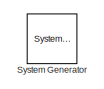
[diagram: root canvas - part 1/3, top left region]
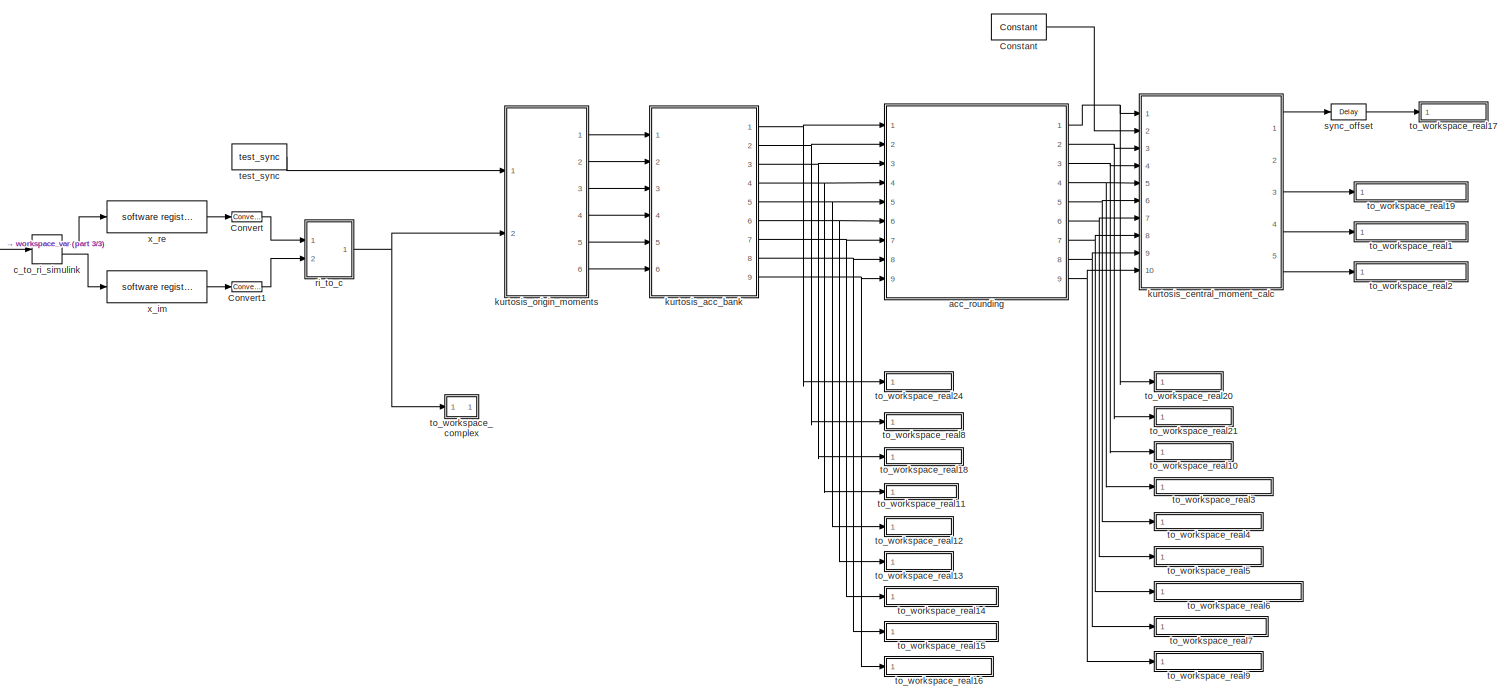
[diagram: root canvas - part 2/3, most of the canvas]
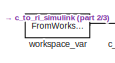
[diagram: root canvas - part 3/3, middle left region]
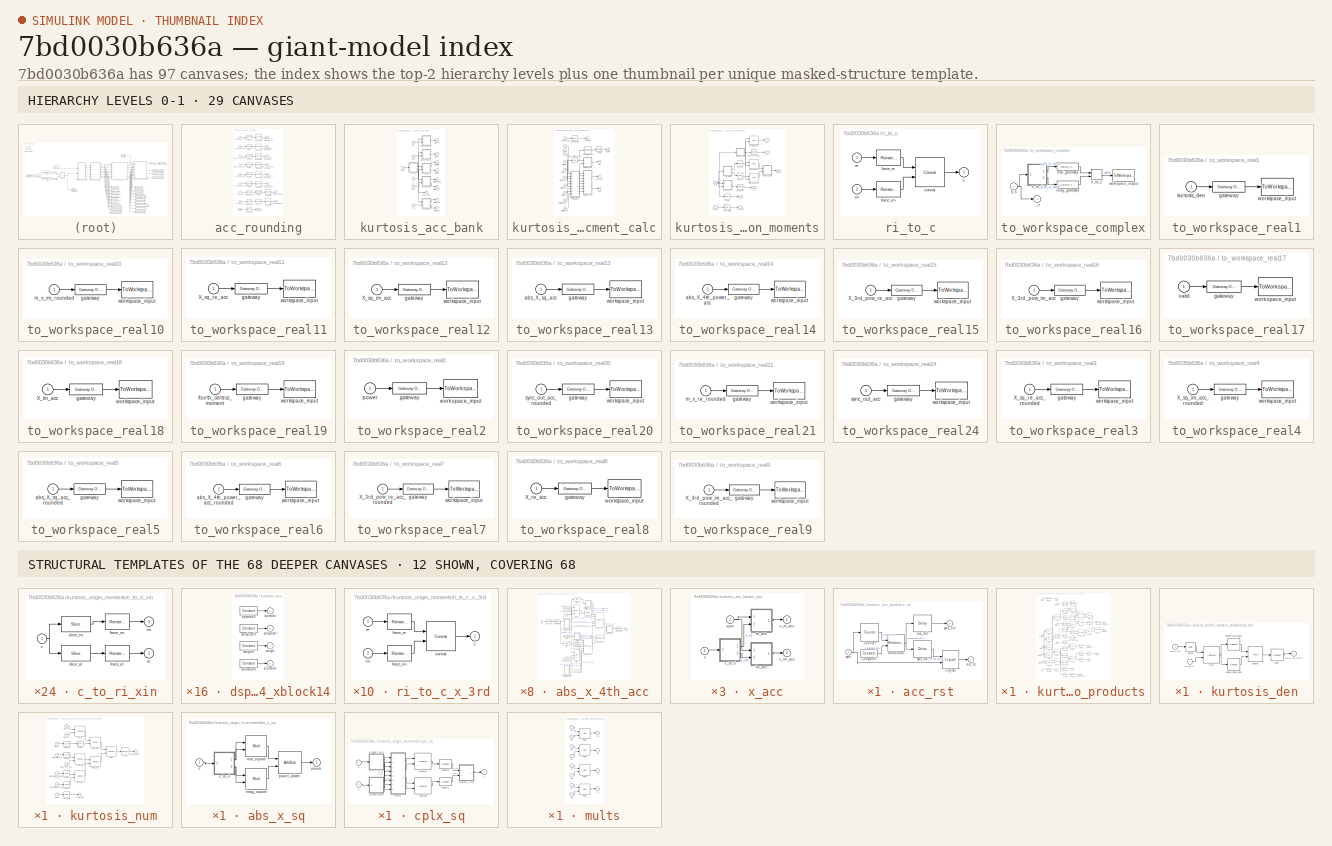
[diagram: thumbnail index - top-2 hierarchy levels (29 canvases) + 12 structural-template representatives of the remaining 68 canvases]
MODEL slx_7bd0030b636a
KIND model
BLOCK [Reference]  System Generator  REF=xbsIndex_r4/ System Generator
  AttributesFormatString = System\nGenerator
  Impl_file = ISE Defaults
  Ports = []
  SourceBlock = xbsIndex_r4/ System Generator
  SourceType = Xilinx System Generator Block
  Synth_file = XST Defaults
  Tag = genX
  UserDataPersistent = on
  block_type = sysgen
  clock_wrapper = Clock Enables
  core_generation = According to Block Masks
  dbl_ovrd = According to Block Masks
  dcm_input_clock_period = 10
  deprecated_control = off
  directory = ./netlist
  eval_field = 0
  has_advanced_control = 0
  incr_netlist = off
  infoedit = System Generator
  package = fbg676
  part = xc7k325t
  proj_type = Project Navigator
  run_coregen = off
  sg_icon_stat = 50,50,0,0,token,white,0,58c5b5770fe5f7c311f53dbc6e73f0f6,right,,[ ],[ ]
  sg_mask_display = fprintf('','COMMENT: begin icon graphics');\npatch([0 50 50 0 0 ],[0 0 50 50 0 ],[1 1 1 ]);\npatch([1.6375 16.81 27.31 37.81 48.31 27.31 12.1375 1.6375 ],[36.655 36.655 47.155 36.655 47.155 47.155 47.155 36.655 ],[0.933333 0.203922 0.141176 ]);\npatch([12.1375 27.31 16.81 1.6375 12.1375 ],[26.155 26.155 36.655 36.655 26.155 ],[0.698039 0.0313725 0.219608 ]);\npatch([1.6375 16.81 27.31 12.1375 1.6375 ]...<+327ch>
  sggui_pos = -1,-1,-1,-1
  simulink_period = 1
  speed = -3
  synthesis_tool = XST
  sysclk_period = 10
  testbench = off
  trim_vbits = Everywhere in SubSystem
  xilinxfamily = Kintex7
BLOCK [Reference] Constant  REF=xbsIndex_r4/Constant
  Ports = [0, 1]
  SourceBlock = xbsIndex_r4/Constant
  SourceType = Xilinx Constant Block Block
  arith_type = Signed (2's comp)
  bin_pt = 0
  block_type = constant
  carry = CIN
  const = 0
  dbl_ovrd = off
  dsp48_infoedit = The use of this block for DSP48 instructions is deprecated.  Please use the Opmode block.
  equ = P=C
  exp_width = 8
  explicit_period = on
  frac_width = 24
  gui_display_data_type = Fixed-point
  has_advanced_control = 0
  inp1 = P
  inp2 = PCIN>>17
  n_bits = 12
  opr = +
  opselect = C
  period = 1
  preci_type = Single
  sg_icon_stat = 55,26,0,1,white,blue,0,bf4ddd8b,right,,[ ],[ ]
  sg_mask_display = fprintf('','COMMENT: begin icon graphics');\npatch([0 55 55 0 0 ],[0 0 26 26 0 ],[0.77 0.82 0.91 ]);\nplot([0 55 55 0 0 ],[0 0 26 26 0 ]);\npatch([20.325 24.66 27.66 30.66 33.66 27.66 23.325 20.325 ],[16.33 16.33 19.33 16.33 19.33 19.33 19.33 16.33 ],[1 1 1 ]);\npatch([23.325 27.66 24.66 20.325 23.325 ],[13.33 13.33 16.33 16.33 13.33 ],[0.931 0.946 0.973 ]);\npatch([20.325 24.66 27.66 23.325 20.325 ],[...<+323ch>  <repeated x65 — deduplicated; at blocks: Constant, alumode0, carryin0, carryinsel0, opmode_1_rst, zero>
  sggui_pos = -1,-1,-1,-1
BLOCK [Reference] Convert  REF=xbsIndex_r4/Convert
  Ports = [1, 1]
  SourceBlock = xbsIndex_r4/Convert
  SourceType = Xilinx Type Converter Block
  arith_type = Signed  (2's comp)
  bin_pt = 17
  block_type = convert
  dbl_ovrd = off
  en = off
  exp_bits = 8
  float_type = Single
  fraction_bits = 24
  gui_display_data_type = Fixed-point
  has_advanced_control = 0
  infoedit = Hardware notes: rounding and saturating require hardware resources; truncating and wrapping do not.
  latency = 0
  n_bits = 18
  overflow = Wrap
  pipeline = off
  quantization = Truncate
  sg_icon_stat = 30,10,1,1,white,blue,0,edca21da,right,,[ ],[ ]
  sg_mask_display = fprintf('','COMMENT: begin icon graphics');\npatch([0 30 30 0 0 ],[0 0 10 10 0 ],[0.77 0.82 0.91 ]);\nplot([0 30 30 0 0 ],[0 0 10 10 0 ]);\npatch([12.775 14.22 15.22 16.22 17.22 15.22 13.775 12.775 ],[6.11 6.11 7.11 6.11 7.11 7.11 7.11 6.11 ],[1 1 1 ]);\npatch([13.775 15.22 14.22 12.775 13.775 ],[5.11 5.11 6.11 6.11 5.11 ],[0.931 0.946 0.973 ]);\npatch([12.775 14.22 15.22 13.775 12.775 ],[4.11 4.11 5.1...<+306ch>
  sggui_pos = 20,25,565,655
  xl_area = [0,0,0,0,0,0,0]
  xl_use_area = off
BLOCK [Reference] Convert1  REF=xbsIndex_r4/Convert
  Ports = [1, 1]
  SourceBlock = xbsIndex_r4/Convert
  SourceType = Xilinx Type Converter Block
  arith_type = Signed  (2's comp)
  bin_pt = 17
  block_type = convert
  dbl_ovrd = off
  en = off
  exp_bits = 8
  float_type = Single
  fraction_bits = 24
  gui_display_data_type = Fixed-point
  has_advanced_control = 0
  infoedit = Hardware notes: rounding and saturating require hardware resources; truncating and wrapping do not.
  latency = 0
  n_bits = 18
  overflow = Wrap
  pipeline = off
  quantization = Truncate
  sg_icon_stat = 30,10,1,1,white,blue,0,edca21da,right,,[ ],[ ]
  sg_mask_display = fprintf('','COMMENT: begin icon graphics');\npatch([0 30 30 0 0 ],[0 0 10 10 0 ],[0.77 0.82 0.91 ]);\nplot([0 30 30 0 0 ],[0 0 10 10 0 ]);\npatch([12.775 14.22 15.22 16.22 17.22 15.22 13.775 12.775 ],[6.11 6.11 7.11 6.11 7.11 7.11 7.11 6.11 ],[1 1 1 ]);\npatch([13.775 15.22 14.22 12.775 13.775 ],[5.11 5.11 6.11 6.11 5.11 ],[0.931 0.946 0.973 ]);\npatch([12.775 14.22 15.22 13.775 12.775 ],[4.11 4.11 5.1...<+306ch>
  sggui_pos = 20,25,565,655
  xl_area = [0,0,0,0,0,0,0]
  xl_use_area = off
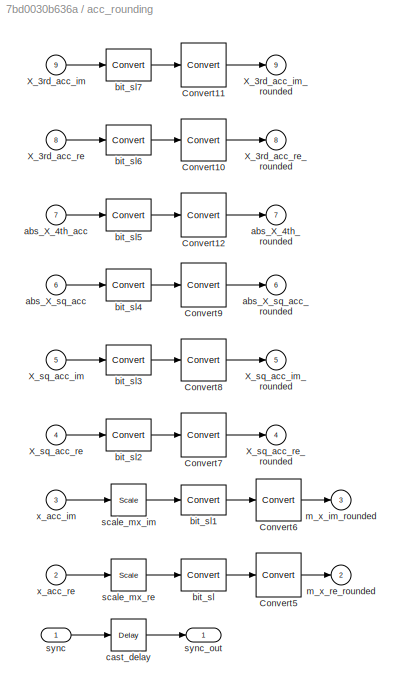
BLOCK [SubSystem] acc_rounding
  FunctionWithSeparateData = off
  MaskHideContents = off
  MinAlgLoopOccurrences = off
  Opaque = off
  Ports = [9, 9]
  PropExecContextOutsideSubsystem = off
  RTWSystemCode = Auto
  RequestExecContextInheritance = off
BLOCK [Reference] acc_rounding/Convert10  REF=xbsIndex_r4/Convert
  Ports = [1, 1]
  SourceBlock = xbsIndex_r4/Convert
  SourceType = Xilinx Type Converter Block
  arith_type = Signed  (2's comp)
  bin_pt = 22
  block_type = convert
  dbl_ovrd = off
  en = off
  exp_bits = 8
  float_type = Single
  fraction_bits = 24
  gui_display_data_type = Fixed-point
  has_advanced_control = 0
  infoedit = Hardware notes: rounding and saturating require hardware resources; truncating and wrapping do not.
  latency = 5
  n_bits = 35
  overflow = Saturate
  pipeline = off
  quantization = Round  (unbiased: +/- Inf)
  sg_icon_stat = 45,42,1,1,white,blue,0,a0ef3d54,right,,[ ],[ ]
  sg_mask_display = fprintf('','COMMENT: begin icon graphics');\npatch([0 45 45 0 0 ],[0 0 42 42 0 ],[0.77 0.82 0.91 ]);\nplot([0 45 45 0 0 ],[0 0 42 42 0 ]);\npatch([8.65 17.32 23.32 29.32 35.32 23.32 14.65 8.65 ],[27.66 27.66 33.66 27.66 33.66 33.66 33.66 27.66 ],[1 1 1 ]);\npatch([14.65 23.32 17.32 8.65 14.65 ],[21.66 21.66 27.66 27.66 21.66 ],[0.931 0.946 0.973 ]);\npatch([8.65 17.32 23.32 14.65 8.65 ],[15.66 15.66 21...<+393ch>  <repeated x6 — deduplicated; at blocks: Convert10, Convert6, Convert8, Convert1, conv_25bit, conv>
  sggui_pos = -1,-1,-1,-1
  xl_area = [0,0,0,0,0,0,0]
  xl_use_area = off
BLOCK [Reference] acc_rounding/Convert11  REF=xbsIndex_r4/Convert
  Ports = [1, 1]
  SourceBlock = xbsIndex_r4/Convert
  SourceType = Xilinx Type Converter Block
  arith_type = Signed  (2's comp)
  bin_pt = 22
  block_type = convert
  dbl_ovrd = off
  en = off
  exp_bits = 8
  float_type = Single
  fraction_bits = 24
  gui_display_data_type = Fixed-point
  has_advanced_control = 0
  infoedit = Hardware notes: rounding and saturating require hardware resources; truncating and wrapping do not.
  latency = 5
  n_bits = 35
  overflow = Saturate
  pipeline = off
  quantization = Round  (unbiased: +/- Inf)
  sg_icon_stat = 45,44,1,1,white,blue,0,a0ef3d54,right,,[ ],[ ]
  sg_mask_display = fprintf('','COMMENT: begin icon graphics');\npatch([0 45 45 0 0 ],[0 0 44 44 0 ],[0.77 0.82 0.91 ]);\nplot([0 45 45 0 0 ],[0 0 44 44 0 ]);\npatch([8.65 17.32 23.32 29.32 35.32 23.32 14.65 8.65 ],[28.66 28.66 34.66 28.66 34.66 34.66 34.66 28.66 ],[1 1 1 ]);\npatch([14.65 23.32 17.32 8.65 14.65 ],[22.66 22.66 28.66 28.66 22.66 ],[0.931 0.946 0.973 ]);\npatch([8.65 17.32 23.32 14.65 8.65 ],[16.66 16.66 22...<+397ch>  <repeated x11 — deduplicated; at blocks: Convert11, Convert12, Convert5, Convert7, Convert9, Convert, conv_35bit, conv, square_conv_25bit, square_conv_35bit>
  sggui_pos = -1,-1,-1,-1
  xl_area = [0,0,0,0,0,0,0]
  xl_use_area = off
BLOCK [Reference] acc_rounding/Convert12  REF=xbsIndex_r4/Convert
  Ports = [1, 1]
  SourceBlock = xbsIndex_r4/Convert
  SourceType = Xilinx Type Converter Block
  arith_type = Signed  (2's comp)
  bin_pt = 68
  block_type = convert
  dbl_ovrd = off
  en = off
  exp_bits = 8
  float_type = Single
  fraction_bits = 24
  gui_display_data_type = Fixed-point
  has_advanced_control = 0
  infoedit = Hardware notes: rounding and saturating require hardware resources; truncating and wrapping do not.
  latency = 5
  n_bits = 84
  overflow = Saturate
  pipeline = off
  quantization = Round  (unbiased: +/- Inf)
  sg_icon_stat = 45,44,1,1,white,blue,0,a0ef3d54,right,,[ ],[ ]
  sggui_pos = -1,-1,-1,-1
  xl_area = [0,0,0,0,0,0,0]
  xl_use_area = off
BLOCK [Reference] acc_rounding/Convert5  REF=xbsIndex_r4/Convert
  Ports = [1, 1]
  SourceBlock = xbsIndex_r4/Convert
  SourceType = Xilinx Type Converter Block
  arith_type = Signed  (2's comp)
  bin_pt = 24
  block_type = convert
  dbl_ovrd = off
  en = off
  exp_bits = 8
  float_type = Single
  fraction_bits = 24
  gui_display_data_type = Fixed-point
  has_advanced_control = 0
  infoedit = Hardware notes: rounding and saturating require hardware resources; truncating and wrapping do not.
  latency = 5
  n_bits = 25
  overflow = Saturate
  pipeline = off
  quantization = Round  (unbiased: +/- Inf)
  sg_icon_stat = 45,44,1,1,white,blue,0,a0ef3d54,right,,[ ],[ ]
  sggui_pos = -1,-1,-1,-1
  xl_area = [0,0,0,0,0,0,0]
  xl_use_area = off
BLOCK [Reference] acc_rounding/Convert6  REF=xbsIndex_r4/Convert
  Ports = [1, 1]
  SourceBlock = xbsIndex_r4/Convert
  SourceType = Xilinx Type Converter Block
  arith_type = Signed  (2's comp)
  bin_pt = 24
  block_type = convert
  dbl_ovrd = off
  en = off
  exp_bits = 8
  float_type = Single
  fraction_bits = 24
  gui_display_data_type = Fixed-point
  has_advanced_control = 0
  infoedit = Hardware notes: rounding and saturating require hardware resources; truncating and wrapping do not.
  latency = 5
  n_bits = 25
  overflow = Saturate
  pipeline = off
  quantization = Round  (unbiased: +/- Inf)
  sg_icon_stat = 45,42,1,1,white,blue,0,a0ef3d54,right,,[ ],[ ]
  sggui_pos = -1,-1,-1,-1
  xl_area = [0,0,0,0,0,0,0]
  xl_use_area = off
BLOCK [Reference] acc_rounding/Convert7  REF=xbsIndex_r4/Convert
  Ports = [1, 1]
  SourceBlock = xbsIndex_r4/Convert
  SourceType = Xilinx Type Converter Block
  arith_type = Signed  (2's comp)
  bin_pt = 22
  block_type = convert
  dbl_ovrd = off
  en = off
  exp_bits = 8
  float_type = Single
  fraction_bits = 24
  gui_display_data_type = Fixed-point
  has_advanced_control = 0
  infoedit = Hardware notes: rounding and saturating require hardware resources; truncating and wrapping do not.
  latency = 5
  n_bits = 35
  overflow = Saturate
  pipeline = off
  quantization = Round  (unbiased: +/- Inf)
  sg_icon_stat = 45,44,1,1,white,blue,0,a0ef3d54,right,,[ ],[ ]
  sggui_pos = -1,-1,-1,-1
  xl_area = [0,0,0,0,0,0,0]
  xl_use_area = off
BLOCK [Reference] acc_rounding/Convert8  REF=xbsIndex_r4/Convert
  Ports = [1, 1]
  SourceBlock = xbsIndex_r4/Convert
  SourceType = Xilinx Type Converter Block
  arith_type = Signed  (2's comp)
  bin_pt = 22
  block_type = convert
  dbl_ovrd = off
  en = off
  exp_bits = 8
  float_type = Single
  fraction_bits = 24
  gui_display_data_type = Fixed-point
  has_advanced_control = 0
  infoedit = Hardware notes: rounding and saturating require hardware resources; truncating and wrapping do not.
  latency = 5
  n_bits = 35
  overflow = Saturate
  pipeline = off
  quantization = Round  (unbiased: +/- Inf)
  sg_icon_stat = 45,42,1,1,white,blue,0,a0ef3d54,right,,[ ],[ ]
  sggui_pos = -1,-1,-1,-1
  xl_area = [0,0,0,0,0,0,0]
  xl_use_area = off
BLOCK [Reference] acc_rounding/Convert9  REF=xbsIndex_r4/Convert
  Ports = [1, 1]
  SourceBlock = xbsIndex_r4/Convert
  SourceType = Xilinx Type Converter Block
  arith_type = Signed  (2's comp)
  bin_pt = 22
  block_type = convert
  dbl_ovrd = off
  en = off
  exp_bits = 8
  float_type = Single
  fraction_bits = 24
  gui_display_data_type = Fixed-point
  has_advanced_control = 0
  infoedit = Hardware notes: rounding and saturating require hardware resources; truncating and wrapping do not.
  latency = 5
  n_bits = 35
  overflow = Saturate
  pipeline = off
  quantization = Round  (unbiased: +/- Inf)
  sg_icon_stat = 45,44,1,1,white,blue,0,a0ef3d54,right,,[ ],[ ]
  sggui_pos = -1,-1,-1,-1
  xl_area = [0,0,0,0,0,0,0]
  xl_use_area = off
BLOCK [Inport] acc_rounding/X_3rd_acc_im
  IconDisplay = Port number
  Port = 9
BLOCK [Outport] acc_rounding/X_3rd_acc_im_rounded
  IconDisplay = Port number
  Port = 9
BLOCK [Inport] acc_rounding/X_3rd_acc_re
  IconDisplay = Port number
  Port = 8
BLOCK [Outport] acc_rounding/X_3rd_acc_re_rounded
  IconDisplay = Port number
  Port = 8
BLOCK [Inport] acc_rounding/X_sq_acc_im
  IconDisplay = Port number
  Port = 5
BLOCK [Outport] acc_rounding/X_sq_acc_im_rounded
  IconDisplay = Port number
  Port = 5
BLOCK [Inport] acc_rounding/X_sq_acc_re
  IconDisplay = Port number
  Port = 4
BLOCK [Outport] acc_rounding/X_sq_acc_re_rounded
  IconDisplay = Port number
  Port = 4
BLOCK [Inport] acc_rounding/abs_X_4th_acc
  IconDisplay = Port number
  Port = 7
BLOCK [Outport] acc_rounding/abs_X_4th_rounded
  IconDisplay = Port number
  Port = 7
BLOCK [Inport] acc_rounding/abs_X_sq_acc
  IconDisplay = Port number
  Port = 6
BLOCK [Outport] acc_rounding/abs_X_sq_acc_rounded
  IconDisplay = Port number
  Port = 6
BLOCK [Reference] acc_rounding/bit_sl  REF=xbsIndex_r4/Convert
  Ports = [1, 1]
  SourceBlock = xbsIndex_r4/Convert
  SourceType = Xilinx Type Converter Block
  arith_type = Signed  (2's comp)
  bin_pt = 27
  block_type = convert
  dbl_ovrd = off
  en = off
  exp_bits = 8
  float_type = Single
  fraction_bits = 24
  gui_display_data_type = Fixed-point
  has_advanced_control = 0
  infoedit = Hardware notes: rounding and saturating require hardware resources; truncating and wrapping do not.
  latency = 0
  n_bits = 28
  overflow = Wrap
  pipeline = off
  quantization = Truncate
  sg_icon_stat = 45,32,1,1,white,blue,0,edca21da,right,,[ ],[ ]
  sg_mask_display = fprintf('','COMMENT: begin icon graphics');\npatch([0 45 45 0 0 ],[0 0 32 32 0 ],[0.77 0.82 0.91 ]);\nplot([0 45 45 0 0 ],[0 0 32 32 0 ]);\npatch([13.1 18.88 22.88 26.88 30.88 22.88 17.1 13.1 ],[20.44 20.44 24.44 20.44 24.44 24.44 24.44 20.44 ],[1 1 1 ]);\npatch([17.1 22.88 18.88 13.1 17.1 ],[16.44 16.44 20.44 20.44 16.44 ],[0.931 0.946 0.973 ]);\npatch([13.1 18.88 22.88 17.1 13.1 ],[12.44 12.44 16.44 ...<+303ch>  <repeated x13 — deduplicated; at blocks: bit_sl, bit_sl2, bit_sl4, bit_sl5, bit_sl7, Convert>
  sggui_pos = -1,-1,-1,-1
  xl_area = [0,0,0,0,0,0,0]
  xl_use_area = off
BLOCK [Reference] acc_rounding/bit_sl1  REF=xbsIndex_r4/Convert
  Ports = [1, 1]
  SourceBlock = xbsIndex_r4/Convert
  SourceType = Xilinx Type Converter Block
  arith_type = Signed  (2's comp)
  bin_pt = 27
  block_type = convert
  dbl_ovrd = off
  en = off
  exp_bits = 8
  float_type = Single
  fraction_bits = 24
  gui_display_data_type = Fixed-point
  has_advanced_control = 0
  infoedit = Hardware notes: rounding and saturating require hardware resources; truncating and wrapping do not.
  latency = 0
  n_bits = 28
  overflow = Wrap
  pipeline = off
  quantization = Truncate
  sg_icon_stat = 45,30,1,1,white,blue,0,edca21da,right,,[ ],[ ]
  sg_mask_display = fprintf('','COMMENT: begin icon graphics');\npatch([0 45 45 0 0 ],[0 0 30 30 0 ],[0.77 0.82 0.91 ]);\nplot([0 45 45 0 0 ],[0 0 30 30 0 ]);\npatch([13.1 18.88 22.88 26.88 30.88 22.88 17.1 13.1 ],[19.44 19.44 23.44 19.44 23.44 23.44 23.44 19.44 ],[1 1 1 ]);\npatch([17.1 22.88 18.88 13.1 17.1 ],[15.44 15.44 19.44 19.44 15.44 ],[0.931 0.946 0.973 ]);\npatch([13.1 18.88 22.88 17.1 13.1 ],[11.44 11.44 15.44 ...<+303ch>  <repeated x3 — deduplicated; at blocks: bit_sl1, bit_sl3, bit_sl6>
  sggui_pos = -1,-1,-1,-1
  xl_area = [0,0,0,0,0,0,0]
  xl_use_area = off
BLOCK [Reference] acc_rounding/bit_sl2  REF=xbsIndex_r4/Convert
  Ports = [1, 1]
  SourceBlock = xbsIndex_r4/Convert
  SourceType = Xilinx Type Converter Block
  arith_type = Signed  (2's comp)
  bin_pt = 34
  block_type = convert
  dbl_ovrd = off
  en = off
  exp_bits = 8
  float_type = Single
  fraction_bits = 24
  gui_display_data_type = Fixed-point
  has_advanced_control = 0
  infoedit = Hardware notes: rounding and saturating require hardware resources; truncating and wrapping do not.
  latency = 0
  n_bits = 47
  overflow = Wrap
  pipeline = off
  quantization = Truncate
  sg_icon_stat = 45,32,1,1,white,blue,0,edca21da,right,,[ ],[ ]
  sggui_pos = -1,-1,-1,-1
  xl_area = [0,0,0,0,0,0,0]
  xl_use_area = off
BLOCK [Reference] acc_rounding/bit_sl3  REF=xbsIndex_r4/Convert
  Ports = [1, 1]
  SourceBlock = xbsIndex_r4/Convert
  SourceType = Xilinx Type Converter Block
  arith_type = Signed  (2's comp)
  bin_pt = 34
  block_type = convert
  dbl_ovrd = off
  en = off
  exp_bits = 8
  float_type = Single
  fraction_bits = 24
  gui_display_data_type = Fixed-point
  has_advanced_control = 0
  infoedit = Hardware notes: rounding and saturating require hardware resources; truncating and wrapping do not.
  latency = 0
  n_bits = 47
  overflow = Wrap
  pipeline = off
  quantization = Truncate
  sg_icon_stat = 45,30,1,1,white,blue,0,edca21da,right,,[ ],[ ]
  sggui_pos = -1,-1,-1,-1
  xl_area = [0,0,0,0,0,0,0]
  xl_use_area = off
BLOCK [Reference] acc_rounding/bit_sl4  REF=xbsIndex_r4/Convert
  Ports = [1, 1]
  SourceBlock = xbsIndex_r4/Convert
  SourceType = Xilinx Type Converter Block
  arith_type = Signed  (2's comp)
  bin_pt = 34
  block_type = convert
  dbl_ovrd = off
  en = off
  exp_bits = 8
  float_type = Single
  fraction_bits = 24
  gui_display_data_type = Fixed-point
  has_advanced_control = 0
  infoedit = Hardware notes: rounding and saturating require hardware resources; truncating and wrapping do not.
  latency = 0
  n_bits = 47
  overflow = Wrap
  pipeline = off
  quantization = Truncate
  sg_icon_stat = 45,32,1,1,white,blue,0,edca21da,right,,[ ],[ ]
  sggui_pos = -1,-1,-1,-1
  xl_area = [0,0,0,0,0,0,0]
  xl_use_area = off
BLOCK [Reference] acc_rounding/bit_sl5  REF=xbsIndex_r4/Convert
  Ports = [1, 1]
  SourceBlock = xbsIndex_r4/Convert
  SourceType = Xilinx Type Converter Block
  arith_type = Signed  (2's comp)
  bin_pt = 68
  block_type = convert
  dbl_ovrd = off
  en = off
  exp_bits = 8
  float_type = Single
  fraction_bits = 24
  gui_display_data_type = Fixed-point
  has_advanced_control = 0
  infoedit = Hardware notes: rounding and saturating require hardware resources; truncating and wrapping do not.
  latency = 0
  n_bits = 84
  overflow = Wrap
  pipeline = off
  quantization = Truncate
  sg_icon_stat = 45,32,1,1,white,blue,0,edca21da,right,,[ ],[ ]
  sggui_pos = -1,-1,-1,-1
  xl_area = [0,0,0,0,0,0,0]
  xl_use_area = off
BLOCK [Reference] acc_rounding/bit_sl6  REF=xbsIndex_r4/Convert
  Ports = [1, 1]
  SourceBlock = xbsIndex_r4/Convert
  SourceType = Xilinx Type Converter Block
  arith_type = Signed  (2's comp)
  bin_pt = 51
  block_type = convert
  dbl_ovrd = off
  en = off
  exp_bits = 8
  float_type = Single
  fraction_bits = 24
  gui_display_data_type = Fixed-point
  has_advanced_control = 0
  infoedit = Hardware notes: rounding and saturating require hardware resources; truncating and wrapping do not.
  latency = 0
  n_bits = 64
  overflow = Wrap
  pipeline = off
  quantization = Truncate
  sg_icon_stat = 45,30,1,1,white,blue,0,edca21da,right,,[ ],[ ]
  sggui_pos = -1,-1,-1,-1
  xl_area = [0,0,0,0,0,0,0]
  xl_use_area = off
BLOCK [Reference] acc_rounding/bit_sl7  REF=xbsIndex_r4/Convert
  Ports = [1, 1]
  SourceBlock = xbsIndex_r4/Convert
  SourceType = Xilinx Type Converter Block
  arith_type = Signed  (2's comp)
  bin_pt = 51
  block_type = convert
  dbl_ovrd = off
  en = off
  exp_bits = 8
  float_type = Single
  fraction_bits = 24
  gui_display_data_type = Fixed-point
  has_advanced_control = 0
  infoedit = Hardware notes: rounding and saturating require hardware resources; truncating and wrapping do not.
  latency = 0
  n_bits = 64
  overflow = Wrap
  pipeline = off
  quantization = Truncate
  sg_icon_stat = 45,32,1,1,white,blue,0,edca21da,right,,[ ],[ ]
  sggui_pos = -1,-1,-1,-1
  xl_area = [0,0,0,0,0,0,0]
  xl_use_area = off
BLOCK [Reference] acc_rounding/cast_delay  REF=xbsIndex_r4/Delay
  Ports = [1, 1]
  SourceBlock = xbsIndex_r4/Delay
  SourceType = Xilinx Delay Block
  block_type = delay
  dbl_ovrd = off
  en = off
  has_advanced_control = 0
  infoedit = Hardware notes: A delay line is a chain, each link of which is an SRL16 followed by a flip-flop.
  infoeditControl = Selection of Reset will increase slice count due to use of real FFs and instead of SRLs
  latency = 5
  reg_retiming = off
  rst = off
  sg_icon_stat = 35,32,1,1,white,blue,0,ec356abf,right,,[ ],[ ]
  sg_mask_display = fprintf('','COMMENT: begin icon graphics');\npatch([0 35 35 0 0 ],[0 0 32 32 0 ],[0.77 0.82 0.91 ]);\nplot([0 35 35 0 0 ],[0 0 32 32 0 ]);\npatch([8.1 13.88 17.88 21.88 25.88 17.88 12.1 8.1 ],[20.44 20.44 24.44 20.44 24.44 24.44 24.44 20.44 ],[1 1 1 ]);\npatch([12.1 17.88 13.88 8.1 12.1 ],[16.44 16.44 20.44 20.44 16.44 ],[0.931 0.946 0.973 ]);\npatch([8.1 13.88 17.88 12.1 8.1 ],[12.44 12.44 16.44 16.44...<+298ch>  <repeated x14 — deduplicated; at blocks: cast_delay, c_del, del2, del3, del_e, del_f, delay_b, delay_sq1, delay_sq2, a_del, abs_x_sq_del, x_im_del, x_re_del, x_sq_del>
  sggui_pos = -1,-1,-1,-1
  xl_area = [0,0,0,0,0,0,0]
  xl_use_area = off
BLOCK [Outport] acc_rounding/m_x_im_rounded
  IconDisplay = Port number
  Port = 3
BLOCK [Outport] acc_rounding/m_x_re_rounded
  IconDisplay = Port number
  Port = 2
BLOCK [Reference] acc_rounding/scale_mx_im  REF=xbsIndex_r4/Scale
  Ports = [1, 1]
  SourceBlock = xbsIndex_r4/Scale
  SourceType = Xilinx Input Scaler Block
  block_type = scale
  dbl_ovrd = off
  has_advanced_control = 0
  infoedit = Scales input by a power of two by adjusting the binary point position.<br><br>Hardware notes: In hardware this block costs nothing.
  scale_factor = -10
  sg_icon_stat = 35,32,1,1,white,blue,0,4a5221eb,right,,[ ],[ ]
  sg_mask_display = fprintf('','COMMENT: begin icon graphics');\npatch([0 35 35 0 0 ],[0 0 32 32 0 ],[0.77 0.82 0.91 ]);\nplot([0 35 35 0 0 ],[0 0 32 32 0 ]);\npatch([8.1 13.88 17.88 21.88 25.88 17.88 12.1 8.1 ],[20.44 20.44 24.44 20.44 24.44 24.44 24.44 20.44 ],[1 1 1 ]);\npatch([12.1 17.88 13.88 8.1 12.1 ],[16.44 16.44 20.44 20.44 16.44 ],[0.931 0.946 0.973 ]);\npatch([8.1 13.88 17.88 12.1 8.1 ],[12.44 12.44 16.44 16.44...<+304ch>  <repeated x10 — deduplicated; at blocks: scale_mx_im, scale_mx_re, scale_m2_im, scale_m2_re, scale, scale_a, scale_b, scale_c, scale_d>
  sggui_pos = -1,-1,-1,-1
BLOCK [Reference] acc_rounding/scale_mx_re  REF=xbsIndex_r4/Scale
  Ports = [1, 1]
  SourceBlock = xbsIndex_r4/Scale
  SourceType = Xilinx Input Scaler Block
  block_type = scale
  dbl_ovrd = off
  has_advanced_control = 0
  infoedit = Scales input by a power of two by adjusting the binary point position.<br><br>Hardware notes: In hardware this block costs nothing.
  scale_factor = -10
  sg_icon_stat = 35,32,1,1,white,blue,0,4a5221eb,right,,[ ],[ ]
  sggui_pos = -1,-1,-1,-1
BLOCK [Inport] acc_rounding/sync
  IconDisplay = Port number
BLOCK [Outport] acc_rounding/sync_out
  IconDisplay = Port number
BLOCK [Inport] acc_rounding/x_acc_im
  IconDisplay = Port number
  Port = 3
BLOCK [Inport] acc_rounding/x_acc_re
  IconDisplay = Port number
  Port = 2
BLOCK [ComplexToRealImag] c_to_ri_simulink
  Ports = [1, 2]
BLOCK [SubSystem] kurtosis_acc_bank
  FunctionWithSeparateData = off
  MaskHideContents = off
  MinAlgLoopOccurrences = off
  Opaque = off
  Ports = [6, 9]
  PropExecContextOutsideSubsystem = off
  RTWSystemCode = Auto
  RequestExecContextInheritance = off
BLOCK [Outport] kurtosis_acc_bank/E[|x|^2]
  IconDisplay = Port number
  Port = 6
BLOCK [Outport] kurtosis_acc_bank/E[|x|^4]
  IconDisplay = Port number
  Port = 7
BLOCK [Outport] kurtosis_acc_bank/Im{E[x]}
  IconDisplay = Port number
  Port = 3
BLOCK [Outport] kurtosis_acc_bank/Im{E[x^2]}
  IconDisplay = Port number
  Port = 5
BLOCK [Outport] kurtosis_acc_bank/Im{E[x|x|^2]}
  IconDisplay = Port number
  Port = 9
BLOCK [Outport] kurtosis_acc_bank/Re{E[x]}
  IconDisplay = Port number
  Port = 2
BLOCK [Outport] kurtosis_acc_bank/Re{E[x^2]}
  IconDisplay = Port number
  Port = 4
BLOCK [Outport] kurtosis_acc_bank/Re{E[x|x|^2]}
  IconDisplay = Port number
  Port = 8
BLOCK [SubSystem] kurtosis_acc_bank/abs_x_4th_acc
  FunctionWithSeparateData = off
  MaskHideContents = off
  MinAlgLoopOccurrences = off
  Opaque = off
  Ports = [2, 1]
  PropExecContextOutsideSubsystem = off
  RTWSystemCode = Auto
  RequestExecContextInheritance = off
BLOCK [Outport] kurtosis_acc_bank/abs_x_4th_acc/+=b
  IconDisplay = Port number
BLOCK [Reference] kurtosis_acc_bank/abs_x_4th_acc/Convert  REF=xbsIndex_r4/Convert
  Ports = [1, 1]
  SourceBlock = xbsIndex_r4/Convert
  SourceType = Xilinx Type Converter Block
  arith_type = Signed  (2's comp)
  bin_pt = 68
  block_type = convert
  dbl_ovrd = off
  en = off
  exp_bits = 8
  float_type = Single
  fraction_bits = 24
  gui_display_data_type = Fixed-point
  has_advanced_control = 0
  infoedit = Hardware notes: rounding and saturating require hardware resources; truncating and wrapping do not.
  latency = 0
  n_bits = 96
  overflow = Wrap
  pipeline = off
  quantization = Truncate
  sg_icon_stat = 45,32,1,1,white,blue,0,edca21da,right,,[ ],[ ]
  sggui_pos = -1,-1,-1,-1
  xl_area = [0,0,0,0,0,0,0]
  xl_use_area = off
BLOCK [Reference] kurtosis_acc_bank/abs_x_4th_acc/DSP48E_0  REF=xbsIndex_r4/DSP48E
  Ports = [7, 2]
  SourceBlock = xbsIndex_r4/DSP48E
  SourceType = Xilinx DSP48E Block
  addsub_mode = ONE48
  block_type = dsp48e
  en_a1 = off
  en_a2 = off
  en_all = off
  en_alumode = off
  en_b1 = off
  en_b2 = off
  en_c = off
  en_carry_in = off
  en_ctrl = off
  en_mult = off
  en_multcarryin = off
  en_p = off
  has_advanced_control = 0
  mask_from_creg = on
  pattern = '000000000000'
  pattern_from_creg = on
  pattern_mask = '000000000000'
  pipeline_a = 1
  pipeline_acout = 1
  pipeline_alumode = on
  pipeline_b = 1
  pipeline_bcout = 1
  pipeline_c = on
  pipeline_carryin = on
  pipeline_carryinsel = on
  pipeline_mult = on
  pipeline_opmode = on
  pipeline_p = on
  reset_preg = off
  rst_a = off
  rst_all = off
  rst_alumode = off
  rst_b = off
  rst_c = off
  rst_carry_in = off
  rst_ctrl = off
  rst_mult = off
  rst_p = off
  sel_rounding_mask = Select mask
  sg_icon_stat = 75,136,7,2,white,blue,0,42726d98,right,,[ ],[ ]
  sg_mask_display = fprintf('','COMMENT: begin icon graphics');\npatch([0 75 75 0 0 ],[0 0 136 136 0 ],[0.77 0.82 0.91 ]);\nplot([0 75 75 0 0 ],[0 0 136 136 0 ]);\npatch([14.75 29.2 39.2 49.2 59.2 39.2 24.75 14.75 ],[79.1 79.1 89.1 79.1 89.1 89.1 89.1 79.1 ],[1 1 1 ]);\npatch([24.75 39.2 29.2 14.75 24.75 ],[69.1 69.1 79.1 79.1 69.1 ],[0.931 0.946 0.973 ]);\npatch([14.75 29.2 39.2 24.75 14.75 ],[59.1 59.1 69.1 69.1 59.1 ],...<+651ch>  <repeated x8 — deduplicated; at blocks: DSP48E_0>
  sggui_pos = -1,-1,-1,-1
  use_a = Direct from A Port
  use_acout = off
  use_b = Direct from B Port
  use_bcout = off
  use_carrycascin = off
  use_carrycascout = off
  use_carryout = on
  use_creg = on
  use_multsignin = off
  use_multsignout = off
  use_op = off
  use_overflow = off
  use_patternbdetect = off
  use_patterndetect = off
  use_pcin = off
  use_pcout = off
  use_synth_model = off
  use_underflow = off
  xl_area = [0,0,0,0,0,0,0]
  xl_use_area = off
  xl_useadderonly = off
BLOCK [Reference] kurtosis_acc_bank/abs_x_4th_acc/DSP48E_1  REF=xbsIndex_r4/DSP48E
  Ports = [6, 1]
  SourceBlock = xbsIndex_r4/DSP48E
  SourceType = Xilinx DSP48E Block
  addsub_mode = ONE48
  block_type = dsp48e
  en_a1 = off
  en_a2 = off
  en_all = off
  en_alumode = off
  en_b1 = off
  en_b2 = off
  en_c = off
  en_carry_in = off
  en_ctrl = off
  en_mult = off
  en_multcarryin = off
  en_p = off
  has_advanced_control = 0
  mask_from_creg = on
  pattern = '000000000000'
  pattern_from_creg = on
  pattern_mask = '000000000000'
  pipeline_a = 2
  pipeline_acout = 1
  pipeline_alumode = on
  pipeline_b = 2
  pipeline_bcout = 1
  pipeline_c = on
  pipeline_carryin = off
  pipeline_carryinsel = on
  pipeline_mult = on
  pipeline_opmode = on
  pipeline_p = on
  reset_preg = off
  rst_a = off
  rst_all = off
  rst_alumode = off
  rst_b = off
  rst_c = off
  rst_carry_in = off
  rst_ctrl = off
  rst_mult = off
  rst_p = off
  sel_rounding_mask = Select mask
  sg_icon_stat = 75,136,6,1,white,blue,0,253a264c,right,,[ ],[ ]
  sg_mask_display = fprintf('','COMMENT: begin icon graphics');\npatch([0 75 75 0 0 ],[0 0 136 136 0 ],[0.77 0.82 0.91 ]);\nplot([0 75 75 0 0 ],[0 0 136 136 0 ]);\npatch([14.75 29.2 39.2 49.2 59.2 39.2 24.75 14.75 ],[79.1 79.1 89.1 79.1 89.1 89.1 89.1 79.1 ],[1 1 1 ]);\npatch([24.75 39.2 29.2 14.75 24.75 ],[69.1 69.1 79.1 79.1 69.1 ],[0.931 0.946 0.973 ]);\npatch([14.75 29.2 39.2 24.75 14.75 ],[59.1 59.1 69.1 69.1 59.1 ],...<+559ch>  <repeated x8 — deduplicated; at blocks: DSP48E_1>
  sggui_pos = -1,-1,-1,-1
  use_a = Direct from A Port
  use_acout = off
  use_b = Direct from B Port
  use_bcout = off
  use_carrycascin = off
  use_carrycascout = off
  use_carryout = off
  use_creg = off
  use_multsignin = off
  use_multsignout = off
  use_op = off
  use_overflow = off
  use_patternbdetect = off
  use_patterndetect = off
  use_pcin = off
  use_pcout = off
  use_synth_model = off
  use_underflow = off
  xl_area = [0,0,0,0,0,0,0]
  xl_use_area = off
  xl_useadderonly = off
BLOCK [SubSystem] kurtosis_acc_bank/abs_x_4th_acc/DSP48_AB_splitter1
  FunctionWithSeparateData = off
  MaskHideContents = off
  MinAlgLoopOccurrences = off
  Opaque = off
  Ports = [1, 2]
  PropExecContextOutsideSubsystem = off
  RTWSystemCode = Auto
  RequestExecContextInheritance = off
BLOCK [Outport] kurtosis_acc_bank/abs_x_4th_acc/DSP48_AB_splitter1/A
  IconDisplay = Port number
BLOCK [Inport] kurtosis_acc_bank/abs_x_4th_acc/DSP48_AB_splitter1/A:B
  IconDisplay = Port number
BLOCK [Outport] kurtosis_acc_bank/abs_x_4th_acc/DSP48_AB_splitter1/B
  IconDisplay = Port number
  Port = 2
BLOCK [Reference] kurtosis_acc_bank/abs_x_4th_acc/DSP48_AB_splitter1/Reinterpret1  REF=xbsIndex_r4/Reinterpret
  Ports = [1, 1]
  SourceBlock = xbsIndex_r4/Reinterpret
  SourceType = Xilinx Type Reinterpreter Block
  arith_type = Signed  (2's comp)
  bin_pt = 0
  block_type = reinterpret
  force_arith_type = on
  force_bin_pt = on
  has_advanced_control = 0
  infoedit = Changes signal type without altering the binary representation.   You can change the signal between signed and unsigned, and relocate the binary point.<br><br>Hardware notes: In hardware this block costs nothing.<br><br>Example:  Suppose the input is 6 bits wide, signed, with 2 fractional bits, and the output is forced to unsigned with 0 fractional bits.  Then an input of -2.0 (1110.00 in binary 2...<+58ch>  <repeated x94 — deduplicated; at blocks: Reinterpret1, Reinterpret2, Reinterpret, Reinterp1, Reinterp2, force_im, force_re>
  sg_icon_stat = 50,32,1,1,white,blue,0,6b04d0b0,right,,[ ],[ ]
  sg_mask_display = fprintf('','COMMENT: begin icon graphics');\npatch([0 50 50 0 0 ],[0 0 32 32 0 ],[0.77 0.82 0.91 ]);\nplot([0 50 50 0 0 ],[0 0 32 32 0 ]);\npatch([16.1 21.88 25.88 29.88 33.88 25.88 20.1 16.1 ],[20.44 20.44 24.44 20.44 24.44 24.44 24.44 20.44 ],[1 1 1 ]);\npatch([20.1 25.88 21.88 16.1 20.1 ],[16.44 16.44 20.44 20.44 16.44 ],[0.931 0.946 0.973 ]);\npatch([16.1 21.88 25.88 20.1 16.1 ],[12.44 12.44 16.44 ...<+294ch>  <repeated x94 — deduplicated; at blocks: Reinterpret1, Reinterpret2, Reinterpret, Reinterp1, Reinterp2, force_im, force_re>
  sggui_pos = -1,-1,-1,-1
BLOCK [Reference] kurtosis_acc_bank/abs_x_4th_acc/DSP48_AB_splitter1/Reinterpret2  REF=xbsIndex_r4/Reinterpret
  Ports = [1, 1]
  SourceBlock = xbsIndex_r4/Reinterpret
  SourceType = Xilinx Type Reinterpreter Block
  arith_type = Signed  (2's comp)
  bin_pt = 0
  block_type = reinterpret
  force_arith_type = on
  force_bin_pt = on
  has_advanced_control = 0
  sg_icon_stat = 50,32,1,1,white,blue,0,6b04d0b0,right,,[ ],[ ]
  sggui_pos = -1,-1,-1,-1
BLOCK [Reference] kurtosis_acc_bank/abs_x_4th_acc/DSP48_AB_splitter1/Slice1  REF=xbsIndex_r4/Slice
  Ports = [1, 1]
  SourceBlock = xbsIndex_r4/Slice
  SourceType = Xilinx Bit Slice Extractor Block
  base0 = LSB of Input
  base1 = MSB of Input
  bit0 = 18
  bit1 = 0
  block_type = slice
  boolean_output = off
  dbl_ovrd = off
  has_advanced_control = 0
  infoedit = Extracts a given range of bits from each input sample and presents it at the output.  The output type is ordinarily unsigned with binary point at zero, but can be Boolean when the slice is one bit wide.<br><br>Hardware notes: In hardware this block costs nothing.  <repeated x64 — deduplicated; at blocks: Slice1, Slice3, Slice, Slice2, slice_im, slice_re>
  mode = Lower Bit Location + Width
  nbits = 30
  sg_icon_stat = 60,32,1,1,white,blue,0,1fd851a7,right,,[ ],[ ]
  sg_mask_display = fprintf('','COMMENT: begin icon graphics');\npatch([0 60 60 0 0 ],[0 0 32 32 0 ],[0.77 0.82 0.91 ]);\nplot([0 60 60 0 0 ],[0 0 32 32 0 ]);\npatch([21.1 26.88 30.88 34.88 38.88 30.88 25.1 21.1 ],[20.44 20.44 24.44 20.44 24.44 24.44 24.44 20.44 ],[1 1 1 ]);\npatch([25.1 30.88 26.88 21.1 25.1 ],[16.44 16.44 20.44 20.44 16.44 ],[0.931 0.946 0.973 ]);\npatch([21.1 26.88 30.88 25.1 21.1 ],[12.44 12.44 16.44 ...<+304ch>  <repeated x62 — deduplicated; at blocks: Slice1, Slice3, Slice, Slice2, slice_im, slice_re>
  sggui_pos = -1,-1,-1,-1
BLOCK [Reference] kurtosis_acc_bank/abs_x_4th_acc/DSP48_AB_splitter1/Slice3  REF=xbsIndex_r4/Slice
  Ports = [1, 1]
  SourceBlock = xbsIndex_r4/Slice
  SourceType = Xilinx Bit Slice Extractor Block
  base0 = LSB of Input
  base1 = MSB of Input
  bit0 = 0
  bit1 = 0
  block_type = slice
  boolean_output = off
  dbl_ovrd = off
  has_advanced_control = 0
  mode = Lower Bit Location + Width
  nbits = 18
  sg_icon_stat = 60,32,1,1,white,blue,0,1fd851a7,right,,[ ],[ ]
  sggui_pos = -1,-1,-1,-1
BLOCK [SubSystem] kurtosis_acc_bank/abs_x_4th_acc/DSP48_AB_splitter2_sub
  FunctionWithSeparateData = off
  MaskHideContents = off
  MinAlgLoopOccurrences = off
  Opaque = off
  Ports = [1, 2]
  PropExecContextOutsideSubsystem = off
  RTWSystemCode = Auto
  RequestExecContextInheritance = off
BLOCK [Outport] kurtosis_acc_bank/abs_x_4th_acc/DSP48_AB_splitter2_sub/A
  IconDisplay = Port number
BLOCK [Inport] kurtosis_acc_bank/abs_x_4th_acc/DSP48_AB_splitter2_sub/A:B
  IconDisplay = Port number
BLOCK [Outport] kurtosis_acc_bank/abs_x_4th_acc/DSP48_AB_splitter2_sub/B
  IconDisplay = Port number
  Port = 2
BLOCK [Reference] kurtosis_acc_bank/abs_x_4th_acc/DSP48_AB_splitter2_sub/Reinterpret1  REF=xbsIndex_r4/Reinterpret
  Ports = [1, 1]
  SourceBlock = xbsIndex_r4/Reinterpret
  SourceType = Xilinx Type Reinterpreter Block
  arith_type = Signed  (2's comp)
  bin_pt = 0
  block_type = reinterpret
  force_arith_type = on
  force_bin_pt = on
  has_advanced_control = 0
  sg_icon_stat = 50,32,1,1,white,blue,0,6b04d0b0,right,,[ ],[ ]
  sggui_pos = -1,-1,-1,-1
BLOCK [Reference] kurtosis_acc_bank/abs_x_4th_acc/DSP48_AB_splitter2_sub/Reinterpret2  REF=xbsIndex_r4/Reinterpret
  Ports = [1, 1]
  SourceBlock = xbsIndex_r4/Reinterpret
  SourceType = Xilinx Type Reinterpreter Block
  arith_type = Signed  (2's comp)
  bin_pt = 0
  block_type = reinterpret
  force_arith_type = on
  force_bin_pt = on
  has_advanced_control = 0
  sg_icon_stat = 50,32,1,1,white,blue,0,6b04d0b0,right,,[ ],[ ]
  sggui_pos = -1,-1,-1,-1
BLOCK [Reference] kurtosis_acc_bank/abs_x_4th_acc/DSP48_AB_splitter2_sub/Slice1  REF=xbsIndex_r4/Slice
  Ports = [1, 1]
  SourceBlock = xbsIndex_r4/Slice
  SourceType = Xilinx Bit Slice Extractor Block
  base0 = LSB of Input
  base1 = MSB of Input
  bit0 = 18
  bit1 = 0
  block_type = slice
  boolean_output = off
  dbl_ovrd = off
  has_advanced_control = 0
  mode = Lower Bit Location + Width
  nbits = 30
  sg_icon_stat = 60,32,1,1,white,blue,0,1fd851a7,right,,[ ],[ ]
  sggui_pos = -1,-1,-1,-1
BLOCK [Reference] kurtosis_acc_bank/abs_x_4th_acc/DSP48_AB_splitter2_sub/Slice3  REF=xbsIndex_r4/Slice
  Ports = [1, 1]
  SourceBlock = xbsIndex_r4/Slice
  SourceType = Xilinx Bit Slice Extractor Block
  base0 = LSB of Input
  base1 = MSB of Input
  bit0 = 0
  bit1 = 0
  block_type = slice
  boolean_output = off
  dbl_ovrd = off
  has_advanced_control = 0
  mode = Lower Bit Location + Width
  nbits = 18
  sg_icon_stat = 60,32,1,1,white,blue,0,1fd851a7,right,,[ ],[ ]
  sggui_pos = -1,-1,-1,-1
BLOCK [Reference] kurtosis_acc_bank/abs_x_4th_acc/Delay1  REF=xbsIndex_r4/Delay
  Ports = [1, 1]
  SourceBlock = xbsIndex_r4/Delay
  SourceType = Xilinx Delay Block
  block_type = delay
  dbl_ovrd = off
  en = off
  has_advanced_control = 0
  infoedit = Hardware notes: A delay line is a chain, each link of which is an SRL16 followed by a flip-flop.
  infoeditControl = Selection of Reset will increase slice count due to use of real FFs and instead of SRLs
  latency = 1
  reg_retiming = off
  rst = off
  sg_icon_stat = 60,56,1,1,white,blue,0,07b98262,right,,[ ],[ ]
  sg_mask_display = fprintf('','COMMENT: begin icon graphics');\npatch([0 60 60 0 0 ],[0 0 56 56 0 ],[0.77 0.82 0.91 ]);\nplot([0 60 60 0 0 ],[0 0 56 56 0 ]);\npatch([12.2 23.76 31.76 39.76 47.76 31.76 20.2 12.2 ],[36.88 36.88 44.88 36.88 44.88 44.88 44.88 36.88 ],[1 1 1 ]);\npatch([20.2 31.76 23.76 12.2 20.2 ],[28.88 28.88 36.88 36.88 28.88 ],[0.931 0.946 0.973 ]);\npatch([12.2 23.76 31.76 20.2 12.2 ],[20.88 20.88 28.88 ...<+308ch>  <repeated x10 — deduplicated; at blocks: Delay1, acc_del, sync_del>
  sggui_pos = -1,-1,-1,-1
  xl_area = [0,0,0,0,0,0,0]
  xl_use_area = off
BLOCK [Reference] kurtosis_acc_bank/abs_x_4th_acc/Mux  REF=xbsIndex_r4/Mux
  Ports = [3, 1]
  SourceBlock = xbsIndex_r4/Mux
  SourceType = Xilinx Bus Multiplexer Block
  arith_type = Unsigned
  bin_pt = 14
  block_type = mux
  dbl_ovrd = off
  en = off
  has_advanced_control = 0
  inputs = 2
  latency = 0
  n_bits = 16
  overflow = Wrap
  precision = Full
  quantization = Truncate
  sg_icon_stat = 45,104,3,1,white,blue,3,eb98d690,right,,[ ],[ ]
  sg_mask_display = fprintf('','COMMENT: begin icon graphics');\npatch([0 45 45 0 0 ],[0 14.8571 89.1429 104 0 ],[0.77 0.82 0.91 ]);\nplot([0 45 45 0 0 ],[0 14.8571 89.1429 104 0 ]);\npatch([8.65 17.32 23.32 29.32 35.32 23.32 14.65 8.65 ],[58.66 58.66 64.66 58.66 64.66 64.66 64.66 58.66 ],[1 1 1 ]);\npatch([14.65 23.32 17.32 8.65 14.65 ],[52.66 52.66 58.66 58.66 52.66 ],[0.931 0.946 0.973 ]);\npatch([8.65 17.32 23.32 14.6...<+466ch>  <repeated x16 — deduplicated; at blocks: Mux, Mux1>
  sggui_pos = -1,-1,-1,-1
  xl_area = [0,0,0,0,0,0,0]
  xl_use_area = off
BLOCK [Reference] kurtosis_acc_bank/abs_x_4th_acc/Mux1  REF=xbsIndex_r4/Mux
  Ports = [3, 1]
  SourceBlock = xbsIndex_r4/Mux
  SourceType = Xilinx Bus Multiplexer Block
  arith_type = Unsigned
  bin_pt = 14
  block_type = mux
  dbl_ovrd = off
  en = off
  has_advanced_control = 0
  inputs = 2
  latency = 0
  n_bits = 16
  overflow = Wrap
  precision = Full
  quantization = Truncate
  sg_icon_stat = 45,104,3,1,white,blue,3,eb98d690,right,,[ ],[ ]
  sggui_pos = -1,-1,-1,-1
  xl_area = [0,0,0,0,0,0,0]
  xl_use_area = off
BLOCK [Reference] kurtosis_acc_bank/abs_x_4th_acc/Register  REF=xbsIndex_r4/Register
  Ports = [1, 1]
  SourceBlock = xbsIndex_r4/Register
  SourceType = Xilinx Register Block
  block_type = register
  dbl_ovrd = off
  en = off
  has_advanced_control = 0
  init = 0
  rst = off
  sg_icon_stat = 60,56,1,1,white,blue,0,c80657c5,right,,[ ],[ ]
  sg_mask_display = fprintf('','COMMENT: begin icon graphics');\npatch([0 60 60 0 0 ],[0 0 56 56 0 ],[0.77 0.82 0.91 ]);\nplot([0 60 60 0 0 ],[0 0 56 56 0 ]);\npatch([12.2 23.76 31.76 39.76 47.76 31.76 20.2 12.2 ],[36.88 36.88 44.88 36.88 44.88 44.88 44.88 36.88 ],[1 1 1 ]);\npatch([20.2 31.76 23.76 12.2 20.2 ],[28.88 28.88 36.88 36.88 28.88 ],[0.931 0.946 0.973 ]);\npatch([12.2 23.76 31.76 20.2 12.2 ],[20.88 20.88 28.88 ...<+391ch>  <repeated x8 — deduplicated; at blocks: Register>
  sggui_pos = -1,-1,-1,-1
  xl_area = [0,0,0,0,0,0,0]
  xl_use_area = off
BLOCK [Reference] kurtosis_acc_bank/abs_x_4th_acc/Reinterpret  REF=xbsIndex_r4/Reinterpret
  Ports = [1, 1]
  SourceBlock = xbsIndex_r4/Reinterpret
  SourceType = Xilinx Type Reinterpreter Block
  arith_type = Signed  (2's comp)
  bin_pt = 0
  block_type = reinterpret
  force_arith_type = on
  force_bin_pt = on
  has_advanced_control = 0
  sg_icon_stat = 50,32,1,1,white,blue,0,6b04d0b0,right,,[ ],[ ]
  sggui_pos = -1,-1,-1,-1
BLOCK [Reference] kurtosis_acc_bank/abs_x_4th_acc/Reinterpret1  REF=xbsIndex_r4/Reinterpret
  Ports = [1, 1]
  SourceBlock = xbsIndex_r4/Reinterpret
  SourceType = Xilinx Type Reinterpreter Block
  arith_type = Signed  (2's comp)
  bin_pt = 0
  block_type = reinterpret
  force_arith_type = on
  force_bin_pt = on
  has_advanced_control = 0
  sg_icon_stat = 50,32,1,1,white,blue,0,6b04d0b0,right,,[ ],[ ]
  sggui_pos = -1,-1,-1,-1
BLOCK [Reference] kurtosis_acc_bank/abs_x_4th_acc/Reinterpret2  REF=xbsIndex_r4/Reinterpret
  Ports = [1, 1]
  SourceBlock = xbsIndex_r4/Reinterpret
  SourceType = Xilinx Type Reinterpreter Block
  arith_type = Signed  (2's comp)
  bin_pt = 68
  block_type = reinterpret
  force_arith_type = on
  force_bin_pt = on
  has_advanced_control = 0
  sg_icon_stat = 50,32,1,1,white,blue,0,6b04d0b0,right,,[ ],[ ]
  sggui_pos = -1,-1,-1,-1
BLOCK [Reference] kurtosis_acc_bank/abs_x_4th_acc/Slice  REF=xbsIndex_r4/Slice
  Ports = [1, 1]
  SourceBlock = xbsIndex_r4/Slice
  SourceType = Xilinx Bit Slice Extractor Block
  base0 = LSB of Input
  base1 = MSB of Input
  bit0 = 0
  bit1 = 0
  block_type = slice
  boolean_output = off
  dbl_ovrd = off
  has_advanced_control = 0
  mode = Lower Bit Location + Width
  nbits = 48
  sg_icon_stat = 60,32,1,1,white,blue,0,1fd851a7,right,,[ ],[ ]
  sggui_pos = -1,-1,-1,-1
BLOCK [Reference] kurtosis_acc_bank/abs_x_4th_acc/Slice2  REF=xbsIndex_r4/Slice
  Ports = [1, 1]
  SourceBlock = xbsIndex_r4/Slice
  SourceType = Xilinx Bit Slice Extractor Block
  base0 = LSB of Input
  base1 = MSB of Input
  bit0 = 48
  bit1 = 0
  block_type = slice
  boolean_output = off
  dbl_ovrd = off
  has_advanced_control = 0
  mode = Lower Bit Location + Width
  nbits = 48
  sg_icon_stat = 60,32,1,1,white,blue,0,1fd851a7,right,,[ ],[ ]
  sggui_pos = -1,-1,-1,-1
BLOCK [Inport] kurtosis_acc_bank/abs_x_4th_acc/b
  IconDisplay = Port number
  Port = 2
BLOCK [SubSystem] kurtosis_acc_bank/abs_x_4th_acc/cram
  FunctionWithSeparateData = off
  MaskHideContents = off
  MinAlgLoopOccurrences = off
  Opaque = off
  Ports = [2, 1]
  PropExecContextOutsideSubsystem = off
  RTWSystemCode = Auto
  RequestExecContextInheritance = off
BLOCK [Reference] kurtosis_acc_bank/abs_x_4th_acc/cram/Concat  REF=xbsIndex_r4/Concat
  Ports = [2, 1]
  SourceBlock = xbsIndex_r4/Concat
  SourceType = Xilinx Bus Concatenator Block
  block_type = concat
  dbl_ovrd = off
  has_advanced_control = 0
  infoedit = Concatenates two or more inputs.  Output will be cast to an unsigned value with the binary point at zero.
  num_inputs = 2
  sg_icon_stat = 60,60,2,1,white,blue,0,16398980,right,,[ ],[ ]
  sg_mask_display = fprintf('','COMMENT: begin icon graphics');\npatch([0 60 60 0 0 ],[0 0 60 60 0 ],[0.77 0.82 0.91 ]);\nplot([0 60 60 0 0 ],[0 0 60 60 0 ]);\npatch([12.2 23.76 31.76 39.76 47.76 31.76 20.2 12.2 ],[38.88 38.88 46.88 38.88 46.88 46.88 46.88 38.88 ],[1 1 1 ]);\npatch([20.2 31.76 23.76 12.2 20.2 ],[30.88 30.88 38.88 38.88 30.88 ],[0.931 0.946 0.973 ]);\npatch([12.2 23.76 31.76 20.2 12.2 ],[22.88 22.88 30.88 ...<+402ch>  <repeated x11 — deduplicated; at blocks: Concat, concat>
  sggui_pos = -1,-1,-1,-1
BLOCK [Inport] kurtosis_acc_bank/abs_x_4th_acc/cram/In1
  IconDisplay = Port number
BLOCK [Inport] kurtosis_acc_bank/abs_x_4th_acc/cram/In2
  IconDisplay = Port number
  Port = 2
BLOCK [Outport] kurtosis_acc_bank/abs_x_4th_acc/cram/Out
  IconDisplay = Port number
BLOCK [Reference] kurtosis_acc_bank/abs_x_4th_acc/cram/Reinterp1  REF=xbsIndex_r4/Reinterpret
  Ports = [1, 1]
  SourceBlock = xbsIndex_r4/Reinterpret
  SourceType = Xilinx Type Reinterpreter Block
  arith_type = Unsigned
  bin_pt = 0
  block_type = reinterpret
  force_arith_type = on
  force_bin_pt = on
  has_advanced_control = 0
  sg_icon_stat = 50,32,1,1,white,blue,0,6b04d0b0,right,,[ ],[ ]
  sggui_pos = -1,-1,-1,-1
BLOCK [Reference] kurtosis_acc_bank/abs_x_4th_acc/cram/Reinterp2  REF=xbsIndex_r4/Reinterpret
  Ports = [1, 1]
  SourceBlock = xbsIndex_r4/Reinterpret
  SourceType = Xilinx Type Reinterpreter Block
  arith_type = Unsigned
  bin_pt = 0
  block_type = reinterpret
  force_arith_type = on
  force_bin_pt = on
  has_advanced_control = 0
  sg_icon_stat = 50,32,1,1,white,blue,0,6b04d0b0,right,,[ ],[ ]
  sggui_pos = -1,-1,-1,-1
BLOCK [SubSystem] kurtosis_acc_bank/abs_x_4th_acc/dsp48e_ctrl_init_xblock14
  FunctionWithSeparateData = off
  MaskHideContents = off
  MinAlgLoopOccurrences = off
  Opaque = off
  Ports = [0, 4]
  PropExecContextOutsideSubsystem = off
  RTWSystemCode = Auto
  RequestExecContextInheritance = off
BLOCK [Outport] kurtosis_acc_bank/abs_x_4th_acc/dsp48e_ctrl_init_xblock14/alumode
  IconDisplay = Port number
  Port = 2
BLOCK [Reference] kurtosis_acc_bank/abs_x_4th_acc/dsp48e_ctrl_init_xblock14/alumode0  REF=xbsIndex_r4/Constant
  Ports = [0, 1]
  SourceBlock = xbsIndex_r4/Constant
  SourceType = Xilinx Constant Block Block
  arith_type = Unsigned
  bin_pt = 0
  block_type = constant
  carry = CIN
  const = 0
  dbl_ovrd = off
  dsp48_infoedit = The use of this block for DSP48 instructions is deprecated.  Please use the Opmode block.
  equ = P=C
  exp_width = 8
  explicit_period = off
  frac_width = 24
  gui_display_data_type = Fixed-point
  has_advanced_control = 0
  inp1 = P
  inp2 = PCIN>>17
  n_bits = 4
  opr = +
  opselect = C
  period = 1
  preci_type = Single
  sg_icon_stat = 55,26,0,1,white,blue,0,bf4ddd8b,right,,[ ],[ ]
  sggui_pos = -1,-1,-1,-1
BLOCK [Outport] kurtosis_acc_bank/abs_x_4th_acc/dsp48e_ctrl_init_xblock14/carryin
  IconDisplay = Port number
  Port = 3
BLOCK [Reference] kurtosis_acc_bank/abs_x_4th_acc/dsp48e_ctrl_init_xblock14/carryin0  REF=xbsIndex_r4/Constant
  Ports = [0, 1]
  SourceBlock = xbsIndex_r4/Constant
  SourceType = Xilinx Constant Block Block
  arith_type = Unsigned
  bin_pt = 0
  block_type = constant
  carry = CIN
  const = 0
  dbl_ovrd = off
  dsp48_infoedit = The use of this block for DSP48 instructions is deprecated.  Please use the Opmode block.
  equ = P=C
  exp_width = 8
  explicit_period = off
  frac_width = 24
  gui_display_data_type = Fixed-point
  has_advanced_control = 0
  inp1 = P
  inp2 = PCIN>>17
  n_bits = 1
  opr = +
  opselect = C
  period = 1
  preci_type = Single
  sg_icon_stat = 55,26,0,1,white,blue,0,bf4ddd8b,right,,[ ],[ ]
  sggui_pos = -1,-1,-1,-1
BLOCK [Outport] kurtosis_acc_bank/abs_x_4th_acc/dsp48e_ctrl_init_xblock14/carryinsel
  IconDisplay = Port number
  Port = 4
BLOCK [Reference] kurtosis_acc_bank/abs_x_4th_acc/dsp48e_ctrl_init_xblock14/carryinsel0  REF=xbsIndex_r4/Constant
  Ports = [0, 1]
  SourceBlock = xbsIndex_r4/Constant
  SourceType = Xilinx Constant Block Block
  arith_type = Unsigned
  bin_pt = 0
  block_type = constant
  carry = CIN
  const = 0
  dbl_ovrd = off
  dsp48_infoedit = The use of this block for DSP48 instructions is deprecated.  Please use the Opmode block.
  equ = P=C
  exp_width = 8
  explicit_period = off
  frac_width = 24
  gui_display_data_type = Fixed-point
  has_advanced_control = 0
  inp1 = P
  inp2 = PCIN>>17
  n_bits = 3
  opr = +
  opselect = C
  period = 1
  preci_type = Single
  sg_icon_stat = 55,26,0,1,white,blue,0,bf4ddd8b,right,,[ ],[ ]
  sggui_pos = -1,-1,-1,-1
BLOCK [Outport] kurtosis_acc_bank/abs_x_4th_acc/dsp48e_ctrl_init_xblock14/opmode
  IconDisplay = Port number
BLOCK [Reference] kurtosis_acc_bank/abs_x_4th_acc/dsp48e_ctrl_init_xblock14/opmode0  REF=xbsIndex_r4/Constant
  Ports = [0, 1]
  SourceBlock = xbsIndex_r4/Constant
  SourceType = Xilinx Constant Block Block
  arith_type = Unsigned
  bin_pt = 0
  block_type = constant
  carry = CIN
  const = 44
  dbl_ovrd = off
  dsp48_infoedit = The use of this block for DSP48 instructions is deprecated.  Please use the Opmode block.
  equ = P=C
  exp_width = 8
  explicit_period = off
  frac_width = 24
  gui_display_data_type = Fixed-point
  has_advanced_control = 0
  inp1 = P
  inp2 = PCIN>>17
  n_bits = 7
  opr = +
  opselect = C
  period = 1
  preci_type = Single
  sg_icon_stat = 55,26,0,1,white,blue,0,b2bdae34,right,,[ ],[ ]
  sg_mask_display = fprintf('','COMMENT: begin icon graphics');\npatch([0 55 55 0 0 ],[0 0 26 26 0 ],[0.77 0.82 0.91 ]);\nplot([0 55 55 0 0 ],[0 0 26 26 0 ]);\npatch([20.325 24.66 27.66 30.66 33.66 27.66 23.325 20.325 ],[16.33 16.33 19.33 16.33 19.33 19.33 19.33 16.33 ],[1 1 1 ]);\npatch([23.325 27.66 24.66 20.325 23.325 ],[13.33 13.33 16.33 16.33 13.33 ],[0.931 0.946 0.973 ]);\npatch([20.325 24.66 27.66 23.325 20.325 ],[...<+324ch>  <repeated x24 — deduplicated; at blocks: opmode0, opmode_0_rst>
  sggui_pos = -1,-1,-1,-1
BLOCK [SubSystem] kurtosis_acc_bank/abs_x_4th_acc/dsp48e_ctrl_init_xblock15
  FunctionWithSeparateData = off
  MaskHideContents = off
  MinAlgLoopOccurrences = off
  Opaque = off
  Ports = [0, 4]
  PropExecContextOutsideSubsystem = off
  RTWSystemCode = Auto
  RequestExecContextInheritance = off
BLOCK [Outport] kurtosis_acc_bank/abs_x_4th_acc/dsp48e_ctrl_init_xblock15/alumode
  IconDisplay = Port number
  Port = 2
BLOCK [Reference] kurtosis_acc_bank/abs_x_4th_acc/dsp48e_ctrl_init_xblock15/alumode0  REF=xbsIndex_r4/Constant
  Ports = [0, 1]
  SourceBlock = xbsIndex_r4/Constant
  SourceType = Xilinx Constant Block Block
  arith_type = Unsigned
  bin_pt = 0
  block_type = constant
  carry = CIN
  const = 0
  dbl_ovrd = off
  dsp48_infoedit = The use of this block for DSP48 instructions is deprecated.  Please use the Opmode block.
  equ = P=C
  exp_width = 8
  explicit_period = off
  frac_width = 24
  gui_display_data_type = Fixed-point
  has_advanced_control = 0
  inp1 = P
  inp2 = PCIN>>17
  n_bits = 4
  opr = +
  opselect = C
  period = 1
  preci_type = Single
  sg_icon_stat = 55,26,0,1,white,blue,0,bf4ddd8b,right,,[ ],[ ]
  sggui_pos = -1,-1,-1,-1
BLOCK [Outport] kurtosis_acc_bank/abs_x_4th_acc/dsp48e_ctrl_init_xblock15/carryin
  IconDisplay = Port number
  Port = 3
BLOCK [Reference] kurtosis_acc_bank/abs_x_4th_acc/dsp48e_ctrl_init_xblock15/carryin0  REF=xbsIndex_r4/Constant
  Ports = [0, 1]
  SourceBlock = xbsIndex_r4/Constant
  SourceType = Xilinx Constant Block Block
  arith_type = Unsigned
  bin_pt = 0
  block_type = constant
  carry = CIN
  const = 0
  dbl_ovrd = off
  dsp48_infoedit = The use of this block for DSP48 instructions is deprecated.  Please use the Opmode block.
  equ = P=C
  exp_width = 8
  explicit_period = off
  frac_width = 24
  gui_display_data_type = Fixed-point
  has_advanced_control = 0
  inp1 = P
  inp2 = PCIN>>17
  n_bits = 1
  opr = +
  opselect = C
  period = 1
  preci_type = Single
  sg_icon_stat = 55,26,0,1,white,blue,0,bf4ddd8b,right,,[ ],[ ]
  sggui_pos = -1,-1,-1,-1
BLOCK [Outport] kurtosis_acc_bank/abs_x_4th_acc/dsp48e_ctrl_init_xblock15/carryinsel
  IconDisplay = Port number
  Port = 4
BLOCK [Reference] kurtosis_acc_bank/abs_x_4th_acc/dsp48e_ctrl_init_xblock15/carryinsel0  REF=xbsIndex_r4/Constant
  Ports = [0, 1]
  SourceBlock = xbsIndex_r4/Constant
  SourceType = Xilinx Constant Block Block
  arith_type = Unsigned
  bin_pt = 0
  block_type = constant
  carry = CIN
  const = 0
  dbl_ovrd = off
  dsp48_infoedit = The use of this block for DSP48 instructions is deprecated.  Please use the Opmode block.
  equ = P=C
  exp_width = 8
  explicit_period = off
  frac_width = 24
  gui_display_data_type = Fixed-point
  has_advanced_control = 0
  inp1 = P
  inp2 = PCIN>>17
  n_bits = 3
  opr = +
  opselect = C
  period = 1
  preci_type = Single
  sg_icon_stat = 55,26,0,1,white,blue,0,bf4ddd8b,right,,[ ],[ ]
  sggui_pos = -1,-1,-1,-1
BLOCK [Outport] kurtosis_acc_bank/abs_x_4th_acc/dsp48e_ctrl_init_xblock15/opmode
  IconDisplay = Port number
BLOCK [Reference] kurtosis_acc_bank/abs_x_4th_acc/dsp48e_ctrl_init_xblock15/opmode0  REF=xbsIndex_r4/Constant
  Ports = [0, 1]
  SourceBlock = xbsIndex_r4/Constant
  SourceType = Xilinx Constant Block Block
  arith_type = Unsigned
  bin_pt = 0
  block_type = constant
  carry = CIN
  const = 35
  dbl_ovrd = off
  dsp48_infoedit = The use of this block for DSP48 instructions is deprecated.  Please use the Opmode block.
  equ = P=C
  exp_width = 8
  explicit_period = off
  frac_width = 24
  gui_display_data_type = Fixed-point
  has_advanced_control = 0
  inp1 = P
  inp2 = PCIN>>17
  n_bits = 7
  opr = +
  opselect = C
  period = 1
  preci_type = Single
  sg_icon_stat = 55,26,0,1,white,blue,0,c201f606,right,,[ ],[ ]
  sggui_pos = -1,-1,-1,-1
BLOCK [Reference] kurtosis_acc_bank/abs_x_4th_acc/opmode_0_rst  REF=xbsIndex_r4/Constant
  Ports = [0, 1]
  SourceBlock = xbsIndex_r4/Constant
  SourceType = Xilinx Constant Block Block
  arith_type = Unsigned
  bin_pt = 0
  block_type = constant
  carry = CIN
  const = 12
  dbl_ovrd = off
  dsp48_infoedit = The use of this block for DSP48 instructions is deprecated.  Please use the Opmode block.
  equ = P=C
  exp_width = 8
  explicit_period = on
  frac_width = 24
  gui_display_data_type = Fixed-point
  has_advanced_control = 0
  inp1 = P
  inp2 = PCIN>>17
  n_bits = 7
  opr = +
  opselect = C
  period = 1
  preci_type = Single
  sg_icon_stat = 55,26,0,1,white,blue,0,9a294e94,right,,[ ],[ ]
  sggui_pos = -1,-1,-1,-1
BLOCK [Reference] kurtosis_acc_bank/abs_x_4th_acc/opmode_1_rst  REF=xbsIndex_r4/Constant
  Ports = [0, 1]
  SourceBlock = xbsIndex_r4/Constant
  SourceType = Xilinx Constant Block Block
  arith_type = Unsigned
  bin_pt = 0
  block_type = constant
  carry = CIN
  const = 3
  dbl_ovrd = off
  dsp48_infoedit = The use of this block for DSP48 instructions is deprecated.  Please use the Opmode block.
  equ = P=C
  exp_width = 8
  explicit_period = on
  frac_width = 24
  gui_display_data_type = Fixed-point
  has_advanced_control = 0
  inp1 = P
  inp2 = PCIN>>17
  n_bits = 7
  opr = +
  opselect = C
  period = 1
  preci_type = Single
  sg_icon_stat = 55,26,0,1,white,blue,0,279a71c8,right,,[ ],[ ]
  sggui_pos = -1,-1,-1,-1
BLOCK [Inport] kurtosis_acc_bank/abs_x_4th_acc/sync
  IconDisplay = Port number
BLOCK [Reference] kurtosis_acc_bank/abs_x_4th_acc/zero  REF=xbsIndex_r4/Constant
  Ports = [0, 1]
  SourceBlock = xbsIndex_r4/Constant
  SourceType = Xilinx Constant Block Block
  arith_type = Signed (2's comp)
  bin_pt = 0
  block_type = constant
  carry = CIN
  const = 0
  dbl_ovrd = off
  dsp48_infoedit = The use of this block for DSP48 instructions is deprecated.  Please use the Opmode block.
  equ = P=C
  exp_width = 8
  explicit_period = on
  frac_width = 24
  gui_display_data_type = Fixed-point
  has_advanced_control = 0
  inp1 = P
  inp2 = PCIN>>17
  n_bits = 48
  opr = +
  opselect = C
  period = 1
  preci_type = Single
  sg_icon_stat = 55,26,0,1,white,blue,0,bf4ddd8b,right,,[ ],[ ]
  sggui_pos = -1,-1,-1,-1
BLOCK [SubSystem] kurtosis_acc_bank/abs_x_sq_acc
  FunctionWithSeparateData = off
  MaskHideContents = off
  MinAlgLoopOccurrences = off
  Opaque = off
  Ports = [2, 1]
  PropExecContextOutsideSubsystem = off
  RTWSystemCode = Auto
  RequestExecContextInheritance = off
BLOCK [Outport] kurtosis_acc_bank/abs_x_sq_acc/+=b
  IconDisplay = Port number
BLOCK [Reference] kurtosis_acc_bank/abs_x_sq_acc/Convert  REF=xbsIndex_r4/Convert
  Ports = [1, 1]
  SourceBlock = xbsIndex_r4/Convert
  SourceType = Xilinx Type Converter Block
  arith_type = Signed  (2's comp)
  bin_pt = 34
  block_type = convert
  dbl_ovrd = off
  en = off
  exp_bits = 8
  float_type = Single
  fraction_bits = 24
  gui_display_data_type = Fixed-point
  has_advanced_control = 0
  infoedit = Hardware notes: rounding and saturating require hardware resources; truncating and wrapping do not.
  latency = 0
  n_bits = 96
  overflow = Wrap
  pipeline = off
  quantization = Truncate
  sg_icon_stat = 45,32,1,1,white,blue,0,edca21da,right,,[ ],[ ]
  sggui_pos = -1,-1,-1,-1
  xl_area = [0,0,0,0,0,0,0]
  xl_use_area = off
BLOCK [Reference] kurtosis_acc_bank/abs_x_sq_acc/DSP48E_0  REF=xbsIndex_r4/DSP48E
  Ports = [7, 2]
  SourceBlock = xbsIndex_r4/DSP48E
  SourceType = Xilinx DSP48E Block
  addsub_mode = ONE48
  block_type = dsp48e
  en_a1 = off
  en_a2 = off
  en_all = off
  en_alumode = off
  en_b1 = off
  en_b2 = off
  en_c = off
  en_carry_in = off
  en_ctrl = off
  en_mult = off
  en_multcarryin = off
  en_p = off
  has_advanced_control = 0
  mask_from_creg = on
  pattern = '000000000000'
  pattern_from_creg = on
  pattern_mask = '000000000000'
  pipeline_a = 1
  pipeline_acout = 1
  pipeline_alumode = on
  pipeline_b = 1
  pipeline_bcout = 1
  pipeline_c = on
  pipeline_carryin = on
  pipeline_carryinsel = on
  pipeline_mult = on
  pipeline_opmode = on
  pipeline_p = on
  reset_preg = off
  rst_a = off
  rst_all = off
  rst_alumode = off
  rst_b = off
  rst_c = off
  rst_carry_in = off
  rst_ctrl = off
  rst_mult = off
  rst_p = off
  sel_rounding_mask = Select mask
  sg_icon_stat = 75,136,7,2,white,blue,0,42726d98,right,,[ ],[ ]
  sggui_pos = -1,-1,-1,-1
  use_a = Direct from A Port
  use_acout = off
  use_b = Direct from B Port
  use_bcout = off
  use_carrycascin = off
  use_carrycascout = off
  use_carryout = on
  use_creg = on
  use_multsignin = off
  use_multsignout = off
  use_op = off
  use_overflow = off
  use_patternbdetect = off
  use_patterndetect = off
  use_pcin = off
  use_pcout = off
  use_synth_model = off
  use_underflow = off
  xl_area = [0,0,0,0,0,0,0]
  xl_use_area = off
  xl_useadderonly = off
BLOCK [Reference] kurtosis_acc_bank/abs_x_sq_acc/DSP48E_1  REF=xbsIndex_r4/DSP48E
  Ports = [6, 1]
  SourceBlock = xbsIndex_r4/DSP48E
  SourceType = Xilinx DSP48E Block
  addsub_mode = ONE48
  block_type = dsp48e
  en_a1 = off
  en_a2 = off
  en_all = off
  en_alumode = off
  en_b1 = off
  en_b2 = off
  en_c = off
  en_carry_in = off
  en_ctrl = off
  en_mult = off
  en_multcarryin = off
  en_p = off
  has_advanced_control = 0
  mask_from_creg = on
  pattern = '000000000000'
  pattern_from_creg = on
  pattern_mask = '000000000000'
  pipeline_a = 2
  pipeline_acout = 1
  pipeline_alumode = on
  pipeline_b = 2
  pipeline_bcout = 1
  pipeline_c = on
  pipeline_carryin = off
  pipeline_carryinsel = on
  pipeline_mult = on
  pipeline_opmode = on
  pipeline_p = on
  reset_preg = off
  rst_a = off
  rst_all = off
  rst_alumode = off
  rst_b = off
  rst_c = off
  rst_carry_in = off
  rst_ctrl = off
  rst_mult = off
  rst_p = off
  sel_rounding_mask = Select mask
  sg_icon_stat = 75,136,6,1,white,blue,0,253a264c,right,,[ ],[ ]
  sggui_pos = -1,-1,-1,-1
  use_a = Direct from A Port
  use_acout = off
  use_b = Direct from B Port
  use_bcout = off
  use_carrycascin = off
  use_carrycascout = off
  use_carryout = off
  use_creg = off
  use_multsignin = off
  use_multsignout = off
  use_op = off
  use_overflow = off
  use_patternbdetect = off
  use_patterndetect = off
  use_pcin = off
  use_pcout = off
  use_synth_model = off
  use_underflow = off
  xl_area = [0,0,0,0,0,0,0]
  xl_use_area = off
  xl_useadderonly = off
BLOCK [SubSystem] kurtosis_acc_bank/abs_x_sq_acc/DSP48_AB_splitter1
  FunctionWithSeparateData = off
  MaskHideContents = off
  MinAlgLoopOccurrences = off
  Opaque = off
  Ports = [1, 2]
  PropExecContextOutsideSubsystem = off
  RTWSystemCode = Auto
  RequestExecContextInheritance = off
BLOCK [Outport] kurtosis_acc_bank/abs_x_sq_acc/DSP48_AB_splitter1/A
  IconDisplay = Port number
BLOCK [Inport] kurtosis_acc_bank/abs_x_sq_acc/DSP48_AB_splitter1/A:B
  IconDisplay = Port number
BLOCK [Outport] kurtosis_acc_bank/abs_x_sq_acc/DSP48_AB_splitter1/B
  IconDisplay = Port number
  Port = 2
BLOCK [Reference] kurtosis_acc_bank/abs_x_sq_acc/DSP48_AB_splitter1/Reinterpret1  REF=xbsIndex_r4/Reinterpret
  Ports = [1, 1]
  SourceBlock = xbsIndex_r4/Reinterpret
  SourceType = Xilinx Type Reinterpreter Block
  arith_type = Signed  (2's comp)
  bin_pt = 0
  block_type = reinterpret
  force_arith_type = on
  force_bin_pt = on
  has_advanced_control = 0
  sg_icon_stat = 50,32,1,1,white,blue,0,6b04d0b0,right,,[ ],[ ]
  sggui_pos = -1,-1,-1,-1
BLOCK [Reference] kurtosis_acc_bank/abs_x_sq_acc/DSP48_AB_splitter1/Reinterpret2  REF=xbsIndex_r4/Reinterpret
  Ports = [1, 1]
  SourceBlock = xbsIndex_r4/Reinterpret
  SourceType = Xilinx Type Reinterpreter Block
  arith_type = Signed  (2's comp)
  bin_pt = 0
  block_type = reinterpret
  force_arith_type = on
  force_bin_pt = on
  has_advanced_control = 0
  sg_icon_stat = 50,32,1,1,white,blue,0,6b04d0b0,right,,[ ],[ ]
  sggui_pos = -1,-1,-1,-1
BLOCK [Reference] kurtosis_acc_bank/abs_x_sq_acc/DSP48_AB_splitter1/Slice1  REF=xbsIndex_r4/Slice
  Ports = [1, 1]
  SourceBlock = xbsIndex_r4/Slice
  SourceType = Xilinx Bit Slice Extractor Block
  base0 = LSB of Input
  base1 = MSB of Input
  bit0 = 18
  bit1 = 0
  block_type = slice
  boolean_output = off
  dbl_ovrd = off
  has_advanced_control = 0
  mode = Lower Bit Location + Width
  nbits = 30
  sg_icon_stat = 60,32,1,1,white,blue,0,1fd851a7,right,,[ ],[ ]
  sggui_pos = -1,-1,-1,-1
BLOCK [Reference] kurtosis_acc_bank/abs_x_sq_acc/DSP48_AB_splitter1/Slice3  REF=xbsIndex_r4/Slice
  Ports = [1, 1]
  SourceBlock = xbsIndex_r4/Slice
  SourceType = Xilinx Bit Slice Extractor Block
  base0 = LSB of Input
  base1 = MSB of Input
  bit0 = 0
  bit1 = 0
  block_type = slice
  boolean_output = off
  dbl_ovrd = off
  has_advanced_control = 0
  mode = Lower Bit Location + Width
  nbits = 18
  sg_icon_stat = 60,32,1,1,white,blue,0,1fd851a7,right,,[ ],[ ]
  sggui_pos = -1,-1,-1,-1
BLOCK [SubSystem] kurtosis_acc_bank/abs_x_sq_acc/DSP48_AB_splitter2_sub
  FunctionWithSeparateData = off
  MaskHideContents = off
  MinAlgLoopOccurrences = off
  Opaque = off
  Ports = [1, 2]
  PropExecContextOutsideSubsystem = off
  RTWSystemCode = Auto
  RequestExecContextInheritance = off
BLOCK [Outport] kurtosis_acc_bank/abs_x_sq_acc/DSP48_AB_splitter2_sub/A
  IconDisplay = Port number
BLOCK [Inport] kurtosis_acc_bank/abs_x_sq_acc/DSP48_AB_splitter2_sub/A:B
  IconDisplay = Port number
BLOCK [Outport] kurtosis_acc_bank/abs_x_sq_acc/DSP48_AB_splitter2_sub/B
  IconDisplay = Port number
  Port = 2
BLOCK [Reference] kurtosis_acc_bank/abs_x_sq_acc/DSP48_AB_splitter2_sub/Reinterpret1  REF=xbsIndex_r4/Reinterpret
  Ports = [1, 1]
  SourceBlock = xbsIndex_r4/Reinterpret
  SourceType = Xilinx Type Reinterpreter Block
  arith_type = Signed  (2's comp)
  bin_pt = 0
  block_type = reinterpret
  force_arith_type = on
  force_bin_pt = on
  has_advanced_control = 0
  sg_icon_stat = 50,32,1,1,white,blue,0,6b04d0b0,right,,[ ],[ ]
  sggui_pos = -1,-1,-1,-1
BLOCK [Reference] kurtosis_acc_bank/abs_x_sq_acc/DSP48_AB_splitter2_sub/Reinterpret2  REF=xbsIndex_r4/Reinterpret
  Ports = [1, 1]
  SourceBlock = xbsIndex_r4/Reinterpret
  SourceType = Xilinx Type Reinterpreter Block
  arith_type = Signed  (2's comp)
  bin_pt = 0
  block_type = reinterpret
  force_arith_type = on
  force_bin_pt = on
  has_advanced_control = 0
  sg_icon_stat = 50,32,1,1,white,blue,0,6b04d0b0,right,,[ ],[ ]
  sggui_pos = -1,-1,-1,-1
BLOCK [Reference] kurtosis_acc_bank/abs_x_sq_acc/DSP48_AB_splitter2_sub/Slice1  REF=xbsIndex_r4/Slice
  Ports = [1, 1]
  SourceBlock = xbsIndex_r4/Slice
  SourceType = Xilinx Bit Slice Extractor Block
  base0 = LSB of Input
  base1 = MSB of Input
  bit0 = 18
  bit1 = 0
  block_type = slice
  boolean_output = off
  dbl_ovrd = off
  has_advanced_control = 0
  mode = Lower Bit Location + Width
  nbits = 30
  sg_icon_stat = 60,32,1,1,white,blue,0,1fd851a7,right,,[ ],[ ]
  sggui_pos = -1,-1,-1,-1
BLOCK [Reference] kurtosis_acc_bank/abs_x_sq_acc/DSP48_AB_splitter2_sub/Slice3  REF=xbsIndex_r4/Slice
  Ports = [1, 1]
  SourceBlock = xbsIndex_r4/Slice
  SourceType = Xilinx Bit Slice Extractor Block
  base0 = LSB of Input
  base1 = MSB of Input
  bit0 = 0
  bit1 = 0
  block_type = slice
  boolean_output = off
  dbl_ovrd = off
  has_advanced_control = 0
  mode = Lower Bit Location + Width
  nbits = 18
  sg_icon_stat = 60,32,1,1,white,blue,0,1fd851a7,right,,[ ],[ ]
  sggui_pos = -1,-1,-1,-1
BLOCK [Reference] kurtosis_acc_bank/abs_x_sq_acc/Delay1  REF=xbsIndex_r4/Delay
  Ports = [1, 1]
  SourceBlock = xbsIndex_r4/Delay
  SourceType = Xilinx Delay Block
  block_type = delay
  dbl_ovrd = off
  en = off
  has_advanced_control = 0
  infoedit = Hardware notes: A delay line is a chain, each link of which is an SRL16 followed by a flip-flop.
  infoeditControl = Selection of Reset will increase slice count due to use of real FFs and instead of SRLs
  latency = 1
  reg_retiming = off
  rst = off
  sg_icon_stat = 60,56,1,1,white,blue,0,07b98262,right,,[ ],[ ]
  sggui_pos = -1,-1,-1,-1
  xl_area = [0,0,0,0,0,0,0]
  xl_use_area = off
BLOCK [Reference] kurtosis_acc_bank/abs_x_sq_acc/Mux  REF=xbsIndex_r4/Mux
  Ports = [3, 1]
  SourceBlock = xbsIndex_r4/Mux
  SourceType = Xilinx Bus Multiplexer Block
  arith_type = Unsigned
  bin_pt = 14
  block_type = mux
  dbl_ovrd = off
  en = off
  has_advanced_control = 0
  inputs = 2
  latency = 0
  n_bits = 16
  overflow = Wrap
  precision = Full
  quantization = Truncate
  sg_icon_stat = 45,104,3,1,white,blue,3,eb98d690,right,,[ ],[ ]
  sggui_pos = -1,-1,-1,-1
  xl_area = [0,0,0,0,0,0,0]
  xl_use_area = off
BLOCK [Reference] kurtosis_acc_bank/abs_x_sq_acc/Mux1  REF=xbsIndex_r4/Mux
  Ports = [3, 1]
  SourceBlock = xbsIndex_r4/Mux
  SourceType = Xilinx Bus Multiplexer Block
  arith_type = Unsigned
  bin_pt = 14
  block_type = mux
  dbl_ovrd = off
  en = off
  has_advanced_control = 0
  inputs = 2
  latency = 0
  n_bits = 16
  overflow = Wrap
  precision = Full
  quantization = Truncate
  sg_icon_stat = 45,104,3,1,white,blue,3,eb98d690,right,,[ ],[ ]
  sggui_pos = -1,-1,-1,-1
  xl_area = [0,0,0,0,0,0,0]
  xl_use_area = off
BLOCK [Reference] kurtosis_acc_bank/abs_x_sq_acc/Register  REF=xbsIndex_r4/Register
  Ports = [1, 1]
  SourceBlock = xbsIndex_r4/Register
  SourceType = Xilinx Register Block
  block_type = register
  dbl_ovrd = off
  en = off
  has_advanced_control = 0
  init = 0
  rst = off
  sg_icon_stat = 60,56,1,1,white,blue,0,c80657c5,right,,[ ],[ ]
  sggui_pos = -1,-1,-1,-1
  xl_area = [0,0,0,0,0,0,0]
  xl_use_area = off
BLOCK [Reference] kurtosis_acc_bank/abs_x_sq_acc/Reinterpret  REF=xbsIndex_r4/Reinterpret
  Ports = [1, 1]
  SourceBlock = xbsIndex_r4/Reinterpret
  SourceType = Xilinx Type Reinterpreter Block
  arith_type = Signed  (2's comp)
  bin_pt = 0
  block_type = reinterpret
  force_arith_type = on
  force_bin_pt = on
  has_advanced_control = 0
  sg_icon_stat = 50,32,1,1,white,blue,0,6b04d0b0,right,,[ ],[ ]
  sggui_pos = -1,-1,-1,-1
BLOCK [Reference] kurtosis_acc_bank/abs_x_sq_acc/Reinterpret1  REF=xbsIndex_r4/Reinterpret
  Ports = [1, 1]
  SourceBlock = xbsIndex_r4/Reinterpret
  SourceType = Xilinx Type Reinterpreter Block
  arith_type = Signed  (2's comp)
  bin_pt = 0
  block_type = reinterpret
  force_arith_type = on
  force_bin_pt = on
  has_advanced_control = 0
  sg_icon_stat = 50,32,1,1,white,blue,0,6b04d0b0,right,,[ ],[ ]
  sggui_pos = -1,-1,-1,-1
BLOCK [Reference] kurtosis_acc_bank/abs_x_sq_acc/Reinterpret2  REF=xbsIndex_r4/Reinterpret
  Ports = [1, 1]
  SourceBlock = xbsIndex_r4/Reinterpret
  SourceType = Xilinx Type Reinterpreter Block
  arith_type = Signed  (2's comp)
  bin_pt = 34
  block_type = reinterpret
  force_arith_type = on
  force_bin_pt = on
  has_advanced_control = 0
  sg_icon_stat = 50,32,1,1,white,blue,0,6b04d0b0,right,,[ ],[ ]
  sggui_pos = -1,-1,-1,-1
BLOCK [Reference] kurtosis_acc_bank/abs_x_sq_acc/Slice  REF=xbsIndex_r4/Slice
  Ports = [1, 1]
  SourceBlock = xbsIndex_r4/Slice
  SourceType = Xilinx Bit Slice Extractor Block
  base0 = LSB of Input
  base1 = MSB of Input
  bit0 = 0
  bit1 = 0
  block_type = slice
  boolean_output = off
  dbl_ovrd = off
  has_advanced_control = 0
  mode = Lower Bit Location + Width
  nbits = 48
  sg_icon_stat = 60,32,1,1,white,blue,0,1fd851a7,right,,[ ],[ ]
  sggui_pos = -1,-1,-1,-1
BLOCK [Reference] kurtosis_acc_bank/abs_x_sq_acc/Slice2  REF=xbsIndex_r4/Slice
  Ports = [1, 1]
  SourceBlock = xbsIndex_r4/Slice
  SourceType = Xilinx Bit Slice Extractor Block
  base0 = LSB of Input
  base1 = MSB of Input
  bit0 = 48
  bit1 = 0
  block_type = slice
  boolean_output = off
  dbl_ovrd = off
  has_advanced_control = 0
  mode = Lower Bit Location + Width
  nbits = 48
  sg_icon_stat = 60,32,1,1,white,blue,0,1fd851a7,right,,[ ],[ ]
  sggui_pos = -1,-1,-1,-1
BLOCK [Inport] kurtosis_acc_bank/abs_x_sq_acc/b
  IconDisplay = Port number
  Port = 2
BLOCK [SubSystem] kurtosis_acc_bank/abs_x_sq_acc/cram
  FunctionWithSeparateData = off
  MaskHideContents = off
  MinAlgLoopOccurrences = off
  Opaque = off
  Ports = [2, 1]
  PropExecContextOutsideSubsystem = off
  RTWSystemCode = Auto
  RequestExecContextInheritance = off
BLOCK [Reference] kurtosis_acc_bank/abs_x_sq_acc/cram/Concat  REF=xbsIndex_r4/Concat
  Ports = [2, 1]
  SourceBlock = xbsIndex_r4/Concat
  SourceType = Xilinx Bus Concatenator Block
  block_type = concat
  dbl_ovrd = off
  has_advanced_control = 0
  infoedit = Concatenates two or more inputs.  Output will be cast to an unsigned value with the binary point at zero.
  num_inputs = 2
  sg_icon_stat = 60,60,2,1,white,blue,0,16398980,right,,[ ],[ ]
  sggui_pos = -1,-1,-1,-1
BLOCK [Inport] kurtosis_acc_bank/abs_x_sq_acc/cram/In1
  IconDisplay = Port number
BLOCK [Inport] kurtosis_acc_bank/abs_x_sq_acc/cram/In2
  IconDisplay = Port number
  Port = 2
BLOCK [Outport] kurtosis_acc_bank/abs_x_sq_acc/cram/Out
  IconDisplay = Port number
BLOCK [Reference] kurtosis_acc_bank/abs_x_sq_acc/cram/Reinterp1  REF=xbsIndex_r4/Reinterpret
  Ports = [1, 1]
  SourceBlock = xbsIndex_r4/Reinterpret
  SourceType = Xilinx Type Reinterpreter Block
  arith_type = Unsigned
  bin_pt = 0
  block_type = reinterpret
  force_arith_type = on
  force_bin_pt = on
  has_advanced_control = 0
  sg_icon_stat = 50,32,1,1,white,blue,0,6b04d0b0,right,,[ ],[ ]
  sggui_pos = -1,-1,-1,-1
BLOCK [Reference] kurtosis_acc_bank/abs_x_sq_acc/cram/Reinterp2  REF=xbsIndex_r4/Reinterpret
  Ports = [1, 1]
  SourceBlock = xbsIndex_r4/Reinterpret
  SourceType = Xilinx Type Reinterpreter Block
  arith_type = Unsigned
  bin_pt = 0
  block_type = reinterpret
  force_arith_type = on
  force_bin_pt = on
  has_advanced_control = 0
  sg_icon_stat = 50,32,1,1,white,blue,0,6b04d0b0,right,,[ ],[ ]
  sggui_pos = -1,-1,-1,-1
BLOCK [SubSystem] kurtosis_acc_bank/abs_x_sq_acc/dsp48e_ctrl_init_xblock12
  FunctionWithSeparateData = off
  MaskHideContents = off
  MinAlgLoopOccurrences = off
  Opaque = off
  Ports = [0, 4]
  PropExecContextOutsideSubsystem = off
  RTWSystemCode = Auto
  RequestExecContextInheritance = off
BLOCK [Outport] kurtosis_acc_bank/abs_x_sq_acc/dsp48e_ctrl_init_xblock12/alumode
  IconDisplay = Port number
  Port = 2
BLOCK [Reference] kurtosis_acc_bank/abs_x_sq_acc/dsp48e_ctrl_init_xblock12/alumode0  REF=xbsIndex_r4/Constant
  Ports = [0, 1]
  SourceBlock = xbsIndex_r4/Constant
  SourceType = Xilinx Constant Block Block
  arith_type = Unsigned
  bin_pt = 0
  block_type = constant
  carry = CIN
  const = 0
  dbl_ovrd = off
  dsp48_infoedit = The use of this block for DSP48 instructions is deprecated.  Please use the Opmode block.
  equ = P=C
  exp_width = 8
  explicit_period = off
  frac_width = 24
  gui_display_data_type = Fixed-point
  has_advanced_control = 0
  inp1 = P
  inp2 = PCIN>>17
  n_bits = 4
  opr = +
  opselect = C
  period = 1
  preci_type = Single
  sg_icon_stat = 55,26,0,1,white,blue,0,bf4ddd8b,right,,[ ],[ ]
  sggui_pos = -1,-1,-1,-1
BLOCK [Outport] kurtosis_acc_bank/abs_x_sq_acc/dsp48e_ctrl_init_xblock12/carryin
  IconDisplay = Port number
  Port = 3
BLOCK [Reference] kurtosis_acc_bank/abs_x_sq_acc/dsp48e_ctrl_init_xblock12/carryin0  REF=xbsIndex_r4/Constant
  Ports = [0, 1]
  SourceBlock = xbsIndex_r4/Constant
  SourceType = Xilinx Constant Block Block
  arith_type = Unsigned
  bin_pt = 0
  block_type = constant
  carry = CIN
  const = 0
  dbl_ovrd = off
  dsp48_infoedit = The use of this block for DSP48 instructions is deprecated.  Please use the Opmode block.
  equ = P=C
  exp_width = 8
  explicit_period = off
  frac_width = 24
  gui_display_data_type = Fixed-point
  has_advanced_control = 0
  inp1 = P
  inp2 = PCIN>>17
  n_bits = 1
  opr = +
  opselect = C
  period = 1
  preci_type = Single
  sg_icon_stat = 55,26,0,1,white,blue,0,bf4ddd8b,right,,[ ],[ ]
  sggui_pos = -1,-1,-1,-1
BLOCK [Outport] kurtosis_acc_bank/abs_x_sq_acc/dsp48e_ctrl_init_xblock12/carryinsel
  IconDisplay = Port number
  Port = 4
BLOCK [Reference] kurtosis_acc_bank/abs_x_sq_acc/dsp48e_ctrl_init_xblock12/carryinsel0  REF=xbsIndex_r4/Constant
  Ports = [0, 1]
  SourceBlock = xbsIndex_r4/Constant
  SourceType = Xilinx Constant Block Block
  arith_type = Unsigned
  bin_pt = 0
  block_type = constant
  carry = CIN
  const = 0
  dbl_ovrd = off
  dsp48_infoedit = The use of this block for DSP48 instructions is deprecated.  Please use the Opmode block.
  equ = P=C
  exp_width = 8
  explicit_period = off
  frac_width = 24
  gui_display_data_type = Fixed-point
  has_advanced_control = 0
  inp1 = P
  inp2 = PCIN>>17
  n_bits = 3
  opr = +
  opselect = C
  period = 1
  preci_type = Single
  sg_icon_stat = 55,26,0,1,white,blue,0,bf4ddd8b,right,,[ ],[ ]
  sggui_pos = -1,-1,-1,-1
BLOCK [Outport] kurtosis_acc_bank/abs_x_sq_acc/dsp48e_ctrl_init_xblock12/opmode
  IconDisplay = Port number
BLOCK [Reference] kurtosis_acc_bank/abs_x_sq_acc/dsp48e_ctrl_init_xblock12/opmode0  REF=xbsIndex_r4/Constant
  Ports = [0, 1]
  SourceBlock = xbsIndex_r4/Constant
  SourceType = Xilinx Constant Block Block
  arith_type = Unsigned
  bin_pt = 0
  block_type = constant
  carry = CIN
  const = 44
  dbl_ovrd = off
  dsp48_infoedit = The use of this block for DSP48 instructions is deprecated.  Please use the Opmode block.
  equ = P=C
  exp_width = 8
  explicit_period = off
  frac_width = 24
  gui_display_data_type = Fixed-point
  has_advanced_control = 0
  inp1 = P
  inp2 = PCIN>>17
  n_bits = 7
  opr = +
  opselect = C
  period = 1
  preci_type = Single
  sg_icon_stat = 55,26,0,1,white,blue,0,b2bdae34,right,,[ ],[ ]
  sggui_pos = -1,-1,-1,-1
BLOCK [SubSystem] kurtosis_acc_bank/abs_x_sq_acc/dsp48e_ctrl_init_xblock13
  FunctionWithSeparateData = off
  MaskHideContents = off
  MinAlgLoopOccurrences = off
  Opaque = off
  Ports = [0, 4]
  PropExecContextOutsideSubsystem = off
  RTWSystemCode = Auto
  RequestExecContextInheritance = off
BLOCK [Outport] kurtosis_acc_bank/abs_x_sq_acc/dsp48e_ctrl_init_xblock13/alumode
  IconDisplay = Port number
  Port = 2
BLOCK [Reference] kurtosis_acc_bank/abs_x_sq_acc/dsp48e_ctrl_init_xblock13/alumode0  REF=xbsIndex_r4/Constant
  Ports = [0, 1]
  SourceBlock = xbsIndex_r4/Constant
  SourceType = Xilinx Constant Block Block
  arith_type = Unsigned
  bin_pt = 0
  block_type = constant
  carry = CIN
  const = 0
  dbl_ovrd = off
  dsp48_infoedit = The use of this block for DSP48 instructions is deprecated.  Please use the Opmode block.
  equ = P=C
  exp_width = 8
  explicit_period = off
  frac_width = 24
  gui_display_data_type = Fixed-point
  has_advanced_control = 0
  inp1 = P
  inp2 = PCIN>>17
  n_bits = 4
  opr = +
  opselect = C
  period = 1
  preci_type = Single
  sg_icon_stat = 55,26,0,1,white,blue,0,bf4ddd8b,right,,[ ],[ ]
  sggui_pos = -1,-1,-1,-1
BLOCK [Outport] kurtosis_acc_bank/abs_x_sq_acc/dsp48e_ctrl_init_xblock13/carryin
  IconDisplay = Port number
  Port = 3
BLOCK [Reference] kurtosis_acc_bank/abs_x_sq_acc/dsp48e_ctrl_init_xblock13/carryin0  REF=xbsIndex_r4/Constant
  Ports = [0, 1]
  SourceBlock = xbsIndex_r4/Constant
  SourceType = Xilinx Constant Block Block
  arith_type = Unsigned
  bin_pt = 0
  block_type = constant
  carry = CIN
  const = 0
  dbl_ovrd = off
  dsp48_infoedit = The use of this block for DSP48 instructions is deprecated.  Please use the Opmode block.
  equ = P=C
  exp_width = 8
  explicit_period = off
  frac_width = 24
  gui_display_data_type = Fixed-point
  has_advanced_control = 0
  inp1 = P
  inp2 = PCIN>>17
  n_bits = 1
  opr = +
  opselect = C
  period = 1
  preci_type = Single
  sg_icon_stat = 55,26,0,1,white,blue,0,bf4ddd8b,right,,[ ],[ ]
  sggui_pos = -1,-1,-1,-1
BLOCK [Outport] kurtosis_acc_bank/abs_x_sq_acc/dsp48e_ctrl_init_xblock13/carryinsel
  IconDisplay = Port number
  Port = 4
BLOCK [Reference] kurtosis_acc_bank/abs_x_sq_acc/dsp48e_ctrl_init_xblock13/carryinsel0  REF=xbsIndex_r4/Constant
  Ports = [0, 1]
  SourceBlock = xbsIndex_r4/Constant
  SourceType = Xilinx Constant Block Block
  arith_type = Unsigned
  bin_pt = 0
  block_type = constant
  carry = CIN
  const = 0
  dbl_ovrd = off
  dsp48_infoedit = The use of this block for DSP48 instructions is deprecated.  Please use the Opmode block.
  equ = P=C
  exp_width = 8
  explicit_period = off
  frac_width = 24
  gui_display_data_type = Fixed-point
  has_advanced_control = 0
  inp1 = P
  inp2 = PCIN>>17
  n_bits = 3
  opr = +
  opselect = C
  period = 1
  preci_type = Single
  sg_icon_stat = 55,26,0,1,white,blue,0,bf4ddd8b,right,,[ ],[ ]
  sggui_pos = -1,-1,-1,-1
BLOCK [Outport] kurtosis_acc_bank/abs_x_sq_acc/dsp48e_ctrl_init_xblock13/opmode
  IconDisplay = Port number
BLOCK [Reference] kurtosis_acc_bank/abs_x_sq_acc/dsp48e_ctrl_init_xblock13/opmode0  REF=xbsIndex_r4/Constant
  Ports = [0, 1]
  SourceBlock = xbsIndex_r4/Constant
  SourceType = Xilinx Constant Block Block
  arith_type = Unsigned
  bin_pt = 0
  block_type = constant
  carry = CIN
  const = 35
  dbl_ovrd = off
  dsp48_infoedit = The use of this block for DSP48 instructions is deprecated.  Please use the Opmode block.
  equ = P=C
  exp_width = 8
  explicit_period = off
  frac_width = 24
  gui_display_data_type = Fixed-point
  has_advanced_control = 0
  inp1 = P
  inp2 = PCIN>>17
  n_bits = 7
  opr = +
  opselect = C
  period = 1
  preci_type = Single
  sg_icon_stat = 55,26,0,1,white,blue,0,c201f606,right,,[ ],[ ]
  sggui_pos = -1,-1,-1,-1
BLOCK [Reference] kurtosis_acc_bank/abs_x_sq_acc/opmode_0_rst  REF=xbsIndex_r4/Constant
  Ports = [0, 1]
  SourceBlock = xbsIndex_r4/Constant
  SourceType = Xilinx Constant Block Block
  arith_type = Unsigned
  bin_pt = 0
  block_type = constant
  carry = CIN
  const = 12
  dbl_ovrd = off
  dsp48_infoedit = The use of this block for DSP48 instructions is deprecated.  Please use the Opmode block.
  equ = P=C
  exp_width = 8
  explicit_period = on
  frac_width = 24
  gui_display_data_type = Fixed-point
  has_advanced_control = 0
  inp1 = P
  inp2 = PCIN>>17
  n_bits = 7
  opr = +
  opselect = C
  period = 1
  preci_type = Single
  sg_icon_stat = 55,26,0,1,white,blue,0,9a294e94,right,,[ ],[ ]
  sggui_pos = -1,-1,-1,-1
BLOCK [Reference] kurtosis_acc_bank/abs_x_sq_acc/opmode_1_rst  REF=xbsIndex_r4/Constant
  Ports = [0, 1]
  SourceBlock = xbsIndex_r4/Constant
  SourceType = Xilinx Constant Block Block
  arith_type = Unsigned
  bin_pt = 0
  block_type = constant
  carry = CIN
  const = 3
  dbl_ovrd = off
  dsp48_infoedit = The use of this block for DSP48 instructions is deprecated.  Please use the Opmode block.
  equ = P=C
  exp_width = 8
  explicit_period = on
  frac_width = 24
  gui_display_data_type = Fixed-point
  has_advanced_control = 0
  inp1 = P
  inp2 = PCIN>>17
  n_bits = 7
  opr = +
  opselect = C
  period = 1
  preci_type = Single
  sg_icon_stat = 55,26,0,1,white,blue,0,279a71c8,right,,[ ],[ ]
  sggui_pos = -1,-1,-1,-1
BLOCK [Inport] kurtosis_acc_bank/abs_x_sq_acc/sync
  IconDisplay = Port number
BLOCK [Reference] kurtosis_acc_bank/abs_x_sq_acc/zero  REF=xbsIndex_r4/Constant
  Ports = [0, 1]
  SourceBlock = xbsIndex_r4/Constant
  SourceType = Xilinx Constant Block Block
  arith_type = Signed (2's comp)
  bin_pt = 0
  block_type = constant
  carry = CIN
  const = 0
  dbl_ovrd = off
  dsp48_infoedit = The use of this block for DSP48 instructions is deprecated.  Please use the Opmode block.
  equ = P=C
  exp_width = 8
  explicit_period = on
  frac_width = 24
  gui_display_data_type = Fixed-point
  has_advanced_control = 0
  inp1 = P
  inp2 = PCIN>>17
  n_bits = 48
  opr = +
  opselect = C
  period = 1
  preci_type = Single
  sg_icon_stat = 55,26,0,1,white,blue,0,bf4ddd8b,right,,[ ],[ ]
  sggui_pos = -1,-1,-1,-1
BLOCK [SubSystem] kurtosis_acc_bank/acc_rst
  FunctionWithSeparateData = off
  MaskHideContents = off
  MinAlgLoopOccurrences = off
  Opaque = off
  Ports = [1, 2]
  PropExecContextOutsideSubsystem = off
  RTWSystemCode = Auto
  RequestExecContextInheritance = off
BLOCK [Reference] kurtosis_acc_bank/acc_rst/Constant5  REF=xbsIndex_r4/Constant
  Ports = [0, 1]
  SourceBlock = xbsIndex_r4/Constant
  SourceType = Xilinx Constant Block Block
  arith_type = Unsigned
  bin_pt = 0
  block_type = constant
  carry = CIN
  const = 1023
  dbl_ovrd = off
  dsp48_infoedit = The use of this block for DSP48 instructions is deprecated.  Please use the Opmode block.
  equ = P=C
  exp_width = 8
  explicit_period = on
  frac_width = 24
  gui_display_data_type = Fixed-point
  has_advanced_control = 0
  inp1 = P
  inp2 = PCIN>>17
  n_bits = 11
  opr = +
  opselect = C
  period = 1
  preci_type = Single
  sg_icon_stat = 55,26,0,1,white,blue,0,3ed70023,right,,[ ],[ ]
  sg_mask_display = fprintf('','COMMENT: begin icon graphics');\npatch([0 55 55 0 0 ],[0 0 26 26 0 ],[0.77 0.82 0.91 ]);\nplot([0 55 55 0 0 ],[0 0 26 26 0 ]);\npatch([20.325 24.66 27.66 30.66 33.66 27.66 23.325 20.325 ],[16.33 16.33 19.33 16.33 19.33 19.33 19.33 16.33 ],[1 1 1 ]);\npatch([23.325 27.66 24.66 20.325 23.325 ],[13.33 13.33 16.33 16.33 13.33 ],[0.931 0.946 0.973 ]);\npatch([20.325 24.66 27.66 23.325 20.325 ],[...<+326ch>
  sggui_pos = -1,-1,-1,-1
BLOCK [Reference] kurtosis_acc_bank/acc_rst/Counter  REF=xbsIndex_r4/Counter
  Ports = [1, 1]
  SourceBlock = xbsIndex_r4/Counter
  SourceType = Xilinx Counter Block
  arith_type = Unsigned
  bin_pt = 0
  block_type = counter
  cnt_by_val = 1
  cnt_to = Inf
  cnt_type = Free Running
  dbl_ovrd = off
  en = off
  explicit_period = on
  has_advanced_control = 0
  implementation = Fabric
  infoedit = Hardware notes: Free running counters are the least expensive in hardware.  A count limited counter is implemented by combining a counter with a comparator.
  load_pin = off
  n_bits = 10
  operation = Up
  period = 1
  rst = on
  sg_icon_stat = 60,60,1,1,white,blue,0,803eba70,right,,[ ],[ ]
  sg_mask_display = fprintf('','COMMENT: begin icon graphics');\npatch([0 60 60 0 0 ],[0 0 60 60 0 ],[0.77 0.82 0.91 ]);\nplot([0 60 60 0 0 ],[0 0 60 60 0 ]);\npatch([12.2 23.76 31.76 39.76 47.76 31.76 20.2 12.2 ],[38.88 38.88 46.88 38.88 46.88 46.88 46.88 38.88 ],[1 1 1 ]);\npatch([20.2 31.76 23.76 12.2 20.2 ],[30.88 30.88 38.88 38.88 30.88 ],[0.931 0.946 0.973 ]);\npatch([12.2 23.76 31.76 20.2 12.2 ],[22.88 22.88 30.88 ...<+365ch>
  sggui_pos = -1,-1,-1,-1
  start_count = 0
  use_behavioral_HDL = off
  xl_area = [0,0,0,0,0,0,0]
  xl_use_area = off
BLOCK [Reference] kurtosis_acc_bank/acc_rst/Logical  REF=xbsIndex_r4/Logical
  Ports = [2, 1]
  SourceBlock = xbsIndex_r4/Logical
  SourceType = Xilinx Logical Block Block
  align_bp = on
  arith_type = Unsigned
  bin_pt = 0
  block_type = logical
  dbl_ovrd = off
  en = off
  has_advanced_control = 0
  inputs = 2
  latency = 0
  logical_function = OR
  n_bits = 16
  precision = Full
  sg_icon_stat = 55,60,2,1,white,blue,0,7ede7d88,right,,[ ],[ ]
  sg_mask_display = fprintf('','COMMENT: begin icon graphics');\npatch([0 55 55 0 0 ],[0 0 60 60 0 ],[0.77 0.82 0.91 ]);\nplot([0 55 55 0 0 ],[0 0 60 60 0 ]);\npatch([11.425 21.54 28.54 35.54 42.54 28.54 18.425 11.425 ],[37.77 37.77 44.77 37.77 44.77 44.77 44.77 37.77 ],[1 1 1 ]);\npatch([18.425 28.54 21.54 11.425 18.425 ],[30.77 30.77 37.77 37.77 30.77 ],[0.931 0.946 0.973 ]);\npatch([11.425 21.54 28.54 18.425 11.425 ],[...<+314ch>
  sggui_pos = -1,-1,-1,-1
  xl_area = [0,0,0,0,0,0,0]
  xl_use_area = off
BLOCK [Reference] kurtosis_acc_bank/acc_rst/Relational  REF=xbsIndex_r4/Relational
  Ports = [2, 1]
  SourceBlock = xbsIndex_r4/Relational
  SourceType = Xilinx Arithmetic Relational Operator Block
  block_type = relational
  dbl_ovrd = off
  en = off
  has_advanced_control = 0
  latency = 0
  mode = a=b
  sg_icon_stat = 55,56,2,1,white,blue,0,2a81ff49,right,,[ ],[ ]
  sg_mask_display = fprintf('','COMMENT: begin icon graphics');\npatch([0 55 55 0 0 ],[0 0 56 56 0 ],[0.77 0.82 0.91 ]);\nplot([0 55 55 0 0 ],[0 0 56 56 0 ]);\npatch([11.425 21.54 28.54 35.54 42.54 28.54 18.425 11.425 ],[35.77 35.77 42.77 35.77 42.77 42.77 42.77 35.77 ],[1 1 1 ]);\npatch([18.425 28.54 21.54 11.425 18.425 ],[28.77 28.77 35.77 35.77 28.77 ],[0.931 0.946 0.973 ]);\npatch([11.425 21.54 28.54 18.425 11.425 ],[...<+459ch>
  sggui_pos = -1,-1,-1,-1
  xl_area = [0,0,0,0,0,0,0]
  xl_use_area = off
BLOCK [Reference] kurtosis_acc_bank/acc_rst/acc_del  REF=xbsIndex_r4/Delay
  Ports = [1, 1]
  SourceBlock = xbsIndex_r4/Delay
  SourceType = Xilinx Delay Block
  block_type = delay
  dbl_ovrd = off
  en = off
  has_advanced_control = 0
  infoedit = Hardware notes: A delay line is a chain, each link of which is an SRL16 followed by a flip-flop.
  infoeditControl = Selection of Reset will increase slice count due to use of real FFs and instead of SRLs
  latency = 2
  reg_retiming = off
  rst = off
  sg_icon_stat = 60,56,1,1,white,blue,0,85ce9542,right,,[ ],[ ]
  sggui_pos = -1,-1,-1,-1
  xl_area = [0,0,0,0,0,0,0]
  xl_use_area = off
BLOCK [Outport] kurtosis_acc_bank/acc_rst/acc_rst
  IconDisplay = Port number
BLOCK [Inport] kurtosis_acc_bank/acc_rst/sync
  IconDisplay = Port number
BLOCK [Reference] kurtosis_acc_bank/acc_rst/sync_del  REF=xbsIndex_r4/Delay
  Ports = [1, 1]
  SourceBlock = xbsIndex_r4/Delay
  SourceType = Xilinx Delay Block
  block_type = delay
  dbl_ovrd = off
  en = off
  has_advanced_control = 0
  infoedit = Hardware notes: A delay line is a chain, each link of which is an SRL16 followed by a flip-flop.
  infoeditControl = Selection of Reset will increase slice count due to use of real FFs and instead of SRLs
  latency = 1
  reg_retiming = off
  rst = off
  sg_icon_stat = 60,56,1,1,white,blue,0,07b98262,right,,[ ],[ ]
  sggui_pos = -1,-1,-1,-1
  xl_area = [0,0,0,0,0,0,0]
  xl_use_area = off
BLOCK [Outport] kurtosis_acc_bank/acc_rst/sync_out
  IconDisplay = Port number
  Port = 2
BLOCK [Inport] kurtosis_acc_bank/sync
  IconDisplay = Port number
BLOCK [Outport] kurtosis_acc_bank/sync_out
  IconDisplay = Port number
BLOCK [Inport] kurtosis_acc_bank/x
  IconDisplay = Port number
  Port = 2
BLOCK [Inport] kurtosis_acc_bank/x^2
  IconDisplay = Port number
  Port = 3
BLOCK [SubSystem] kurtosis_acc_bank/x_acc
  FunctionWithSeparateData = off
  MaskHideContents = off
  MinAlgLoopOccurrences = off
  Opaque = off
  Ports = [2, 2]
  PropExecContextOutsideSubsystem = off
  RTWSystemCode = Auto
  RequestExecContextInheritance = off
BLOCK [SubSystem] kurtosis_acc_bank/x_acc/c_to_ri
  AttributesFormatString = 55_51 r/i
  FunctionWithSeparateData = off
  MaskHideContents = off
  MinAlgLoopOccurrences = off
  Opaque = off
  Ports = [1, 2]
  PropExecContextOutsideSubsystem = off
  RTWSystemCode = Auto
  RequestExecContextInheritance = off
BLOCK [Inport] kurtosis_acc_bank/x_acc/c_to_ri/c
  IconDisplay = Port number
BLOCK [Reference] kurtosis_acc_bank/x_acc/c_to_ri/force_im  REF=xbsIndex_r4/Reinterpret
  Ports = [1, 1]
  SourceBlock = xbsIndex_r4/Reinterpret
  SourceType = Xilinx Type Reinterpreter Block
  arith_type = Signed  (2's comp)
  bin_pt = 17
  block_type = reinterpret
  force_arith_type = on
  force_bin_pt = on
  has_advanced_control = 0
  sg_icon_stat = 50,32,1,1,white,blue,0,6b04d0b0,right,,[ ],[ ]
  sggui_pos = -1,-1,-1,-1
BLOCK [Reference] kurtosis_acc_bank/x_acc/c_to_ri/force_re  REF=xbsIndex_r4/Reinterpret
  Ports = [1, 1]
  SourceBlock = xbsIndex_r4/Reinterpret
  SourceType = Xilinx Type Reinterpreter Block
  arith_type = Signed  (2's comp)
  bin_pt = 17
  block_type = reinterpret
  force_arith_type = on
  force_bin_pt = on
  has_advanced_control = 0
  sg_icon_stat = 50,32,1,1,white,blue,0,6b04d0b0,right,,[ ],[ ]
  sggui_pos = -1,-1,-1,-1
BLOCK [Outport] kurtosis_acc_bank/x_acc/c_to_ri/im
  IconDisplay = Port number
  Port = 2
BLOCK [Outport] kurtosis_acc_bank/x_acc/c_to_ri/re
  IconDisplay = Port number
BLOCK [Reference] kurtosis_acc_bank/x_acc/c_to_ri/slice_im  REF=xbsIndex_r4/Slice
  Ports = [1, 1]
  SourceBlock = xbsIndex_r4/Slice
  SourceType = Xilinx Bit Slice Extractor Block
  base0 = LSB of Input
  base1 = MSB of Input
  bit0 = 0
  bit1 = 0
  block_type = slice
  boolean_output = off
  dbl_ovrd = off
  has_advanced_control = 0
  mode = Lower Bit Location + Width
  nbits = 18
  sg_icon_stat = 60,32,1,1,white,blue,0,1fd851a7,right,,[ ],[ ]
  sggui_pos = -1,-1,-1,-1
BLOCK [Reference] kurtosis_acc_bank/x_acc/c_to_ri/slice_re  REF=xbsIndex_r4/Slice
  Ports = [1, 1]
  SourceBlock = xbsIndex_r4/Slice
  SourceType = Xilinx Bit Slice Extractor Block
  base0 = LSB of Input
  base1 = MSB of Input
  bit0 = 0
  bit1 = 0
  block_type = slice
  boolean_output = off
  dbl_ovrd = off
  has_advanced_control = 0
  mode = Upper Bit Location + Width
  nbits = 18
  sg_icon_stat = 60,32,1,1,white,blue,0,1fd851a7,right,,[ ],[ ]
  sggui_pos = -1,-1,-1,-1
BLOCK [SubSystem] kurtosis_acc_bank/x_acc/im_acc
  FunctionWithSeparateData = off
  MaskHideContents = off
  MinAlgLoopOccurrences = off
  Opaque = off
  Ports = [2, 1]
  PropExecContextOutsideSubsystem = off
  RTWSystemCode = Auto
  RequestExecContextInheritance = off
BLOCK [Outport] kurtosis_acc_bank/x_acc/im_acc/+=b
  IconDisplay = Port number
BLOCK [Reference] kurtosis_acc_bank/x_acc/im_acc/Convert  REF=xbsIndex_r4/Convert
  Ports = [1, 1]
  SourceBlock = xbsIndex_r4/Convert
  SourceType = Xilinx Type Converter Block
  arith_type = Signed  (2's comp)
  bin_pt = 17
  block_type = convert
  dbl_ovrd = off
  en = off
  exp_bits = 8
  float_type = Single
  fraction_bits = 24
  gui_display_data_type = Fixed-point
  has_advanced_control = 0
  infoedit = Hardware notes: rounding and saturating require hardware resources; truncating and wrapping do not.
  latency = 0
  n_bits = 96
  overflow = Wrap
  pipeline = off
  quantization = Truncate
  sg_icon_stat = 45,32,1,1,white,blue,0,edca21da,right,,[ ],[ ]
  sggui_pos = -1,-1,-1,-1
  xl_area = [0,0,0,0,0,0,0]
  xl_use_area = off
BLOCK [Reference] kurtosis_acc_bank/x_acc/im_acc/DSP48E_0  REF=xbsIndex_r4/DSP48E
  Ports = [7, 2]
  SourceBlock = xbsIndex_r4/DSP48E
  SourceType = Xilinx DSP48E Block
  addsub_mode = ONE48
  block_type = dsp48e
  en_a1 = off
  en_a2 = off
  en_all = off
  en_alumode = off
  en_b1 = off
  en_b2 = off
  en_c = off
  en_carry_in = off
  en_ctrl = off
  en_mult = off
  en_multcarryin = off
  en_p = off
  has_advanced_control = 0
  mask_from_creg = on
  pattern = '000000000000'
  pattern_from_creg = on
  pattern_mask = '000000000000'
  pipeline_a = 1
  pipeline_acout = 1
  pipeline_alumode = on
  pipeline_b = 1
  pipeline_bcout = 1
  pipeline_c = on
  pipeline_carryin = on
  pipeline_carryinsel = on
  pipeline_mult = on
  pipeline_opmode = on
  pipeline_p = on
  reset_preg = off
  rst_a = off
  rst_all = off
  rst_alumode = off
  rst_b = off
  rst_c = off
  rst_carry_in = off
  rst_ctrl = off
  rst_mult = off
  rst_p = off
  sel_rounding_mask = Select mask
  sg_icon_stat = 75,136,7,2,white,blue,0,42726d98,right,,[ ],[ ]
  sggui_pos = -1,-1,-1,-1
  use_a = Direct from A Port
  use_acout = off
  use_b = Direct from B Port
  use_bcout = off
  use_carrycascin = off
  use_carrycascout = off
  use_carryout = on
  use_creg = on
  use_multsignin = off
  use_multsignout = off
  use_op = off
  use_overflow = off
  use_patternbdetect = off
  use_patterndetect = off
  use_pcin = off
  use_pcout = off
  use_synth_model = off
  use_underflow = off
  xl_area = [0,0,0,0,0,0,0]
  xl_use_area = off
  xl_useadderonly = off
BLOCK [Reference] kurtosis_acc_bank/x_acc/im_acc/DSP48E_1  REF=xbsIndex_r4/DSP48E
  Ports = [6, 1]
  SourceBlock = xbsIndex_r4/DSP48E
  SourceType = Xilinx DSP48E Block
  addsub_mode = ONE48
  block_type = dsp48e
  en_a1 = off
  en_a2 = off
  en_all = off
  en_alumode = off
  en_b1 = off
  en_b2 = off
  en_c = off
  en_carry_in = off
  en_ctrl = off
  en_mult = off
  en_multcarryin = off
  en_p = off
  has_advanced_control = 0
  mask_from_creg = on
  pattern = '000000000000'
  pattern_from_creg = on
  pattern_mask = '000000000000'
  pipeline_a = 2
  pipeline_acout = 1
  pipeline_alumode = on
  pipeline_b = 2
  pipeline_bcout = 1
  pipeline_c = on
  pipeline_carryin = off
  pipeline_carryinsel = on
  pipeline_mult = on
  pipeline_opmode = on
  pipeline_p = on
  reset_preg = off
  rst_a = off
  rst_all = off
  rst_alumode = off
  rst_b = off
  rst_c = off
  rst_carry_in = off
  rst_ctrl = off
  rst_mult = off
  rst_p = off
  sel_rounding_mask = Select mask
  sg_icon_stat = 75,136,6,1,white,blue,0,253a264c,right,,[ ],[ ]
  sggui_pos = -1,-1,-1,-1
  use_a = Direct from A Port
  use_acout = off
  use_b = Direct from B Port
  use_bcout = off
  use_carrycascin = off
  use_carrycascout = off
  use_carryout = off
  use_creg = off
  use_multsignin = off
  use_multsignout = off
  use_op = off
  use_overflow = off
  use_patternbdetect = off
  use_patterndetect = off
  use_pcin = off
  use_pcout = off
  use_synth_model = off
  use_underflow = off
  xl_area = [0,0,0,0,0,0,0]
  xl_use_area = off
  xl_useadderonly = off
BLOCK [SubSystem] kurtosis_acc_bank/x_acc/im_acc/DSP48_AB_splitter1
  FunctionWithSeparateData = off
  MaskHideContents = off
  MinAlgLoopOccurrences = off
  Opaque = off
  Ports = [1, 2]
  PropExecContextOutsideSubsystem = off
  RTWSystemCode = Auto
  RequestExecContextInheritance = off
BLOCK [Outport] kurtosis_acc_bank/x_acc/im_acc/DSP48_AB_splitter1/A
  IconDisplay = Port number
BLOCK [Inport] kurtosis_acc_bank/x_acc/im_acc/DSP48_AB_splitter1/A:B
  IconDisplay = Port number
BLOCK [Outport] kurtosis_acc_bank/x_acc/im_acc/DSP48_AB_splitter1/B
  IconDisplay = Port number
  Port = 2
BLOCK [Reference] kurtosis_acc_bank/x_acc/im_acc/DSP48_AB_splitter1/Reinterpret1  REF=xbsIndex_r4/Reinterpret
  Ports = [1, 1]
  SourceBlock = xbsIndex_r4/Reinterpret
  SourceType = Xilinx Type Reinterpreter Block
  arith_type = Signed  (2's comp)
  bin_pt = 0
  block_type = reinterpret
  force_arith_type = on
  force_bin_pt = on
  has_advanced_control = 0
  sg_icon_stat = 50,32,1,1,white,blue,0,6b04d0b0,right,,[ ],[ ]
  sggui_pos = -1,-1,-1,-1
BLOCK [Reference] kurtosis_acc_bank/x_acc/im_acc/DSP48_AB_splitter1/Reinterpret2  REF=xbsIndex_r4/Reinterpret
  Ports = [1, 1]
  SourceBlock = xbsIndex_r4/Reinterpret
  SourceType = Xilinx Type Reinterpreter Block
  arith_type = Signed  (2's comp)
  bin_pt = 0
  block_type = reinterpret
  force_arith_type = on
  force_bin_pt = on
  has_advanced_control = 0
  sg_icon_stat = 50,32,1,1,white,blue,0,6b04d0b0,right,,[ ],[ ]
  sggui_pos = -1,-1,-1,-1
BLOCK [Reference] kurtosis_acc_bank/x_acc/im_acc/DSP48_AB_splitter1/Slice1  REF=xbsIndex_r4/Slice
  Ports = [1, 1]
  SourceBlock = xbsIndex_r4/Slice
  SourceType = Xilinx Bit Slice Extractor Block
  base0 = LSB of Input
  base1 = MSB of Input
  bit0 = 18
  bit1 = 0
  block_type = slice
  boolean_output = off
  dbl_ovrd = off
  has_advanced_control = 0
  mode = Lower Bit Location + Width
  nbits = 30
  sg_icon_stat = 60,32,1,1,white,blue,0,1fd851a7,right,,[ ],[ ]
  sggui_pos = -1,-1,-1,-1
BLOCK [Reference] kurtosis_acc_bank/x_acc/im_acc/DSP48_AB_splitter1/Slice3  REF=xbsIndex_r4/Slice
  Ports = [1, 1]
  SourceBlock = xbsIndex_r4/Slice
  SourceType = Xilinx Bit Slice Extractor Block
  base0 = LSB of Input
  base1 = MSB of Input
  bit0 = 0
  bit1 = 0
  block_type = slice
  boolean_output = off
  dbl_ovrd = off
  has_advanced_control = 0
  mode = Lower Bit Location + Width
  nbits = 18
  sg_icon_stat = 60,32,1,1,white,blue,0,1fd851a7,right,,[ ],[ ]
  sggui_pos = -1,-1,-1,-1
BLOCK [SubSystem] kurtosis_acc_bank/x_acc/im_acc/DSP48_AB_splitter2_sub
  FunctionWithSeparateData = off
  MaskHideContents = off
  MinAlgLoopOccurrences = off
  Opaque = off
  Ports = [1, 2]
  PropExecContextOutsideSubsystem = off
  RTWSystemCode = Auto
  RequestExecContextInheritance = off
BLOCK [Outport] kurtosis_acc_bank/x_acc/im_acc/DSP48_AB_splitter2_sub/A
  IconDisplay = Port number
BLOCK [Inport] kurtosis_acc_bank/x_acc/im_acc/DSP48_AB_splitter2_sub/A:B
  IconDisplay = Port number
BLOCK [Outport] kurtosis_acc_bank/x_acc/im_acc/DSP48_AB_splitter2_sub/B
  IconDisplay = Port number
  Port = 2
BLOCK [Reference] kurtosis_acc_bank/x_acc/im_acc/DSP48_AB_splitter2_sub/Reinterpret1  REF=xbsIndex_r4/Reinterpret
  Ports = [1, 1]
  SourceBlock = xbsIndex_r4/Reinterpret
  SourceType = Xilinx Type Reinterpreter Block
  arith_type = Signed  (2's comp)
  bin_pt = 0
  block_type = reinterpret
  force_arith_type = on
  force_bin_pt = on
  has_advanced_control = 0
  sg_icon_stat = 50,32,1,1,white,blue,0,6b04d0b0,right,,[ ],[ ]
  sggui_pos = -1,-1,-1,-1
BLOCK [Reference] kurtosis_acc_bank/x_acc/im_acc/DSP48_AB_splitter2_sub/Reinterpret2  REF=xbsIndex_r4/Reinterpret
  Ports = [1, 1]
  SourceBlock = xbsIndex_r4/Reinterpret
  SourceType = Xilinx Type Reinterpreter Block
  arith_type = Signed  (2's comp)
  bin_pt = 0
  block_type = reinterpret
  force_arith_type = on
  force_bin_pt = on
  has_advanced_control = 0
  sg_icon_stat = 50,32,1,1,white,blue,0,6b04d0b0,right,,[ ],[ ]
  sggui_pos = -1,-1,-1,-1
BLOCK [Reference] kurtosis_acc_bank/x_acc/im_acc/DSP48_AB_splitter2_sub/Slice1  REF=xbsIndex_r4/Slice
  Ports = [1, 1]
  SourceBlock = xbsIndex_r4/Slice
  SourceType = Xilinx Bit Slice Extractor Block
  base0 = LSB of Input
  base1 = MSB of Input
  bit0 = 18
  bit1 = 0
  block_type = slice
  boolean_output = off
  dbl_ovrd = off
  has_advanced_control = 0
  mode = Lower Bit Location + Width
  nbits = 30
  sg_icon_stat = 60,32,1,1,white,blue,0,1fd851a7,right,,[ ],[ ]
  sggui_pos = -1,-1,-1,-1
BLOCK [Reference] kurtosis_acc_bank/x_acc/im_acc/DSP48_AB_splitter2_sub/Slice3  REF=xbsIndex_r4/Slice
  Ports = [1, 1]
  SourceBlock = xbsIndex_r4/Slice
  SourceType = Xilinx Bit Slice Extractor Block
  base0 = LSB of Input
  base1 = MSB of Input
  bit0 = 0
  bit1 = 0
  block_type = slice
  boolean_output = off
  dbl_ovrd = off
  has_advanced_control = 0
  mode = Lower Bit Location + Width
  nbits = 18
  sg_icon_stat = 60,32,1,1,white,blue,0,1fd851a7,right,,[ ],[ ]
  sggui_pos = -1,-1,-1,-1
BLOCK [Reference] kurtosis_acc_bank/x_acc/im_acc/Delay1  REF=xbsIndex_r4/Delay
  Ports = [1, 1]
  SourceBlock = xbsIndex_r4/Delay
  SourceType = Xilinx Delay Block
  block_type = delay
  dbl_ovrd = off
  en = off
  has_advanced_control = 0
  infoedit = Hardware notes: A delay line is a chain, each link of which is an SRL16 followed by a flip-flop.
  infoeditControl = Selection of Reset will increase slice count due to use of real FFs and instead of SRLs
  latency = 1
  reg_retiming = off
  rst = off
  sg_icon_stat = 60,56,1,1,white,blue,0,07b98262,right,,[ ],[ ]
  sggui_pos = -1,-1,-1,-1
  xl_area = [0,0,0,0,0,0,0]
  xl_use_area = off
BLOCK [Reference] kurtosis_acc_bank/x_acc/im_acc/Mux  REF=xbsIndex_r4/Mux
  Ports = [3, 1]
  SourceBlock = xbsIndex_r4/Mux
  SourceType = Xilinx Bus Multiplexer Block
  arith_type = Unsigned
  bin_pt = 14
  block_type = mux
  dbl_ovrd = off
  en = off
  has_advanced_control = 0
  inputs = 2
  latency = 0
  n_bits = 16
  overflow = Wrap
  precision = Full
  quantization = Truncate
  sg_icon_stat = 45,104,3,1,white,blue,3,eb98d690,right,,[ ],[ ]
  sggui_pos = -1,-1,-1,-1
  xl_area = [0,0,0,0,0,0,0]
  xl_use_area = off
BLOCK [Reference] kurtosis_acc_bank/x_acc/im_acc/Mux1  REF=xbsIndex_r4/Mux
  Ports = [3, 1]
  SourceBlock = xbsIndex_r4/Mux
  SourceType = Xilinx Bus Multiplexer Block
  arith_type = Unsigned
  bin_pt = 14
  block_type = mux
  dbl_ovrd = off
  en = off
  has_advanced_control = 0
  inputs = 2
  latency = 0
  n_bits = 16
  overflow = Wrap
  precision = Full
  quantization = Truncate
  sg_icon_stat = 45,104,3,1,white,blue,3,eb98d690,right,,[ ],[ ]
  sggui_pos = -1,-1,-1,-1
  xl_area = [0,0,0,0,0,0,0]
  xl_use_area = off
BLOCK [Reference] kurtosis_acc_bank/x_acc/im_acc/Register  REF=xbsIndex_r4/Register
  Ports = [1, 1]
  SourceBlock = xbsIndex_r4/Register
  SourceType = Xilinx Register Block
  block_type = register
  dbl_ovrd = off
  en = off
  has_advanced_control = 0
  init = 0
  rst = off
  sg_icon_stat = 60,56,1,1,white,blue,0,c80657c5,right,,[ ],[ ]
  sggui_pos = -1,-1,-1,-1
  xl_area = [0,0,0,0,0,0,0]
  xl_use_area = off
BLOCK [Reference] kurtosis_acc_bank/x_acc/im_acc/Reinterpret  REF=xbsIndex_r4/Reinterpret
  Ports = [1, 1]
  SourceBlock = xbsIndex_r4/Reinterpret
  SourceType = Xilinx Type Reinterpreter Block
  arith_type = Signed  (2's comp)
  bin_pt = 0
  block_type = reinterpret
  force_arith_type = on
  force_bin_pt = on
  has_advanced_control = 0
  sg_icon_stat = 50,32,1,1,white,blue,0,6b04d0b0,right,,[ ],[ ]
  sggui_pos = -1,-1,-1,-1
BLOCK [Reference] kurtosis_acc_bank/x_acc/im_acc/Reinterpret1  REF=xbsIndex_r4/Reinterpret
  Ports = [1, 1]
  SourceBlock = xbsIndex_r4/Reinterpret
  SourceType = Xilinx Type Reinterpreter Block
  arith_type = Signed  (2's comp)
  bin_pt = 0
  block_type = reinterpret
  force_arith_type = on
  force_bin_pt = on
  has_advanced_control = 0
  sg_icon_stat = 50,32,1,1,white,blue,0,6b04d0b0,right,,[ ],[ ]
  sggui_pos = -1,-1,-1,-1
BLOCK [Reference] kurtosis_acc_bank/x_acc/im_acc/Reinterpret2  REF=xbsIndex_r4/Reinterpret
  Ports = [1, 1]
  SourceBlock = xbsIndex_r4/Reinterpret
  SourceType = Xilinx Type Reinterpreter Block
  arith_type = Signed  (2's comp)
  bin_pt = 17
  block_type = reinterpret
  force_arith_type = on
  force_bin_pt = on
  has_advanced_control = 0
  sg_icon_stat = 50,32,1,1,white,blue,0,6b04d0b0,right,,[ ],[ ]
  sggui_pos = -1,-1,-1,-1
BLOCK [Reference] kurtosis_acc_bank/x_acc/im_acc/Slice  REF=xbsIndex_r4/Slice
  Ports = [1, 1]
  SourceBlock = xbsIndex_r4/Slice
  SourceType = Xilinx Bit Slice Extractor Block
  base0 = LSB of Input
  base1 = MSB of Input
  bit0 = 0
  bit1 = 0
  block_type = slice
  boolean_output = off
  dbl_ovrd = off
  has_advanced_control = 0
  mode = Lower Bit Location + Width
  nbits = 48
  sg_icon_stat = 60,32,1,1,white,blue,0,1fd851a7,right,,[ ],[ ]
  sggui_pos = -1,-1,-1,-1
BLOCK [Reference] kurtosis_acc_bank/x_acc/im_acc/Slice2  REF=xbsIndex_r4/Slice
  Ports = [1, 1]
  SourceBlock = xbsIndex_r4/Slice
  SourceType = Xilinx Bit Slice Extractor Block
  base0 = LSB of Input
  base1 = MSB of Input
  bit0 = 48
  bit1 = 0
  block_type = slice
  boolean_output = off
  dbl_ovrd = off
  has_advanced_control = 0
  mode = Lower Bit Location + Width
  nbits = 48
  sg_icon_stat = 60,32,1,1,white,blue,0,1fd851a7,right,,[ ],[ ]
  sggui_pos = -1,-1,-1,-1
BLOCK [Inport] kurtosis_acc_bank/x_acc/im_acc/b
  IconDisplay = Port number
  Port = 2
BLOCK [SubSystem] kurtosis_acc_bank/x_acc/im_acc/cram
  FunctionWithSeparateData = off
  MaskHideContents = off
  MinAlgLoopOccurrences = off
  Opaque = off
  Ports = [2, 1]
  PropExecContextOutsideSubsystem = off
  RTWSystemCode = Auto
  RequestExecContextInheritance = off
BLOCK [Reference] kurtosis_acc_bank/x_acc/im_acc/cram/Concat  REF=xbsIndex_r4/Concat
  Ports = [2, 1]
  SourceBlock = xbsIndex_r4/Concat
  SourceType = Xilinx Bus Concatenator Block
  block_type = concat
  dbl_ovrd = off
  has_advanced_control = 0
  infoedit = Concatenates two or more inputs.  Output will be cast to an unsigned value with the binary point at zero.
  num_inputs = 2
  sg_icon_stat = 60,60,2,1,white,blue,0,16398980,right,,[ ],[ ]
  sggui_pos = -1,-1,-1,-1
BLOCK [Inport] kurtosis_acc_bank/x_acc/im_acc/cram/In1
  IconDisplay = Port number
BLOCK [Inport] kurtosis_acc_bank/x_acc/im_acc/cram/In2
  IconDisplay = Port number
  Port = 2
BLOCK [Outport] kurtosis_acc_bank/x_acc/im_acc/cram/Out
  IconDisplay = Port number
BLOCK [Reference] kurtosis_acc_bank/x_acc/im_acc/cram/Reinterp1  REF=xbsIndex_r4/Reinterpret
  Ports = [1, 1]
  SourceBlock = xbsIndex_r4/Reinterpret
  SourceType = Xilinx Type Reinterpreter Block
  arith_type = Unsigned
  bin_pt = 0
  block_type = reinterpret
  force_arith_type = on
  force_bin_pt = on
  has_advanced_control = 0
  sg_icon_stat = 50,32,1,1,white,blue,0,6b04d0b0,right,,[ ],[ ]
  sggui_pos = -1,-1,-1,-1
BLOCK [Reference] kurtosis_acc_bank/x_acc/im_acc/cram/Reinterp2  REF=xbsIndex_r4/Reinterpret
  Ports = [1, 1]
  SourceBlock = xbsIndex_r4/Reinterpret
  SourceType = Xilinx Type Reinterpreter Block
  arith_type = Unsigned
  bin_pt = 0
  block_type = reinterpret
  force_arith_type = on
  force_bin_pt = on
  has_advanced_control = 0
  sg_icon_stat = 50,32,1,1,white,blue,0,6b04d0b0,right,,[ ],[ ]
  sggui_pos = -1,-1,-1,-1
BLOCK [SubSystem] kurtosis_acc_bank/x_acc/im_acc/dsp48e_ctrl_init_xblock2
  FunctionWithSeparateData = off
  MaskHideContents = off
  MinAlgLoopOccurrences = off
  Opaque = off
  Ports = [0, 4]
  PropExecContextOutsideSubsystem = off
  RTWSystemCode = Auto
  RequestExecContextInheritance = off
BLOCK [Outport] kurtosis_acc_bank/x_acc/im_acc/dsp48e_ctrl_init_xblock2/alumode
  IconDisplay = Port number
  Port = 2
BLOCK [Reference] kurtosis_acc_bank/x_acc/im_acc/dsp48e_ctrl_init_xblock2/alumode0  REF=xbsIndex_r4/Constant
  Ports = [0, 1]
  SourceBlock = xbsIndex_r4/Constant
  SourceType = Xilinx Constant Block Block
  arith_type = Unsigned
  bin_pt = 0
  block_type = constant
  carry = CIN
  const = 0
  dbl_ovrd = off
  dsp48_infoedit = The use of this block for DSP48 instructions is deprecated.  Please use the Opmode block.
  equ = P=C
  exp_width = 8
  explicit_period = off
  frac_width = 24
  gui_display_data_type = Fixed-point
  has_advanced_control = 0
  inp1 = P
  inp2 = PCIN>>17
  n_bits = 4
  opr = +
  opselect = C
  period = 1
  preci_type = Single
  sg_icon_stat = 55,26,0,1,white,blue,0,bf4ddd8b,right,,[ ],[ ]
  sggui_pos = -1,-1,-1,-1
BLOCK [Outport] kurtosis_acc_bank/x_acc/im_acc/dsp48e_ctrl_init_xblock2/carryin
  IconDisplay = Port number
  Port = 3
BLOCK [Reference] kurtosis_acc_bank/x_acc/im_acc/dsp48e_ctrl_init_xblock2/carryin0  REF=xbsIndex_r4/Constant
  Ports = [0, 1]
  SourceBlock = xbsIndex_r4/Constant
  SourceType = Xilinx Constant Block Block
  arith_type = Unsigned
  bin_pt = 0
  block_type = constant
  carry = CIN
  const = 0
  dbl_ovrd = off
  dsp48_infoedit = The use of this block for DSP48 instructions is deprecated.  Please use the Opmode block.
  equ = P=C
  exp_width = 8
  explicit_period = off
  frac_width = 24
  gui_display_data_type = Fixed-point
  has_advanced_control = 0
  inp1 = P
  inp2 = PCIN>>17
  n_bits = 1
  opr = +
  opselect = C
  period = 1
  preci_type = Single
  sg_icon_stat = 55,26,0,1,white,blue,0,bf4ddd8b,right,,[ ],[ ]
  sggui_pos = -1,-1,-1,-1
BLOCK [Outport] kurtosis_acc_bank/x_acc/im_acc/dsp48e_ctrl_init_xblock2/carryinsel
  IconDisplay = Port number
  Port = 4
BLOCK [Reference] kurtosis_acc_bank/x_acc/im_acc/dsp48e_ctrl_init_xblock2/carryinsel0  REF=xbsIndex_r4/Constant
  Ports = [0, 1]
  SourceBlock = xbsIndex_r4/Constant
  SourceType = Xilinx Constant Block Block
  arith_type = Unsigned
  bin_pt = 0
  block_type = constant
  carry = CIN
  const = 0
  dbl_ovrd = off
  dsp48_infoedit = The use of this block for DSP48 instructions is deprecated.  Please use the Opmode block.
  equ = P=C
  exp_width = 8
  explicit_period = off
  frac_width = 24
  gui_display_data_type = Fixed-point
  has_advanced_control = 0
  inp1 = P
  inp2 = PCIN>>17
  n_bits = 3
  opr = +
  opselect = C
  period = 1
  preci_type = Single
  sg_icon_stat = 55,26,0,1,white,blue,0,bf4ddd8b,right,,[ ],[ ]
  sggui_pos = -1,-1,-1,-1
BLOCK [Outport] kurtosis_acc_bank/x_acc/im_acc/dsp48e_ctrl_init_xblock2/opmode
  IconDisplay = Port number
BLOCK [Reference] kurtosis_acc_bank/x_acc/im_acc/dsp48e_ctrl_init_xblock2/opmode0  REF=xbsIndex_r4/Constant
  Ports = [0, 1]
  SourceBlock = xbsIndex_r4/Constant
  SourceType = Xilinx Constant Block Block
  arith_type = Unsigned
  bin_pt = 0
  block_type = constant
  carry = CIN
  const = 44
  dbl_ovrd = off
  dsp48_infoedit = The use of this block for DSP48 instructions is deprecated.  Please use the Opmode block.
  equ = P=C
  exp_width = 8
  explicit_period = off
  frac_width = 24
  gui_display_data_type = Fixed-point
  has_advanced_control = 0
  inp1 = P
  inp2 = PCIN>>17
  n_bits = 7
  opr = +
  opselect = C
  period = 1
  preci_type = Single
  sg_icon_stat = 55,26,0,1,white,blue,0,b2bdae34,right,,[ ],[ ]
  sggui_pos = -1,-1,-1,-1
BLOCK [SubSystem] kurtosis_acc_bank/x_acc/im_acc/dsp48e_ctrl_init_xblock3
  FunctionWithSeparateData = off
  MaskHideContents = off
  MinAlgLoopOccurrences = off
  Opaque = off
  Ports = [0, 4]
  PropExecContextOutsideSubsystem = off
  RTWSystemCode = Auto
  RequestExecContextInheritance = off
BLOCK [Outport] kurtosis_acc_bank/x_acc/im_acc/dsp48e_ctrl_init_xblock3/alumode
  IconDisplay = Port number
  Port = 2
BLOCK [Reference] kurtosis_acc_bank/x_acc/im_acc/dsp48e_ctrl_init_xblock3/alumode0  REF=xbsIndex_r4/Constant
  Ports = [0, 1]
  SourceBlock = xbsIndex_r4/Constant
  SourceType = Xilinx Constant Block Block
  arith_type = Unsigned
  bin_pt = 0
  block_type = constant
  carry = CIN
  const = 0
  dbl_ovrd = off
  dsp48_infoedit = The use of this block for DSP48 instructions is deprecated.  Please use the Opmode block.
  equ = P=C
  exp_width = 8
  explicit_period = off
  frac_width = 24
  gui_display_data_type = Fixed-point
  has_advanced_control = 0
  inp1 = P
  inp2 = PCIN>>17
  n_bits = 4
  opr = +
  opselect = C
  period = 1
  preci_type = Single
  sg_icon_stat = 55,26,0,1,white,blue,0,bf4ddd8b,right,,[ ],[ ]
  sggui_pos = -1,-1,-1,-1
BLOCK [Outport] kurtosis_acc_bank/x_acc/im_acc/dsp48e_ctrl_init_xblock3/carryin
  IconDisplay = Port number
  Port = 3
BLOCK [Reference] kurtosis_acc_bank/x_acc/im_acc/dsp48e_ctrl_init_xblock3/carryin0  REF=xbsIndex_r4/Constant
  Ports = [0, 1]
  SourceBlock = xbsIndex_r4/Constant
  SourceType = Xilinx Constant Block Block
  arith_type = Unsigned
  bin_pt = 0
  block_type = constant
  carry = CIN
  const = 0
  dbl_ovrd = off
  dsp48_infoedit = The use of this block for DSP48 instructions is deprecated.  Please use the Opmode block.
  equ = P=C
  exp_width = 8
  explicit_period = off
  frac_width = 24
  gui_display_data_type = Fixed-point
  has_advanced_control = 0
  inp1 = P
  inp2 = PCIN>>17
  n_bits = 1
  opr = +
  opselect = C
  period = 1
  preci_type = Single
  sg_icon_stat = 55,26,0,1,white,blue,0,bf4ddd8b,right,,[ ],[ ]
  sggui_pos = -1,-1,-1,-1
BLOCK [Outport] kurtosis_acc_bank/x_acc/im_acc/dsp48e_ctrl_init_xblock3/carryinsel
  IconDisplay = Port number
  Port = 4
BLOCK [Reference] kurtosis_acc_bank/x_acc/im_acc/dsp48e_ctrl_init_xblock3/carryinsel0  REF=xbsIndex_r4/Constant
  Ports = [0, 1]
  SourceBlock = xbsIndex_r4/Constant
  SourceType = Xilinx Constant Block Block
  arith_type = Unsigned
  bin_pt = 0
  block_type = constant
  carry = CIN
  const = 0
  dbl_ovrd = off
  dsp48_infoedit = The use of this block for DSP48 instructions is deprecated.  Please use the Opmode block.
  equ = P=C
  exp_width = 8
  explicit_period = off
  frac_width = 24
  gui_display_data_type = Fixed-point
  has_advanced_control = 0
  inp1 = P
  inp2 = PCIN>>17
  n_bits = 3
  opr = +
  opselect = C
  period = 1
  preci_type = Single
  sg_icon_stat = 55,26,0,1,white,blue,0,bf4ddd8b,right,,[ ],[ ]
  sggui_pos = -1,-1,-1,-1
BLOCK [Outport] kurtosis_acc_bank/x_acc/im_acc/dsp48e_ctrl_init_xblock3/opmode
  IconDisplay = Port number
BLOCK [Reference] kurtosis_acc_bank/x_acc/im_acc/dsp48e_ctrl_init_xblock3/opmode0  REF=xbsIndex_r4/Constant
  Ports = [0, 1]
  SourceBlock = xbsIndex_r4/Constant
  SourceType = Xilinx Constant Block Block
  arith_type = Unsigned
  bin_pt = 0
  block_type = constant
  carry = CIN
  const = 35
  dbl_ovrd = off
  dsp48_infoedit = The use of this block for DSP48 instructions is deprecated.  Please use the Opmode block.
  equ = P=C
  exp_width = 8
  explicit_period = off
  frac_width = 24
  gui_display_data_type = Fixed-point
  has_advanced_control = 0
  inp1 = P
  inp2 = PCIN>>17
  n_bits = 7
  opr = +
  opselect = C
  period = 1
  preci_type = Single
  sg_icon_stat = 55,26,0,1,white,blue,0,c201f606,right,,[ ],[ ]
  sggui_pos = -1,-1,-1,-1
BLOCK [Reference] kurtosis_acc_bank/x_acc/im_acc/opmode_0_rst  REF=xbsIndex_r4/Constant
  Ports = [0, 1]
  SourceBlock = xbsIndex_r4/Constant
  SourceType = Xilinx Constant Block Block
  arith_type = Unsigned
  bin_pt = 0
  block_type = constant
  carry = CIN
  const = 12
  dbl_ovrd = off
  dsp48_infoedit = The use of this block for DSP48 instructions is deprecated.  Please use the Opmode block.
  equ = P=C
  exp_width = 8
  explicit_period = on
  frac_width = 24
  gui_display_data_type = Fixed-point
  has_advanced_control = 0
  inp1 = P
  inp2 = PCIN>>17
  n_bits = 7
  opr = +
  opselect = C
  period = 1
  preci_type = Single
  sg_icon_stat = 55,26,0,1,white,blue,0,9a294e94,right,,[ ],[ ]
  sggui_pos = -1,-1,-1,-1
BLOCK [Reference] kurtosis_acc_bank/x_acc/im_acc/opmode_1_rst  REF=xbsIndex_r4/Constant
  Ports = [0, 1]
  SourceBlock = xbsIndex_r4/Constant
  SourceType = Xilinx Constant Block Block
  arith_type = Unsigned
  bin_pt = 0
  block_type = constant
  carry = CIN
  const = 3
  dbl_ovrd = off
  dsp48_infoedit = The use of this block for DSP48 instructions is deprecated.  Please use the Opmode block.
  equ = P=C
  exp_width = 8
  explicit_period = on
  frac_width = 24
  gui_display_data_type = Fixed-point
  has_advanced_control = 0
  inp1 = P
  inp2 = PCIN>>17
  n_bits = 7
  opr = +
  opselect = C
  period = 1
  preci_type = Single
  sg_icon_stat = 55,26,0,1,white,blue,0,279a71c8,right,,[ ],[ ]
  sggui_pos = -1,-1,-1,-1
BLOCK [Inport] kurtosis_acc_bank/x_acc/im_acc/sync
  IconDisplay = Port number
BLOCK [Reference] kurtosis_acc_bank/x_acc/im_acc/zero  REF=xbsIndex_r4/Constant
  Ports = [0, 1]
  SourceBlock = xbsIndex_r4/Constant
  SourceType = Xilinx Constant Block Block
  arith_type = Signed (2's comp)
  bin_pt = 0
  block_type = constant
  carry = CIN
  const = 0
  dbl_ovrd = off
  dsp48_infoedit = The use of this block for DSP48 instructions is deprecated.  Please use the Opmode block.
  equ = P=C
  exp_width = 8
  explicit_period = on
  frac_width = 24
  gui_display_data_type = Fixed-point
  has_advanced_control = 0
  inp1 = P
  inp2 = PCIN>>17
  n_bits = 48
  opr = +
  opselect = C
  period = 1
  preci_type = Single
  sg_icon_stat = 55,26,0,1,white,blue,0,bf4ddd8b,right,,[ ],[ ]
  sggui_pos = -1,-1,-1,-1
BLOCK [SubSystem] kurtosis_acc_bank/x_acc/re_acc
  FunctionWithSeparateData = off
  MaskHideContents = off
  MinAlgLoopOccurrences = off
  Opaque = off
  Ports = [2, 1]
  PropExecContextOutsideSubsystem = off
  RTWSystemCode = Auto
  RequestExecContextInheritance = off
BLOCK [Outport] kurtosis_acc_bank/x_acc/re_acc/+=b
  IconDisplay = Port number
BLOCK [Reference] kurtosis_acc_bank/x_acc/re_acc/Convert  REF=xbsIndex_r4/Convert
  Ports = [1, 1]
  SourceBlock = xbsIndex_r4/Convert
  SourceType = Xilinx Type Converter Block
  arith_type = Signed  (2's comp)
  bin_pt = 17
  block_type = convert
  dbl_ovrd = off
  en = off
  exp_bits = 8
  float_type = Single
  fraction_bits = 24
  gui_display_data_type = Fixed-point
  has_advanced_control = 0
  infoedit = Hardware notes: rounding and saturating require hardware resources; truncating and wrapping do not.
  latency = 0
  n_bits = 96
  overflow = Wrap
  pipeline = off
  quantization = Truncate
  sg_icon_stat = 45,32,1,1,white,blue,0,edca21da,right,,[ ],[ ]
  sggui_pos = -1,-1,-1,-1
  xl_area = [0,0,0,0,0,0,0]
  xl_use_area = off
BLOCK [Reference] kurtosis_acc_bank/x_acc/re_acc/DSP48E_0  REF=xbsIndex_r4/DSP48E
  Ports = [7, 2]
  SourceBlock = xbsIndex_r4/DSP48E
  SourceType = Xilinx DSP48E Block
  addsub_mode = ONE48
  block_type = dsp48e
  en_a1 = off
  en_a2 = off
  en_all = off
  en_alumode = off
  en_b1 = off
  en_b2 = off
  en_c = off
  en_carry_in = off
  en_ctrl = off
  en_mult = off
  en_multcarryin = off
  en_p = off
  has_advanced_control = 0
  mask_from_creg = on
  pattern = '000000000000'
  pattern_from_creg = on
  pattern_mask = '000000000000'
  pipeline_a = 1
  pipeline_acout = 1
  pipeline_alumode = on
  pipeline_b = 1
  pipeline_bcout = 1
  pipeline_c = on
  pipeline_carryin = on
  pipeline_carryinsel = on
  pipeline_mult = on
  pipeline_opmode = on
  pipeline_p = on
  reset_preg = off
  rst_a = off
  rst_all = off
  rst_alumode = off
  rst_b = off
  rst_c = off
  rst_carry_in = off
  rst_ctrl = off
  rst_mult = off
  rst_p = off
  sel_rounding_mask = Select mask
  sg_icon_stat = 75,136,7,2,white,blue,0,42726d98,right,,[ ],[ ]
  sggui_pos = -1,-1,-1,-1
  use_a = Direct from A Port
  use_acout = off
  use_b = Direct from B Port
  use_bcout = off
  use_carrycascin = off
  use_carrycascout = off
  use_carryout = on
  use_creg = on
  use_multsignin = off
  use_multsignout = off
  use_op = off
  use_overflow = off
  use_patternbdetect = off
  use_patterndetect = off
  use_pcin = off
  use_pcout = off
  use_synth_model = off
  use_underflow = off
  xl_area = [0,0,0,0,0,0,0]
  xl_use_area = off
  xl_useadderonly = off
BLOCK [Reference] kurtosis_acc_bank/x_acc/re_acc/DSP48E_1  REF=xbsIndex_r4/DSP48E
  Ports = [6, 1]
  SourceBlock = xbsIndex_r4/DSP48E
  SourceType = Xilinx DSP48E Block
  addsub_mode = ONE48
  block_type = dsp48e
  en_a1 = off
  en_a2 = off
  en_all = off
  en_alumode = off
  en_b1 = off
  en_b2 = off
  en_c = off
  en_carry_in = off
  en_ctrl = off
  en_mult = off
  en_multcarryin = off
  en_p = off
  has_advanced_control = 0
  mask_from_creg = on
  pattern = '000000000000'
  pattern_from_creg = on
  pattern_mask = '000000000000'
  pipeline_a = 2
  pipeline_acout = 1
  pipeline_alumode = on
  pipeline_b = 2
  pipeline_bcout = 1
  pipeline_c = on
  pipeline_carryin = off
  pipeline_carryinsel = on
  pipeline_mult = on
  pipeline_opmode = on
  pipeline_p = on
  reset_preg = off
  rst_a = off
  rst_all = off
  rst_alumode = off
  rst_b = off
  rst_c = off
  rst_carry_in = off
  rst_ctrl = off
  rst_mult = off
  rst_p = off
  sel_rounding_mask = Select mask
  sg_icon_stat = 75,136,6,1,white,blue,0,253a264c,right,,[ ],[ ]
  sggui_pos = -1,-1,-1,-1
  use_a = Direct from A Port
  use_acout = off
  use_b = Direct from B Port
  use_bcout = off
  use_carrycascin = off
  use_carrycascout = off
  use_carryout = off
  use_creg = off
  use_multsignin = off
  use_multsignout = off
  use_op = off
  use_overflow = off
  use_patternbdetect = off
  use_patterndetect = off
  use_pcin = off
  use_pcout = off
  use_synth_model = off
  use_underflow = off
  xl_area = [0,0,0,0,0,0,0]
  xl_use_area = off
  xl_useadderonly = off
BLOCK [SubSystem] kurtosis_acc_bank/x_acc/re_acc/DSP48_AB_splitter1
  FunctionWithSeparateData = off
  MaskHideContents = off
  MinAlgLoopOccurrences = off
  Opaque = off
  Ports = [1, 2]
  PropExecContextOutsideSubsystem = off
  RTWSystemCode = Auto
  RequestExecContextInheritance = off
BLOCK [Outport] kurtosis_acc_bank/x_acc/re_acc/DSP48_AB_splitter1/A
  IconDisplay = Port number
BLOCK [Inport] kurtosis_acc_bank/x_acc/re_acc/DSP48_AB_splitter1/A:B
  IconDisplay = Port number
BLOCK [Outport] kurtosis_acc_bank/x_acc/re_acc/DSP48_AB_splitter1/B
  IconDisplay = Port number
  Port = 2
BLOCK [Reference] kurtosis_acc_bank/x_acc/re_acc/DSP48_AB_splitter1/Reinterpret1  REF=xbsIndex_r4/Reinterpret
  Ports = [1, 1]
  SourceBlock = xbsIndex_r4/Reinterpret
  SourceType = Xilinx Type Reinterpreter Block
  arith_type = Signed  (2's comp)
  bin_pt = 0
  block_type = reinterpret
  force_arith_type = on
  force_bin_pt = on
  has_advanced_control = 0
  sg_icon_stat = 50,32,1,1,white,blue,0,6b04d0b0,right,,[ ],[ ]
  sggui_pos = -1,-1,-1,-1
BLOCK [Reference] kurtosis_acc_bank/x_acc/re_acc/DSP48_AB_splitter1/Reinterpret2  REF=xbsIndex_r4/Reinterpret
  Ports = [1, 1]
  SourceBlock = xbsIndex_r4/Reinterpret
  SourceType = Xilinx Type Reinterpreter Block
  arith_type = Signed  (2's comp)
  bin_pt = 0
  block_type = reinterpret
  force_arith_type = on
  force_bin_pt = on
  has_advanced_control = 0
  sg_icon_stat = 50,32,1,1,white,blue,0,6b04d0b0,right,,[ ],[ ]
  sggui_pos = -1,-1,-1,-1
BLOCK [Reference] kurtosis_acc_bank/x_acc/re_acc/DSP48_AB_splitter1/Slice1  REF=xbsIndex_r4/Slice
  Ports = [1, 1]
  SourceBlock = xbsIndex_r4/Slice
  SourceType = Xilinx Bit Slice Extractor Block
  base0 = LSB of Input
  base1 = MSB of Input
  bit0 = 18
  bit1 = 0
  block_type = slice
  boolean_output = off
  dbl_ovrd = off
  has_advanced_control = 0
  mode = Lower Bit Location + Width
  nbits = 30
  sg_icon_stat = 60,32,1,1,white,blue,0,1fd851a7,right,,[ ],[ ]
  sggui_pos = -1,-1,-1,-1
BLOCK [Reference] kurtosis_acc_bank/x_acc/re_acc/DSP48_AB_splitter1/Slice3  REF=xbsIndex_r4/Slice
  Ports = [1, 1]
  SourceBlock = xbsIndex_r4/Slice
  SourceType = Xilinx Bit Slice Extractor Block
  base0 = LSB of Input
  base1 = MSB of Input
  bit0 = 0
  bit1 = 0
  block_type = slice
  boolean_output = off
  dbl_ovrd = off
  has_advanced_control = 0
  mode = Lower Bit Location + Width
  nbits = 18
  sg_icon_stat = 60,32,1,1,white,blue,0,1fd851a7,right,,[ ],[ ]
  sggui_pos = -1,-1,-1,-1
BLOCK [SubSystem] kurtosis_acc_bank/x_acc/re_acc/DSP48_AB_splitter2_sub
  FunctionWithSeparateData = off
  MaskHideContents = off
  MinAlgLoopOccurrences = off
  Opaque = off
  Ports = [1, 2]
  PropExecContextOutsideSubsystem = off
  RTWSystemCode = Auto
  RequestExecContextInheritance = off
BLOCK [Outport] kurtosis_acc_bank/x_acc/re_acc/DSP48_AB_splitter2_sub/A
  IconDisplay = Port number
BLOCK [Inport] kurtosis_acc_bank/x_acc/re_acc/DSP48_AB_splitter2_sub/A:B
  IconDisplay = Port number
BLOCK [Outport] kurtosis_acc_bank/x_acc/re_acc/DSP48_AB_splitter2_sub/B
  IconDisplay = Port number
  Port = 2
BLOCK [Reference] kurtosis_acc_bank/x_acc/re_acc/DSP48_AB_splitter2_sub/Reinterpret1  REF=xbsIndex_r4/Reinterpret
  Ports = [1, 1]
  SourceBlock = xbsIndex_r4/Reinterpret
  SourceType = Xilinx Type Reinterpreter Block
  arith_type = Signed  (2's comp)
  bin_pt = 0
  block_type = reinterpret
  force_arith_type = on
  force_bin_pt = on
  has_advanced_control = 0
  sg_icon_stat = 50,32,1,1,white,blue,0,6b04d0b0,right,,[ ],[ ]
  sggui_pos = -1,-1,-1,-1
BLOCK [Reference] kurtosis_acc_bank/x_acc/re_acc/DSP48_AB_splitter2_sub/Reinterpret2  REF=xbsIndex_r4/Reinterpret
  Ports = [1, 1]
  SourceBlock = xbsIndex_r4/Reinterpret
  SourceType = Xilinx Type Reinterpreter Block
  arith_type = Signed  (2's comp)
  bin_pt = 0
  block_type = reinterpret
  force_arith_type = on
  force_bin_pt = on
  has_advanced_control = 0
  sg_icon_stat = 50,32,1,1,white,blue,0,6b04d0b0,right,,[ ],[ ]
  sggui_pos = -1,-1,-1,-1
BLOCK [Reference] kurtosis_acc_bank/x_acc/re_acc/DSP48_AB_splitter2_sub/Slice1  REF=xbsIndex_r4/Slice
  Ports = [1, 1]
  SourceBlock = xbsIndex_r4/Slice
  SourceType = Xilinx Bit Slice Extractor Block
  base0 = LSB of Input
  base1 = MSB of Input
  bit0 = 18
  bit1 = 0
  block_type = slice
  boolean_output = off
  dbl_ovrd = off
  has_advanced_control = 0
  mode = Lower Bit Location + Width
  nbits = 30
  sg_icon_stat = 60,32,1,1,white,blue,0,1fd851a7,right,,[ ],[ ]
  sggui_pos = -1,-1,-1,-1
BLOCK [Reference] kurtosis_acc_bank/x_acc/re_acc/DSP48_AB_splitter2_sub/Slice3  REF=xbsIndex_r4/Slice
  Ports = [1, 1]
  SourceBlock = xbsIndex_r4/Slice
  SourceType = Xilinx Bit Slice Extractor Block
  base0 = LSB of Input
  base1 = MSB of Input
  bit0 = 0
  bit1 = 0
  block_type = slice
  boolean_output = off
  dbl_ovrd = off
  has_advanced_control = 0
  mode = Lower Bit Location + Width
  nbits = 18
  sg_icon_stat = 60,32,1,1,white,blue,0,1fd851a7,right,,[ ],[ ]
  sggui_pos = -1,-1,-1,-1
BLOCK [Reference] kurtosis_acc_bank/x_acc/re_acc/Delay1  REF=xbsIndex_r4/Delay
  Ports = [1, 1]
  SourceBlock = xbsIndex_r4/Delay
  SourceType = Xilinx Delay Block
  block_type = delay
  dbl_ovrd = off
  en = off
  has_advanced_control = 0
  infoedit = Hardware notes: A delay line is a chain, each link of which is an SRL16 followed by a flip-flop.
  infoeditControl = Selection of Reset will increase slice count due to use of real FFs and instead of SRLs
  latency = 1
  reg_retiming = off
  rst = off
  sg_icon_stat = 60,56,1,1,white,blue,0,07b98262,right,,[ ],[ ]
  sggui_pos = -1,-1,-1,-1
  xl_area = [0,0,0,0,0,0,0]
  xl_use_area = off
BLOCK [Reference] kurtosis_acc_bank/x_acc/re_acc/Mux  REF=xbsIndex_r4/Mux
  Ports = [3, 1]
  SourceBlock = xbsIndex_r4/Mux
  SourceType = Xilinx Bus Multiplexer Block
  arith_type = Unsigned
  bin_pt = 14
  block_type = mux
  dbl_ovrd = off
  en = off
  has_advanced_control = 0
  inputs = 2
  latency = 0
  n_bits = 16
  overflow = Wrap
  precision = Full
  quantization = Truncate
  sg_icon_stat = 45,104,3,1,white,blue,3,eb98d690,right,,[ ],[ ]
  sggui_pos = -1,-1,-1,-1
  xl_area = [0,0,0,0,0,0,0]
  xl_use_area = off
BLOCK [Reference] kurtosis_acc_bank/x_acc/re_acc/Mux1  REF=xbsIndex_r4/Mux
  Ports = [3, 1]
  SourceBlock = xbsIndex_r4/Mux
  SourceType = Xilinx Bus Multiplexer Block
  arith_type = Unsigned
  bin_pt = 14
  block_type = mux
  dbl_ovrd = off
  en = off
  has_advanced_control = 0
  inputs = 2
  latency = 0
  n_bits = 16
  overflow = Wrap
  precision = Full
  quantization = Truncate
  sg_icon_stat = 45,104,3,1,white,blue,3,eb98d690,right,,[ ],[ ]
  sggui_pos = -1,-1,-1,-1
  xl_area = [0,0,0,0,0,0,0]
  xl_use_area = off
BLOCK [Reference] kurtosis_acc_bank/x_acc/re_acc/Register  REF=xbsIndex_r4/Register
  Ports = [1, 1]
  SourceBlock = xbsIndex_r4/Register
  SourceType = Xilinx Register Block
  block_type = register
  dbl_ovrd = off
  en = off
  has_advanced_control = 0
  init = 0
  rst = off
  sg_icon_stat = 60,56,1,1,white,blue,0,c80657c5,right,,[ ],[ ]
  sggui_pos = -1,-1,-1,-1
  xl_area = [0,0,0,0,0,0,0]
  xl_use_area = off
BLOCK [Reference] kurtosis_acc_bank/x_acc/re_acc/Reinterpret  REF=xbsIndex_r4/Reinterpret
  Ports = [1, 1]
  SourceBlock = xbsIndex_r4/Reinterpret
  SourceType = Xilinx Type Reinterpreter Block
  arith_type = Signed  (2's comp)
  bin_pt = 0
  block_type = reinterpret
  force_arith_type = on
  force_bin_pt = on
  has_advanced_control = 0
  sg_icon_stat = 50,32,1,1,white,blue,0,6b04d0b0,right,,[ ],[ ]
  sggui_pos = -1,-1,-1,-1
BLOCK [Reference] kurtosis_acc_bank/x_acc/re_acc/Reinterpret1  REF=xbsIndex_r4/Reinterpret
  Ports = [1, 1]
  SourceBlock = xbsIndex_r4/Reinterpret
  SourceType = Xilinx Type Reinterpreter Block
  arith_type = Signed  (2's comp)
  bin_pt = 0
  block_type = reinterpret
  force_arith_type = on
  force_bin_pt = on
  has_advanced_control = 0
  sg_icon_stat = 50,32,1,1,white,blue,0,6b04d0b0,right,,[ ],[ ]
  sggui_pos = -1,-1,-1,-1
BLOCK [Reference] kurtosis_acc_bank/x_acc/re_acc/Reinterpret2  REF=xbsIndex_r4/Reinterpret
  Ports = [1, 1]
  SourceBlock = xbsIndex_r4/Reinterpret
  SourceType = Xilinx Type Reinterpreter Block
  arith_type = Signed  (2's comp)
  bin_pt = 17
  block_type = reinterpret
  force_arith_type = on
  force_bin_pt = on
  has_advanced_control = 0
  sg_icon_stat = 50,32,1,1,white,blue,0,6b04d0b0,right,,[ ],[ ]
  sggui_pos = -1,-1,-1,-1
BLOCK [Reference] kurtosis_acc_bank/x_acc/re_acc/Slice  REF=xbsIndex_r4/Slice
  Ports = [1, 1]
  SourceBlock = xbsIndex_r4/Slice
  SourceType = Xilinx Bit Slice Extractor Block
  base0 = LSB of Input
  base1 = MSB of Input
  bit0 = 0
  bit1 = 0
  block_type = slice
  boolean_output = off
  dbl_ovrd = off
  has_advanced_control = 0
  mode = Lower Bit Location + Width
  nbits = 48
  sg_icon_stat = 60,32,1,1,white,blue,0,1fd851a7,right,,[ ],[ ]
  sggui_pos = -1,-1,-1,-1
BLOCK [Reference] kurtosis_acc_bank/x_acc/re_acc/Slice2  REF=xbsIndex_r4/Slice
  Ports = [1, 1]
  SourceBlock = xbsIndex_r4/Slice
  SourceType = Xilinx Bit Slice Extractor Block
  base0 = LSB of Input
  base1 = MSB of Input
  bit0 = 48
  bit1 = 0
  block_type = slice
  boolean_output = off
  dbl_ovrd = off
  has_advanced_control = 0
  mode = Lower Bit Location + Width
  nbits = 48
  sg_icon_stat = 60,32,1,1,white,blue,0,1fd851a7,right,,[ ],[ ]
  sggui_pos = -1,-1,-1,-1
BLOCK [Inport] kurtosis_acc_bank/x_acc/re_acc/b
  IconDisplay = Port number
  Port = 2
BLOCK [SubSystem] kurtosis_acc_bank/x_acc/re_acc/cram
  FunctionWithSeparateData = off
  MaskHideContents = off
  MinAlgLoopOccurrences = off
  Opaque = off
  Ports = [2, 1]
  PropExecContextOutsideSubsystem = off
  RTWSystemCode = Auto
  RequestExecContextInheritance = off
BLOCK [Reference] kurtosis_acc_bank/x_acc/re_acc/cram/Concat  REF=xbsIndex_r4/Concat
  Ports = [2, 1]
  SourceBlock = xbsIndex_r4/Concat
  SourceType = Xilinx Bus Concatenator Block
  block_type = concat
  dbl_ovrd = off
  has_advanced_control = 0
  infoedit = Concatenates two or more inputs.  Output will be cast to an unsigned value with the binary point at zero.
  num_inputs = 2
  sg_icon_stat = 60,60,2,1,white,blue,0,16398980,right,,[ ],[ ]
  sggui_pos = -1,-1,-1,-1
BLOCK [Inport] kurtosis_acc_bank/x_acc/re_acc/cram/In1
  IconDisplay = Port number
BLOCK [Inport] kurtosis_acc_bank/x_acc/re_acc/cram/In2
  IconDisplay = Port number
  Port = 2
BLOCK [Outport] kurtosis_acc_bank/x_acc/re_acc/cram/Out
  IconDisplay = Port number
BLOCK [Reference] kurtosis_acc_bank/x_acc/re_acc/cram/Reinterp1  REF=xbsIndex_r4/Reinterpret
  Ports = [1, 1]
  SourceBlock = xbsIndex_r4/Reinterpret
  SourceType = Xilinx Type Reinterpreter Block
  arith_type = Unsigned
  bin_pt = 0
  block_type = reinterpret
  force_arith_type = on
  force_bin_pt = on
  has_advanced_control = 0
  sg_icon_stat = 50,32,1,1,white,blue,0,6b04d0b0,right,,[ ],[ ]
  sggui_pos = -1,-1,-1,-1
BLOCK [Reference] kurtosis_acc_bank/x_acc/re_acc/cram/Reinterp2  REF=xbsIndex_r4/Reinterpret
  Ports = [1, 1]
  SourceBlock = xbsIndex_r4/Reinterpret
  SourceType = Xilinx Type Reinterpreter Block
  arith_type = Unsigned
  bin_pt = 0
  block_type = reinterpret
  force_arith_type = on
  force_bin_pt = on
  has_advanced_control = 0
  sg_icon_stat = 50,32,1,1,white,blue,0,6b04d0b0,right,,[ ],[ ]
  sggui_pos = -1,-1,-1,-1
BLOCK [SubSystem] kurtosis_acc_bank/x_acc/re_acc/dsp48e_ctrl_init_xblock
  FunctionWithSeparateData = off
  MaskHideContents = off
  MinAlgLoopOccurrences = off
  Opaque = off
  Ports = [0, 4]
  PropExecContextOutsideSubsystem = off
  RTWSystemCode = Auto
  RequestExecContextInheritance = off
BLOCK [Outport] kurtosis_acc_bank/x_acc/re_acc/dsp48e_ctrl_init_xblock/alumode
  IconDisplay = Port number
  Port = 2
BLOCK [Reference] kurtosis_acc_bank/x_acc/re_acc/dsp48e_ctrl_init_xblock/alumode0  REF=xbsIndex_r4/Constant
  Ports = [0, 1]
  SourceBlock = xbsIndex_r4/Constant
  SourceType = Xilinx Constant Block Block
  arith_type = Unsigned
  bin_pt = 0
  block_type = constant
  carry = CIN
  const = 0
  dbl_ovrd = off
  dsp48_infoedit = The use of this block for DSP48 instructions is deprecated.  Please use the Opmode block.
  equ = P=C
  exp_width = 8
  explicit_period = off
  frac_width = 24
  gui_display_data_type = Fixed-point
  has_advanced_control = 0
  inp1 = P
  inp2 = PCIN>>17
  n_bits = 4
  opr = +
  opselect = C
  period = 1
  preci_type = Single
  sg_icon_stat = 55,26,0,1,white,blue,0,bf4ddd8b,right,,[ ],[ ]
  sggui_pos = -1,-1,-1,-1
BLOCK [Outport] kurtosis_acc_bank/x_acc/re_acc/dsp48e_ctrl_init_xblock/carryin
  IconDisplay = Port number
  Port = 3
BLOCK [Reference] kurtosis_acc_bank/x_acc/re_acc/dsp48e_ctrl_init_xblock/carryin0  REF=xbsIndex_r4/Constant
  Ports = [0, 1]
  SourceBlock = xbsIndex_r4/Constant
  SourceType = Xilinx Constant Block Block
  arith_type = Unsigned
  bin_pt = 0
  block_type = constant
  carry = CIN
  const = 0
  dbl_ovrd = off
  dsp48_infoedit = The use of this block for DSP48 instructions is deprecated.  Please use the Opmode block.
  equ = P=C
  exp_width = 8
  explicit_period = off
  frac_width = 24
  gui_display_data_type = Fixed-point
  has_advanced_control = 0
  inp1 = P
  inp2 = PCIN>>17
  n_bits = 1
  opr = +
  opselect = C
  period = 1
  preci_type = Single
  sg_icon_stat = 55,26,0,1,white,blue,0,bf4ddd8b,right,,[ ],[ ]
  sggui_pos = -1,-1,-1,-1
BLOCK [Outport] kurtosis_acc_bank/x_acc/re_acc/dsp48e_ctrl_init_xblock/carryinsel
  IconDisplay = Port number
  Port = 4
BLOCK [Reference] kurtosis_acc_bank/x_acc/re_acc/dsp48e_ctrl_init_xblock/carryinsel0  REF=xbsIndex_r4/Constant
  Ports = [0, 1]
  SourceBlock = xbsIndex_r4/Constant
  SourceType = Xilinx Constant Block Block
  arith_type = Unsigned
  bin_pt = 0
  block_type = constant
  carry = CIN
  const = 0
  dbl_ovrd = off
  dsp48_infoedit = The use of this block for DSP48 instructions is deprecated.  Please use the Opmode block.
  equ = P=C
  exp_width = 8
  explicit_period = off
  frac_width = 24
  gui_display_data_type = Fixed-point
  has_advanced_control = 0
  inp1 = P
  inp2 = PCIN>>17
  n_bits = 3
  opr = +
  opselect = C
  period = 1
  preci_type = Single
  sg_icon_stat = 55,26,0,1,white,blue,0,bf4ddd8b,right,,[ ],[ ]
  sggui_pos = -1,-1,-1,-1
BLOCK [Outport] kurtosis_acc_bank/x_acc/re_acc/dsp48e_ctrl_init_xblock/opmode
  IconDisplay = Port number
BLOCK [Reference] kurtosis_acc_bank/x_acc/re_acc/dsp48e_ctrl_init_xblock/opmode0  REF=xbsIndex_r4/Constant
  Ports = [0, 1]
  SourceBlock = xbsIndex_r4/Constant
  SourceType = Xilinx Constant Block Block
  arith_type = Unsigned
  bin_pt = 0
  block_type = constant
  carry = CIN
  const = 44
  dbl_ovrd = off
  dsp48_infoedit = The use of this block for DSP48 instructions is deprecated.  Please use the Opmode block.
  equ = P=C
  exp_width = 8
  explicit_period = off
  frac_width = 24
  gui_display_data_type = Fixed-point
  has_advanced_control = 0
  inp1 = P
  inp2 = PCIN>>17
  n_bits = 7
  opr = +
  opselect = C
  period = 1
  preci_type = Single
  sg_icon_stat = 55,26,0,1,white,blue,0,b2bdae34,right,,[ ],[ ]
  sggui_pos = -1,-1,-1,-1
BLOCK [SubSystem] kurtosis_acc_bank/x_acc/re_acc/dsp48e_ctrl_init_xblock1
  FunctionWithSeparateData = off
  MaskHideContents = off
  MinAlgLoopOccurrences = off
  Opaque = off
  Ports = [0, 4]
  PropExecContextOutsideSubsystem = off
  RTWSystemCode = Auto
  RequestExecContextInheritance = off
BLOCK [Outport] kurtosis_acc_bank/x_acc/re_acc/dsp48e_ctrl_init_xblock1/alumode
  IconDisplay = Port number
  Port = 2
BLOCK [Reference] kurtosis_acc_bank/x_acc/re_acc/dsp48e_ctrl_init_xblock1/alumode0  REF=xbsIndex_r4/Constant
  Ports = [0, 1]
  SourceBlock = xbsIndex_r4/Constant
  SourceType = Xilinx Constant Block Block
  arith_type = Unsigned
  bin_pt = 0
  block_type = constant
  carry = CIN
  const = 0
  dbl_ovrd = off
  dsp48_infoedit = The use of this block for DSP48 instructions is deprecated.  Please use the Opmode block.
  equ = P=C
  exp_width = 8
  explicit_period = off
  frac_width = 24
  gui_display_data_type = Fixed-point
  has_advanced_control = 0
  inp1 = P
  inp2 = PCIN>>17
  n_bits = 4
  opr = +
  opselect = C
  period = 1
  preci_type = Single
  sg_icon_stat = 55,26,0,1,white,blue,0,bf4ddd8b,right,,[ ],[ ]
  sggui_pos = -1,-1,-1,-1
BLOCK [Outport] kurtosis_acc_bank/x_acc/re_acc/dsp48e_ctrl_init_xblock1/carryin
  IconDisplay = Port number
  Port = 3
BLOCK [Reference] kurtosis_acc_bank/x_acc/re_acc/dsp48e_ctrl_init_xblock1/carryin0  REF=xbsIndex_r4/Constant
  Ports = [0, 1]
  SourceBlock = xbsIndex_r4/Constant
  SourceType = Xilinx Constant Block Block
  arith_type = Unsigned
  bin_pt = 0
  block_type = constant
  carry = CIN
  const = 0
  dbl_ovrd = off
  dsp48_infoedit = The use of this block for DSP48 instructions is deprecated.  Please use the Opmode block.
  equ = P=C
  exp_width = 8
  explicit_period = off
  frac_width = 24
  gui_display_data_type = Fixed-point
  has_advanced_control = 0
  inp1 = P
  inp2 = PCIN>>17
  n_bits = 1
  opr = +
  opselect = C
  period = 1
  preci_type = Single
  sg_icon_stat = 55,26,0,1,white,blue,0,bf4ddd8b,right,,[ ],[ ]
  sggui_pos = -1,-1,-1,-1
BLOCK [Outport] kurtosis_acc_bank/x_acc/re_acc/dsp48e_ctrl_init_xblock1/carryinsel
  IconDisplay = Port number
  Port = 4
BLOCK [Reference] kurtosis_acc_bank/x_acc/re_acc/dsp48e_ctrl_init_xblock1/carryinsel0  REF=xbsIndex_r4/Constant
  Ports = [0, 1]
  SourceBlock = xbsIndex_r4/Constant
  SourceType = Xilinx Constant Block Block
  arith_type = Unsigned
  bin_pt = 0
  block_type = constant
  carry = CIN
  const = 0
  dbl_ovrd = off
  dsp48_infoedit = The use of this block for DSP48 instructions is deprecated.  Please use the Opmode block.
  equ = P=C
  exp_width = 8
  explicit_period = off
  frac_width = 24
  gui_display_data_type = Fixed-point
  has_advanced_control = 0
  inp1 = P
  inp2 = PCIN>>17
  n_bits = 3
  opr = +
  opselect = C
  period = 1
  preci_type = Single
  sg_icon_stat = 55,26,0,1,white,blue,0,bf4ddd8b,right,,[ ],[ ]
  sggui_pos = -1,-1,-1,-1
BLOCK [Outport] kurtosis_acc_bank/x_acc/re_acc/dsp48e_ctrl_init_xblock1/opmode
  IconDisplay = Port number
BLOCK [Reference] kurtosis_acc_bank/x_acc/re_acc/dsp48e_ctrl_init_xblock1/opmode0  REF=xbsIndex_r4/Constant
  Ports = [0, 1]
  SourceBlock = xbsIndex_r4/Constant
  SourceType = Xilinx Constant Block Block
  arith_type = Unsigned
  bin_pt = 0
  block_type = constant
  carry = CIN
  const = 35
  dbl_ovrd = off
  dsp48_infoedit = The use of this block for DSP48 instructions is deprecated.  Please use the Opmode block.
  equ = P=C
  exp_width = 8
  explicit_period = off
  frac_width = 24
  gui_display_data_type = Fixed-point
  has_advanced_control = 0
  inp1 = P
  inp2 = PCIN>>17
  n_bits = 7
  opr = +
  opselect = C
  period = 1
  preci_type = Single
  sg_icon_stat = 55,26,0,1,white,blue,0,c201f606,right,,[ ],[ ]
  sggui_pos = -1,-1,-1,-1
BLOCK [Reference] kurtosis_acc_bank/x_acc/re_acc/opmode_0_rst  REF=xbsIndex_r4/Constant
  Ports = [0, 1]
  SourceBlock = xbsIndex_r4/Constant
  SourceType = Xilinx Constant Block Block
  arith_type = Unsigned
  bin_pt = 0
  block_type = constant
  carry = CIN
  const = 12
  dbl_ovrd = off
  dsp48_infoedit = The use of this block for DSP48 instructions is deprecated.  Please use the Opmode block.
  equ = P=C
  exp_width = 8
  explicit_period = on
  frac_width = 24
  gui_display_data_type = Fixed-point
  has_advanced_control = 0
  inp1 = P
  inp2 = PCIN>>17
  n_bits = 7
  opr = +
  opselect = C
  period = 1
  preci_type = Single
  sg_icon_stat = 55,26,0,1,white,blue,0,9a294e94,right,,[ ],[ ]
  sggui_pos = -1,-1,-1,-1
BLOCK [Reference] kurtosis_acc_bank/x_acc/re_acc/opmode_1_rst  REF=xbsIndex_r4/Constant
  Ports = [0, 1]
  SourceBlock = xbsIndex_r4/Constant
  SourceType = Xilinx Constant Block Block
  arith_type = Unsigned
  bin_pt = 0
  block_type = constant
  carry = CIN
  const = 3
  dbl_ovrd = off
  dsp48_infoedit = The use of this block for DSP48 instructions is deprecated.  Please use the Opmode block.
  equ = P=C
  exp_width = 8
  explicit_period = on
  frac_width = 24
  gui_display_data_type = Fixed-point
  has_advanced_control = 0
  inp1 = P
  inp2 = PCIN>>17
  n_bits = 7
  opr = +
  opselect = C
  period = 1
  preci_type = Single
  sg_icon_stat = 55,26,0,1,white,blue,0,279a71c8,right,,[ ],[ ]
  sggui_pos = -1,-1,-1,-1
BLOCK [Inport] kurtosis_acc_bank/x_acc/re_acc/sync
  IconDisplay = Port number
BLOCK [Reference] kurtosis_acc_bank/x_acc/re_acc/zero  REF=xbsIndex_r4/Constant
  Ports = [0, 1]
  SourceBlock = xbsIndex_r4/Constant
  SourceType = Xilinx Constant Block Block
  arith_type = Signed (2's comp)
  bin_pt = 0
  block_type = constant
  carry = CIN
  const = 0
  dbl_ovrd = off
  dsp48_infoedit = The use of this block for DSP48 instructions is deprecated.  Please use the Opmode block.
  equ = P=C
  exp_width = 8
  explicit_period = on
  frac_width = 24
  gui_display_data_type = Fixed-point
  has_advanced_control = 0
  inp1 = P
  inp2 = PCIN>>17
  n_bits = 48
  opr = +
  opselect = C
  period = 1
  preci_type = Single
  sg_icon_stat = 55,26,0,1,white,blue,0,bf4ddd8b,right,,[ ],[ ]
  sggui_pos = -1,-1,-1,-1
BLOCK [Inport] kurtosis_acc_bank/x_acc/sync
  IconDisplay = Port number
BLOCK [Inport] kurtosis_acc_bank/x_acc/x
  IconDisplay = Port number
  Port = 2
BLOCK [Outport] kurtosis_acc_bank/x_acc/x_im_acc
  IconDisplay = Port number
  Port = 2
BLOCK [Outport] kurtosis_acc_bank/x_acc/x_re_acc
  IconDisplay = Port number
BLOCK [SubSystem] kurtosis_acc_bank/x_cube_acc
  FunctionWithSeparateData = off
  MaskHideContents = off
  MinAlgLoopOccurrences = off
  Opaque = off
  Ports = [2, 2]
  PropExecContextOutsideSubsystem = off
  RTWSystemCode = Auto
  RequestExecContextInheritance = off
BLOCK [SubSystem] kurtosis_acc_bank/x_cube_acc/c_to_ri
  FunctionWithSeparateData = off
  MaskHideContents = off
  MinAlgLoopOccurrences = off
  Opaque = off
  Ports = [1, 2]
  PropExecContextOutsideSubsystem = off
  RTWSystemCode = Auto
  RequestExecContextInheritance = off
BLOCK [Inport] kurtosis_acc_bank/x_cube_acc/c_to_ri/c
  IconDisplay = Port number
BLOCK [Reference] kurtosis_acc_bank/x_cube_acc/c_to_ri/force_im  REF=xbsIndex_r4/Reinterpret
  Ports = [1, 1]
  SourceBlock = xbsIndex_r4/Reinterpret
  SourceType = Xilinx Type Reinterpreter Block
  arith_type = Signed  (2's comp)
  bin_pt = 51
  block_type = reinterpret
  force_arith_type = on
  force_bin_pt = on
  has_advanced_control = 0
  sg_icon_stat = 50,32,1,1,white,blue,0,6b04d0b0,right,,[ ],[ ]
  sggui_pos = -1,-1,-1,-1
BLOCK [Reference] kurtosis_acc_bank/x_cube_acc/c_to_ri/force_re  REF=xbsIndex_r4/Reinterpret
  Ports = [1, 1]
  SourceBlock = xbsIndex_r4/Reinterpret
  SourceType = Xilinx Type Reinterpreter Block
  arith_type = Signed  (2's comp)
  bin_pt = 51
  block_type = reinterpret
  force_arith_type = on
  force_bin_pt = on
  has_advanced_control = 0
  sg_icon_stat = 50,32,1,1,white,blue,0,6b04d0b0,right,,[ ],[ ]
  sggui_pos = -1,-1,-1,-1
BLOCK [Outport] kurtosis_acc_bank/x_cube_acc/c_to_ri/im
  IconDisplay = Port number
  Port = 2
BLOCK [Outport] kurtosis_acc_bank/x_cube_acc/c_to_ri/re
  IconDisplay = Port number
BLOCK [Reference] kurtosis_acc_bank/x_cube_acc/c_to_ri/slice_im  REF=xbsIndex_r4/Slice
  Ports = [1, 1]
  SourceBlock = xbsIndex_r4/Slice
  SourceType = Xilinx Bit Slice Extractor Block
  base0 = LSB of Input
  base1 = MSB of Input
  bit0 = 0
  bit1 = 0
  block_type = slice
  boolean_output = off
  dbl_ovrd = off
  has_advanced_control = 0
  mode = Lower Bit Location + Width
  nbits = 55
  sg_icon_stat = 60,32,1,1,white,blue,0,1fd851a7,right,,[ ],[ ]
  sggui_pos = -1,-1,-1,-1
BLOCK [Reference] kurtosis_acc_bank/x_cube_acc/c_to_ri/slice_re  REF=xbsIndex_r4/Slice
  Ports = [1, 1]
  SourceBlock = xbsIndex_r4/Slice
  SourceType = Xilinx Bit Slice Extractor Block
  base0 = LSB of Input
  base1 = MSB of Input
  bit0 = 0
  bit1 = 0
  block_type = slice
  boolean_output = off
  dbl_ovrd = off
  has_advanced_control = 0
  mode = Upper Bit Location + Width
  nbits = 55
  sg_icon_stat = 60,32,1,1,white,blue,0,1fd851a7,right,,[ ],[ ]
  sggui_pos = -1,-1,-1,-1
BLOCK [SubSystem] kurtosis_acc_bank/x_cube_acc/im_acc
  FunctionWithSeparateData = off
  MaskHideContents = off
  MinAlgLoopOccurrences = off
  Opaque = off
  Ports = [2, 1]
  PropExecContextOutsideSubsystem = off
  RTWSystemCode = Auto
  RequestExecContextInheritance = off
BLOCK [Outport] kurtosis_acc_bank/x_cube_acc/im_acc/+=b
  IconDisplay = Port number
BLOCK [Reference] kurtosis_acc_bank/x_cube_acc/im_acc/Convert  REF=xbsIndex_r4/Convert
  Ports = [1, 1]
  SourceBlock = xbsIndex_r4/Convert
  SourceType = Xilinx Type Converter Block
  arith_type = Signed  (2's comp)
  bin_pt = 51
  block_type = convert
  dbl_ovrd = off
  en = off
  exp_bits = 8
  float_type = Single
  fraction_bits = 24
  gui_display_data_type = Fixed-point
  has_advanced_control = 0
  infoedit = Hardware notes: rounding and saturating require hardware resources; truncating and wrapping do not.
  latency = 0
  n_bits = 96
  overflow = Wrap
  pipeline = off
  quantization = Truncate
  sg_icon_stat = 45,32,1,1,white,blue,0,edca21da,right,,[ ],[ ]
  sggui_pos = -1,-1,-1,-1
  xl_area = [0,0,0,0,0,0,0]
  xl_use_area = off
BLOCK [Reference] kurtosis_acc_bank/x_cube_acc/im_acc/DSP48E_0  REF=xbsIndex_r4/DSP48E
  Ports = [7, 2]
  SourceBlock = xbsIndex_r4/DSP48E
  SourceType = Xilinx DSP48E Block
  addsub_mode = ONE48
  block_type = dsp48e
  en_a1 = off
  en_a2 = off
  en_all = off
  en_alumode = off
  en_b1 = off
  en_b2 = off
  en_c = off
  en_carry_in = off
  en_ctrl = off
  en_mult = off
  en_multcarryin = off
  en_p = off
  has_advanced_control = 0
  mask_from_creg = on
  pattern = '000000000000'
  pattern_from_creg = on
  pattern_mask = '000000000000'
  pipeline_a = 1
  pipeline_acout = 1
  pipeline_alumode = on
  pipeline_b = 1
  pipeline_bcout = 1
  pipeline_c = on
  pipeline_carryin = on
  pipeline_carryinsel = on
  pipeline_mult = on
  pipeline_opmode = on
  pipeline_p = on
  reset_preg = off
  rst_a = off
  rst_all = off
  rst_alumode = off
  rst_b = off
  rst_c = off
  rst_carry_in = off
  rst_ctrl = off
  rst_mult = off
  rst_p = off
  sel_rounding_mask = Select mask
  sg_icon_stat = 75,136,7,2,white,blue,0,42726d98,right,,[ ],[ ]
  sggui_pos = -1,-1,-1,-1
  use_a = Direct from A Port
  use_acout = off
  use_b = Direct from B Port
  use_bcout = off
  use_carrycascin = off
  use_carrycascout = off
  use_carryout = on
  use_creg = on
  use_multsignin = off
  use_multsignout = off
  use_op = off
  use_overflow = off
  use_patternbdetect = off
  use_patterndetect = off
  use_pcin = off
  use_pcout = off
  use_synth_model = off
  use_underflow = off
  xl_area = [0,0,0,0,0,0,0]
  xl_use_area = off
  xl_useadderonly = off
BLOCK [Reference] kurtosis_acc_bank/x_cube_acc/im_acc/DSP48E_1  REF=xbsIndex_r4/DSP48E
  Ports = [6, 1]
  SourceBlock = xbsIndex_r4/DSP48E
  SourceType = Xilinx DSP48E Block
  addsub_mode = ONE48
  block_type = dsp48e
  en_a1 = off
  en_a2 = off
  en_all = off
  en_alumode = off
  en_b1 = off
  en_b2 = off
  en_c = off
  en_carry_in = off
  en_ctrl = off
  en_mult = off
  en_multcarryin = off
  en_p = off
  has_advanced_control = 0
  mask_from_creg = on
  pattern = '000000000000'
  pattern_from_creg = on
  pattern_mask = '000000000000'
  pipeline_a = 2
  pipeline_acout = 1
  pipeline_alumode = on
  pipeline_b = 2
  pipeline_bcout = 1
  pipeline_c = on
  pipeline_carryin = off
  pipeline_carryinsel = on
  pipeline_mult = on
  pipeline_opmode = on
  pipeline_p = on
  reset_preg = off
  rst_a = off
  rst_all = off
  rst_alumode = off
  rst_b = off
  rst_c = off
  rst_carry_in = off
  rst_ctrl = off
  rst_mult = off
  rst_p = off
  sel_rounding_mask = Select mask
  sg_icon_stat = 75,136,6,1,white,blue,0,253a264c,right,,[ ],[ ]
  sggui_pos = -1,-1,-1,-1
  use_a = Direct from A Port
  use_acout = off
  use_b = Direct from B Port
  use_bcout = off
  use_carrycascin = off
  use_carrycascout = off
  use_carryout = off
  use_creg = off
  use_multsignin = off
  use_multsignout = off
  use_op = off
  use_overflow = off
  use_patternbdetect = off
  use_patterndetect = off
  use_pcin = off
  use_pcout = off
  use_synth_model = off
  use_underflow = off
  xl_area = [0,0,0,0,0,0,0]
  xl_use_area = off
  xl_useadderonly = off
BLOCK [SubSystem] kurtosis_acc_bank/x_cube_acc/im_acc/DSP48_AB_splitter1
  FunctionWithSeparateData = off
  MaskHideContents = off
  MinAlgLoopOccurrences = off
  Opaque = off
  Ports = [1, 2]
  PropExecContextOutsideSubsystem = off
  RTWSystemCode = Auto
  RequestExecContextInheritance = off
BLOCK [Outport] kurtosis_acc_bank/x_cube_acc/im_acc/DSP48_AB_splitter1/A
  IconDisplay = Port number
BLOCK [Inport] kurtosis_acc_bank/x_cube_acc/im_acc/DSP48_AB_splitter1/A:B
  IconDisplay = Port number
BLOCK [Outport] kurtosis_acc_bank/x_cube_acc/im_acc/DSP48_AB_splitter1/B
  IconDisplay = Port number
  Port = 2
BLOCK [Reference] kurtosis_acc_bank/x_cube_acc/im_acc/DSP48_AB_splitter1/Reinterpret1  REF=xbsIndex_r4/Reinterpret
  Ports = [1, 1]
  SourceBlock = xbsIndex_r4/Reinterpret
  SourceType = Xilinx Type Reinterpreter Block
  arith_type = Signed  (2's comp)
  bin_pt = 0
  block_type = reinterpret
  force_arith_type = on
  force_bin_pt = on
  has_advanced_control = 0
  sg_icon_stat = 50,32,1,1,white,blue,0,6b04d0b0,right,,[ ],[ ]
  sggui_pos = -1,-1,-1,-1
BLOCK [Reference] kurtosis_acc_bank/x_cube_acc/im_acc/DSP48_AB_splitter1/Reinterpret2  REF=xbsIndex_r4/Reinterpret
  Ports = [1, 1]
  SourceBlock = xbsIndex_r4/Reinterpret
  SourceType = Xilinx Type Reinterpreter Block
  arith_type = Signed  (2's comp)
  bin_pt = 0
  block_type = reinterpret
  force_arith_type = on
  force_bin_pt = on
  has_advanced_control = 0
  sg_icon_stat = 50,32,1,1,white,blue,0,6b04d0b0,right,,[ ],[ ]
  sggui_pos = -1,-1,-1,-1
BLOCK [Reference] kurtosis_acc_bank/x_cube_acc/im_acc/DSP48_AB_splitter1/Slice1  REF=xbsIndex_r4/Slice
  Ports = [1, 1]
  SourceBlock = xbsIndex_r4/Slice
  SourceType = Xilinx Bit Slice Extractor Block
  base0 = LSB of Input
  base1 = MSB of Input
  bit0 = 18
  bit1 = 0
  block_type = slice
  boolean_output = off
  dbl_ovrd = off
  has_advanced_control = 0
  mode = Lower Bit Location + Width
  nbits = 30
  sg_icon_stat = 60,32,1,1,white,blue,0,1fd851a7,right,,[ ],[ ]
  sggui_pos = -1,-1,-1,-1
BLOCK [Reference] kurtosis_acc_bank/x_cube_acc/im_acc/DSP48_AB_splitter1/Slice3  REF=xbsIndex_r4/Slice
  Ports = [1, 1]
  SourceBlock = xbsIndex_r4/Slice
  SourceType = Xilinx Bit Slice Extractor Block
  base0 = LSB of Input
  base1 = MSB of Input
  bit0 = 0
  bit1 = 0
  block_type = slice
  boolean_output = off
  dbl_ovrd = off
  has_advanced_control = 0
  mode = Lower Bit Location + Width
  nbits = 18
  sg_icon_stat = 60,32,1,1,white,blue,0,1fd851a7,right,,[ ],[ ]
  sggui_pos = -1,-1,-1,-1
BLOCK [SubSystem] kurtosis_acc_bank/x_cube_acc/im_acc/DSP48_AB_splitter2_sub
  FunctionWithSeparateData = off
  MaskHideContents = off
  MinAlgLoopOccurrences = off
  Opaque = off
  Ports = [1, 2]
  PropExecContextOutsideSubsystem = off
  RTWSystemCode = Auto
  RequestExecContextInheritance = off
BLOCK [Outport] kurtosis_acc_bank/x_cube_acc/im_acc/DSP48_AB_splitter2_sub/A
  IconDisplay = Port number
BLOCK [Inport] kurtosis_acc_bank/x_cube_acc/im_acc/DSP48_AB_splitter2_sub/A:B
  IconDisplay = Port number
BLOCK [Outport] kurtosis_acc_bank/x_cube_acc/im_acc/DSP48_AB_splitter2_sub/B
  IconDisplay = Port number
  Port = 2
BLOCK [Reference] kurtosis_acc_bank/x_cube_acc/im_acc/DSP48_AB_splitter2_sub/Reinterpret1  REF=xbsIndex_r4/Reinterpret
  Ports = [1, 1]
  SourceBlock = xbsIndex_r4/Reinterpret
  SourceType = Xilinx Type Reinterpreter Block
  arith_type = Signed  (2's comp)
  bin_pt = 0
  block_type = reinterpret
  force_arith_type = on
  force_bin_pt = on
  has_advanced_control = 0
  sg_icon_stat = 50,32,1,1,white,blue,0,6b04d0b0,right,,[ ],[ ]
  sggui_pos = -1,-1,-1,-1
BLOCK [Reference] kurtosis_acc_bank/x_cube_acc/im_acc/DSP48_AB_splitter2_sub/Reinterpret2  REF=xbsIndex_r4/Reinterpret
  Ports = [1, 1]
  SourceBlock = xbsIndex_r4/Reinterpret
  SourceType = Xilinx Type Reinterpreter Block
  arith_type = Signed  (2's comp)
  bin_pt = 0
  block_type = reinterpret
  force_arith_type = on
  force_bin_pt = on
  has_advanced_control = 0
  sg_icon_stat = 50,32,1,1,white,blue,0,6b04d0b0,right,,[ ],[ ]
  sggui_pos = -1,-1,-1,-1
BLOCK [Reference] kurtosis_acc_bank/x_cube_acc/im_acc/DSP48_AB_splitter2_sub/Slice1  REF=xbsIndex_r4/Slice
  Ports = [1, 1]
  SourceBlock = xbsIndex_r4/Slice
  SourceType = Xilinx Bit Slice Extractor Block
  base0 = LSB of Input
  base1 = MSB of Input
  bit0 = 18
  bit1 = 0
  block_type = slice
  boolean_output = off
  dbl_ovrd = off
  has_advanced_control = 0
  mode = Lower Bit Location + Width
  nbits = 30
  sg_icon_stat = 60,32,1,1,white,blue,0,1fd851a7,right,,[ ],[ ]
  sggui_pos = -1,-1,-1,-1
BLOCK [Reference] kurtosis_acc_bank/x_cube_acc/im_acc/DSP48_AB_splitter2_sub/Slice3  REF=xbsIndex_r4/Slice
  Ports = [1, 1]
  SourceBlock = xbsIndex_r4/Slice
  SourceType = Xilinx Bit Slice Extractor Block
  base0 = LSB of Input
  base1 = MSB of Input
  bit0 = 0
  bit1 = 0
  block_type = slice
  boolean_output = off
  dbl_ovrd = off
  has_advanced_control = 0
  mode = Lower Bit Location + Width
  nbits = 18
  sg_icon_stat = 60,32,1,1,white,blue,0,1fd851a7,right,,[ ],[ ]
  sggui_pos = -1,-1,-1,-1
BLOCK [Reference] kurtosis_acc_bank/x_cube_acc/im_acc/Delay1  REF=xbsIndex_r4/Delay
  Ports = [1, 1]
  SourceBlock = xbsIndex_r4/Delay
  SourceType = Xilinx Delay Block
  block_type = delay
  dbl_ovrd = off
  en = off
  has_advanced_control = 0
  infoedit = Hardware notes: A delay line is a chain, each link of which is an SRL16 followed by a flip-flop.
  infoeditControl = Selection of Reset will increase slice count due to use of real FFs and instead of SRLs
  latency = 1
  reg_retiming = off
  rst = off
  sg_icon_stat = 60,56,1,1,white,blue,0,07b98262,right,,[ ],[ ]
  sggui_pos = -1,-1,-1,-1
  xl_area = [0,0,0,0,0,0,0]
  xl_use_area = off
BLOCK [Reference] kurtosis_acc_bank/x_cube_acc/im_acc/Mux  REF=xbsIndex_r4/Mux
  Ports = [3, 1]
  SourceBlock = xbsIndex_r4/Mux
  SourceType = Xilinx Bus Multiplexer Block
  arith_type = Unsigned
  bin_pt = 14
  block_type = mux
  dbl_ovrd = off
  en = off
  has_advanced_control = 0
  inputs = 2
  latency = 0
  n_bits = 16
  overflow = Wrap
  precision = Full
  quantization = Truncate
  sg_icon_stat = 45,104,3,1,white,blue,3,eb98d690,right,,[ ],[ ]
  sggui_pos = -1,-1,-1,-1
  xl_area = [0,0,0,0,0,0,0]
  xl_use_area = off
BLOCK [Reference] kurtosis_acc_bank/x_cube_acc/im_acc/Mux1  REF=xbsIndex_r4/Mux
  Ports = [3, 1]
  SourceBlock = xbsIndex_r4/Mux
  SourceType = Xilinx Bus Multiplexer Block
  arith_type = Unsigned
  bin_pt = 14
  block_type = mux
  dbl_ovrd = off
  en = off
  has_advanced_control = 0
  inputs = 2
  latency = 0
  n_bits = 16
  overflow = Wrap
  precision = Full
  quantization = Truncate
  sg_icon_stat = 45,104,3,1,white,blue,3,eb98d690,right,,[ ],[ ]
  sggui_pos = -1,-1,-1,-1
  xl_area = [0,0,0,0,0,0,0]
  xl_use_area = off
BLOCK [Reference] kurtosis_acc_bank/x_cube_acc/im_acc/Register  REF=xbsIndex_r4/Register
  Ports = [1, 1]
  SourceBlock = xbsIndex_r4/Register
  SourceType = Xilinx Register Block
  block_type = register
  dbl_ovrd = off
  en = off
  has_advanced_control = 0
  init = 0
  rst = off
  sg_icon_stat = 60,56,1,1,white,blue,0,c80657c5,right,,[ ],[ ]
  sggui_pos = -1,-1,-1,-1
  xl_area = [0,0,0,0,0,0,0]
  xl_use_area = off
BLOCK [Reference] kurtosis_acc_bank/x_cube_acc/im_acc/Reinterpret  REF=xbsIndex_r4/Reinterpret
  Ports = [1, 1]
  SourceBlock = xbsIndex_r4/Reinterpret
  SourceType = Xilinx Type Reinterpreter Block
  arith_type = Signed  (2's comp)
  bin_pt = 0
  block_type = reinterpret
  force_arith_type = on
  force_bin_pt = on
  has_advanced_control = 0
  sg_icon_stat = 50,32,1,1,white,blue,0,6b04d0b0,right,,[ ],[ ]
  sggui_pos = -1,-1,-1,-1
BLOCK [Reference] kurtosis_acc_bank/x_cube_acc/im_acc/Reinterpret1  REF=xbsIndex_r4/Reinterpret
  Ports = [1, 1]
  SourceBlock = xbsIndex_r4/Reinterpret
  SourceType = Xilinx Type Reinterpreter Block
  arith_type = Signed  (2's comp)
  bin_pt = 0
  block_type = reinterpret
  force_arith_type = on
  force_bin_pt = on
  has_advanced_control = 0
  sg_icon_stat = 50,32,1,1,white,blue,0,6b04d0b0,right,,[ ],[ ]
  sggui_pos = -1,-1,-1,-1
BLOCK [Reference] kurtosis_acc_bank/x_cube_acc/im_acc/Reinterpret2  REF=xbsIndex_r4/Reinterpret
  Ports = [1, 1]
  SourceBlock = xbsIndex_r4/Reinterpret
  SourceType = Xilinx Type Reinterpreter Block
  arith_type = Signed  (2's comp)
  bin_pt = 51
  block_type = reinterpret
  force_arith_type = on
  force_bin_pt = on
  has_advanced_control = 0
  sg_icon_stat = 50,32,1,1,white,blue,0,6b04d0b0,right,,[ ],[ ]
  sggui_pos = -1,-1,-1,-1
BLOCK [Reference] kurtosis_acc_bank/x_cube_acc/im_acc/Slice  REF=xbsIndex_r4/Slice
  Ports = [1, 1]
  SourceBlock = xbsIndex_r4/Slice
  SourceType = Xilinx Bit Slice Extractor Block
  base0 = LSB of Input
  base1 = MSB of Input
  bit0 = 0
  bit1 = 0
  block_type = slice
  boolean_output = off
  dbl_ovrd = off
  has_advanced_control = 0
  mode = Lower Bit Location + Width
  nbits = 48
  sg_icon_stat = 60,32,1,1,white,blue,0,1fd851a7,right,,[ ],[ ]
  sggui_pos = -1,-1,-1,-1
BLOCK [Reference] kurtosis_acc_bank/x_cube_acc/im_acc/Slice2  REF=xbsIndex_r4/Slice
  Ports = [1, 1]
  SourceBlock = xbsIndex_r4/Slice
  SourceType = Xilinx Bit Slice Extractor Block
  base0 = LSB of Input
  base1 = MSB of Input
  bit0 = 48
  bit1 = 0
  block_type = slice
  boolean_output = off
  dbl_ovrd = off
  has_advanced_control = 0
  mode = Lower Bit Location + Width
  nbits = 48
  sg_icon_stat = 60,32,1,1,white,blue,0,1fd851a7,right,,[ ],[ ]
  sggui_pos = -1,-1,-1,-1
BLOCK [Inport] kurtosis_acc_bank/x_cube_acc/im_acc/b
  IconDisplay = Port number
  Port = 2
BLOCK [SubSystem] kurtosis_acc_bank/x_cube_acc/im_acc/cram
  FunctionWithSeparateData = off
  MaskHideContents = off
  MinAlgLoopOccurrences = off
  Opaque = off
  Ports = [2, 1]
  PropExecContextOutsideSubsystem = off
  RTWSystemCode = Auto
  RequestExecContextInheritance = off
BLOCK [Reference] kurtosis_acc_bank/x_cube_acc/im_acc/cram/Concat  REF=xbsIndex_r4/Concat
  Ports = [2, 1]
  SourceBlock = xbsIndex_r4/Concat
  SourceType = Xilinx Bus Concatenator Block
  block_type = concat
  dbl_ovrd = off
  has_advanced_control = 0
  infoedit = Concatenates two or more inputs.  Output will be cast to an unsigned value with the binary point at zero.
  num_inputs = 2
  sg_icon_stat = 60,60,2,1,white,blue,0,16398980,right,,[ ],[ ]
  sggui_pos = -1,-1,-1,-1
BLOCK [Inport] kurtosis_acc_bank/x_cube_acc/im_acc/cram/In1
  IconDisplay = Port number
BLOCK [Inport] kurtosis_acc_bank/x_cube_acc/im_acc/cram/In2
  IconDisplay = Port number
  Port = 2
BLOCK [Outport] kurtosis_acc_bank/x_cube_acc/im_acc/cram/Out
  IconDisplay = Port number
BLOCK [Reference] kurtosis_acc_bank/x_cube_acc/im_acc/cram/Reinterp1  REF=xbsIndex_r4/Reinterpret
  Ports = [1, 1]
  SourceBlock = xbsIndex_r4/Reinterpret
  SourceType = Xilinx Type Reinterpreter Block
  arith_type = Unsigned
  bin_pt = 0
  block_type = reinterpret
  force_arith_type = on
  force_bin_pt = on
  has_advanced_control = 0
  sg_icon_stat = 50,32,1,1,white,blue,0,6b04d0b0,right,,[ ],[ ]
  sggui_pos = -1,-1,-1,-1
BLOCK [Reference] kurtosis_acc_bank/x_cube_acc/im_acc/cram/Reinterp2  REF=xbsIndex_r4/Reinterpret
  Ports = [1, 1]
  SourceBlock = xbsIndex_r4/Reinterpret
  SourceType = Xilinx Type Reinterpreter Block
  arith_type = Unsigned
  bin_pt = 0
  block_type = reinterpret
  force_arith_type = on
  force_bin_pt = on
  has_advanced_control = 0
  sg_icon_stat = 50,32,1,1,white,blue,0,6b04d0b0,right,,[ ],[ ]
  sggui_pos = -1,-1,-1,-1
BLOCK [SubSystem] kurtosis_acc_bank/x_cube_acc/im_acc/dsp48e_ctrl_init_xblock10
  FunctionWithSeparateData = off
  MaskHideContents = off
  MinAlgLoopOccurrences = off
  Opaque = off
  Ports = [0, 4]
  PropExecContextOutsideSubsystem = off
  RTWSystemCode = Auto
  RequestExecContextInheritance = off
BLOCK [Outport] kurtosis_acc_bank/x_cube_acc/im_acc/dsp48e_ctrl_init_xblock10/alumode
  IconDisplay = Port number
  Port = 2
BLOCK [Reference] kurtosis_acc_bank/x_cube_acc/im_acc/dsp48e_ctrl_init_xblock10/alumode0  REF=xbsIndex_r4/Constant
  Ports = [0, 1]
  SourceBlock = xbsIndex_r4/Constant
  SourceType = Xilinx Constant Block Block
  arith_type = Unsigned
  bin_pt = 0
  block_type = constant
  carry = CIN
  const = 0
  dbl_ovrd = off
  dsp48_infoedit = The use of this block for DSP48 instructions is deprecated.  Please use the Opmode block.
  equ = P=C
  exp_width = 8
  explicit_period = off
  frac_width = 24
  gui_display_data_type = Fixed-point
  has_advanced_control = 0
  inp1 = P
  inp2 = PCIN>>17
  n_bits = 4
  opr = +
  opselect = C
  period = 1
  preci_type = Single
  sg_icon_stat = 55,26,0,1,white,blue,0,bf4ddd8b,right,,[ ],[ ]
  sggui_pos = -1,-1,-1,-1
BLOCK [Outport] kurtosis_acc_bank/x_cube_acc/im_acc/dsp48e_ctrl_init_xblock10/carryin
  IconDisplay = Port number
  Port = 3
BLOCK [Reference] kurtosis_acc_bank/x_cube_acc/im_acc/dsp48e_ctrl_init_xblock10/carryin0  REF=xbsIndex_r4/Constant
  Ports = [0, 1]
  SourceBlock = xbsIndex_r4/Constant
  SourceType = Xilinx Constant Block Block
  arith_type = Unsigned
  bin_pt = 0
  block_type = constant
  carry = CIN
  const = 0
  dbl_ovrd = off
  dsp48_infoedit = The use of this block for DSP48 instructions is deprecated.  Please use the Opmode block.
  equ = P=C
  exp_width = 8
  explicit_period = off
  frac_width = 24
  gui_display_data_type = Fixed-point
  has_advanced_control = 0
  inp1 = P
  inp2 = PCIN>>17
  n_bits = 1
  opr = +
  opselect = C
  period = 1
  preci_type = Single
  sg_icon_stat = 55,26,0,1,white,blue,0,bf4ddd8b,right,,[ ],[ ]
  sggui_pos = -1,-1,-1,-1
BLOCK [Outport] kurtosis_acc_bank/x_cube_acc/im_acc/dsp48e_ctrl_init_xblock10/carryinsel
  IconDisplay = Port number
  Port = 4
BLOCK [Reference] kurtosis_acc_bank/x_cube_acc/im_acc/dsp48e_ctrl_init_xblock10/carryinsel0  REF=xbsIndex_r4/Constant
  Ports = [0, 1]
  SourceBlock = xbsIndex_r4/Constant
  SourceType = Xilinx Constant Block Block
  arith_type = Unsigned
  bin_pt = 0
  block_type = constant
  carry = CIN
  const = 0
  dbl_ovrd = off
  dsp48_infoedit = The use of this block for DSP48 instructions is deprecated.  Please use the Opmode block.
  equ = P=C
  exp_width = 8
  explicit_period = off
  frac_width = 24
  gui_display_data_type = Fixed-point
  has_advanced_control = 0
  inp1 = P
  inp2 = PCIN>>17
  n_bits = 3
  opr = +
  opselect = C
  period = 1
  preci_type = Single
  sg_icon_stat = 55,26,0,1,white,blue,0,bf4ddd8b,right,,[ ],[ ]
  sggui_pos = -1,-1,-1,-1
BLOCK [Outport] kurtosis_acc_bank/x_cube_acc/im_acc/dsp48e_ctrl_init_xblock10/opmode
  IconDisplay = Port number
BLOCK [Reference] kurtosis_acc_bank/x_cube_acc/im_acc/dsp48e_ctrl_init_xblock10/opmode0  REF=xbsIndex_r4/Constant
  Ports = [0, 1]
  SourceBlock = xbsIndex_r4/Constant
  SourceType = Xilinx Constant Block Block
  arith_type = Unsigned
  bin_pt = 0
  block_type = constant
  carry = CIN
  const = 44
  dbl_ovrd = off
  dsp48_infoedit = The use of this block for DSP48 instructions is deprecated.  Please use the Opmode block.
  equ = P=C
  exp_width = 8
  explicit_period = off
  frac_width = 24
  gui_display_data_type = Fixed-point
  has_advanced_control = 0
  inp1 = P
  inp2 = PCIN>>17
  n_bits = 7
  opr = +
  opselect = C
  period = 1
  preci_type = Single
  sg_icon_stat = 55,26,0,1,white,blue,0,b2bdae34,right,,[ ],[ ]
  sggui_pos = -1,-1,-1,-1
BLOCK [SubSystem] kurtosis_acc_bank/x_cube_acc/im_acc/dsp48e_ctrl_init_xblock11
  FunctionWithSeparateData = off
  MaskHideContents = off
  MinAlgLoopOccurrences = off
  Opaque = off
  Ports = [0, 4]
  PropExecContextOutsideSubsystem = off
  RTWSystemCode = Auto
  RequestExecContextInheritance = off
BLOCK [Outport] kurtosis_acc_bank/x_cube_acc/im_acc/dsp48e_ctrl_init_xblock11/alumode
  IconDisplay = Port number
  Port = 2
BLOCK [Reference] kurtosis_acc_bank/x_cube_acc/im_acc/dsp48e_ctrl_init_xblock11/alumode0  REF=xbsIndex_r4/Constant
  Ports = [0, 1]
  SourceBlock = xbsIndex_r4/Constant
  SourceType = Xilinx Constant Block Block
  arith_type = Unsigned
  bin_pt = 0
  block_type = constant
  carry = CIN
  const = 0
  dbl_ovrd = off
  dsp48_infoedit = The use of this block for DSP48 instructions is deprecated.  Please use the Opmode block.
  equ = P=C
  exp_width = 8
  explicit_period = off
  frac_width = 24
  gui_display_data_type = Fixed-point
  has_advanced_control = 0
  inp1 = P
  inp2 = PCIN>>17
  n_bits = 4
  opr = +
  opselect = C
  period = 1
  preci_type = Single
  sg_icon_stat = 55,26,0,1,white,blue,0,bf4ddd8b,right,,[ ],[ ]
  sggui_pos = -1,-1,-1,-1
BLOCK [Outport] kurtosis_acc_bank/x_cube_acc/im_acc/dsp48e_ctrl_init_xblock11/carryin
  IconDisplay = Port number
  Port = 3
BLOCK [Reference] kurtosis_acc_bank/x_cube_acc/im_acc/dsp48e_ctrl_init_xblock11/carryin0  REF=xbsIndex_r4/Constant
  Ports = [0, 1]
  SourceBlock = xbsIndex_r4/Constant
  SourceType = Xilinx Constant Block Block
  arith_type = Unsigned
  bin_pt = 0
  block_type = constant
  carry = CIN
  const = 0
  dbl_ovrd = off
  dsp48_infoedit = The use of this block for DSP48 instructions is deprecated.  Please use the Opmode block.
  equ = P=C
  exp_width = 8
  explicit_period = off
  frac_width = 24
  gui_display_data_type = Fixed-point
  has_advanced_control = 0
  inp1 = P
  inp2 = PCIN>>17
  n_bits = 1
  opr = +
  opselect = C
  period = 1
  preci_type = Single
  sg_icon_stat = 55,26,0,1,white,blue,0,bf4ddd8b,right,,[ ],[ ]
  sggui_pos = -1,-1,-1,-1
BLOCK [Outport] kurtosis_acc_bank/x_cube_acc/im_acc/dsp48e_ctrl_init_xblock11/carryinsel
  IconDisplay = Port number
  Port = 4
BLOCK [Reference] kurtosis_acc_bank/x_cube_acc/im_acc/dsp48e_ctrl_init_xblock11/carryinsel0  REF=xbsIndex_r4/Constant
  Ports = [0, 1]
  SourceBlock = xbsIndex_r4/Constant
  SourceType = Xilinx Constant Block Block
  arith_type = Unsigned
  bin_pt = 0
  block_type = constant
  carry = CIN
  const = 0
  dbl_ovrd = off
  dsp48_infoedit = The use of this block for DSP48 instructions is deprecated.  Please use the Opmode block.
  equ = P=C
  exp_width = 8
  explicit_period = off
  frac_width = 24
  gui_display_data_type = Fixed-point
  has_advanced_control = 0
  inp1 = P
  inp2 = PCIN>>17
  n_bits = 3
  opr = +
  opselect = C
  period = 1
  preci_type = Single
  sg_icon_stat = 55,26,0,1,white,blue,0,bf4ddd8b,right,,[ ],[ ]
  sggui_pos = -1,-1,-1,-1
BLOCK [Outport] kurtosis_acc_bank/x_cube_acc/im_acc/dsp48e_ctrl_init_xblock11/opmode
  IconDisplay = Port number
BLOCK [Reference] kurtosis_acc_bank/x_cube_acc/im_acc/dsp48e_ctrl_init_xblock11/opmode0  REF=xbsIndex_r4/Constant
  Ports = [0, 1]
  SourceBlock = xbsIndex_r4/Constant
  SourceType = Xilinx Constant Block Block
  arith_type = Unsigned
  bin_pt = 0
  block_type = constant
  carry = CIN
  const = 35
  dbl_ovrd = off
  dsp48_infoedit = The use of this block for DSP48 instructions is deprecated.  Please use the Opmode block.
  equ = P=C
  exp_width = 8
  explicit_period = off
  frac_width = 24
  gui_display_data_type = Fixed-point
  has_advanced_control = 0
  inp1 = P
  inp2 = PCIN>>17
  n_bits = 7
  opr = +
  opselect = C
  period = 1
  preci_type = Single
  sg_icon_stat = 55,26,0,1,white,blue,0,c201f606,right,,[ ],[ ]
  sggui_pos = -1,-1,-1,-1
BLOCK [Reference] kurtosis_acc_bank/x_cube_acc/im_acc/opmode_0_rst  REF=xbsIndex_r4/Constant
  Ports = [0, 1]
  SourceBlock = xbsIndex_r4/Constant
  SourceType = Xilinx Constant Block Block
  arith_type = Unsigned
  bin_pt = 0
  block_type = constant
  carry = CIN
  const = 12
  dbl_ovrd = off
  dsp48_infoedit = The use of this block for DSP48 instructions is deprecated.  Please use the Opmode block.
  equ = P=C
  exp_width = 8
  explicit_period = on
  frac_width = 24
  gui_display_data_type = Fixed-point
  has_advanced_control = 0
  inp1 = P
  inp2 = PCIN>>17
  n_bits = 7
  opr = +
  opselect = C
  period = 1
  preci_type = Single
  sg_icon_stat = 55,26,0,1,white,blue,0,9a294e94,right,,[ ],[ ]
  sggui_pos = -1,-1,-1,-1
BLOCK [Reference] kurtosis_acc_bank/x_cube_acc/im_acc/opmode_1_rst  REF=xbsIndex_r4/Constant
  Ports = [0, 1]
  SourceBlock = xbsIndex_r4/Constant
  SourceType = Xilinx Constant Block Block
  arith_type = Unsigned
  bin_pt = 0
  block_type = constant
  carry = CIN
  const = 3
  dbl_ovrd = off
  dsp48_infoedit = The use of this block for DSP48 instructions is deprecated.  Please use the Opmode block.
  equ = P=C
  exp_width = 8
  explicit_period = on
  frac_width = 24
  gui_display_data_type = Fixed-point
  has_advanced_control = 0
  inp1 = P
  inp2 = PCIN>>17
  n_bits = 7
  opr = +
  opselect = C
  period = 1
  preci_type = Single
  sg_icon_stat = 55,26,0,1,white,blue,0,279a71c8,right,,[ ],[ ]
  sggui_pos = -1,-1,-1,-1
BLOCK [Inport] kurtosis_acc_bank/x_cube_acc/im_acc/sync
  IconDisplay = Port number
BLOCK [Reference] kurtosis_acc_bank/x_cube_acc/im_acc/zero  REF=xbsIndex_r4/Constant
  Ports = [0, 1]
  SourceBlock = xbsIndex_r4/Constant
  SourceType = Xilinx Constant Block Block
  arith_type = Signed (2's comp)
  bin_pt = 0
  block_type = constant
  carry = CIN
  const = 0
  dbl_ovrd = off
  dsp48_infoedit = The use of this block for DSP48 instructions is deprecated.  Please use the Opmode block.
  equ = P=C
  exp_width = 8
  explicit_period = on
  frac_width = 24
  gui_display_data_type = Fixed-point
  has_advanced_control = 0
  inp1 = P
  inp2 = PCIN>>17
  n_bits = 48
  opr = +
  opselect = C
  period = 1
  preci_type = Single
  sg_icon_stat = 55,26,0,1,white,blue,0,bf4ddd8b,right,,[ ],[ ]
  sggui_pos = -1,-1,-1,-1
BLOCK [SubSystem] kurtosis_acc_bank/x_cube_acc/re_acc
  FunctionWithSeparateData = off
  MaskHideContents = off
  MinAlgLoopOccurrences = off
  Opaque = off
  Ports = [2, 1]
  PropExecContextOutsideSubsystem = off
  RTWSystemCode = Auto
  RequestExecContextInheritance = off
BLOCK [Outport] kurtosis_acc_bank/x_cube_acc/re_acc/+=b
  IconDisplay = Port number
BLOCK [Reference] kurtosis_acc_bank/x_cube_acc/re_acc/Convert  REF=xbsIndex_r4/Convert
  Ports = [1, 1]
  SourceBlock = xbsIndex_r4/Convert
  SourceType = Xilinx Type Converter Block
  arith_type = Signed  (2's comp)
  bin_pt = 51
  block_type = convert
  dbl_ovrd = off
  en = off
  exp_bits = 8
  float_type = Single
  fraction_bits = 24
  gui_display_data_type = Fixed-point
  has_advanced_control = 0
  infoedit = Hardware notes: rounding and saturating require hardware resources; truncating and wrapping do not.
  latency = 0
  n_bits = 96
  overflow = Wrap
  pipeline = off
  quantization = Truncate
  sg_icon_stat = 45,32,1,1,white,blue,0,edca21da,right,,[ ],[ ]
  sggui_pos = -1,-1,-1,-1
  xl_area = [0,0,0,0,0,0,0]
  xl_use_area = off
BLOCK [Reference] kurtosis_acc_bank/x_cube_acc/re_acc/DSP48E_0  REF=xbsIndex_r4/DSP48E
  Ports = [7, 2]
  SourceBlock = xbsIndex_r4/DSP48E
  SourceType = Xilinx DSP48E Block
  addsub_mode = ONE48
  block_type = dsp48e
  en_a1 = off
  en_a2 = off
  en_all = off
  en_alumode = off
  en_b1 = off
  en_b2 = off
  en_c = off
  en_carry_in = off
  en_ctrl = off
  en_mult = off
  en_multcarryin = off
  en_p = off
  has_advanced_control = 0
  mask_from_creg = on
  pattern = '000000000000'
  pattern_from_creg = on
  pattern_mask = '000000000000'
  pipeline_a = 1
  pipeline_acout = 1
  pipeline_alumode = on
  pipeline_b = 1
  pipeline_bcout = 1
  pipeline_c = on
  pipeline_carryin = on
  pipeline_carryinsel = on
  pipeline_mult = on
  pipeline_opmode = on
  pipeline_p = on
  reset_preg = off
  rst_a = off
  rst_all = off
  rst_alumode = off
  rst_b = off
  rst_c = off
  rst_carry_in = off
  rst_ctrl = off
  rst_mult = off
  rst_p = off
  sel_rounding_mask = Select mask
  sg_icon_stat = 75,136,7,2,white,blue,0,42726d98,right,,[ ],[ ]
  sggui_pos = -1,-1,-1,-1
  use_a = Direct from A Port
  use_acout = off
  use_b = Direct from B Port
  use_bcout = off
  use_carrycascin = off
  use_carrycascout = off
  use_carryout = on
  use_creg = on
  use_multsignin = off
  use_multsignout = off
  use_op = off
  use_overflow = off
  use_patternbdetect = off
  use_patterndetect = off
  use_pcin = off
  use_pcout = off
  use_synth_model = off
  use_underflow = off
  xl_area = [0,0,0,0,0,0,0]
  xl_use_area = off
  xl_useadderonly = off
BLOCK [Reference] kurtosis_acc_bank/x_cube_acc/re_acc/DSP48E_1  REF=xbsIndex_r4/DSP48E
  Ports = [6, 1]
  SourceBlock = xbsIndex_r4/DSP48E
  SourceType = Xilinx DSP48E Block
  addsub_mode = ONE48
  block_type = dsp48e
  en_a1 = off
  en_a2 = off
  en_all = off
  en_alumode = off
  en_b1 = off
  en_b2 = off
  en_c = off
  en_carry_in = off
  en_ctrl = off
  en_mult = off
  en_multcarryin = off
  en_p = off
  has_advanced_control = 0
  mask_from_creg = on
  pattern = '000000000000'
  pattern_from_creg = on
  pattern_mask = '000000000000'
  pipeline_a = 2
  pipeline_acout = 1
  pipeline_alumode = on
  pipeline_b = 2
  pipeline_bcout = 1
  pipeline_c = on
  pipeline_carryin = off
  pipeline_carryinsel = on
  pipeline_mult = on
  pipeline_opmode = on
  pipeline_p = on
  reset_preg = off
  rst_a = off
  rst_all = off
  rst_alumode = off
  rst_b = off
  rst_c = off
  rst_carry_in = off
  rst_ctrl = off
  rst_mult = off
  rst_p = off
  sel_rounding_mask = Select mask
  sg_icon_stat = 75,136,6,1,white,blue,0,253a264c,right,,[ ],[ ]
  sggui_pos = -1,-1,-1,-1
  use_a = Direct from A Port
  use_acout = off
  use_b = Direct from B Port
  use_bcout = off
  use_carrycascin = off
  use_carrycascout = off
  use_carryout = off
  use_creg = off
  use_multsignin = off
  use_multsignout = off
  use_op = off
  use_overflow = off
  use_patternbdetect = off
  use_patterndetect = off
  use_pcin = off
  use_pcout = off
  use_synth_model = off
  use_underflow = off
  xl_area = [0,0,0,0,0,0,0]
  xl_use_area = off
  xl_useadderonly = off
BLOCK [SubSystem] kurtosis_acc_bank/x_cube_acc/re_acc/DSP48_AB_splitter1
  FunctionWithSeparateData = off
  MaskHideContents = off
  MinAlgLoopOccurrences = off
  Opaque = off
  Ports = [1, 2]
  PropExecContextOutsideSubsystem = off
  RTWSystemCode = Auto
  RequestExecContextInheritance = off
BLOCK [Outport] kurtosis_acc_bank/x_cube_acc/re_acc/DSP48_AB_splitter1/A
  IconDisplay = Port number
BLOCK [Inport] kurtosis_acc_bank/x_cube_acc/re_acc/DSP48_AB_splitter1/A:B
  IconDisplay = Port number
BLOCK [Outport] kurtosis_acc_bank/x_cube_acc/re_acc/DSP48_AB_splitter1/B
  IconDisplay = Port number
  Port = 2
BLOCK [Reference] kurtosis_acc_bank/x_cube_acc/re_acc/DSP48_AB_splitter1/Reinterpret1  REF=xbsIndex_r4/Reinterpret
  Ports = [1, 1]
  SourceBlock = xbsIndex_r4/Reinterpret
  SourceType = Xilinx Type Reinterpreter Block
  arith_type = Signed  (2's comp)
  bin_pt = 0
  block_type = reinterpret
  force_arith_type = on
  force_bin_pt = on
  has_advanced_control = 0
  sg_icon_stat = 50,32,1,1,white,blue,0,6b04d0b0,right,,[ ],[ ]
  sggui_pos = -1,-1,-1,-1
BLOCK [Reference] kurtosis_acc_bank/x_cube_acc/re_acc/DSP48_AB_splitter1/Reinterpret2  REF=xbsIndex_r4/Reinterpret
  Ports = [1, 1]
  SourceBlock = xbsIndex_r4/Reinterpret
  SourceType = Xilinx Type Reinterpreter Block
  arith_type = Signed  (2's comp)
  bin_pt = 0
  block_type = reinterpret
  force_arith_type = on
  force_bin_pt = on
  has_advanced_control = 0
  sg_icon_stat = 50,32,1,1,white,blue,0,6b04d0b0,right,,[ ],[ ]
  sggui_pos = -1,-1,-1,-1
BLOCK [Reference] kurtosis_acc_bank/x_cube_acc/re_acc/DSP48_AB_splitter1/Slice1  REF=xbsIndex_r4/Slice
  Ports = [1, 1]
  SourceBlock = xbsIndex_r4/Slice
  SourceType = Xilinx Bit Slice Extractor Block
  base0 = LSB of Input
  base1 = MSB of Input
  bit0 = 18
  bit1 = 0
  block_type = slice
  boolean_output = off
  dbl_ovrd = off
  has_advanced_control = 0
  mode = Lower Bit Location + Width
  nbits = 30
  sg_icon_stat = 60,32,1,1,white,blue,0,1fd851a7,right,,[ ],[ ]
  sggui_pos = -1,-1,-1,-1
BLOCK [Reference] kurtosis_acc_bank/x_cube_acc/re_acc/DSP48_AB_splitter1/Slice3  REF=xbsIndex_r4/Slice
  Ports = [1, 1]
  SourceBlock = xbsIndex_r4/Slice
  SourceType = Xilinx Bit Slice Extractor Block
  base0 = LSB of Input
  base1 = MSB of Input
  bit0 = 0
  bit1 = 0
  block_type = slice
  boolean_output = off
  dbl_ovrd = off
  has_advanced_control = 0
  mode = Lower Bit Location + Width
  nbits = 18
  sg_icon_stat = 60,32,1,1,white,blue,0,1fd851a7,right,,[ ],[ ]
  sggui_pos = -1,-1,-1,-1
BLOCK [SubSystem] kurtosis_acc_bank/x_cube_acc/re_acc/DSP48_AB_splitter2_sub
  FunctionWithSeparateData = off
  MaskHideContents = off
  MinAlgLoopOccurrences = off
  Opaque = off
  Ports = [1, 2]
  PropExecContextOutsideSubsystem = off
  RTWSystemCode = Auto
  RequestExecContextInheritance = off
BLOCK [Outport] kurtosis_acc_bank/x_cube_acc/re_acc/DSP48_AB_splitter2_sub/A
  IconDisplay = Port number
BLOCK [Inport] kurtosis_acc_bank/x_cube_acc/re_acc/DSP48_AB_splitter2_sub/A:B
  IconDisplay = Port number
BLOCK [Outport] kurtosis_acc_bank/x_cube_acc/re_acc/DSP48_AB_splitter2_sub/B
  IconDisplay = Port number
  Port = 2
BLOCK [Reference] kurtosis_acc_bank/x_cube_acc/re_acc/DSP48_AB_splitter2_sub/Reinterpret1  REF=xbsIndex_r4/Reinterpret
  Ports = [1, 1]
  SourceBlock = xbsIndex_r4/Reinterpret
  SourceType = Xilinx Type Reinterpreter Block
  arith_type = Signed  (2's comp)
  bin_pt = 0
  block_type = reinterpret
  force_arith_type = on
  force_bin_pt = on
  has_advanced_control = 0
  sg_icon_stat = 50,32,1,1,white,blue,0,6b04d0b0,right,,[ ],[ ]
  sggui_pos = -1,-1,-1,-1
BLOCK [Reference] kurtosis_acc_bank/x_cube_acc/re_acc/DSP48_AB_splitter2_sub/Reinterpret2  REF=xbsIndex_r4/Reinterpret
  Ports = [1, 1]
  SourceBlock = xbsIndex_r4/Reinterpret
  SourceType = Xilinx Type Reinterpreter Block
  arith_type = Signed  (2's comp)
  bin_pt = 0
  block_type = reinterpret
  force_arith_type = on
  force_bin_pt = on
  has_advanced_control = 0
  sg_icon_stat = 50,32,1,1,white,blue,0,6b04d0b0,right,,[ ],[ ]
  sggui_pos = -1,-1,-1,-1
BLOCK [Reference] kurtosis_acc_bank/x_cube_acc/re_acc/DSP48_AB_splitter2_sub/Slice1  REF=xbsIndex_r4/Slice
  Ports = [1, 1]
  SourceBlock = xbsIndex_r4/Slice
  SourceType = Xilinx Bit Slice Extractor Block
  base0 = LSB of Input
  base1 = MSB of Input
  bit0 = 18
  bit1 = 0
  block_type = slice
  boolean_output = off
  dbl_ovrd = off
  has_advanced_control = 0
  mode = Lower Bit Location + Width
  nbits = 30
  sg_icon_stat = 60,32,1,1,white,blue,0,1fd851a7,right,,[ ],[ ]
  sggui_pos = -1,-1,-1,-1
BLOCK [Reference] kurtosis_acc_bank/x_cube_acc/re_acc/DSP48_AB_splitter2_sub/Slice3  REF=xbsIndex_r4/Slice
  Ports = [1, 1]
  SourceBlock = xbsIndex_r4/Slice
  SourceType = Xilinx Bit Slice Extractor Block
  base0 = LSB of Input
  base1 = MSB of Input
  bit0 = 0
  bit1 = 0
  block_type = slice
  boolean_output = off
  dbl_ovrd = off
  has_advanced_control = 0
  mode = Lower Bit Location + Width
  nbits = 18
  sg_icon_stat = 60,32,1,1,white,blue,0,1fd851a7,right,,[ ],[ ]
  sggui_pos = -1,-1,-1,-1
BLOCK [Reference] kurtosis_acc_bank/x_cube_acc/re_acc/Delay1  REF=xbsIndex_r4/Delay
  Ports = [1, 1]
  SourceBlock = xbsIndex_r4/Delay
  SourceType = Xilinx Delay Block
  block_type = delay
  dbl_ovrd = off
  en = off
  has_advanced_control = 0
  infoedit = Hardware notes: A delay line is a chain, each link of which is an SRL16 followed by a flip-flop.
  infoeditControl = Selection of Reset will increase slice count due to use of real FFs and instead of SRLs
  latency = 1
  reg_retiming = off
  rst = off
  sg_icon_stat = 60,56,1,1,white,blue,0,07b98262,right,,[ ],[ ]
  sggui_pos = -1,-1,-1,-1
  xl_area = [0,0,0,0,0,0,0]
  xl_use_area = off
BLOCK [Reference] kurtosis_acc_bank/x_cube_acc/re_acc/Mux  REF=xbsIndex_r4/Mux
  Ports = [3, 1]
  SourceBlock = xbsIndex_r4/Mux
  SourceType = Xilinx Bus Multiplexer Block
  arith_type = Unsigned
  bin_pt = 14
  block_type = mux
  dbl_ovrd = off
  en = off
  has_advanced_control = 0
  inputs = 2
  latency = 0
  n_bits = 16
  overflow = Wrap
  precision = Full
  quantization = Truncate
  sg_icon_stat = 45,104,3,1,white,blue,3,eb98d690,right,,[ ],[ ]
  sggui_pos = -1,-1,-1,-1
  xl_area = [0,0,0,0,0,0,0]
  xl_use_area = off
BLOCK [Reference] kurtosis_acc_bank/x_cube_acc/re_acc/Mux1  REF=xbsIndex_r4/Mux
  Ports = [3, 1]
  SourceBlock = xbsIndex_r4/Mux
  SourceType = Xilinx Bus Multiplexer Block
  arith_type = Unsigned
  bin_pt = 14
  block_type = mux
  dbl_ovrd = off
  en = off
  has_advanced_control = 0
  inputs = 2
  latency = 0
  n_bits = 16
  overflow = Wrap
  precision = Full
  quantization = Truncate
  sg_icon_stat = 45,104,3,1,white,blue,3,eb98d690,right,,[ ],[ ]
  sggui_pos = -1,-1,-1,-1
  xl_area = [0,0,0,0,0,0,0]
  xl_use_area = off
BLOCK [Reference] kurtosis_acc_bank/x_cube_acc/re_acc/Register  REF=xbsIndex_r4/Register
  Ports = [1, 1]
  SourceBlock = xbsIndex_r4/Register
  SourceType = Xilinx Register Block
  block_type = register
  dbl_ovrd = off
  en = off
  has_advanced_control = 0
  init = 0
  rst = off
  sg_icon_stat = 60,56,1,1,white,blue,0,c80657c5,right,,[ ],[ ]
  sggui_pos = -1,-1,-1,-1
  xl_area = [0,0,0,0,0,0,0]
  xl_use_area = off
BLOCK [Reference] kurtosis_acc_bank/x_cube_acc/re_acc/Reinterpret  REF=xbsIndex_r4/Reinterpret
  Ports = [1, 1]
  SourceBlock = xbsIndex_r4/Reinterpret
  SourceType = Xilinx Type Reinterpreter Block
  arith_type = Signed  (2's comp)
  bin_pt = 0
  block_type = reinterpret
  force_arith_type = on
  force_bin_pt = on
  has_advanced_control = 0
  sg_icon_stat = 50,32,1,1,white,blue,0,6b04d0b0,right,,[ ],[ ]
  sggui_pos = -1,-1,-1,-1
BLOCK [Reference] kurtosis_acc_bank/x_cube_acc/re_acc/Reinterpret1  REF=xbsIndex_r4/Reinterpret
  Ports = [1, 1]
  SourceBlock = xbsIndex_r4/Reinterpret
  SourceType = Xilinx Type Reinterpreter Block
  arith_type = Signed  (2's comp)
  bin_pt = 0
  block_type = reinterpret
  force_arith_type = on
  force_bin_pt = on
  has_advanced_control = 0
  sg_icon_stat = 50,32,1,1,white,blue,0,6b04d0b0,right,,[ ],[ ]
  sggui_pos = -1,-1,-1,-1
BLOCK [Reference] kurtosis_acc_bank/x_cube_acc/re_acc/Reinterpret2  REF=xbsIndex_r4/Reinterpret
  Ports = [1, 1]
  SourceBlock = xbsIndex_r4/Reinterpret
  SourceType = Xilinx Type Reinterpreter Block
  arith_type = Signed  (2's comp)
  bin_pt = 51
  block_type = reinterpret
  force_arith_type = on
  force_bin_pt = on
  has_advanced_control = 0
  sg_icon_stat = 50,32,1,1,white,blue,0,6b04d0b0,right,,[ ],[ ]
  sggui_pos = -1,-1,-1,-1
BLOCK [Reference] kurtosis_acc_bank/x_cube_acc/re_acc/Slice  REF=xbsIndex_r4/Slice
  Ports = [1, 1]
  SourceBlock = xbsIndex_r4/Slice
  SourceType = Xilinx Bit Slice Extractor Block
  base0 = LSB of Input
  base1 = MSB of Input
  bit0 = 0
  bit1 = 0
  block_type = slice
  boolean_output = off
  dbl_ovrd = off
  has_advanced_control = 0
  mode = Lower Bit Location + Width
  nbits = 48
  sg_icon_stat = 60,32,1,1,white,blue,0,1fd851a7,right,,[ ],[ ]
  sggui_pos = -1,-1,-1,-1
BLOCK [Reference] kurtosis_acc_bank/x_cube_acc/re_acc/Slice2  REF=xbsIndex_r4/Slice
  Ports = [1, 1]
  SourceBlock = xbsIndex_r4/Slice
  SourceType = Xilinx Bit Slice Extractor Block
  base0 = LSB of Input
  base1 = MSB of Input
  bit0 = 48
  bit1 = 0
  block_type = slice
  boolean_output = off
  dbl_ovrd = off
  has_advanced_control = 0
  mode = Lower Bit Location + Width
  nbits = 48
  sg_icon_stat = 60,32,1,1,white,blue,0,1fd851a7,right,,[ ],[ ]
  sggui_pos = -1,-1,-1,-1
BLOCK [Inport] kurtosis_acc_bank/x_cube_acc/re_acc/b
  IconDisplay = Port number
  Port = 2
BLOCK [SubSystem] kurtosis_acc_bank/x_cube_acc/re_acc/cram
  FunctionWithSeparateData = off
  MaskHideContents = off
  MinAlgLoopOccurrences = off
  Opaque = off
  Ports = [2, 1]
  PropExecContextOutsideSubsystem = off
  RTWSystemCode = Auto
  RequestExecContextInheritance = off
BLOCK [Reference] kurtosis_acc_bank/x_cube_acc/re_acc/cram/Concat  REF=xbsIndex_r4/Concat
  Ports = [2, 1]
  SourceBlock = xbsIndex_r4/Concat
  SourceType = Xilinx Bus Concatenator Block
  block_type = concat
  dbl_ovrd = off
  has_advanced_control = 0
  infoedit = Concatenates two or more inputs.  Output will be cast to an unsigned value with the binary point at zero.
  num_inputs = 2
  sg_icon_stat = 60,60,2,1,white,blue,0,16398980,right,,[ ],[ ]
  sggui_pos = -1,-1,-1,-1
BLOCK [Inport] kurtosis_acc_bank/x_cube_acc/re_acc/cram/In1
  IconDisplay = Port number
BLOCK [Inport] kurtosis_acc_bank/x_cube_acc/re_acc/cram/In2
  IconDisplay = Port number
  Port = 2
BLOCK [Outport] kurtosis_acc_bank/x_cube_acc/re_acc/cram/Out
  IconDisplay = Port number
BLOCK [Reference] kurtosis_acc_bank/x_cube_acc/re_acc/cram/Reinterp1  REF=xbsIndex_r4/Reinterpret
  Ports = [1, 1]
  SourceBlock = xbsIndex_r4/Reinterpret
  SourceType = Xilinx Type Reinterpreter Block
  arith_type = Unsigned
  bin_pt = 0
  block_type = reinterpret
  force_arith_type = on
  force_bin_pt = on
  has_advanced_control = 0
  sg_icon_stat = 50,32,1,1,white,blue,0,6b04d0b0,right,,[ ],[ ]
  sggui_pos = -1,-1,-1,-1
BLOCK [Reference] kurtosis_acc_bank/x_cube_acc/re_acc/cram/Reinterp2  REF=xbsIndex_r4/Reinterpret
  Ports = [1, 1]
  SourceBlock = xbsIndex_r4/Reinterpret
  SourceType = Xilinx Type Reinterpreter Block
  arith_type = Unsigned
  bin_pt = 0
  block_type = reinterpret
  force_arith_type = on
  force_bin_pt = on
  has_advanced_control = 0
  sg_icon_stat = 50,32,1,1,white,blue,0,6b04d0b0,right,,[ ],[ ]
  sggui_pos = -1,-1,-1,-1
BLOCK [SubSystem] kurtosis_acc_bank/x_cube_acc/re_acc/dsp48e_ctrl_init_xblock8
  FunctionWithSeparateData = off
  MaskHideContents = off
  MinAlgLoopOccurrences = off
  Opaque = off
  Ports = [0, 4]
  PropExecContextOutsideSubsystem = off
  RTWSystemCode = Auto
  RequestExecContextInheritance = off
BLOCK [Outport] kurtosis_acc_bank/x_cube_acc/re_acc/dsp48e_ctrl_init_xblock8/alumode
  IconDisplay = Port number
  Port = 2
BLOCK [Reference] kurtosis_acc_bank/x_cube_acc/re_acc/dsp48e_ctrl_init_xblock8/alumode0  REF=xbsIndex_r4/Constant
  Ports = [0, 1]
  SourceBlock = xbsIndex_r4/Constant
  SourceType = Xilinx Constant Block Block
  arith_type = Unsigned
  bin_pt = 0
  block_type = constant
  carry = CIN
  const = 0
  dbl_ovrd = off
  dsp48_infoedit = The use of this block for DSP48 instructions is deprecated.  Please use the Opmode block.
  equ = P=C
  exp_width = 8
  explicit_period = off
  frac_width = 24
  gui_display_data_type = Fixed-point
  has_advanced_control = 0
  inp1 = P
  inp2 = PCIN>>17
  n_bits = 4
  opr = +
  opselect = C
  period = 1
  preci_type = Single
  sg_icon_stat = 55,26,0,1,white,blue,0,bf4ddd8b,right,,[ ],[ ]
  sggui_pos = -1,-1,-1,-1
BLOCK [Outport] kurtosis_acc_bank/x_cube_acc/re_acc/dsp48e_ctrl_init_xblock8/carryin
  IconDisplay = Port number
  Port = 3
BLOCK [Reference] kurtosis_acc_bank/x_cube_acc/re_acc/dsp48e_ctrl_init_xblock8/carryin0  REF=xbsIndex_r4/Constant
  Ports = [0, 1]
  SourceBlock = xbsIndex_r4/Constant
  SourceType = Xilinx Constant Block Block
  arith_type = Unsigned
  bin_pt = 0
  block_type = constant
  carry = CIN
  const = 0
  dbl_ovrd = off
  dsp48_infoedit = The use of this block for DSP48 instructions is deprecated.  Please use the Opmode block.
  equ = P=C
  exp_width = 8
  explicit_period = off
  frac_width = 24
  gui_display_data_type = Fixed-point
  has_advanced_control = 0
  inp1 = P
  inp2 = PCIN>>17
  n_bits = 1
  opr = +
  opselect = C
  period = 1
  preci_type = Single
  sg_icon_stat = 55,26,0,1,white,blue,0,bf4ddd8b,right,,[ ],[ ]
  sggui_pos = -1,-1,-1,-1
BLOCK [Outport] kurtosis_acc_bank/x_cube_acc/re_acc/dsp48e_ctrl_init_xblock8/carryinsel
  IconDisplay = Port number
  Port = 4
BLOCK [Reference] kurtosis_acc_bank/x_cube_acc/re_acc/dsp48e_ctrl_init_xblock8/carryinsel0  REF=xbsIndex_r4/Constant
  Ports = [0, 1]
  SourceBlock = xbsIndex_r4/Constant
  SourceType = Xilinx Constant Block Block
  arith_type = Unsigned
  bin_pt = 0
  block_type = constant
  carry = CIN
  const = 0
  dbl_ovrd = off
  dsp48_infoedit = The use of this block for DSP48 instructions is deprecated.  Please use the Opmode block.
  equ = P=C
  exp_width = 8
  explicit_period = off
  frac_width = 24
  gui_display_data_type = Fixed-point
  has_advanced_control = 0
  inp1 = P
  inp2 = PCIN>>17
  n_bits = 3
  opr = +
  opselect = C
  period = 1
  preci_type = Single
  sg_icon_stat = 55,26,0,1,white,blue,0,bf4ddd8b,right,,[ ],[ ]
  sggui_pos = -1,-1,-1,-1
BLOCK [Outport] kurtosis_acc_bank/x_cube_acc/re_acc/dsp48e_ctrl_init_xblock8/opmode
  IconDisplay = Port number
BLOCK [Reference] kurtosis_acc_bank/x_cube_acc/re_acc/dsp48e_ctrl_init_xblock8/opmode0  REF=xbsIndex_r4/Constant
  Ports = [0, 1]
  SourceBlock = xbsIndex_r4/Constant
  SourceType = Xilinx Constant Block Block
  arith_type = Unsigned
  bin_pt = 0
  block_type = constant
  carry = CIN
  const = 44
  dbl_ovrd = off
  dsp48_infoedit = The use of this block for DSP48 instructions is deprecated.  Please use the Opmode block.
  equ = P=C
  exp_width = 8
  explicit_period = off
  frac_width = 24
  gui_display_data_type = Fixed-point
  has_advanced_control = 0
  inp1 = P
  inp2 = PCIN>>17
  n_bits = 7
  opr = +
  opselect = C
  period = 1
  preci_type = Single
  sg_icon_stat = 55,26,0,1,white,blue,0,b2bdae34,right,,[ ],[ ]
  sggui_pos = -1,-1,-1,-1
BLOCK [SubSystem] kurtosis_acc_bank/x_cube_acc/re_acc/dsp48e_ctrl_init_xblock9
  FunctionWithSeparateData = off
  MaskHideContents = off
  MinAlgLoopOccurrences = off
  Opaque = off
  Ports = [0, 4]
  PropExecContextOutsideSubsystem = off
  RTWSystemCode = Auto
  RequestExecContextInheritance = off
BLOCK [Outport] kurtosis_acc_bank/x_cube_acc/re_acc/dsp48e_ctrl_init_xblock9/alumode
  IconDisplay = Port number
  Port = 2
BLOCK [Reference] kurtosis_acc_bank/x_cube_acc/re_acc/dsp48e_ctrl_init_xblock9/alumode0  REF=xbsIndex_r4/Constant
  Ports = [0, 1]
  SourceBlock = xbsIndex_r4/Constant
  SourceType = Xilinx Constant Block Block
  arith_type = Unsigned
  bin_pt = 0
  block_type = constant
  carry = CIN
  const = 0
  dbl_ovrd = off
  dsp48_infoedit = The use of this block for DSP48 instructions is deprecated.  Please use the Opmode block.
  equ = P=C
  exp_width = 8
  explicit_period = off
  frac_width = 24
  gui_display_data_type = Fixed-point
  has_advanced_control = 0
  inp1 = P
  inp2 = PCIN>>17
  n_bits = 4
  opr = +
  opselect = C
  period = 1
  preci_type = Single
  sg_icon_stat = 55,26,0,1,white,blue,0,bf4ddd8b,right,,[ ],[ ]
  sggui_pos = -1,-1,-1,-1
BLOCK [Outport] kurtosis_acc_bank/x_cube_acc/re_acc/dsp48e_ctrl_init_xblock9/carryin
  IconDisplay = Port number
  Port = 3
BLOCK [Reference] kurtosis_acc_bank/x_cube_acc/re_acc/dsp48e_ctrl_init_xblock9/carryin0  REF=xbsIndex_r4/Constant
  Ports = [0, 1]
  SourceBlock = xbsIndex_r4/Constant
  SourceType = Xilinx Constant Block Block
  arith_type = Unsigned
  bin_pt = 0
  block_type = constant
  carry = CIN
  const = 0
  dbl_ovrd = off
  dsp48_infoedit = The use of this block for DSP48 instructions is deprecated.  Please use the Opmode block.
  equ = P=C
  exp_width = 8
  explicit_period = off
  frac_width = 24
  gui_display_data_type = Fixed-point
  has_advanced_control = 0
  inp1 = P
  inp2 = PCIN>>17
  n_bits = 1
  opr = +
  opselect = C
  period = 1
  preci_type = Single
  sg_icon_stat = 55,26,0,1,white,blue,0,bf4ddd8b,right,,[ ],[ ]
  sggui_pos = -1,-1,-1,-1
BLOCK [Outport] kurtosis_acc_bank/x_cube_acc/re_acc/dsp48e_ctrl_init_xblock9/carryinsel
  IconDisplay = Port number
  Port = 4
BLOCK [Reference] kurtosis_acc_bank/x_cube_acc/re_acc/dsp48e_ctrl_init_xblock9/carryinsel0  REF=xbsIndex_r4/Constant
  Ports = [0, 1]
  SourceBlock = xbsIndex_r4/Constant
  SourceType = Xilinx Constant Block Block
  arith_type = Unsigned
  bin_pt = 0
  block_type = constant
  carry = CIN
  const = 0
  dbl_ovrd = off
  dsp48_infoedit = The use of this block for DSP48 instructions is deprecated.  Please use the Opmode block.
  equ = P=C
  exp_width = 8
  explicit_period = off
  frac_width = 24
  gui_display_data_type = Fixed-point
  has_advanced_control = 0
  inp1 = P
  inp2 = PCIN>>17
  n_bits = 3
  opr = +
  opselect = C
  period = 1
  preci_type = Single
  sg_icon_stat = 55,26,0,1,white,blue,0,bf4ddd8b,right,,[ ],[ ]
  sggui_pos = -1,-1,-1,-1
BLOCK [Outport] kurtosis_acc_bank/x_cube_acc/re_acc/dsp48e_ctrl_init_xblock9/opmode
  IconDisplay = Port number
BLOCK [Reference] kurtosis_acc_bank/x_cube_acc/re_acc/dsp48e_ctrl_init_xblock9/opmode0  REF=xbsIndex_r4/Constant
  Ports = [0, 1]
  SourceBlock = xbsIndex_r4/Constant
  SourceType = Xilinx Constant Block Block
  arith_type = Unsigned
  bin_pt = 0
  block_type = constant
  carry = CIN
  const = 35
  dbl_ovrd = off
  dsp48_infoedit = The use of this block for DSP48 instructions is deprecated.  Please use the Opmode block.
  equ = P=C
  exp_width = 8
  explicit_period = off
  frac_width = 24
  gui_display_data_type = Fixed-point
  has_advanced_control = 0
  inp1 = P
  inp2 = PCIN>>17
  n_bits = 7
  opr = +
  opselect = C
  period = 1
  preci_type = Single
  sg_icon_stat = 55,26,0,1,white,blue,0,c201f606,right,,[ ],[ ]
  sggui_pos = -1,-1,-1,-1
BLOCK [Reference] kurtosis_acc_bank/x_cube_acc/re_acc/opmode_0_rst  REF=xbsIndex_r4/Constant
  Ports = [0, 1]
  SourceBlock = xbsIndex_r4/Constant
  SourceType = Xilinx Constant Block Block
  arith_type = Unsigned
  bin_pt = 0
  block_type = constant
  carry = CIN
  const = 12
  dbl_ovrd = off
  dsp48_infoedit = The use of this block for DSP48 instructions is deprecated.  Please use the Opmode block.
  equ = P=C
  exp_width = 8
  explicit_period = on
  frac_width = 24
  gui_display_data_type = Fixed-point
  has_advanced_control = 0
  inp1 = P
  inp2 = PCIN>>17
  n_bits = 7
  opr = +
  opselect = C
  period = 1
  preci_type = Single
  sg_icon_stat = 55,26,0,1,white,blue,0,9a294e94,right,,[ ],[ ]
  sggui_pos = -1,-1,-1,-1
BLOCK [Reference] kurtosis_acc_bank/x_cube_acc/re_acc/opmode_1_rst  REF=xbsIndex_r4/Constant
  Ports = [0, 1]
  SourceBlock = xbsIndex_r4/Constant
  SourceType = Xilinx Constant Block Block
  arith_type = Unsigned
  bin_pt = 0
  block_type = constant
  carry = CIN
  const = 3
  dbl_ovrd = off
  dsp48_infoedit = The use of this block for DSP48 instructions is deprecated.  Please use the Opmode block.
  equ = P=C
  exp_width = 8
  explicit_period = on
  frac_width = 24
  gui_display_data_type = Fixed-point
  has_advanced_control = 0
  inp1 = P
  inp2 = PCIN>>17
  n_bits = 7
  opr = +
  opselect = C
  period = 1
  preci_type = Single
  sg_icon_stat = 55,26,0,1,white,blue,0,279a71c8,right,,[ ],[ ]
  sggui_pos = -1,-1,-1,-1
BLOCK [Inport] kurtosis_acc_bank/x_cube_acc/re_acc/sync
  IconDisplay = Port number
BLOCK [Reference] kurtosis_acc_bank/x_cube_acc/re_acc/zero  REF=xbsIndex_r4/Constant
  Ports = [0, 1]
  SourceBlock = xbsIndex_r4/Constant
  SourceType = Xilinx Constant Block Block
  arith_type = Signed (2's comp)
  bin_pt = 0
  block_type = constant
  carry = CIN
  const = 0
  dbl_ovrd = off
  dsp48_infoedit = The use of this block for DSP48 instructions is deprecated.  Please use the Opmode block.
  equ = P=C
  exp_width = 8
  explicit_period = on
  frac_width = 24
  gui_display_data_type = Fixed-point
  has_advanced_control = 0
  inp1 = P
  inp2 = PCIN>>17
  n_bits = 48
  opr = +
  opselect = C
  period = 1
  preci_type = Single
  sg_icon_stat = 55,26,0,1,white,blue,0,bf4ddd8b,right,,[ ],[ ]
  sggui_pos = -1,-1,-1,-1
BLOCK [Inport] kurtosis_acc_bank/x_cube_acc/sync
  IconDisplay = Port number
BLOCK [Inport] kurtosis_acc_bank/x_cube_acc/x
  IconDisplay = Port number
  Port = 2
BLOCK [Outport] kurtosis_acc_bank/x_cube_acc/x_im_acc
  IconDisplay = Port number
  Port = 2
BLOCK [Outport] kurtosis_acc_bank/x_cube_acc/x_re_acc
  IconDisplay = Port number
BLOCK [SubSystem] kurtosis_acc_bank/x_sq_acc
  FunctionWithSeparateData = off
  MaskHideContents = off
  MinAlgLoopOccurrences = off
  Opaque = off
  Ports = [2, 2]
  PropExecContextOutsideSubsystem = off
  RTWSystemCode = Auto
  RequestExecContextInheritance = off
BLOCK [SubSystem] kurtosis_acc_bank/x_sq_acc/c_to_ri
  FunctionWithSeparateData = off
  MaskHideContents = off
  MinAlgLoopOccurrences = off
  Opaque = off
  Ports = [1, 2]
  PropExecContextOutsideSubsystem = off
  RTWSystemCode = Auto
  RequestExecContextInheritance = off
BLOCK [Inport] kurtosis_acc_bank/x_sq_acc/c_to_ri/c
  IconDisplay = Port number
BLOCK [Reference] kurtosis_acc_bank/x_sq_acc/c_to_ri/force_im  REF=xbsIndex_r4/Reinterpret
  Ports = [1, 1]
  SourceBlock = xbsIndex_r4/Reinterpret
  SourceType = Xilinx Type Reinterpreter Block
  arith_type = Signed  (2's comp)
  bin_pt = 34
  block_type = reinterpret
  force_arith_type = on
  force_bin_pt = on
  has_advanced_control = 0
  sg_icon_stat = 50,32,1,1,white,blue,0,6b04d0b0,right,,[ ],[ ]
  sggui_pos = -1,-1,-1,-1
BLOCK [Reference] kurtosis_acc_bank/x_sq_acc/c_to_ri/force_re  REF=xbsIndex_r4/Reinterpret
  Ports = [1, 1]
  SourceBlock = xbsIndex_r4/Reinterpret
  SourceType = Xilinx Type Reinterpreter Block
  arith_type = Signed  (2's comp)
  bin_pt = 34
  block_type = reinterpret
  force_arith_type = on
  force_bin_pt = on
  has_advanced_control = 0
  sg_icon_stat = 50,32,1,1,white,blue,0,6b04d0b0,right,,[ ],[ ]
  sggui_pos = -1,-1,-1,-1
BLOCK [Outport] kurtosis_acc_bank/x_sq_acc/c_to_ri/im
  IconDisplay = Port number
  Port = 2
BLOCK [Outport] kurtosis_acc_bank/x_sq_acc/c_to_ri/re
  IconDisplay = Port number
BLOCK [Reference] kurtosis_acc_bank/x_sq_acc/c_to_ri/slice_im  REF=xbsIndex_r4/Slice
  Ports = [1, 1]
  SourceBlock = xbsIndex_r4/Slice
  SourceType = Xilinx Bit Slice Extractor Block
  base0 = LSB of Input
  base1 = MSB of Input
  bit0 = 0
  bit1 = 0
  block_type = slice
  boolean_output = off
  dbl_ovrd = off
  has_advanced_control = 0
  mode = Lower Bit Location + Width
  nbits = 37
  sg_icon_stat = 60,32,1,1,white,blue,0,1fd851a7,right,,[ ],[ ]
  sggui_pos = -1,-1,-1,-1
BLOCK [Reference] kurtosis_acc_bank/x_sq_acc/c_to_ri/slice_re  REF=xbsIndex_r4/Slice
  Ports = [1, 1]
  SourceBlock = xbsIndex_r4/Slice
  SourceType = Xilinx Bit Slice Extractor Block
  base0 = LSB of Input
  base1 = MSB of Input
  bit0 = 0
  bit1 = 0
  block_type = slice
  boolean_output = off
  dbl_ovrd = off
  has_advanced_control = 0
  mode = Upper Bit Location + Width
  nbits = 37
  sg_icon_stat = 60,32,1,1,white,blue,0,1fd851a7,right,,[ ],[ ]
  sggui_pos = -1,-1,-1,-1
BLOCK [SubSystem] kurtosis_acc_bank/x_sq_acc/im_acc
  FunctionWithSeparateData = off
  MaskHideContents = off
  MinAlgLoopOccurrences = off
  Opaque = off
  Ports = [2, 1]
  PropExecContextOutsideSubsystem = off
  RTWSystemCode = Auto
  RequestExecContextInheritance = off
BLOCK [Outport] kurtosis_acc_bank/x_sq_acc/im_acc/+=b
  IconDisplay = Port number
BLOCK [Reference] kurtosis_acc_bank/x_sq_acc/im_acc/Convert  REF=xbsIndex_r4/Convert
  Ports = [1, 1]
  SourceBlock = xbsIndex_r4/Convert
  SourceType = Xilinx Type Converter Block
  arith_type = Signed  (2's comp)
  bin_pt = 34
  block_type = convert
  dbl_ovrd = off
  en = off
  exp_bits = 8
  float_type = Single
  fraction_bits = 24
  gui_display_data_type = Fixed-point
  has_advanced_control = 0
  infoedit = Hardware notes: rounding and saturating require hardware resources; truncating and wrapping do not.
  latency = 0
  n_bits = 96
  overflow = Wrap
  pipeline = off
  quantization = Truncate
  sg_icon_stat = 45,32,1,1,white,blue,0,edca21da,right,,[ ],[ ]
  sggui_pos = -1,-1,-1,-1
  xl_area = [0,0,0,0,0,0,0]
  xl_use_area = off
BLOCK [Reference] kurtosis_acc_bank/x_sq_acc/im_acc/DSP48E_0  REF=xbsIndex_r4/DSP48E
  Ports = [7, 2]
  SourceBlock = xbsIndex_r4/DSP48E
  SourceType = Xilinx DSP48E Block
  addsub_mode = ONE48
  block_type = dsp48e
  en_a1 = off
  en_a2 = off
  en_all = off
  en_alumode = off
  en_b1 = off
  en_b2 = off
  en_c = off
  en_carry_in = off
  en_ctrl = off
  en_mult = off
  en_multcarryin = off
  en_p = off
  has_advanced_control = 0
  mask_from_creg = on
  pattern = '000000000000'
  pattern_from_creg = on
  pattern_mask = '000000000000'
  pipeline_a = 1
  pipeline_acout = 1
  pipeline_alumode = on
  pipeline_b = 1
  pipeline_bcout = 1
  pipeline_c = on
  pipeline_carryin = on
  pipeline_carryinsel = on
  pipeline_mult = on
  pipeline_opmode = on
  pipeline_p = on
  reset_preg = off
  rst_a = off
  rst_all = off
  rst_alumode = off
  rst_b = off
  rst_c = off
  rst_carry_in = off
  rst_ctrl = off
  rst_mult = off
  rst_p = off
  sel_rounding_mask = Select mask
  sg_icon_stat = 75,136,7,2,white,blue,0,42726d98,right,,[ ],[ ]
  sggui_pos = -1,-1,-1,-1
  use_a = Direct from A Port
  use_acout = off
  use_b = Direct from B Port
  use_bcout = off
  use_carrycascin = off
  use_carrycascout = off
  use_carryout = on
  use_creg = on
  use_multsignin = off
  use_multsignout = off
  use_op = off
  use_overflow = off
  use_patternbdetect = off
  use_patterndetect = off
  use_pcin = off
  use_pcout = off
  use_synth_model = off
  use_underflow = off
  xl_area = [0,0,0,0,0,0,0]
  xl_use_area = off
  xl_useadderonly = off
BLOCK [Reference] kurtosis_acc_bank/x_sq_acc/im_acc/DSP48E_1  REF=xbsIndex_r4/DSP48E
  Ports = [6, 1]
  SourceBlock = xbsIndex_r4/DSP48E
  SourceType = Xilinx DSP48E Block
  addsub_mode = ONE48
  block_type = dsp48e
  en_a1 = off
  en_a2 = off
  en_all = off
  en_alumode = off
  en_b1 = off
  en_b2 = off
  en_c = off
  en_carry_in = off
  en_ctrl = off
  en_mult = off
  en_multcarryin = off
  en_p = off
  has_advanced_control = 0
  mask_from_creg = on
  pattern = '000000000000'
  pattern_from_creg = on
  pattern_mask = '000000000000'
  pipeline_a = 2
  pipeline_acout = 1
  pipeline_alumode = on
  pipeline_b = 2
  pipeline_bcout = 1
  pipeline_c = on
  pipeline_carryin = off
  pipeline_carryinsel = on
  pipeline_mult = on
  pipeline_opmode = on
  pipeline_p = on
  reset_preg = off
  rst_a = off
  rst_all = off
  rst_alumode = off
  rst_b = off
  rst_c = off
  rst_carry_in = off
  rst_ctrl = off
  rst_mult = off
  rst_p = off
  sel_rounding_mask = Select mask
  sg_icon_stat = 75,136,6,1,white,blue,0,253a264c,right,,[ ],[ ]
  sggui_pos = -1,-1,-1,-1
  use_a = Direct from A Port
  use_acout = off
  use_b = Direct from B Port
  use_bcout = off
  use_carrycascin = off
  use_carrycascout = off
  use_carryout = off
  use_creg = off
  use_multsignin = off
  use_multsignout = off
  use_op = off
  use_overflow = off
  use_patternbdetect = off
  use_patterndetect = off
  use_pcin = off
  use_pcout = off
  use_synth_model = off
  use_underflow = off
  xl_area = [0,0,0,0,0,0,0]
  xl_use_area = off
  xl_useadderonly = off
BLOCK [SubSystem] kurtosis_acc_bank/x_sq_acc/im_acc/DSP48_AB_splitter1
  FunctionWithSeparateData = off
  MaskHideContents = off
  MinAlgLoopOccurrences = off
  Opaque = off
  Ports = [1, 2]
  PropExecContextOutsideSubsystem = off
  RTWSystemCode = Auto
  RequestExecContextInheritance = off
BLOCK [Outport] kurtosis_acc_bank/x_sq_acc/im_acc/DSP48_AB_splitter1/A
  IconDisplay = Port number
BLOCK [Inport] kurtosis_acc_bank/x_sq_acc/im_acc/DSP48_AB_splitter1/A:B
  IconDisplay = Port number
BLOCK [Outport] kurtosis_acc_bank/x_sq_acc/im_acc/DSP48_AB_splitter1/B
  IconDisplay = Port number
  Port = 2
BLOCK [Reference] kurtosis_acc_bank/x_sq_acc/im_acc/DSP48_AB_splitter1/Reinterpret1  REF=xbsIndex_r4/Reinterpret
  Ports = [1, 1]
  SourceBlock = xbsIndex_r4/Reinterpret
  SourceType = Xilinx Type Reinterpreter Block
  arith_type = Signed  (2's comp)
  bin_pt = 0
  block_type = reinterpret
  force_arith_type = on
  force_bin_pt = on
  has_advanced_control = 0
  sg_icon_stat = 50,32,1,1,white,blue,0,6b04d0b0,right,,[ ],[ ]
  sggui_pos = -1,-1,-1,-1
BLOCK [Reference] kurtosis_acc_bank/x_sq_acc/im_acc/DSP48_AB_splitter1/Reinterpret2  REF=xbsIndex_r4/Reinterpret
  Ports = [1, 1]
  SourceBlock = xbsIndex_r4/Reinterpret
  SourceType = Xilinx Type Reinterpreter Block
  arith_type = Signed  (2's comp)
  bin_pt = 0
  block_type = reinterpret
  force_arith_type = on
  force_bin_pt = on
  has_advanced_control = 0
  sg_icon_stat = 50,32,1,1,white,blue,0,6b04d0b0,right,,[ ],[ ]
  sggui_pos = -1,-1,-1,-1
BLOCK [Reference] kurtosis_acc_bank/x_sq_acc/im_acc/DSP48_AB_splitter1/Slice1  REF=xbsIndex_r4/Slice
  Ports = [1, 1]
  SourceBlock = xbsIndex_r4/Slice
  SourceType = Xilinx Bit Slice Extractor Block
  base0 = LSB of Input
  base1 = MSB of Input
  bit0 = 18
  bit1 = 0
  block_type = slice
  boolean_output = off
  dbl_ovrd = off
  has_advanced_control = 0
  mode = Lower Bit Location + Width
  nbits = 30
  sg_icon_stat = 60,32,1,1,white,blue,0,1fd851a7,right,,[ ],[ ]
  sggui_pos = -1,-1,-1,-1
BLOCK [Reference] kurtosis_acc_bank/x_sq_acc/im_acc/DSP48_AB_splitter1/Slice3  REF=xbsIndex_r4/Slice
  Ports = [1, 1]
  SourceBlock = xbsIndex_r4/Slice
  SourceType = Xilinx Bit Slice Extractor Block
  base0 = LSB of Input
  base1 = MSB of Input
  bit0 = 0
  bit1 = 0
  block_type = slice
  boolean_output = off
  dbl_ovrd = off
  has_advanced_control = 0
  mode = Lower Bit Location + Width
  nbits = 18
  sg_icon_stat = 60,32,1,1,white,blue,0,1fd851a7,right,,[ ],[ ]
  sggui_pos = -1,-1,-1,-1
BLOCK [SubSystem] kurtosis_acc_bank/x_sq_acc/im_acc/DSP48_AB_splitter2_sub
  FunctionWithSeparateData = off
  MaskHideContents = off
  MinAlgLoopOccurrences = off
  Opaque = off
  Ports = [1, 2]
  PropExecContextOutsideSubsystem = off
  RTWSystemCode = Auto
  RequestExecContextInheritance = off
BLOCK [Outport] kurtosis_acc_bank/x_sq_acc/im_acc/DSP48_AB_splitter2_sub/A
  IconDisplay = Port number
BLOCK [Inport] kurtosis_acc_bank/x_sq_acc/im_acc/DSP48_AB_splitter2_sub/A:B
  IconDisplay = Port number
BLOCK [Outport] kurtosis_acc_bank/x_sq_acc/im_acc/DSP48_AB_splitter2_sub/B
  IconDisplay = Port number
  Port = 2
BLOCK [Reference] kurtosis_acc_bank/x_sq_acc/im_acc/DSP48_AB_splitter2_sub/Reinterpret1  REF=xbsIndex_r4/Reinterpret
  Ports = [1, 1]
  SourceBlock = xbsIndex_r4/Reinterpret
  SourceType = Xilinx Type Reinterpreter Block
  arith_type = Signed  (2's comp)
  bin_pt = 0
  block_type = reinterpret
  force_arith_type = on
  force_bin_pt = on
  has_advanced_control = 0
  sg_icon_stat = 50,32,1,1,white,blue,0,6b04d0b0,right,,[ ],[ ]
  sggui_pos = -1,-1,-1,-1
BLOCK [Reference] kurtosis_acc_bank/x_sq_acc/im_acc/DSP48_AB_splitter2_sub/Reinterpret2  REF=xbsIndex_r4/Reinterpret
  Ports = [1, 1]
  SourceBlock = xbsIndex_r4/Reinterpret
  SourceType = Xilinx Type Reinterpreter Block
  arith_type = Signed  (2's comp)
  bin_pt = 0
  block_type = reinterpret
  force_arith_type = on
  force_bin_pt = on
  has_advanced_control = 0
  sg_icon_stat = 50,32,1,1,white,blue,0,6b04d0b0,right,,[ ],[ ]
  sggui_pos = -1,-1,-1,-1
BLOCK [Reference] kurtosis_acc_bank/x_sq_acc/im_acc/DSP48_AB_splitter2_sub/Slice1  REF=xbsIndex_r4/Slice
  Ports = [1, 1]
  SourceBlock = xbsIndex_r4/Slice
  SourceType = Xilinx Bit Slice Extractor Block
  base0 = LSB of Input
  base1 = MSB of Input
  bit0 = 18
  bit1 = 0
  block_type = slice
  boolean_output = off
  dbl_ovrd = off
  has_advanced_control = 0
  mode = Lower Bit Location + Width
  nbits = 30
  sg_icon_stat = 60,32,1,1,white,blue,0,1fd851a7,right,,[ ],[ ]
  sggui_pos = -1,-1,-1,-1
BLOCK [Reference] kurtosis_acc_bank/x_sq_acc/im_acc/DSP48_AB_splitter2_sub/Slice3  REF=xbsIndex_r4/Slice
  Ports = [1, 1]
  SourceBlock = xbsIndex_r4/Slice
  SourceType = Xilinx Bit Slice Extractor Block
  base0 = LSB of Input
  base1 = MSB of Input
  bit0 = 0
  bit1 = 0
  block_type = slice
  boolean_output = off
  dbl_ovrd = off
  has_advanced_control = 0
  mode = Lower Bit Location + Width
  nbits = 18
  sg_icon_stat = 60,32,1,1,white,blue,0,1fd851a7,right,,[ ],[ ]
  sggui_pos = -1,-1,-1,-1
BLOCK [Reference] kurtosis_acc_bank/x_sq_acc/im_acc/Delay1  REF=xbsIndex_r4/Delay
  Ports = [1, 1]
  SourceBlock = xbsIndex_r4/Delay
  SourceType = Xilinx Delay Block
  block_type = delay
  dbl_ovrd = off
  en = off
  has_advanced_control = 0
  infoedit = Hardware notes: A delay line is a chain, each link of which is an SRL16 followed by a flip-flop.
  infoeditControl = Selection of Reset will increase slice count due to use of real FFs and instead of SRLs
  latency = 1
  reg_retiming = off
  rst = off
  sg_icon_stat = 60,56,1,1,white,blue,0,07b98262,right,,[ ],[ ]
  sggui_pos = -1,-1,-1,-1
  xl_area = [0,0,0,0,0,0,0]
  xl_use_area = off
BLOCK [Reference] kurtosis_acc_bank/x_sq_acc/im_acc/Mux  REF=xbsIndex_r4/Mux
  Ports = [3, 1]
  SourceBlock = xbsIndex_r4/Mux
  SourceType = Xilinx Bus Multiplexer Block
  arith_type = Unsigned
  bin_pt = 14
  block_type = mux
  dbl_ovrd = off
  en = off
  has_advanced_control = 0
  inputs = 2
  latency = 0
  n_bits = 16
  overflow = Wrap
  precision = Full
  quantization = Truncate
  sg_icon_stat = 45,104,3,1,white,blue,3,eb98d690,right,,[ ],[ ]
  sggui_pos = -1,-1,-1,-1
  xl_area = [0,0,0,0,0,0,0]
  xl_use_area = off
BLOCK [Reference] kurtosis_acc_bank/x_sq_acc/im_acc/Mux1  REF=xbsIndex_r4/Mux
  Ports = [3, 1]
  SourceBlock = xbsIndex_r4/Mux
  SourceType = Xilinx Bus Multiplexer Block
  arith_type = Unsigned
  bin_pt = 14
  block_type = mux
  dbl_ovrd = off
  en = off
  has_advanced_control = 0
  inputs = 2
  latency = 0
  n_bits = 16
  overflow = Wrap
  precision = Full
  quantization = Truncate
  sg_icon_stat = 45,104,3,1,white,blue,3,eb98d690,right,,[ ],[ ]
  sggui_pos = -1,-1,-1,-1
  xl_area = [0,0,0,0,0,0,0]
  xl_use_area = off
BLOCK [Reference] kurtosis_acc_bank/x_sq_acc/im_acc/Register  REF=xbsIndex_r4/Register
  Ports = [1, 1]
  SourceBlock = xbsIndex_r4/Register
  SourceType = Xilinx Register Block
  block_type = register
  dbl_ovrd = off
  en = off
  has_advanced_control = 0
  init = 0
  rst = off
  sg_icon_stat = 60,56,1,1,white,blue,0,c80657c5,right,,[ ],[ ]
  sggui_pos = -1,-1,-1,-1
  xl_area = [0,0,0,0,0,0,0]
  xl_use_area = off
BLOCK [Reference] kurtosis_acc_bank/x_sq_acc/im_acc/Reinterpret  REF=xbsIndex_r4/Reinterpret
  Ports = [1, 1]
  SourceBlock = xbsIndex_r4/Reinterpret
  SourceType = Xilinx Type Reinterpreter Block
  arith_type = Signed  (2's comp)
  bin_pt = 0
  block_type = reinterpret
  force_arith_type = on
  force_bin_pt = on
  has_advanced_control = 0
  sg_icon_stat = 50,32,1,1,white,blue,0,6b04d0b0,right,,[ ],[ ]
  sggui_pos = -1,-1,-1,-1
BLOCK [Reference] kurtosis_acc_bank/x_sq_acc/im_acc/Reinterpret1  REF=xbsIndex_r4/Reinterpret
  Ports = [1, 1]
  SourceBlock = xbsIndex_r4/Reinterpret
  SourceType = Xilinx Type Reinterpreter Block
  arith_type = Signed  (2's comp)
  bin_pt = 0
  block_type = reinterpret
  force_arith_type = on
  force_bin_pt = on
  has_advanced_control = 0
  sg_icon_stat = 50,32,1,1,white,blue,0,6b04d0b0,right,,[ ],[ ]
  sggui_pos = -1,-1,-1,-1
BLOCK [Reference] kurtosis_acc_bank/x_sq_acc/im_acc/Reinterpret2  REF=xbsIndex_r4/Reinterpret
  Ports = [1, 1]
  SourceBlock = xbsIndex_r4/Reinterpret
  SourceType = Xilinx Type Reinterpreter Block
  arith_type = Signed  (2's comp)
  bin_pt = 34
  block_type = reinterpret
  force_arith_type = on
  force_bin_pt = on
  has_advanced_control = 0
  sg_icon_stat = 50,32,1,1,white,blue,0,6b04d0b0,right,,[ ],[ ]
  sggui_pos = -1,-1,-1,-1
BLOCK [Reference] kurtosis_acc_bank/x_sq_acc/im_acc/Slice  REF=xbsIndex_r4/Slice
  Ports = [1, 1]
  SourceBlock = xbsIndex_r4/Slice
  SourceType = Xilinx Bit Slice Extractor Block
  base0 = LSB of Input
  base1 = MSB of Input
  bit0 = 0
  bit1 = 0
  block_type = slice
  boolean_output = off
  dbl_ovrd = off
  has_advanced_control = 0
  mode = Lower Bit Location + Width
  nbits = 48
  sg_icon_stat = 60,32,1,1,white,blue,0,1fd851a7,right,,[ ],[ ]
  sggui_pos = -1,-1,-1,-1
BLOCK [Reference] kurtosis_acc_bank/x_sq_acc/im_acc/Slice2  REF=xbsIndex_r4/Slice
  Ports = [1, 1]
  SourceBlock = xbsIndex_r4/Slice
  SourceType = Xilinx Bit Slice Extractor Block
  base0 = LSB of Input
  base1 = MSB of Input
  bit0 = 48
  bit1 = 0
  block_type = slice
  boolean_output = off
  dbl_ovrd = off
  has_advanced_control = 0
  mode = Lower Bit Location + Width
  nbits = 48
  sg_icon_stat = 60,32,1,1,white,blue,0,1fd851a7,right,,[ ],[ ]
  sggui_pos = -1,-1,-1,-1
BLOCK [Inport] kurtosis_acc_bank/x_sq_acc/im_acc/b
  IconDisplay = Port number
  Port = 2
BLOCK [SubSystem] kurtosis_acc_bank/x_sq_acc/im_acc/cram
  FunctionWithSeparateData = off
  MaskHideContents = off
  MinAlgLoopOccurrences = off
  Opaque = off
  Ports = [2, 1]
  PropExecContextOutsideSubsystem = off
  RTWSystemCode = Auto
  RequestExecContextInheritance = off
BLOCK [Reference] kurtosis_acc_bank/x_sq_acc/im_acc/cram/Concat  REF=xbsIndex_r4/Concat
  Ports = [2, 1]
  SourceBlock = xbsIndex_r4/Concat
  SourceType = Xilinx Bus Concatenator Block
  block_type = concat
  dbl_ovrd = off
  has_advanced_control = 0
  infoedit = Concatenates two or more inputs.  Output will be cast to an unsigned value with the binary point at zero.
  num_inputs = 2
  sg_icon_stat = 60,60,2,1,white,blue,0,16398980,right,,[ ],[ ]
  sggui_pos = -1,-1,-1,-1
BLOCK [Inport] kurtosis_acc_bank/x_sq_acc/im_acc/cram/In1
  IconDisplay = Port number
BLOCK [Inport] kurtosis_acc_bank/x_sq_acc/im_acc/cram/In2
  IconDisplay = Port number
  Port = 2
BLOCK [Outport] kurtosis_acc_bank/x_sq_acc/im_acc/cram/Out
  IconDisplay = Port number
BLOCK [Reference] kurtosis_acc_bank/x_sq_acc/im_acc/cram/Reinterp1  REF=xbsIndex_r4/Reinterpret
  Ports = [1, 1]
  SourceBlock = xbsIndex_r4/Reinterpret
  SourceType = Xilinx Type Reinterpreter Block
  arith_type = Unsigned
  bin_pt = 0
  block_type = reinterpret
  force_arith_type = on
  force_bin_pt = on
  has_advanced_control = 0
  sg_icon_stat = 50,32,1,1,white,blue,0,6b04d0b0,right,,[ ],[ ]
  sggui_pos = -1,-1,-1,-1
BLOCK [Reference] kurtosis_acc_bank/x_sq_acc/im_acc/cram/Reinterp2  REF=xbsIndex_r4/Reinterpret
  Ports = [1, 1]
  SourceBlock = xbsIndex_r4/Reinterpret
  SourceType = Xilinx Type Reinterpreter Block
  arith_type = Unsigned
  bin_pt = 0
  block_type = reinterpret
  force_arith_type = on
  force_bin_pt = on
  has_advanced_control = 0
  sg_icon_stat = 50,32,1,1,white,blue,0,6b04d0b0,right,,[ ],[ ]
  sggui_pos = -1,-1,-1,-1
BLOCK [SubSystem] kurtosis_acc_bank/x_sq_acc/im_acc/dsp48e_ctrl_init_xblock6
  FunctionWithSeparateData = off
  MaskHideContents = off
  MinAlgLoopOccurrences = off
  Opaque = off
  Ports = [0, 4]
  PropExecContextOutsideSubsystem = off
  RTWSystemCode = Auto
  RequestExecContextInheritance = off
BLOCK [Outport] kurtosis_acc_bank/x_sq_acc/im_acc/dsp48e_ctrl_init_xblock6/alumode
  IconDisplay = Port number
  Port = 2
BLOCK [Reference] kurtosis_acc_bank/x_sq_acc/im_acc/dsp48e_ctrl_init_xblock6/alumode0  REF=xbsIndex_r4/Constant
  Ports = [0, 1]
  SourceBlock = xbsIndex_r4/Constant
  SourceType = Xilinx Constant Block Block
  arith_type = Unsigned
  bin_pt = 0
  block_type = constant
  carry = CIN
  const = 0
  dbl_ovrd = off
  dsp48_infoedit = The use of this block for DSP48 instructions is deprecated.  Please use the Opmode block.
  equ = P=C
  exp_width = 8
  explicit_period = off
  frac_width = 24
  gui_display_data_type = Fixed-point
  has_advanced_control = 0
  inp1 = P
  inp2 = PCIN>>17
  n_bits = 4
  opr = +
  opselect = C
  period = 1
  preci_type = Single
  sg_icon_stat = 55,26,0,1,white,blue,0,bf4ddd8b,right,,[ ],[ ]
  sggui_pos = -1,-1,-1,-1
BLOCK [Outport] kurtosis_acc_bank/x_sq_acc/im_acc/dsp48e_ctrl_init_xblock6/carryin
  IconDisplay = Port number
  Port = 3
BLOCK [Reference] kurtosis_acc_bank/x_sq_acc/im_acc/dsp48e_ctrl_init_xblock6/carryin0  REF=xbsIndex_r4/Constant
  Ports = [0, 1]
  SourceBlock = xbsIndex_r4/Constant
  SourceType = Xilinx Constant Block Block
  arith_type = Unsigned
  bin_pt = 0
  block_type = constant
  carry = CIN
  const = 0
  dbl_ovrd = off
  dsp48_infoedit = The use of this block for DSP48 instructions is deprecated.  Please use the Opmode block.
  equ = P=C
  exp_width = 8
  explicit_period = off
  frac_width = 24
  gui_display_data_type = Fixed-point
  has_advanced_control = 0
  inp1 = P
  inp2 = PCIN>>17
  n_bits = 1
  opr = +
  opselect = C
  period = 1
  preci_type = Single
  sg_icon_stat = 55,26,0,1,white,blue,0,bf4ddd8b,right,,[ ],[ ]
  sggui_pos = -1,-1,-1,-1
BLOCK [Outport] kurtosis_acc_bank/x_sq_acc/im_acc/dsp48e_ctrl_init_xblock6/carryinsel
  IconDisplay = Port number
  Port = 4
BLOCK [Reference] kurtosis_acc_bank/x_sq_acc/im_acc/dsp48e_ctrl_init_xblock6/carryinsel0  REF=xbsIndex_r4/Constant
  Ports = [0, 1]
  SourceBlock = xbsIndex_r4/Constant
  SourceType = Xilinx Constant Block Block
  arith_type = Unsigned
  bin_pt = 0
  block_type = constant
  carry = CIN
  const = 0
  dbl_ovrd = off
  dsp48_infoedit = The use of this block for DSP48 instructions is deprecated.  Please use the Opmode block.
  equ = P=C
  exp_width = 8
  explicit_period = off
  frac_width = 24
  gui_display_data_type = Fixed-point
  has_advanced_control = 0
  inp1 = P
  inp2 = PCIN>>17
  n_bits = 3
  opr = +
  opselect = C
  period = 1
  preci_type = Single
  sg_icon_stat = 55,26,0,1,white,blue,0,bf4ddd8b,right,,[ ],[ ]
  sggui_pos = -1,-1,-1,-1
BLOCK [Outport] kurtosis_acc_bank/x_sq_acc/im_acc/dsp48e_ctrl_init_xblock6/opmode
  IconDisplay = Port number
BLOCK [Reference] kurtosis_acc_bank/x_sq_acc/im_acc/dsp48e_ctrl_init_xblock6/opmode0  REF=xbsIndex_r4/Constant
  Ports = [0, 1]
  SourceBlock = xbsIndex_r4/Constant
  SourceType = Xilinx Constant Block Block
  arith_type = Unsigned
  bin_pt = 0
  block_type = constant
  carry = CIN
  const = 44
  dbl_ovrd = off
  dsp48_infoedit = The use of this block for DSP48 instructions is deprecated.  Please use the Opmode block.
  equ = P=C
  exp_width = 8
  explicit_period = off
  frac_width = 24
  gui_display_data_type = Fixed-point
  has_advanced_control = 0
  inp1 = P
  inp2 = PCIN>>17
  n_bits = 7
  opr = +
  opselect = C
  period = 1
  preci_type = Single
  sg_icon_stat = 55,26,0,1,white,blue,0,b2bdae34,right,,[ ],[ ]
  sggui_pos = -1,-1,-1,-1
BLOCK [SubSystem] kurtosis_acc_bank/x_sq_acc/im_acc/dsp48e_ctrl_init_xblock7
  FunctionWithSeparateData = off
  MaskHideContents = off
  MinAlgLoopOccurrences = off
  Opaque = off
  Ports = [0, 4]
  PropExecContextOutsideSubsystem = off
  RTWSystemCode = Auto
  RequestExecContextInheritance = off
BLOCK [Outport] kurtosis_acc_bank/x_sq_acc/im_acc/dsp48e_ctrl_init_xblock7/alumode
  IconDisplay = Port number
  Port = 2
BLOCK [Reference] kurtosis_acc_bank/x_sq_acc/im_acc/dsp48e_ctrl_init_xblock7/alumode0  REF=xbsIndex_r4/Constant
  Ports = [0, 1]
  SourceBlock = xbsIndex_r4/Constant
  SourceType = Xilinx Constant Block Block
  arith_type = Unsigned
  bin_pt = 0
  block_type = constant
  carry = CIN
  const = 0
  dbl_ovrd = off
  dsp48_infoedit = The use of this block for DSP48 instructions is deprecated.  Please use the Opmode block.
  equ = P=C
  exp_width = 8
  explicit_period = off
  frac_width = 24
  gui_display_data_type = Fixed-point
  has_advanced_control = 0
  inp1 = P
  inp2 = PCIN>>17
  n_bits = 4
  opr = +
  opselect = C
  period = 1
  preci_type = Single
  sg_icon_stat = 55,26,0,1,white,blue,0,bf4ddd8b,right,,[ ],[ ]
  sggui_pos = -1,-1,-1,-1
BLOCK [Outport] kurtosis_acc_bank/x_sq_acc/im_acc/dsp48e_ctrl_init_xblock7/carryin
  IconDisplay = Port number
  Port = 3
BLOCK [Reference] kurtosis_acc_bank/x_sq_acc/im_acc/dsp48e_ctrl_init_xblock7/carryin0  REF=xbsIndex_r4/Constant
  Ports = [0, 1]
  SourceBlock = xbsIndex_r4/Constant
  SourceType = Xilinx Constant Block Block
  arith_type = Unsigned
  bin_pt = 0
  block_type = constant
  carry = CIN
  const = 0
  dbl_ovrd = off
  dsp48_infoedit = The use of this block for DSP48 instructions is deprecated.  Please use the Opmode block.
  equ = P=C
  exp_width = 8
  explicit_period = off
  frac_width = 24
  gui_display_data_type = Fixed-point
  has_advanced_control = 0
  inp1 = P
  inp2 = PCIN>>17
  n_bits = 1
  opr = +
  opselect = C
  period = 1
  preci_type = Single
  sg_icon_stat = 55,26,0,1,white,blue,0,bf4ddd8b,right,,[ ],[ ]
  sggui_pos = -1,-1,-1,-1
BLOCK [Outport] kurtosis_acc_bank/x_sq_acc/im_acc/dsp48e_ctrl_init_xblock7/carryinsel
  IconDisplay = Port number
  Port = 4
BLOCK [Reference] kurtosis_acc_bank/x_sq_acc/im_acc/dsp48e_ctrl_init_xblock7/carryinsel0  REF=xbsIndex_r4/Constant
  Ports = [0, 1]
  SourceBlock = xbsIndex_r4/Constant
  SourceType = Xilinx Constant Block Block
  arith_type = Unsigned
  bin_pt = 0
  block_type = constant
  carry = CIN
  const = 0
  dbl_ovrd = off
  dsp48_infoedit = The use of this block for DSP48 instructions is deprecated.  Please use the Opmode block.
  equ = P=C
  exp_width = 8
  explicit_period = off
  frac_width = 24
  gui_display_data_type = Fixed-point
  has_advanced_control = 0
  inp1 = P
  inp2 = PCIN>>17
  n_bits = 3
  opr = +
  opselect = C
  period = 1
  preci_type = Single
  sg_icon_stat = 55,26,0,1,white,blue,0,bf4ddd8b,right,,[ ],[ ]
  sggui_pos = -1,-1,-1,-1
BLOCK [Outport] kurtosis_acc_bank/x_sq_acc/im_acc/dsp48e_ctrl_init_xblock7/opmode
  IconDisplay = Port number
BLOCK [Reference] kurtosis_acc_bank/x_sq_acc/im_acc/dsp48e_ctrl_init_xblock7/opmode0  REF=xbsIndex_r4/Constant
  Ports = [0, 1]
  SourceBlock = xbsIndex_r4/Constant
  SourceType = Xilinx Constant Block Block
  arith_type = Unsigned
  bin_pt = 0
  block_type = constant
  carry = CIN
  const = 35
  dbl_ovrd = off
  dsp48_infoedit = The use of this block for DSP48 instructions is deprecated.  Please use the Opmode block.
  equ = P=C
  exp_width = 8
  explicit_period = off
  frac_width = 24
  gui_display_data_type = Fixed-point
  has_advanced_control = 0
  inp1 = P
  inp2 = PCIN>>17
  n_bits = 7
  opr = +
  opselect = C
  period = 1
  preci_type = Single
  sg_icon_stat = 55,26,0,1,white,blue,0,c201f606,right,,[ ],[ ]
  sggui_pos = -1,-1,-1,-1
BLOCK [Reference] kurtosis_acc_bank/x_sq_acc/im_acc/opmode_0_rst  REF=xbsIndex_r4/Constant
  Ports = [0, 1]
  SourceBlock = xbsIndex_r4/Constant
  SourceType = Xilinx Constant Block Block
  arith_type = Unsigned
  bin_pt = 0
  block_type = constant
  carry = CIN
  const = 12
  dbl_ovrd = off
  dsp48_infoedit = The use of this block for DSP48 instructions is deprecated.  Please use the Opmode block.
  equ = P=C
  exp_width = 8
  explicit_period = on
  frac_width = 24
  gui_display_data_type = Fixed-point
  has_advanced_control = 0
  inp1 = P
  inp2 = PCIN>>17
  n_bits = 7
  opr = +
  opselect = C
  period = 1
  preci_type = Single
  sg_icon_stat = 55,26,0,1,white,blue,0,9a294e94,right,,[ ],[ ]
  sggui_pos = -1,-1,-1,-1
BLOCK [Reference] kurtosis_acc_bank/x_sq_acc/im_acc/opmode_1_rst  REF=xbsIndex_r4/Constant
  Ports = [0, 1]
  SourceBlock = xbsIndex_r4/Constant
  SourceType = Xilinx Constant Block Block
  arith_type = Unsigned
  bin_pt = 0
  block_type = constant
  carry = CIN
  const = 3
  dbl_ovrd = off
  dsp48_infoedit = The use of this block for DSP48 instructions is deprecated.  Please use the Opmode block.
  equ = P=C
  exp_width = 8
  explicit_period = on
  frac_width = 24
  gui_display_data_type = Fixed-point
  has_advanced_control = 0
  inp1 = P
  inp2 = PCIN>>17
  n_bits = 7
  opr = +
  opselect = C
  period = 1
  preci_type = Single
  sg_icon_stat = 55,26,0,1,white,blue,0,279a71c8,right,,[ ],[ ]
  sggui_pos = -1,-1,-1,-1
BLOCK [Inport] kurtosis_acc_bank/x_sq_acc/im_acc/sync
  IconDisplay = Port number
BLOCK [Reference] kurtosis_acc_bank/x_sq_acc/im_acc/zero  REF=xbsIndex_r4/Constant
  Ports = [0, 1]
  SourceBlock = xbsIndex_r4/Constant
  SourceType = Xilinx Constant Block Block
  arith_type = Signed (2's comp)
  bin_pt = 0
  block_type = constant
  carry = CIN
  const = 0
  dbl_ovrd = off
  dsp48_infoedit = The use of this block for DSP48 instructions is deprecated.  Please use the Opmode block.
  equ = P=C
  exp_width = 8
  explicit_period = on
  frac_width = 24
  gui_display_data_type = Fixed-point
  has_advanced_control = 0
  inp1 = P
  inp2 = PCIN>>17
  n_bits = 48
  opr = +
  opselect = C
  period = 1
  preci_type = Single
  sg_icon_stat = 55,26,0,1,white,blue,0,bf4ddd8b,right,,[ ],[ ]
  sggui_pos = -1,-1,-1,-1
BLOCK [SubSystem] kurtosis_acc_bank/x_sq_acc/re_acc
  FunctionWithSeparateData = off
  MaskHideContents = off
  MinAlgLoopOccurrences = off
  Opaque = off
  Ports = [2, 1]
  PropExecContextOutsideSubsystem = off
  RTWSystemCode = Auto
  RequestExecContextInheritance = off
BLOCK [Outport] kurtosis_acc_bank/x_sq_acc/re_acc/+=b
  IconDisplay = Port number
BLOCK [Reference] kurtosis_acc_bank/x_sq_acc/re_acc/Convert  REF=xbsIndex_r4/Convert
  Ports = [1, 1]
  SourceBlock = xbsIndex_r4/Convert
  SourceType = Xilinx Type Converter Block
  arith_type = Signed  (2's comp)
  bin_pt = 34
  block_type = convert
  dbl_ovrd = off
  en = off
  exp_bits = 8
  float_type = Single
  fraction_bits = 24
  gui_display_data_type = Fixed-point
  has_advanced_control = 0
  infoedit = Hardware notes: rounding and saturating require hardware resources; truncating and wrapping do not.
  latency = 0
  n_bits = 96
  overflow = Wrap
  pipeline = off
  quantization = Truncate
  sg_icon_stat = 45,32,1,1,white,blue,0,edca21da,right,,[ ],[ ]
  sggui_pos = -1,-1,-1,-1
  xl_area = [0,0,0,0,0,0,0]
  xl_use_area = off
BLOCK [Reference] kurtosis_acc_bank/x_sq_acc/re_acc/DSP48E_0  REF=xbsIndex_r4/DSP48E
  Ports = [7, 2]
  SourceBlock = xbsIndex_r4/DSP48E
  SourceType = Xilinx DSP48E Block
  addsub_mode = ONE48
  block_type = dsp48e
  en_a1 = off
  en_a2 = off
  en_all = off
  en_alumode = off
  en_b1 = off
  en_b2 = off
  en_c = off
  en_carry_in = off
  en_ctrl = off
  en_mult = off
  en_multcarryin = off
  en_p = off
  has_advanced_control = 0
  mask_from_creg = on
  pattern = '000000000000'
  pattern_from_creg = on
  pattern_mask = '000000000000'
  pipeline_a = 1
  pipeline_acout = 1
  pipeline_alumode = on
  pipeline_b = 1
  pipeline_bcout = 1
  pipeline_c = on
  pipeline_carryin = on
  pipeline_carryinsel = on
  pipeline_mult = on
  pipeline_opmode = on
  pipeline_p = on
  reset_preg = off
  rst_a = off
  rst_all = off
  rst_alumode = off
  rst_b = off
  rst_c = off
  rst_carry_in = off
  rst_ctrl = off
  rst_mult = off
  rst_p = off
  sel_rounding_mask = Select mask
  sg_icon_stat = 75,136,7,2,white,blue,0,42726d98,right,,[ ],[ ]
  sggui_pos = -1,-1,-1,-1
  use_a = Direct from A Port
  use_acout = off
  use_b = Direct from B Port
  use_bcout = off
  use_carrycascin = off
  use_carrycascout = off
  use_carryout = on
  use_creg = on
  use_multsignin = off
  use_multsignout = off
  use_op = off
  use_overflow = off
  use_patternbdetect = off
  use_patterndetect = off
  use_pcin = off
  use_pcout = off
  use_synth_model = off
  use_underflow = off
  xl_area = [0,0,0,0,0,0,0]
  xl_use_area = off
  xl_useadderonly = off
BLOCK [Reference] kurtosis_acc_bank/x_sq_acc/re_acc/DSP48E_1  REF=xbsIndex_r4/DSP48E
  Ports = [6, 1]
  SourceBlock = xbsIndex_r4/DSP48E
  SourceType = Xilinx DSP48E Block
  addsub_mode = ONE48
  block_type = dsp48e
  en_a1 = off
  en_a2 = off
  en_all = off
  en_alumode = off
  en_b1 = off
  en_b2 = off
  en_c = off
  en_carry_in = off
  en_ctrl = off
  en_mult = off
  en_multcarryin = off
  en_p = off
  has_advanced_control = 0
  mask_from_creg = on
  pattern = '000000000000'
  pattern_from_creg = on
  pattern_mask = '000000000000'
  pipeline_a = 2
  pipeline_acout = 1
  pipeline_alumode = on
  pipeline_b = 2
  pipeline_bcout = 1
  pipeline_c = on
  pipeline_carryin = off
  pipeline_carryinsel = on
  pipeline_mult = on
  pipeline_opmode = on
  pipeline_p = on
  reset_preg = off
  rst_a = off
  rst_all = off
  rst_alumode = off
  rst_b = off
  rst_c = off
  rst_carry_in = off
  rst_ctrl = off
  rst_mult = off
  rst_p = off
  sel_rounding_mask = Select mask
  sg_icon_stat = 75,136,6,1,white,blue,0,253a264c,right,,[ ],[ ]
  sggui_pos = -1,-1,-1,-1
  use_a = Direct from A Port
  use_acout = off
  use_b = Direct from B Port
  use_bcout = off
  use_carrycascin = off
  use_carrycascout = off
  use_carryout = off
  use_creg = off
  use_multsignin = off
  use_multsignout = off
  use_op = off
  use_overflow = off
  use_patternbdetect = off
  use_patterndetect = off
  use_pcin = off
  use_pcout = off
  use_synth_model = off
  use_underflow = off
  xl_area = [0,0,0,0,0,0,0]
  xl_use_area = off
  xl_useadderonly = off
BLOCK [SubSystem] kurtosis_acc_bank/x_sq_acc/re_acc/DSP48_AB_splitter1
  FunctionWithSeparateData = off
  MaskHideContents = off
  MinAlgLoopOccurrences = off
  Opaque = off
  Ports = [1, 2]
  PropExecContextOutsideSubsystem = off
  RTWSystemCode = Auto
  RequestExecContextInheritance = off
BLOCK [Outport] kurtosis_acc_bank/x_sq_acc/re_acc/DSP48_AB_splitter1/A
  IconDisplay = Port number
BLOCK [Inport] kurtosis_acc_bank/x_sq_acc/re_acc/DSP48_AB_splitter1/A:B
  IconDisplay = Port number
BLOCK [Outport] kurtosis_acc_bank/x_sq_acc/re_acc/DSP48_AB_splitter1/B
  IconDisplay = Port number
  Port = 2
BLOCK [Reference] kurtosis_acc_bank/x_sq_acc/re_acc/DSP48_AB_splitter1/Reinterpret1  REF=xbsIndex_r4/Reinterpret
  Ports = [1, 1]
  SourceBlock = xbsIndex_r4/Reinterpret
  SourceType = Xilinx Type Reinterpreter Block
  arith_type = Signed  (2's comp)
  bin_pt = 0
  block_type = reinterpret
  force_arith_type = on
  force_bin_pt = on
  has_advanced_control = 0
  sg_icon_stat = 50,32,1,1,white,blue,0,6b04d0b0,right,,[ ],[ ]
  sggui_pos = -1,-1,-1,-1
BLOCK [Reference] kurtosis_acc_bank/x_sq_acc/re_acc/DSP48_AB_splitter1/Reinterpret2  REF=xbsIndex_r4/Reinterpret
  Ports = [1, 1]
  SourceBlock = xbsIndex_r4/Reinterpret
  SourceType = Xilinx Type Reinterpreter Block
  arith_type = Signed  (2's comp)
  bin_pt = 0
  block_type = reinterpret
  force_arith_type = on
  force_bin_pt = on
  has_advanced_control = 0
  sg_icon_stat = 50,32,1,1,white,blue,0,6b04d0b0,right,,[ ],[ ]
  sggui_pos = -1,-1,-1,-1
BLOCK [Reference] kurtosis_acc_bank/x_sq_acc/re_acc/DSP48_AB_splitter1/Slice1  REF=xbsIndex_r4/Slice
  Ports = [1, 1]
  SourceBlock = xbsIndex_r4/Slice
  SourceType = Xilinx Bit Slice Extractor Block
  base0 = LSB of Input
  base1 = MSB of Input
  bit0 = 18
  bit1 = 0
  block_type = slice
  boolean_output = off
  dbl_ovrd = off
  has_advanced_control = 0
  mode = Lower Bit Location + Width
  nbits = 30
  sg_icon_stat = 60,32,1,1,white,blue,0,1fd851a7,right,,[ ],[ ]
  sggui_pos = -1,-1,-1,-1
BLOCK [Reference] kurtosis_acc_bank/x_sq_acc/re_acc/DSP48_AB_splitter1/Slice3  REF=xbsIndex_r4/Slice
  Ports = [1, 1]
  SourceBlock = xbsIndex_r4/Slice
  SourceType = Xilinx Bit Slice Extractor Block
  base0 = LSB of Input
  base1 = MSB of Input
  bit0 = 0
  bit1 = 0
  block_type = slice
  boolean_output = off
  dbl_ovrd = off
  has_advanced_control = 0
  mode = Lower Bit Location + Width
  nbits = 18
  sg_icon_stat = 60,32,1,1,white,blue,0,1fd851a7,right,,[ ],[ ]
  sggui_pos = -1,-1,-1,-1
BLOCK [SubSystem] kurtosis_acc_bank/x_sq_acc/re_acc/DSP48_AB_splitter2_sub
  FunctionWithSeparateData = off
  MaskHideContents = off
  MinAlgLoopOccurrences = off
  Opaque = off
  Ports = [1, 2]
  PropExecContextOutsideSubsystem = off
  RTWSystemCode = Auto
  RequestExecContextInheritance = off
BLOCK [Outport] kurtosis_acc_bank/x_sq_acc/re_acc/DSP48_AB_splitter2_sub/A
  IconDisplay = Port number
BLOCK [Inport] kurtosis_acc_bank/x_sq_acc/re_acc/DSP48_AB_splitter2_sub/A:B
  IconDisplay = Port number
BLOCK [Outport] kurtosis_acc_bank/x_sq_acc/re_acc/DSP48_AB_splitter2_sub/B
  IconDisplay = Port number
  Port = 2
BLOCK [Reference] kurtosis_acc_bank/x_sq_acc/re_acc/DSP48_AB_splitter2_sub/Reinterpret1  REF=xbsIndex_r4/Reinterpret
  Ports = [1, 1]
  SourceBlock = xbsIndex_r4/Reinterpret
  SourceType = Xilinx Type Reinterpreter Block
  arith_type = Signed  (2's comp)
  bin_pt = 0
  block_type = reinterpret
  force_arith_type = on
  force_bin_pt = on
  has_advanced_control = 0
  sg_icon_stat = 50,32,1,1,white,blue,0,6b04d0b0,right,,[ ],[ ]
  sggui_pos = -1,-1,-1,-1
BLOCK [Reference] kurtosis_acc_bank/x_sq_acc/re_acc/DSP48_AB_splitter2_sub/Reinterpret2  REF=xbsIndex_r4/Reinterpret
  Ports = [1, 1]
  SourceBlock = xbsIndex_r4/Reinterpret
  SourceType = Xilinx Type Reinterpreter Block
  arith_type = Signed  (2's comp)
  bin_pt = 0
  block_type = reinterpret
  force_arith_type = on
  force_bin_pt = on
  has_advanced_control = 0
  sg_icon_stat = 50,32,1,1,white,blue,0,6b04d0b0,right,,[ ],[ ]
  sggui_pos = -1,-1,-1,-1
BLOCK [Reference] kurtosis_acc_bank/x_sq_acc/re_acc/DSP48_AB_splitter2_sub/Slice1  REF=xbsIndex_r4/Slice
  Ports = [1, 1]
  SourceBlock = xbsIndex_r4/Slice
  SourceType = Xilinx Bit Slice Extractor Block
  base0 = LSB of Input
  base1 = MSB of Input
  bit0 = 18
  bit1 = 0
  block_type = slice
  boolean_output = off
  dbl_ovrd = off
  has_advanced_control = 0
  mode = Lower Bit Location + Width
  nbits = 30
  sg_icon_stat = 60,32,1,1,white,blue,0,1fd851a7,right,,[ ],[ ]
  sggui_pos = -1,-1,-1,-1
BLOCK [Reference] kurtosis_acc_bank/x_sq_acc/re_acc/DSP48_AB_splitter2_sub/Slice3  REF=xbsIndex_r4/Slice
  Ports = [1, 1]
  SourceBlock = xbsIndex_r4/Slice
  SourceType = Xilinx Bit Slice Extractor Block
  base0 = LSB of Input
  base1 = MSB of Input
  bit0 = 0
  bit1 = 0
  block_type = slice
  boolean_output = off
  dbl_ovrd = off
  has_advanced_control = 0
  mode = Lower Bit Location + Width
  nbits = 18
  sg_icon_stat = 60,32,1,1,white,blue,0,1fd851a7,right,,[ ],[ ]
  sggui_pos = -1,-1,-1,-1
BLOCK [Reference] kurtosis_acc_bank/x_sq_acc/re_acc/Delay1  REF=xbsIndex_r4/Delay
  Ports = [1, 1]
  SourceBlock = xbsIndex_r4/Delay
  SourceType = Xilinx Delay Block
  block_type = delay
  dbl_ovrd = off
  en = off
  has_advanced_control = 0
  infoedit = Hardware notes: A delay line is a chain, each link of which is an SRL16 followed by a flip-flop.
  infoeditControl = Selection of Reset will increase slice count due to use of real FFs and instead of SRLs
  latency = 1
  reg_retiming = off
  rst = off
  sg_icon_stat = 60,56,1,1,white,blue,0,07b98262,right,,[ ],[ ]
  sggui_pos = -1,-1,-1,-1
  xl_area = [0,0,0,0,0,0,0]
  xl_use_area = off
BLOCK [Reference] kurtosis_acc_bank/x_sq_acc/re_acc/Mux  REF=xbsIndex_r4/Mux
  Ports = [3, 1]
  SourceBlock = xbsIndex_r4/Mux
  SourceType = Xilinx Bus Multiplexer Block
  arith_type = Unsigned
  bin_pt = 14
  block_type = mux
  dbl_ovrd = off
  en = off
  has_advanced_control = 0
  inputs = 2
  latency = 0
  n_bits = 16
  overflow = Wrap
  precision = Full
  quantization = Truncate
  sg_icon_stat = 45,104,3,1,white,blue,3,eb98d690,right,,[ ],[ ]
  sggui_pos = -1,-1,-1,-1
  xl_area = [0,0,0,0,0,0,0]
  xl_use_area = off
BLOCK [Reference] kurtosis_acc_bank/x_sq_acc/re_acc/Mux1  REF=xbsIndex_r4/Mux
  Ports = [3, 1]
  SourceBlock = xbsIndex_r4/Mux
  SourceType = Xilinx Bus Multiplexer Block
  arith_type = Unsigned
  bin_pt = 14
  block_type = mux
  dbl_ovrd = off
  en = off
  has_advanced_control = 0
  inputs = 2
  latency = 0
  n_bits = 16
  overflow = Wrap
  precision = Full
  quantization = Truncate
  sg_icon_stat = 45,104,3,1,white,blue,3,eb98d690,right,,[ ],[ ]
  sggui_pos = -1,-1,-1,-1
  xl_area = [0,0,0,0,0,0,0]
  xl_use_area = off
BLOCK [Reference] kurtosis_acc_bank/x_sq_acc/re_acc/Register  REF=xbsIndex_r4/Register
  Ports = [1, 1]
  SourceBlock = xbsIndex_r4/Register
  SourceType = Xilinx Register Block
  block_type = register
  dbl_ovrd = off
  en = off
  has_advanced_control = 0
  init = 0
  rst = off
  sg_icon_stat = 60,56,1,1,white,blue,0,c80657c5,right,,[ ],[ ]
  sggui_pos = -1,-1,-1,-1
  xl_area = [0,0,0,0,0,0,0]
  xl_use_area = off
BLOCK [Reference] kurtosis_acc_bank/x_sq_acc/re_acc/Reinterpret  REF=xbsIndex_r4/Reinterpret
  Ports = [1, 1]
  SourceBlock = xbsIndex_r4/Reinterpret
  SourceType = Xilinx Type Reinterpreter Block
  arith_type = Signed  (2's comp)
  bin_pt = 0
  block_type = reinterpret
  force_arith_type = on
  force_bin_pt = on
  has_advanced_control = 0
  sg_icon_stat = 50,32,1,1,white,blue,0,6b04d0b0,right,,[ ],[ ]
  sggui_pos = -1,-1,-1,-1
BLOCK [Reference] kurtosis_acc_bank/x_sq_acc/re_acc/Reinterpret1  REF=xbsIndex_r4/Reinterpret
  Ports = [1, 1]
  SourceBlock = xbsIndex_r4/Reinterpret
  SourceType = Xilinx Type Reinterpreter Block
  arith_type = Signed  (2's comp)
  bin_pt = 0
  block_type = reinterpret
  force_arith_type = on
  force_bin_pt = on
  has_advanced_control = 0
  sg_icon_stat = 50,32,1,1,white,blue,0,6b04d0b0,right,,[ ],[ ]
  sggui_pos = -1,-1,-1,-1
BLOCK [Reference] kurtosis_acc_bank/x_sq_acc/re_acc/Reinterpret2  REF=xbsIndex_r4/Reinterpret
  Ports = [1, 1]
  SourceBlock = xbsIndex_r4/Reinterpret
  SourceType = Xilinx Type Reinterpreter Block
  arith_type = Signed  (2's comp)
  bin_pt = 34
  block_type = reinterpret
  force_arith_type = on
  force_bin_pt = on
  has_advanced_control = 0
  sg_icon_stat = 50,32,1,1,white,blue,0,6b04d0b0,right,,[ ],[ ]
  sggui_pos = -1,-1,-1,-1
BLOCK [Reference] kurtosis_acc_bank/x_sq_acc/re_acc/Slice  REF=xbsIndex_r4/Slice
  Ports = [1, 1]
  SourceBlock = xbsIndex_r4/Slice
  SourceType = Xilinx Bit Slice Extractor Block
  base0 = LSB of Input
  base1 = MSB of Input
  bit0 = 0
  bit1 = 0
  block_type = slice
  boolean_output = off
  dbl_ovrd = off
  has_advanced_control = 0
  mode = Lower Bit Location + Width
  nbits = 48
  sg_icon_stat = 60,32,1,1,white,blue,0,1fd851a7,right,,[ ],[ ]
  sggui_pos = -1,-1,-1,-1
BLOCK [Reference] kurtosis_acc_bank/x_sq_acc/re_acc/Slice2  REF=xbsIndex_r4/Slice
  Ports = [1, 1]
  SourceBlock = xbsIndex_r4/Slice
  SourceType = Xilinx Bit Slice Extractor Block
  base0 = LSB of Input
  base1 = MSB of Input
  bit0 = 48
  bit1 = 0
  block_type = slice
  boolean_output = off
  dbl_ovrd = off
  has_advanced_control = 0
  mode = Lower Bit Location + Width
  nbits = 48
  sg_icon_stat = 60,32,1,1,white,blue,0,1fd851a7,right,,[ ],[ ]
  sggui_pos = -1,-1,-1,-1
BLOCK [Inport] kurtosis_acc_bank/x_sq_acc/re_acc/b
  IconDisplay = Port number
  Port = 2
BLOCK [SubSystem] kurtosis_acc_bank/x_sq_acc/re_acc/cram
  FunctionWithSeparateData = off
  MaskHideContents = off
  MinAlgLoopOccurrences = off
  Opaque = off
  Ports = [2, 1]
  PropExecContextOutsideSubsystem = off
  RTWSystemCode = Auto
  RequestExecContextInheritance = off
BLOCK [Reference] kurtosis_acc_bank/x_sq_acc/re_acc/cram/Concat  REF=xbsIndex_r4/Concat
  Ports = [2, 1]
  SourceBlock = xbsIndex_r4/Concat
  SourceType = Xilinx Bus Concatenator Block
  block_type = concat
  dbl_ovrd = off
  has_advanced_control = 0
  infoedit = Concatenates two or more inputs.  Output will be cast to an unsigned value with the binary point at zero.
  num_inputs = 2
  sg_icon_stat = 60,60,2,1,white,blue,0,16398980,right,,[ ],[ ]
  sggui_pos = -1,-1,-1,-1
BLOCK [Inport] kurtosis_acc_bank/x_sq_acc/re_acc/cram/In1
  IconDisplay = Port number
BLOCK [Inport] kurtosis_acc_bank/x_sq_acc/re_acc/cram/In2
  IconDisplay = Port number
  Port = 2
BLOCK [Outport] kurtosis_acc_bank/x_sq_acc/re_acc/cram/Out
  IconDisplay = Port number
BLOCK [Reference] kurtosis_acc_bank/x_sq_acc/re_acc/cram/Reinterp1  REF=xbsIndex_r4/Reinterpret
  Ports = [1, 1]
  SourceBlock = xbsIndex_r4/Reinterpret
  SourceType = Xilinx Type Reinterpreter Block
  arith_type = Unsigned
  bin_pt = 0
  block_type = reinterpret
  force_arith_type = on
  force_bin_pt = on
  has_advanced_control = 0
  sg_icon_stat = 50,32,1,1,white,blue,0,6b04d0b0,right,,[ ],[ ]
  sggui_pos = -1,-1,-1,-1
BLOCK [Reference] kurtosis_acc_bank/x_sq_acc/re_acc/cram/Reinterp2  REF=xbsIndex_r4/Reinterpret
  Ports = [1, 1]
  SourceBlock = xbsIndex_r4/Reinterpret
  SourceType = Xilinx Type Reinterpreter Block
  arith_type = Unsigned
  bin_pt = 0
  block_type = reinterpret
  force_arith_type = on
  force_bin_pt = on
  has_advanced_control = 0
  sg_icon_stat = 50,32,1,1,white,blue,0,6b04d0b0,right,,[ ],[ ]
  sggui_pos = -1,-1,-1,-1
BLOCK [SubSystem] kurtosis_acc_bank/x_sq_acc/re_acc/dsp48e_ctrl_init_xblock4
  FunctionWithSeparateData = off
  MaskHideContents = off
  MinAlgLoopOccurrences = off
  Opaque = off
  Ports = [0, 4]
  PropExecContextOutsideSubsystem = off
  RTWSystemCode = Auto
  RequestExecContextInheritance = off
BLOCK [Outport] kurtosis_acc_bank/x_sq_acc/re_acc/dsp48e_ctrl_init_xblock4/alumode
  IconDisplay = Port number
  Port = 2
BLOCK [Reference] kurtosis_acc_bank/x_sq_acc/re_acc/dsp48e_ctrl_init_xblock4/alumode0  REF=xbsIndex_r4/Constant
  Ports = [0, 1]
  SourceBlock = xbsIndex_r4/Constant
  SourceType = Xilinx Constant Block Block
  arith_type = Unsigned
  bin_pt = 0
  block_type = constant
  carry = CIN
  const = 0
  dbl_ovrd = off
  dsp48_infoedit = The use of this block for DSP48 instructions is deprecated.  Please use the Opmode block.
  equ = P=C
  exp_width = 8
  explicit_period = off
  frac_width = 24
  gui_display_data_type = Fixed-point
  has_advanced_control = 0
  inp1 = P
  inp2 = PCIN>>17
  n_bits = 4
  opr = +
  opselect = C
  period = 1
  preci_type = Single
  sg_icon_stat = 55,26,0,1,white,blue,0,bf4ddd8b,right,,[ ],[ ]
  sggui_pos = -1,-1,-1,-1
BLOCK [Outport] kurtosis_acc_bank/x_sq_acc/re_acc/dsp48e_ctrl_init_xblock4/carryin
  IconDisplay = Port number
  Port = 3
BLOCK [Reference] kurtosis_acc_bank/x_sq_acc/re_acc/dsp48e_ctrl_init_xblock4/carryin0  REF=xbsIndex_r4/Constant
  Ports = [0, 1]
  SourceBlock = xbsIndex_r4/Constant
  SourceType = Xilinx Constant Block Block
  arith_type = Unsigned
  bin_pt = 0
  block_type = constant
  carry = CIN
  const = 0
  dbl_ovrd = off
  dsp48_infoedit = The use of this block for DSP48 instructions is deprecated.  Please use the Opmode block.
  equ = P=C
  exp_width = 8
  explicit_period = off
  frac_width = 24
  gui_display_data_type = Fixed-point
  has_advanced_control = 0
  inp1 = P
  inp2 = PCIN>>17
  n_bits = 1
  opr = +
  opselect = C
  period = 1
  preci_type = Single
  sg_icon_stat = 55,26,0,1,white,blue,0,bf4ddd8b,right,,[ ],[ ]
  sggui_pos = -1,-1,-1,-1
BLOCK [Outport] kurtosis_acc_bank/x_sq_acc/re_acc/dsp48e_ctrl_init_xblock4/carryinsel
  IconDisplay = Port number
  Port = 4
BLOCK [Reference] kurtosis_acc_bank/x_sq_acc/re_acc/dsp48e_ctrl_init_xblock4/carryinsel0  REF=xbsIndex_r4/Constant
  Ports = [0, 1]
  SourceBlock = xbsIndex_r4/Constant
  SourceType = Xilinx Constant Block Block
  arith_type = Unsigned
  bin_pt = 0
  block_type = constant
  carry = CIN
  const = 0
  dbl_ovrd = off
  dsp48_infoedit = The use of this block for DSP48 instructions is deprecated.  Please use the Opmode block.
  equ = P=C
  exp_width = 8
  explicit_period = off
  frac_width = 24
  gui_display_data_type = Fixed-point
  has_advanced_control = 0
  inp1 = P
  inp2 = PCIN>>17
  n_bits = 3
  opr = +
  opselect = C
  period = 1
  preci_type = Single
  sg_icon_stat = 55,26,0,1,white,blue,0,bf4ddd8b,right,,[ ],[ ]
  sggui_pos = -1,-1,-1,-1
BLOCK [Outport] kurtosis_acc_bank/x_sq_acc/re_acc/dsp48e_ctrl_init_xblock4/opmode
  IconDisplay = Port number
BLOCK [Reference] kurtosis_acc_bank/x_sq_acc/re_acc/dsp48e_ctrl_init_xblock4/opmode0  REF=xbsIndex_r4/Constant
  Ports = [0, 1]
  SourceBlock = xbsIndex_r4/Constant
  SourceType = Xilinx Constant Block Block
  arith_type = Unsigned
  bin_pt = 0
  block_type = constant
  carry = CIN
  const = 44
  dbl_ovrd = off
  dsp48_infoedit = The use of this block for DSP48 instructions is deprecated.  Please use the Opmode block.
  equ = P=C
  exp_width = 8
  explicit_period = off
  frac_width = 24
  gui_display_data_type = Fixed-point
  has_advanced_control = 0
  inp1 = P
  inp2 = PCIN>>17
  n_bits = 7
  opr = +
  opselect = C
  period = 1
  preci_type = Single
  sg_icon_stat = 55,26,0,1,white,blue,0,b2bdae34,right,,[ ],[ ]
  sggui_pos = -1,-1,-1,-1
BLOCK [SubSystem] kurtosis_acc_bank/x_sq_acc/re_acc/dsp48e_ctrl_init_xblock5
  FunctionWithSeparateData = off
  MaskHideContents = off
  MinAlgLoopOccurrences = off
  Opaque = off
  Ports = [0, 4]
  PropExecContextOutsideSubsystem = off
  RTWSystemCode = Auto
  RequestExecContextInheritance = off
BLOCK [Outport] kurtosis_acc_bank/x_sq_acc/re_acc/dsp48e_ctrl_init_xblock5/alumode
  IconDisplay = Port number
  Port = 2
BLOCK [Reference] kurtosis_acc_bank/x_sq_acc/re_acc/dsp48e_ctrl_init_xblock5/alumode0  REF=xbsIndex_r4/Constant
  Ports = [0, 1]
  SourceBlock = xbsIndex_r4/Constant
  SourceType = Xilinx Constant Block Block
  arith_type = Unsigned
  bin_pt = 0
  block_type = constant
  carry = CIN
  const = 0
  dbl_ovrd = off
  dsp48_infoedit = The use of this block for DSP48 instructions is deprecated.  Please use the Opmode block.
  equ = P=C
  exp_width = 8
  explicit_period = off
  frac_width = 24
  gui_display_data_type = Fixed-point
  has_advanced_control = 0
  inp1 = P
  inp2 = PCIN>>17
  n_bits = 4
  opr = +
  opselect = C
  period = 1
  preci_type = Single
  sg_icon_stat = 55,26,0,1,white,blue,0,bf4ddd8b,right,,[ ],[ ]
  sggui_pos = -1,-1,-1,-1
BLOCK [Outport] kurtosis_acc_bank/x_sq_acc/re_acc/dsp48e_ctrl_init_xblock5/carryin
  IconDisplay = Port number
  Port = 3
BLOCK [Reference] kurtosis_acc_bank/x_sq_acc/re_acc/dsp48e_ctrl_init_xblock5/carryin0  REF=xbsIndex_r4/Constant
  Ports = [0, 1]
  SourceBlock = xbsIndex_r4/Constant
  SourceType = Xilinx Constant Block Block
  arith_type = Unsigned
  bin_pt = 0
  block_type = constant
  carry = CIN
  const = 0
  dbl_ovrd = off
  dsp48_infoedit = The use of this block for DSP48 instructions is deprecated.  Please use the Opmode block.
  equ = P=C
  exp_width = 8
  explicit_period = off
  frac_width = 24
  gui_display_data_type = Fixed-point
  has_advanced_control = 0
  inp1 = P
  inp2 = PCIN>>17
  n_bits = 1
  opr = +
  opselect = C
  period = 1
  preci_type = Single
  sg_icon_stat = 55,26,0,1,white,blue,0,bf4ddd8b,right,,[ ],[ ]
  sggui_pos = -1,-1,-1,-1
BLOCK [Outport] kurtosis_acc_bank/x_sq_acc/re_acc/dsp48e_ctrl_init_xblock5/carryinsel
  IconDisplay = Port number
  Port = 4
BLOCK [Reference] kurtosis_acc_bank/x_sq_acc/re_acc/dsp48e_ctrl_init_xblock5/carryinsel0  REF=xbsIndex_r4/Constant
  Ports = [0, 1]
  SourceBlock = xbsIndex_r4/Constant
  SourceType = Xilinx Constant Block Block
  arith_type = Unsigned
  bin_pt = 0
  block_type = constant
  carry = CIN
  const = 0
  dbl_ovrd = off
  dsp48_infoedit = The use of this block for DSP48 instructions is deprecated.  Please use the Opmode block.
  equ = P=C
  exp_width = 8
  explicit_period = off
  frac_width = 24
  gui_display_data_type = Fixed-point
  has_advanced_control = 0
  inp1 = P
  inp2 = PCIN>>17
  n_bits = 3
  opr = +
  opselect = C
  period = 1
  preci_type = Single
  sg_icon_stat = 55,26,0,1,white,blue,0,bf4ddd8b,right,,[ ],[ ]
  sggui_pos = -1,-1,-1,-1
BLOCK [Outport] kurtosis_acc_bank/x_sq_acc/re_acc/dsp48e_ctrl_init_xblock5/opmode
  IconDisplay = Port number
BLOCK [Reference] kurtosis_acc_bank/x_sq_acc/re_acc/dsp48e_ctrl_init_xblock5/opmode0  REF=xbsIndex_r4/Constant
  Ports = [0, 1]
  SourceBlock = xbsIndex_r4/Constant
  SourceType = Xilinx Constant Block Block
  arith_type = Unsigned
  bin_pt = 0
  block_type = constant
  carry = CIN
  const = 35
  dbl_ovrd = off
  dsp48_infoedit = The use of this block for DSP48 instructions is deprecated.  Please use the Opmode block.
  equ = P=C
  exp_width = 8
  explicit_period = off
  frac_width = 24
  gui_display_data_type = Fixed-point
  has_advanced_control = 0
  inp1 = P
  inp2 = PCIN>>17
  n_bits = 7
  opr = +
  opselect = C
  period = 1
  preci_type = Single
  sg_icon_stat = 55,26,0,1,white,blue,0,c201f606,right,,[ ],[ ]
  sggui_pos = -1,-1,-1,-1
BLOCK [Reference] kurtosis_acc_bank/x_sq_acc/re_acc/opmode_0_rst  REF=xbsIndex_r4/Constant
  Ports = [0, 1]
  SourceBlock = xbsIndex_r4/Constant
  SourceType = Xilinx Constant Block Block
  arith_type = Unsigned
  bin_pt = 0
  block_type = constant
  carry = CIN
  const = 12
  dbl_ovrd = off
  dsp48_infoedit = The use of this block for DSP48 instructions is deprecated.  Please use the Opmode block.
  equ = P=C
  exp_width = 8
  explicit_period = on
  frac_width = 24
  gui_display_data_type = Fixed-point
  has_advanced_control = 0
  inp1 = P
  inp2 = PCIN>>17
  n_bits = 7
  opr = +
  opselect = C
  period = 1
  preci_type = Single
  sg_icon_stat = 55,26,0,1,white,blue,0,9a294e94,right,,[ ],[ ]
  sggui_pos = -1,-1,-1,-1
BLOCK [Reference] kurtosis_acc_bank/x_sq_acc/re_acc/opmode_1_rst  REF=xbsIndex_r4/Constant
  Ports = [0, 1]
  SourceBlock = xbsIndex_r4/Constant
  SourceType = Xilinx Constant Block Block
  arith_type = Unsigned
  bin_pt = 0
  block_type = constant
  carry = CIN
  const = 3
  dbl_ovrd = off
  dsp48_infoedit = The use of this block for DSP48 instructions is deprecated.  Please use the Opmode block.
  equ = P=C
  exp_width = 8
  explicit_period = on
  frac_width = 24
  gui_display_data_type = Fixed-point
  has_advanced_control = 0
  inp1 = P
  inp2 = PCIN>>17
  n_bits = 7
  opr = +
  opselect = C
  period = 1
  preci_type = Single
  sg_icon_stat = 55,26,0,1,white,blue,0,279a71c8,right,,[ ],[ ]
  sggui_pos = -1,-1,-1,-1
BLOCK [Inport] kurtosis_acc_bank/x_sq_acc/re_acc/sync
  IconDisplay = Port number
BLOCK [Reference] kurtosis_acc_bank/x_sq_acc/re_acc/zero  REF=xbsIndex_r4/Constant
  Ports = [0, 1]
  SourceBlock = xbsIndex_r4/Constant
  SourceType = Xilinx Constant Block Block
  arith_type = Signed (2's comp)
  bin_pt = 0
  block_type = constant
  carry = CIN
  const = 0
  dbl_ovrd = off
  dsp48_infoedit = The use of this block for DSP48 instructions is deprecated.  Please use the Opmode block.
  equ = P=C
  exp_width = 8
  explicit_period = on
  frac_width = 24
  gui_display_data_type = Fixed-point
  has_advanced_control = 0
  inp1 = P
  inp2 = PCIN>>17
  n_bits = 48
  opr = +
  opselect = C
  period = 1
  preci_type = Single
  sg_icon_stat = 55,26,0,1,white,blue,0,bf4ddd8b,right,,[ ],[ ]
  sggui_pos = -1,-1,-1,-1
BLOCK [Inport] kurtosis_acc_bank/x_sq_acc/sync
  IconDisplay = Port number
BLOCK [Inport] kurtosis_acc_bank/x_sq_acc/x
  IconDisplay = Port number
  Port = 2
BLOCK [Outport] kurtosis_acc_bank/x_sq_acc/x_im_acc
  IconDisplay = Port number
  Port = 2
BLOCK [Outport] kurtosis_acc_bank/x_sq_acc/x_re_acc
  IconDisplay = Port number
BLOCK [Inport] kurtosis_acc_bank/x|x|^2
  IconDisplay = Port number
  Port = 6
BLOCK [Inport] kurtosis_acc_bank/|x|^2
  IconDisplay = Port number
  Port = 4
BLOCK [Inport] kurtosis_acc_bank/|x|^4
  IconDisplay = Port number
  Port = 5
BLOCK [SubSystem] kurtosis_central_moment_calc
  FunctionWithSeparateData = off
  MaskHideContents = off
  MinAlgLoopOccurrences = off
  Opaque = off
  Ports = [10, 5]
  PropExecContextOutsideSubsystem = off
  RTWSystemCode = Auto
  RequestExecContextInheritance = off
BLOCK [Inport] kurtosis_central_moment_calc/E[|X|^2]
  IconDisplay = Port number
  Port = 7
BLOCK [Inport] kurtosis_central_moment_calc/E[||X||^4]
  IconDisplay = Port number
  Port = 8
BLOCK [Inport] kurtosis_central_moment_calc/Im{E[X]}
  IconDisplay = Port number
  Port = 4
BLOCK [Inport] kurtosis_central_moment_calc/Im{E[X^2]}
  IconDisplay = Port number
  Port = 6
BLOCK [Inport] kurtosis_central_moment_calc/Im{E[|X|^2X]}
  IconDisplay = Port number
  Port = 10
BLOCK [Inport] kurtosis_central_moment_calc/Re{E[X]}
  IconDisplay = Port number
  Port = 3
BLOCK [Inport] kurtosis_central_moment_calc/Re{E[X^2]}
  IconDisplay = Port number
  Port = 5
BLOCK [Inport] kurtosis_central_moment_calc/Re{E[|X|^2X]}
  IconDisplay = Port number
  Port = 9
BLOCK [Reference] kurtosis_central_moment_calc/adder_tree_del  REF=xbsIndex_r4/Convert
  Ports = [1, 1]
  SourceBlock = xbsIndex_r4/Convert
  SourceType = Xilinx Type Converter Block
  arith_type = Signed  (2's comp)
  bin_pt = 19
  block_type = convert
  dbl_ovrd = off
  en = off
  exp_bits = 8
  float_type = Single
  fraction_bits = 24
  gui_display_data_type = Fixed-point
  has_advanced_control = 0
  infoedit = Hardware notes: rounding and saturating require hardware resources; truncating and wrapping do not.
  latency = 13
  n_bits = 32
  overflow = Saturate
  pipeline = off
  quantization = Round  (unbiased: +/- Inf)
  sg_icon_stat = 45,44,1,1,white,blue,0,67ab6848,right,,[ ],[ ]
  sg_mask_display = fprintf('','COMMENT: begin icon graphics');\npatch([0 45 45 0 0 ],[0 0 44 44 0 ],[0.77 0.82 0.91 ]);\nplot([0 45 45 0 0 ],[0 0 44 44 0 ]);\npatch([8.65 17.32 23.32 29.32 35.32 23.32 14.65 8.65 ],[28.66 28.66 34.66 28.66 34.66 34.66 34.66 28.66 ],[1 1 1 ]);\npatch([14.65 23.32 17.32 8.65 14.65 ],[22.66 22.66 28.66 28.66 22.66 ],[0.931 0.946 0.973 ]);\npatch([8.65 17.32 23.32 14.65 8.65 ],[16.66 16.66 22...<+398ch>
  sggui_pos = -1,-1,-1,-1
  xl_area = [0,0,0,0,0,0,0]
  xl_use_area = off
BLOCK [Outport] kurtosis_central_moment_calc/channel
  IconDisplay = Port number
  Port = 2
BLOCK [Reference] kurtosis_central_moment_calc/channel_del  REF=xbsIndex_r4/Delay
  Ports = [1, 1]
  SourceBlock = xbsIndex_r4/Delay
  SourceType = Xilinx Delay Block
  block_type = delay
  dbl_ovrd = off
  en = off
  has_advanced_control = 0
  infoedit = Hardware notes: A delay line is a chain, each link of which is an SRL16 followed by a flip-flop.
  infoeditControl = Selection of Reset will increase slice count due to use of real FFs and instead of SRLs
  latency = 28
  reg_retiming = off
  rst = off
  sg_icon_stat = 35,32,1,1,white,blue,0,34950886,right,,[ ],[ ]
  sg_mask_display = fprintf('','COMMENT: begin icon graphics');\npatch([0 35 35 0 0 ],[0 0 32 32 0 ],[0.77 0.82 0.91 ]);\nplot([0 35 35 0 0 ],[0 0 32 32 0 ]);\npatch([8.1 13.88 17.88 21.88 25.88 17.88 12.1 8.1 ],[20.44 20.44 24.44 20.44 24.44 24.44 24.44 20.44 ],[1 1 1 ]);\npatch([12.1 17.88 13.88 8.1 12.1 ],[16.44 16.44 20.44 20.44 16.44 ],[0.931 0.946 0.973 ]);\npatch([8.1 13.88 17.88 12.1 8.1 ],[12.44 12.44 16.44 16.44...<+299ch>  <repeated x9 — deduplicated; at blocks: channel_del, cross_product_del, del1, del_absmx_sq, del_mult, m4_del, sync_del, sync_delay, x_delay>
  sggui_pos = -1,-1,-1,-1
  xl_area = [0,0,0,0,0,0,0]
  xl_use_area = off
BLOCK [Inport] kurtosis_central_moment_calc/channel_in
  IconDisplay = Port number
  Port = 2
BLOCK [Reference] kurtosis_central_moment_calc/cross_product_del  REF=xbsIndex_r4/Delay
  Ports = [1, 1]
  SourceBlock = xbsIndex_r4/Delay
  SourceType = Xilinx Delay Block
  block_type = delay
  dbl_ovrd = off
  en = off
  has_advanced_control = 0
  infoedit = Hardware notes: A delay line is a chain, each link of which is an SRL16 followed by a flip-flop.
  infoeditControl = Selection of Reset will increase slice count due to use of real FFs and instead of SRLs
  latency = 15
  reg_retiming = off
  rst = off
  sg_icon_stat = 35,32,1,1,white,blue,0,c21c4c41,right,,[ ],[ ]
  sggui_pos = -1,-1,-1,-1
  xl_area = [0,0,0,0,0,0,0]
  xl_use_area = off
BLOCK [Outport] kurtosis_central_moment_calc/den
  IconDisplay = Port number
  Port = 4
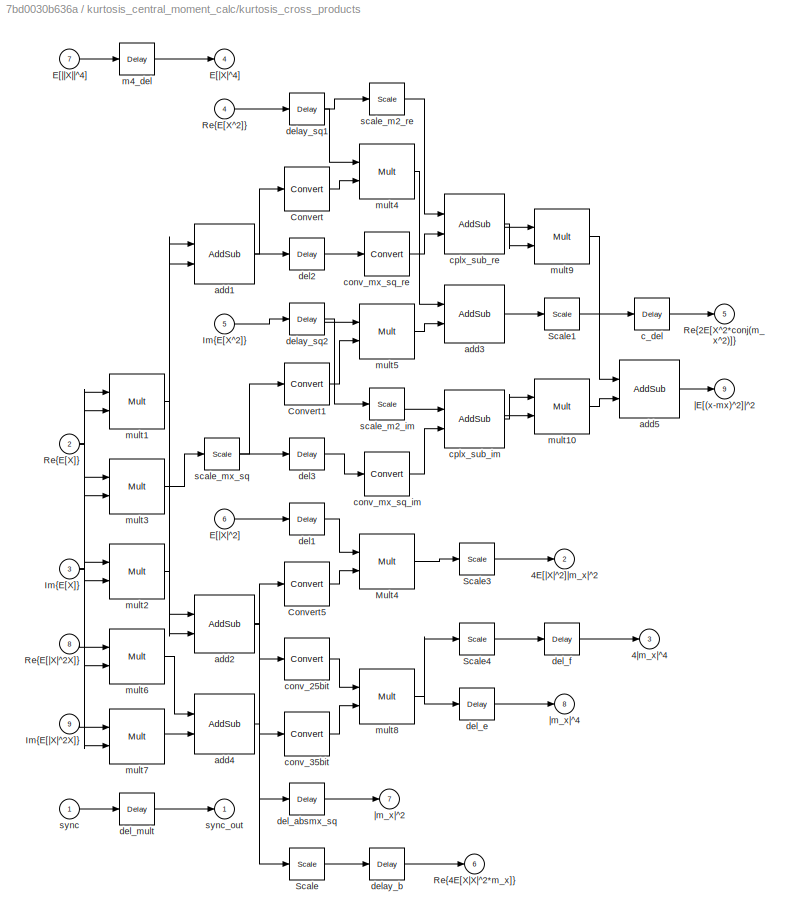
BLOCK [SubSystem] kurtosis_central_moment_calc/kurtosis_cross_products
  FunctionWithSeparateData = off
  MaskHideContents = off
  MinAlgLoopOccurrences = off
  Opaque = off
  Ports = [9, 9]
  PropExecContextOutsideSubsystem = off
  RTWSystemCode = Auto
  RequestExecContextInheritance = off
BLOCK [Outport] kurtosis_central_moment_calc/kurtosis_cross_products/4E[|X|^2]|m_x|^2
  IconDisplay = Port number
  Port = 2
BLOCK [Outport] kurtosis_central_moment_calc/kurtosis_cross_products/4|m_x|^4
  IconDisplay = Port number
  Port = 3
BLOCK [Reference] kurtosis_central_moment_calc/kurtosis_cross_products/Convert  REF=xbsIndex_r4/Convert
  Ports = [1, 1]
  SourceBlock = xbsIndex_r4/Convert
  SourceType = Xilinx Type Converter Block
  arith_type = Signed  (2's comp)
  bin_pt = 22
  block_type = convert
  dbl_ovrd = off
  en = off
  exp_bits = 8
  float_type = Single
  fraction_bits = 24
  gui_display_data_type = Fixed-point
  has_advanced_control = 0
  infoedit = Hardware notes: rounding and saturating require hardware resources; truncating and wrapping do not.
  latency = 1
  n_bits = 25
  overflow = Saturate
  pipeline = off
  quantization = Round  (unbiased: +/- Inf)
  sg_icon_stat = 45,44,1,1,white,blue,0,0c6bad53,right,,[ ],[ ]
  sggui_pos = -1,-1,-1,-1
  xl_area = [0,0,0,0,0,0,0]
  xl_use_area = off
BLOCK [Reference] kurtosis_central_moment_calc/kurtosis_cross_products/Convert1  REF=xbsIndex_r4/Convert
  Ports = [1, 1]
  SourceBlock = xbsIndex_r4/Convert
  SourceType = Xilinx Type Converter Block
  arith_type = Signed  (2's comp)
  bin_pt = 22
  block_type = convert
  dbl_ovrd = off
  en = off
  exp_bits = 8
  float_type = Single
  fraction_bits = 24
  gui_display_data_type = Fixed-point
  has_advanced_control = 0
  infoedit = Hardware notes: rounding and saturating require hardware resources; truncating and wrapping do not.
  latency = 1
  n_bits = 25
  overflow = Saturate
  pipeline = off
  quantization = Round  (unbiased: +/- Inf)
  sg_icon_stat = 45,42,1,1,white,blue,0,0c6bad53,right,,[ ],[ ]
  sggui_pos = -1,-1,-1,-1
  xl_area = [0,0,0,0,0,0,0]
  xl_use_area = off
BLOCK [Reference] kurtosis_central_moment_calc/kurtosis_cross_products/Convert5  REF=xbsIndex_r4/Convert
  Ports = [1, 1]
  SourceBlock = xbsIndex_r4/Convert
  SourceType = Xilinx Type Converter Block
  arith_type = Signed  (2's comp)
  bin_pt = 22
  block_type = convert
  dbl_ovrd = off
  en = off
  exp_bits = 8
  float_type = Single
  fraction_bits = 24
  gui_display_data_type = Fixed-point
  has_advanced_control = 0
  infoedit = Hardware notes: rounding and saturating require hardware resources; truncating and wrapping do not.
  latency = 5
  n_bits = 25
  overflow = Saturate
  pipeline = off
  quantization = Round  (unbiased: +/- Inf)
  sg_icon_stat = 45,44,1,1,white,blue,0,a0ef3d54,right,,[ ],[ ]
  sggui_pos = -1,-1,-1,-1
  xl_area = [0,0,0,0,0,0,0]
  xl_use_area = off
BLOCK [Inport] kurtosis_central_moment_calc/kurtosis_cross_products/E[|X|^2]
  IconDisplay = Port number
  Port = 6
BLOCK [Outport] kurtosis_central_moment_calc/kurtosis_cross_products/E[|X|^4]
  IconDisplay = Port number
  Port = 4
BLOCK [Inport] kurtosis_central_moment_calc/kurtosis_cross_products/E[||X||^4]
  IconDisplay = Port number
  Port = 7
BLOCK [Inport] kurtosis_central_moment_calc/kurtosis_cross_products/Im{E[X]}
  IconDisplay = Port number
  Port = 3
BLOCK [Inport] kurtosis_central_moment_calc/kurtosis_cross_products/Im{E[X^2]}
  IconDisplay = Port number
  Port = 5
BLOCK [Inport] kurtosis_central_moment_calc/kurtosis_cross_products/Im{E[|X|^2X]}
  IconDisplay = Port number
  Port = 9
BLOCK [Reference] kurtosis_central_moment_calc/kurtosis_cross_products/Mult4  REF=xbsIndex_r4/Mult
  Ports = [2, 1]
  SourceBlock = xbsIndex_r4/Mult
  SourceType = Xilinx Multiplier Block
  arith_type = Signed  (2's comp)
  bin_pt = 34
  block_type = mult
  dbl_ovrd = off
  en = off
  has_advanced_control = 0
  infoedit = Hardware notes: To check for the optimum internal pipeline stages of the dedicated multiplier you must select 'Test for optimum pipelining'.<br><br>Optimization Goal: For implementation into device fabric (LUTs), the Speed or Area optimization will take effect only if it's supported by IP for the particular device family. Otherwise, the results will be identical regardless of the selection.  <repeated x21 — deduplicated; at blocks: Mult4, mult1, mult10, mult2, mult3, mult4, mult5, mult6, mult7, mult8, mult9, square, imag_square, real_square, mult_1, mult_2, +5 more>
  latency = 5
  n_bits = 36
  opt = Speed
  optimum_pipeline = off
  overflow = Wrap
  pipeline = on
  placement_style = Triangular
  precision = Full
  quantization = Truncate
  sg_icon_stat = 55,55,2,1,white,blue,0,1fb4e767,right,,[ ],[ ]
  sg_mask_display = fprintf('','COMMENT: begin icon graphics');\npatch([0 55 55 0 0 ],[0 0 55 55 0 ],[0.77 0.82 0.91 ]);\nplot([0 55 55 0 0 ],[0 0 55 55 0 ]);\npatch([11.425 21.54 28.54 35.54 42.54 28.54 18.425 11.425 ],[34.77 34.77 41.77 34.77 41.77 41.77 41.77 34.77 ],[1 1 1 ]);\npatch([18.425 28.54 21.54 11.425 18.425 ],[27.77 27.77 34.77 34.77 27.77 ],[0.931 0.946 0.973 ]);\npatch([11.425 21.54 28.54 18.425 11.425 ],[...<+522ch>  <repeated x21 — deduplicated; at blocks: Mult4, mult1, mult10, mult2, mult3, mult4, mult5, mult6, mult7, mult8, mult9, square, imag_square, real_square, mult_1, mult_2, +5 more>
  sggui_pos = -1,-1,-1,-1
  use_behavioral_HDL = off
  use_embedded = on
  use_rpm = on
  xl_area = [0,0,0,0,0,0,0]
  xl_use_area = off
BLOCK [Outport] kurtosis_central_moment_calc/kurtosis_cross_products/Re{2E[X^2*conj(m_x^2)]}
  IconDisplay = Port number
  Port = 5
BLOCK [Outport] kurtosis_central_moment_calc/kurtosis_cross_products/Re{4E[X|X|^2*m_x]}
  IconDisplay = Port number
  Port = 6
BLOCK [Inport] kurtosis_central_moment_calc/kurtosis_cross_products/Re{E[X]}
  IconDisplay = Port number
  Port = 2
BLOCK [Inport] kurtosis_central_moment_calc/kurtosis_cross_products/Re{E[X^2]}
  IconDisplay = Port number
  Port = 4
BLOCK [Inport] kurtosis_central_moment_calc/kurtosis_cross_products/Re{E[|X|^2X]}
  IconDisplay = Port number
  Port = 8
BLOCK [Reference] kurtosis_central_moment_calc/kurtosis_cross_products/Scale  REF=xbsIndex_r4/Scale
  Ports = [1, 1]
  SourceBlock = xbsIndex_r4/Scale
  SourceType = Xilinx Input Scaler Block
  block_type = scale
  dbl_ovrd = off
  has_advanced_control = 0
  infoedit = Scales input by a power of two by adjusting the binary point position.<br><br>Hardware notes: In hardware this block costs nothing.
  scale_factor = 2
  sg_icon_stat = 35,32,1,1,white,blue,0,7414033f,right,,[ ],[ ]
  sg_mask_display = fprintf('','COMMENT: begin icon graphics');\npatch([0 35 35 0 0 ],[0 0 32 32 0 ],[0.77 0.82 0.91 ]);\nplot([0 35 35 0 0 ],[0 0 32 32 0 ]);\npatch([8.1 13.88 17.88 21.88 25.88 17.88 12.1 8.1 ],[20.44 20.44 24.44 20.44 24.44 24.44 24.44 20.44 ],[1 1 1 ]);\npatch([12.1 17.88 13.88 8.1 12.1 ],[16.44 16.44 20.44 20.44 16.44 ],[0.931 0.946 0.973 ]);\npatch([8.1 13.88 17.88 12.1 8.1 ],[12.44 12.44 16.44 16.44...<+302ch>  <repeated x5 — deduplicated; at blocks: Scale, Scale1, Scale3, Scale4, scale_mx_sq>
  sggui_pos = -1,-1,-1,-1
BLOCK [Reference] kurtosis_central_moment_calc/kurtosis_cross_products/Scale1  REF=xbsIndex_r4/Scale
  Ports = [1, 1]
  SourceBlock = xbsIndex_r4/Scale
  SourceType = Xilinx Input Scaler Block
  block_type = scale
  dbl_ovrd = off
  has_advanced_control = 0
  infoedit = Scales input by a power of two by adjusting the binary point position.<br><br>Hardware notes: In hardware this block costs nothing.
  scale_factor = 1
  sg_icon_stat = 35,32,1,1,white,blue,0,960fb61a,right,,[ ],[ ]
  sggui_pos = -1,-1,-1,-1
BLOCK [Reference] kurtosis_central_moment_calc/kurtosis_cross_products/Scale3  REF=xbsIndex_r4/Scale
  Ports = [1, 1]
  SourceBlock = xbsIndex_r4/Scale
  SourceType = Xilinx Input Scaler Block
  block_type = scale
  dbl_ovrd = off
  has_advanced_control = 0
  infoedit = Scales input by a power of two by adjusting the binary point position.<br><br>Hardware notes: In hardware this block costs nothing.
  scale_factor = 2
  sg_icon_stat = 35,32,1,1,white,blue,0,7414033f,right,,[ ],[ ]
  sggui_pos = -1,-1,-1,-1
BLOCK [Reference] kurtosis_central_moment_calc/kurtosis_cross_products/Scale4  REF=xbsIndex_r4/Scale
  Ports = [1, 1]
  SourceBlock = xbsIndex_r4/Scale
  SourceType = Xilinx Input Scaler Block
  block_type = scale
  dbl_ovrd = off
  has_advanced_control = 0
  infoedit = Scales input by a power of two by adjusting the binary point position.<br><br>Hardware notes: In hardware this block costs nothing.
  scale_factor = 2
  sg_icon_stat = 35,32,1,1,white,blue,0,7414033f,right,,[ ],[ ]
  sggui_pos = -1,-1,-1,-1
BLOCK [Reference] kurtosis_central_moment_calc/kurtosis_cross_products/add1  REF=xbsIndex_r4/AddSub
  Ports = [2, 1]
  SourceBlock = xbsIndex_r4/AddSub
  SourceType = Xilinx Adder/Subtracter Block
  arith_type = Signed  (2's comp)
  bin_pt = 34
  block_type = addsub
  dbl_ovrd = off
  en = off
  has_advanced_control = 0
  hw_selection = Fabric
  latency = 2
  mode = Subtraction
  n_bits = 36
  overflow = Wrap
  pipelined = off
  precision = Full
  quantization = Truncate
  sg_icon_stat = 60,60,2,1,white,blue,0,c507509b,right,,[ ],[ ]
  sg_mask_display = fprintf('','COMMENT: begin icon graphics');\npatch([0 60 60 0 0 ],[0 0 60 60 0 ],[0.77 0.82 0.91 ]);\nplot([0 60 60 0 0 ],[0 0 60 60 0 ]);\npatch([12.2 23.76 31.76 39.76 47.76 31.76 20.2 12.2 ],[38.88 38.88 46.88 38.88 46.88 46.88 46.88 38.88 ],[1 1 1 ]);\npatch([20.2 31.76 23.76 12.2 20.2 ],[30.88 30.88 38.88 38.88 30.88 ],[0.931 0.946 0.973 ]);\npatch([12.2 23.76 31.76 20.2 12.2 ],[22.88 22.88 30.88 ...<+520ch>  <repeated x11 — deduplicated; at blocks: add1, add4, cplx_sub_re, Sub, add_aef, add_dcb, sub_cb, sub_dh, sub_ef, AddSub, AddSub1>
  sggui_pos = -1,-1,-1,-1
  use_behavioral_HDL = off
  use_carryin = off
  use_carryout = off
  xl_area = [0,0,0,0,0,0,0]
  xl_use_area = off
BLOCK [Reference] kurtosis_central_moment_calc/kurtosis_cross_products/add2  REF=xbsIndex_r4/AddSub
  Ports = [2, 1]
  SourceBlock = xbsIndex_r4/AddSub
  SourceType = Xilinx Adder/Subtracter Block
  arith_type = Signed  (2's comp)
  bin_pt = 34
  block_type = addsub
  dbl_ovrd = off
  en = off
  has_advanced_control = 0
  hw_selection = Fabric
  latency = 2
  mode = Addition
  n_bits = 36
  overflow = Wrap
  pipelined = off
  precision = Full
  quantization = Truncate
  sg_icon_stat = 60,58,2,1,white,blue,0,dcac4ee3,right,,[ ],[ ]
  sg_mask_display = fprintf('','COMMENT: begin icon graphics');\npatch([0 60 60 0 0 ],[0 0 58 58 0 ],[0.77 0.82 0.91 ]);\nplot([0 60 60 0 0 ],[0 0 58 58 0 ]);\npatch([12.2 23.76 31.76 39.76 47.76 31.76 20.2 12.2 ],[37.88 37.88 45.88 37.88 45.88 45.88 45.88 37.88 ],[1 1 1 ]);\npatch([20.2 31.76 23.76 12.2 20.2 ],[29.88 29.88 37.88 37.88 29.88 ],[0.931 0.946 0.973 ]);\npatch([12.2 23.76 31.76 20.2 12.2 ],[21.88 21.88 29.88 ...<+520ch>  <repeated x6 — deduplicated; at blocks: add2, add3, add5, cplx_sub_im, add, power_adder>
  sggui_pos = -1,-1,-1,-1
  use_behavioral_HDL = off
  use_carryin = off
  use_carryout = off
  xl_area = [0,0,0,0,0,0,0]
  xl_use_area = off
BLOCK [Reference] kurtosis_central_moment_calc/kurtosis_cross_products/add3  REF=xbsIndex_r4/AddSub
  Ports = [2, 1]
  SourceBlock = xbsIndex_r4/AddSub
  SourceType = Xilinx Adder/Subtracter Block
  arith_type = Signed  (2's comp)
  bin_pt = 34
  block_type = addsub
  dbl_ovrd = off
  en = off
  has_advanced_control = 0
  hw_selection = Fabric
  latency = 2
  mode = Addition
  n_bits = 36
  overflow = Wrap
  pipelined = off
  precision = Full
  quantization = Truncate
  sg_icon_stat = 60,58,2,1,white,blue,0,dcac4ee3,right,,[ ],[ ]
  sggui_pos = -1,-1,-1,-1
  use_behavioral_HDL = off
  use_carryin = off
  use_carryout = off
  xl_area = [0,0,0,0,0,0,0]
  xl_use_area = off
BLOCK [Reference] kurtosis_central_moment_calc/kurtosis_cross_products/add4  REF=xbsIndex_r4/AddSub
  Ports = [2, 1]
  SourceBlock = xbsIndex_r4/AddSub
  SourceType = Xilinx Adder/Subtracter Block
  arith_type = Signed  (2's comp)
  bin_pt = 34
  block_type = addsub
  dbl_ovrd = off
  en = off
  has_advanced_control = 0
  hw_selection = Fabric
  latency = 2
  mode = Addition
  n_bits = 36
  overflow = Wrap
  pipelined = off
  precision = Full
  quantization = Truncate
  sg_icon_stat = 60,60,2,1,white,blue,0,dcac4ee3,right,,[ ],[ ]
  sggui_pos = -1,-1,-1,-1
  use_behavioral_HDL = off
  use_carryin = off
  use_carryout = off
  xl_area = [0,0,0,0,0,0,0]
  xl_use_area = off
BLOCK [Reference] kurtosis_central_moment_calc/kurtosis_cross_products/add5  REF=xbsIndex_r4/AddSub
  Ports = [2, 1]
  SourceBlock = xbsIndex_r4/AddSub
  SourceType = Xilinx Adder/Subtracter Block
  arith_type = Signed  (2's comp)
  bin_pt = 34
  block_type = addsub
  dbl_ovrd = off
  en = off
  has_advanced_control = 0
  hw_selection = Fabric
  latency = 3
  mode = Addition
  n_bits = 36
  overflow = Wrap
  pipelined = off
  precision = Full
  quantization = Truncate
  sg_icon_stat = 60,58,2,1,white,blue,0,6cdeed65,right,,[ ],[ ]
  sggui_pos = -1,-1,-1,-1
  use_behavioral_HDL = off
  use_carryin = off
  use_carryout = off
  xl_area = [0,0,0,0,0,0,0]
  xl_use_area = off
BLOCK [Reference] kurtosis_central_moment_calc/kurtosis_cross_products/c_del  REF=xbsIndex_r4/Delay
  Ports = [1, 1]
  SourceBlock = xbsIndex_r4/Delay
  SourceType = Xilinx Delay Block
  block_type = delay
  dbl_ovrd = off
  en = off
  has_advanced_control = 0
  infoedit = Hardware notes: A delay line is a chain, each link of which is an SRL16 followed by a flip-flop.
  infoeditControl = Selection of Reset will increase slice count due to use of real FFs and instead of SRLs
  latency = 4
  reg_retiming = off
  rst = off
  sg_icon_stat = 35,32,1,1,white,blue,0,d390c2d8,right,,[ ],[ ]
  sggui_pos = -1,-1,-1,-1
  xl_area = [0,0,0,0,0,0,0]
  xl_use_area = off
BLOCK [Reference] kurtosis_central_moment_calc/kurtosis_cross_products/conv_25bit  REF=xbsIndex_r4/Convert
  Ports = [1, 1]
  SourceBlock = xbsIndex_r4/Convert
  SourceType = Xilinx Type Converter Block
  arith_type = Signed  (2's comp)
  bin_pt = 22
  block_type = convert
  dbl_ovrd = off
  en = off
  exp_bits = 8
  float_type = Single
  fraction_bits = 24
  gui_display_data_type = Fixed-point
  has_advanced_control = 0
  infoedit = Hardware notes: rounding and saturating require hardware resources; truncating and wrapping do not.
  latency = 3
  n_bits = 25
  overflow = Saturate
  pipeline = off
  quantization = Round  (unbiased: +/- Inf)
  sg_icon_stat = 45,42,1,1,white,blue,0,0bfac013,right,,[ ],[ ]
  sggui_pos = -1,-1,-1,-1
  xl_area = [0,0,0,0,0,0,0]
  xl_use_area = off
BLOCK [Reference] kurtosis_central_moment_calc/kurtosis_cross_products/conv_35bit  REF=xbsIndex_r4/Convert
  Ports = [1, 1]
  SourceBlock = xbsIndex_r4/Convert
  SourceType = Xilinx Type Converter Block
  arith_type = Signed  (2's comp)
  bin_pt = 32
  block_type = convert
  dbl_ovrd = off
  en = off
  exp_bits = 8
  float_type = Single
  fraction_bits = 24
  gui_display_data_type = Fixed-point
  has_advanced_control = 0
  infoedit = Hardware notes: rounding and saturating require hardware resources; truncating and wrapping do not.
  latency = 3
  n_bits = 35
  overflow = Saturate
  pipeline = off
  quantization = Round  (unbiased: +/- Inf)
  sg_icon_stat = 45,44,1,1,white,blue,0,0bfac013,right,,[ ],[ ]
  sggui_pos = -1,-1,-1,-1
  xl_area = [0,0,0,0,0,0,0]
  xl_use_area = off
BLOCK [Reference] kurtosis_central_moment_calc/kurtosis_cross_products/conv_mx_sq_im  REF=xbsIndex_r4/Convert
  Ports = [1, 1]
  SourceBlock = xbsIndex_r4/Convert
  SourceType = Xilinx Type Converter Block
  arith_type = Signed  (2's comp)
  bin_pt = 32
  block_type = convert
  dbl_ovrd = off
  en = off
  exp_bits = 8
  float_type = Single
  fraction_bits = 24
  gui_display_data_type = Fixed-point
  has_advanced_control = 0
  infoedit = Hardware notes: rounding and saturating require hardware resources; truncating and wrapping do not.
  latency = 0
  n_bits = 35
  overflow = Saturate
  pipeline = off
  quantization = Round  (unbiased: +/- Inf)
  sg_icon_stat = 45,44,1,1,white,blue,0,edca21da,right,,[ ],[ ]
  sg_mask_display = fprintf('','COMMENT: begin icon graphics');\npatch([0 45 45 0 0 ],[0 0 44 44 0 ],[0.77 0.82 0.91 ]);\nplot([0 45 45 0 0 ],[0 0 44 44 0 ]);\npatch([8.65 17.32 23.32 29.32 35.32 23.32 14.65 8.65 ],[28.66 28.66 34.66 28.66 34.66 34.66 34.66 28.66 ],[1 1 1 ]);\npatch([14.65 23.32 17.32 8.65 14.65 ],[22.66 22.66 28.66 28.66 22.66 ],[0.931 0.946 0.973 ]);\npatch([8.65 17.32 23.32 14.65 8.65 ],[16.66 16.66 22...<+313ch>
  sggui_pos = -1,-1,-1,-1
  xl_area = [0,0,0,0,0,0,0]
  xl_use_area = off
BLOCK [Reference] kurtosis_central_moment_calc/kurtosis_cross_products/conv_mx_sq_re  REF=xbsIndex_r4/Convert
  Ports = [1, 1]
  SourceBlock = xbsIndex_r4/Convert
  SourceType = Xilinx Type Converter Block
  arith_type = Signed  (2's comp)
  bin_pt = 32
  block_type = convert
  dbl_ovrd = off
  en = off
  exp_bits = 8
  float_type = Single
  fraction_bits = 24
  gui_display_data_type = Fixed-point
  has_advanced_control = 0
  infoedit = Hardware notes: rounding and saturating require hardware resources; truncating and wrapping do not.
  latency = 0
  n_bits = 35
  overflow = Saturate
  pipeline = off
  quantization = Round  (unbiased: +/- Inf)
  sg_icon_stat = 45,44,1,1,white,blue,0,edca21da,right,,[ ],[ ]
  sg_mask_display = fprintf('','COMMENT: begin icon graphics');\npatch([0 45 45 0 0 ],[0 0 44 44 0 ],[0.77 0.82 0.91 ]);\nplot([0 45 45 0 0 ],[0 0 44 44 0 ]);\npatch([8.65 17.32 23.32 29.32 35.32 23.32 14.65 8.65 ],[28.66 28.66 34.66 28.66 34.66 34.66 34.66 28.66 ],[1 1 1 ]);\npatch([14.65 23.32 17.32 8.65 14.65 ],[22.66 22.66 28.66 28.66 22.66 ],[0.931 0.946 0.973 ]);\npatch([8.65 17.32 23.32 14.65 8.65 ],[16.66 16.66 22...<+313ch>
  sggui_pos = -1,-1,-1,-1
  xl_area = [0,0,0,0,0,0,0]
  xl_use_area = off
BLOCK [Reference] kurtosis_central_moment_calc/kurtosis_cross_products/cplx_sub_im  REF=xbsIndex_r4/AddSub
  Ports = [2, 1]
  SourceBlock = xbsIndex_r4/AddSub
  SourceType = Xilinx Adder/Subtracter Block
  arith_type = Signed  (2's comp)
  bin_pt = 34
  block_type = addsub
  dbl_ovrd = off
  en = off
  has_advanced_control = 0
  hw_selection = Fabric
  latency = 2
  mode = Subtraction
  n_bits = 36
  overflow = Wrap
  pipelined = off
  precision = Full
  quantization = Truncate
  sg_icon_stat = 60,58,2,1,white,blue,0,c507509b,right,,[ ],[ ]
  sggui_pos = -1,-1,-1,-1
  use_behavioral_HDL = off
  use_carryin = off
  use_carryout = off
  xl_area = [0,0,0,0,0,0,0]
  xl_use_area = off
BLOCK [Reference] kurtosis_central_moment_calc/kurtosis_cross_products/cplx_sub_re  REF=xbsIndex_r4/AddSub
  Ports = [2, 1]
  SourceBlock = xbsIndex_r4/AddSub
  SourceType = Xilinx Adder/Subtracter Block
  arith_type = Signed  (2's comp)
  bin_pt = 34
  block_type = addsub
  dbl_ovrd = off
  en = off
  has_advanced_control = 0
  hw_selection = Fabric
  latency = 2
  mode = Subtraction
  n_bits = 36
  overflow = Wrap
  pipelined = off
  precision = Full
  quantization = Truncate
  sg_icon_stat = 60,60,2,1,white,blue,0,c507509b,right,,[ ],[ ]
  sggui_pos = -1,-1,-1,-1
  use_behavioral_HDL = off
  use_carryin = off
  use_carryout = off
  xl_area = [0,0,0,0,0,0,0]
  xl_use_area = off
BLOCK [Reference] kurtosis_central_moment_calc/kurtosis_cross_products/del1  REF=xbsIndex_r4/Delay
  Ports = [1, 1]
  SourceBlock = xbsIndex_r4/Delay
  SourceType = Xilinx Delay Block
  block_type = delay
  dbl_ovrd = off
  en = off
  has_advanced_control = 0
  infoedit = Hardware notes: A delay line is a chain, each link of which is an SRL16 followed by a flip-flop.
  infoeditControl = Selection of Reset will increase slice count due to use of real FFs and instead of SRLs
  latency = 10
  reg_retiming = off
  rst = off
  sg_icon_stat = 35,32,1,1,white,blue,0,8c471295,right,,[ ],[ ]
  sggui_pos = -1,-1,-1,-1
  xl_area = [0,0,0,0,0,0,0]
  xl_use_area = off
BLOCK [Reference] kurtosis_central_moment_calc/kurtosis_cross_products/del2  REF=xbsIndex_r4/Delay
  Ports = [1, 1]
  SourceBlock = xbsIndex_r4/Delay
  SourceType = Xilinx Delay Block
  block_type = delay
  dbl_ovrd = off
  en = off
  has_advanced_control = 0
  infoedit = Hardware notes: A delay line is a chain, each link of which is an SRL16 followed by a flip-flop.
  infoeditControl = Selection of Reset will increase slice count due to use of real FFs and instead of SRLs
  latency = 1
  reg_retiming = off
  rst = off
  sg_icon_stat = 35,32,1,1,white,blue,0,07b98262,right,,[ ],[ ]
  sggui_pos = -1,-1,-1,-1
  xl_area = [0,0,0,0,0,0,0]
  xl_use_area = off
BLOCK [Reference] kurtosis_central_moment_calc/kurtosis_cross_products/del3  REF=xbsIndex_r4/Delay
  Ports = [1, 1]
  SourceBlock = xbsIndex_r4/Delay
  SourceType = Xilinx Delay Block
  block_type = delay
  dbl_ovrd = off
  en = off
  has_advanced_control = 0
  infoedit = Hardware notes: A delay line is a chain, each link of which is an SRL16 followed by a flip-flop.
  infoeditControl = Selection of Reset will increase slice count due to use of real FFs and instead of SRLs
  latency = 1
  reg_retiming = off
  rst = off
  sg_icon_stat = 35,32,1,1,white,blue,0,07b98262,right,,[ ],[ ]
  sggui_pos = -1,-1,-1,-1
  xl_area = [0,0,0,0,0,0,0]
  xl_use_area = off
BLOCK [Reference] kurtosis_central_moment_calc/kurtosis_cross_products/del_absmx_sq  REF=xbsIndex_r4/Delay
  Ports = [1, 1]
  SourceBlock = xbsIndex_r4/Delay
  SourceType = Xilinx Delay Block
  block_type = delay
  dbl_ovrd = off
  en = off
  has_advanced_control = 0
  infoedit = Hardware notes: A delay line is a chain, each link of which is an SRL16 followed by a flip-flop.
  infoeditControl = Selection of Reset will increase slice count due to use of real FFs and instead of SRLs
  latency = 10
  reg_retiming = off
  rst = off
  sg_icon_stat = 35,32,1,1,white,blue,0,8c471295,right,,[ ],[ ]
  sggui_pos = -1,-1,-1,-1
  xl_area = [0,0,0,0,0,0,0]
  xl_use_area = off
BLOCK [Reference] kurtosis_central_moment_calc/kurtosis_cross_products/del_e  REF=xbsIndex_r4/Delay
  Ports = [1, 1]
  SourceBlock = xbsIndex_r4/Delay
  SourceType = Xilinx Delay Block
  block_type = delay
  dbl_ovrd = off
  en = off
  has_advanced_control = 0
  infoedit = Hardware notes: A delay line is a chain, each link of which is an SRL16 followed by a flip-flop.
  infoeditControl = Selection of Reset will increase slice count due to use of real FFs and instead of SRLs
  latency = 2
  reg_retiming = off
  rst = off
  sg_icon_stat = 35,32,1,1,white,blue,0,85ce9542,right,,[ ],[ ]
  sggui_pos = -1,-1,-1,-1
  xl_area = [0,0,0,0,0,0,0]
  xl_use_area = off
BLOCK [Reference] kurtosis_central_moment_calc/kurtosis_cross_products/del_f  REF=xbsIndex_r4/Delay
  Ports = [1, 1]
  SourceBlock = xbsIndex_r4/Delay
  SourceType = Xilinx Delay Block
  block_type = delay
  dbl_ovrd = off
  en = off
  has_advanced_control = 0
  infoedit = Hardware notes: A delay line is a chain, each link of which is an SRL16 followed by a flip-flop.
  infoeditControl = Selection of Reset will increase slice count due to use of real FFs and instead of SRLs
  latency = 2
  reg_retiming = off
  rst = off
  sg_icon_stat = 35,32,1,1,white,blue,0,85ce9542,right,,[ ],[ ]
  sggui_pos = -1,-1,-1,-1
  xl_area = [0,0,0,0,0,0,0]
  xl_use_area = off
BLOCK [Reference] kurtosis_central_moment_calc/kurtosis_cross_products/del_mult  REF=xbsIndex_r4/Delay
  Ports = [1, 1]
  SourceBlock = xbsIndex_r4/Delay
  SourceType = Xilinx Delay Block
  block_type = delay
  dbl_ovrd = off
  en = off
  has_advanced_control = 0
  infoedit = Hardware notes: A delay line is a chain, each link of which is an SRL16 followed by a flip-flop.
  infoeditControl = Selection of Reset will increase slice count due to use of real FFs and instead of SRLs
  latency = 15
  reg_retiming = off
  rst = off
  sg_icon_stat = 35,32,1,1,white,blue,0,c21c4c41,right,,[ ],[ ]
  sggui_pos = -1,-1,-1,-1
  xl_area = [0,0,0,0,0,0,0]
  xl_use_area = off
BLOCK [Reference] kurtosis_central_moment_calc/kurtosis_cross_products/delay_b  REF=xbsIndex_r4/Delay
  Ports = [1, 1]
  SourceBlock = xbsIndex_r4/Delay
  SourceType = Xilinx Delay Block
  block_type = delay
  dbl_ovrd = off
  en = off
  has_advanced_control = 0
  infoedit = Hardware notes: A delay line is a chain, each link of which is an SRL16 followed by a flip-flop.
  infoeditControl = Selection of Reset will increase slice count due to use of real FFs and instead of SRLs
  latency = 7
  reg_retiming = off
  rst = off
  sg_icon_stat = 35,32,1,1,white,blue,0,d93bb731,right,,[ ],[ ]
  sggui_pos = -1,-1,-1,-1
  xl_area = [0,0,0,0,0,0,0]
  xl_use_area = off
BLOCK [Reference] kurtosis_central_moment_calc/kurtosis_cross_products/delay_sq1  REF=xbsIndex_r4/Delay
  Ports = [1, 1]
  SourceBlock = xbsIndex_r4/Delay
  SourceType = Xilinx Delay Block
  block_type = delay
  dbl_ovrd = off
  en = off
  has_advanced_control = 0
  infoedit = Hardware notes: A delay line is a chain, each link of which is an SRL16 followed by a flip-flop.
  infoeditControl = Selection of Reset will increase slice count due to use of real FFs and instead of SRLs
  latency = 6
  reg_retiming = off
  rst = off
  sg_icon_stat = 35,32,1,1,white,blue,0,aa5bc30d,right,,[ ],[ ]
  sggui_pos = -1,-1,-1,-1
  xl_area = [0,0,0,0,0,0,0]
  xl_use_area = off
BLOCK [Reference] kurtosis_central_moment_calc/kurtosis_cross_products/delay_sq2  REF=xbsIndex_r4/Delay
  Ports = [1, 1]
  SourceBlock = xbsIndex_r4/Delay
  SourceType = Xilinx Delay Block
  block_type = delay
  dbl_ovrd = off
  en = off
  has_advanced_control = 0
  infoedit = Hardware notes: A delay line is a chain, each link of which is an SRL16 followed by a flip-flop.
  infoeditControl = Selection of Reset will increase slice count due to use of real FFs and instead of SRLs
  latency = 6
  reg_retiming = off
  rst = off
  sg_icon_stat = 35,32,1,1,white,blue,0,aa5bc30d,right,,[ ],[ ]
  sggui_pos = -1,-1,-1,-1
  xl_area = [0,0,0,0,0,0,0]
  xl_use_area = off
BLOCK [Reference] kurtosis_central_moment_calc/kurtosis_cross_products/m4_del  REF=xbsIndex_r4/Delay
  Ports = [1, 1]
  SourceBlock = xbsIndex_r4/Delay
  SourceType = Xilinx Delay Block
  block_type = delay
  dbl_ovrd = off
  en = off
  has_advanced_control = 0
  infoedit = Hardware notes: A delay line is a chain, each link of which is an SRL16 followed by a flip-flop.
  infoeditControl = Selection of Reset will increase slice count due to use of real FFs and instead of SRLs
  latency = 15
  reg_retiming = off
  rst = off
  sg_icon_stat = 35,32,1,1,white,blue,0,c21c4c41,right,,[ ],[ ]
  sggui_pos = -1,-1,-1,-1
  xl_area = [0,0,0,0,0,0,0]
  xl_use_area = off
BLOCK [Reference] kurtosis_central_moment_calc/kurtosis_cross_products/mult1  REF=xbsIndex_r4/Mult
  Ports = [2, 1]
  SourceBlock = xbsIndex_r4/Mult
  SourceType = Xilinx Multiplier Block
  arith_type = Signed  (2's comp)
  bin_pt = 34
  block_type = mult
  dbl_ovrd = off
  en = off
  has_advanced_control = 0
  latency = 3
  n_bits = 36
  opt = Speed
  optimum_pipeline = off
  overflow = Wrap
  pipeline = on
  placement_style = Triangular
  precision = Full
  quantization = Truncate
  sg_icon_stat = 55,55,2,1,white,blue,0,7028354c,right,,[ ],[ ]
  sggui_pos = -1,-1,-1,-1
  use_behavioral_HDL = off
  use_embedded = on
  use_rpm = on
  xl_area = [0,0,0,0,0,0,0]
  xl_use_area = off
BLOCK [Reference] kurtosis_central_moment_calc/kurtosis_cross_products/mult10  REF=xbsIndex_r4/Mult
  Ports = [2, 1]
  SourceBlock = xbsIndex_r4/Mult
  SourceType = Xilinx Multiplier Block
  arith_type = Signed  (2's comp)
  bin_pt = 34
  block_type = mult
  dbl_ovrd = off
  en = off
  has_advanced_control = 0
  latency = 4
  n_bits = 36
  opt = Speed
  optimum_pipeline = off
  overflow = Wrap
  pipeline = on
  placement_style = Triangular
  precision = Full
  quantization = Truncate
  sg_icon_stat = 55,55,2,1,white,blue,0,d1df6e1f,right,,[ ],[ ]
  sggui_pos = -1,-1,-1,-1
  use_behavioral_HDL = off
  use_embedded = on
  use_rpm = on
  xl_area = [0,0,0,0,0,0,0]
  xl_use_area = off
BLOCK [Reference] kurtosis_central_moment_calc/kurtosis_cross_products/mult2  REF=xbsIndex_r4/Mult
  Ports = [2, 1]
  SourceBlock = xbsIndex_r4/Mult
  SourceType = Xilinx Multiplier Block
  arith_type = Signed  (2's comp)
  bin_pt = 34
  block_type = mult
  dbl_ovrd = off
  en = off
  has_advanced_control = 0
  latency = 3
  n_bits = 36
  opt = Speed
  optimum_pipeline = off
  overflow = Wrap
  pipeline = on
  placement_style = Triangular
  precision = Full
  quantization = Truncate
  sg_icon_stat = 55,55,2,1,white,blue,0,7028354c,right,,[ ],[ ]
  sggui_pos = -1,-1,-1,-1
  use_behavioral_HDL = off
  use_embedded = on
  use_rpm = on
  xl_area = [0,0,0,0,0,0,0]
  xl_use_area = off
BLOCK [Reference] kurtosis_central_moment_calc/kurtosis_cross_products/mult3  REF=xbsIndex_r4/Mult
  Ports = [2, 1]
  SourceBlock = xbsIndex_r4/Mult
  SourceType = Xilinx Multiplier Block
  arith_type = Signed  (2's comp)
  bin_pt = 34
  block_type = mult
  dbl_ovrd = off
  en = off
  has_advanced_control = 0
  latency = 5
  n_bits = 36
  opt = Speed
  optimum_pipeline = off
  overflow = Wrap
  pipeline = on
  placement_style = Triangular
  precision = Full
  quantization = Truncate
  sg_icon_stat = 55,55,2,1,white,blue,0,1fb4e767,right,,[ ],[ ]
  sggui_pos = -1,-1,-1,-1
  use_behavioral_HDL = off
  use_embedded = on
  use_rpm = on
  xl_area = [0,0,0,0,0,0,0]
  xl_use_area = off
BLOCK [Reference] kurtosis_central_moment_calc/kurtosis_cross_products/mult4  REF=xbsIndex_r4/Mult
  Ports = [2, 1]
  SourceBlock = xbsIndex_r4/Mult
  SourceType = Xilinx Multiplier Block
  arith_type = Signed  (2's comp)
  bin_pt = 34
  block_type = mult
  dbl_ovrd = off
  en = off
  has_advanced_control = 0
  latency = 3
  n_bits = 36
  opt = Speed
  optimum_pipeline = off
  overflow = Wrap
  pipeline = on
  placement_style = Triangular
  precision = Full
  quantization = Truncate
  sg_icon_stat = 55,55,2,1,white,blue,0,7028354c,right,,[ ],[ ]
  sggui_pos = -1,-1,-1,-1
  use_behavioral_HDL = off
  use_embedded = on
  use_rpm = on
  xl_area = [0,0,0,0,0,0,0]
  xl_use_area = off
BLOCK [Reference] kurtosis_central_moment_calc/kurtosis_cross_products/mult5  REF=xbsIndex_r4/Mult
  Ports = [2, 1]
  SourceBlock = xbsIndex_r4/Mult
  SourceType = Xilinx Multiplier Block
  arith_type = Signed  (2's comp)
  bin_pt = 34
  block_type = mult
  dbl_ovrd = off
  en = off
  has_advanced_control = 0
  latency = 3
  n_bits = 36
  opt = Speed
  optimum_pipeline = off
  overflow = Wrap
  pipeline = on
  placement_style = Triangular
  precision = Full
  quantization = Truncate
  sg_icon_stat = 55,55,2,1,white,blue,0,7028354c,right,,[ ],[ ]
  sggui_pos = -1,-1,-1,-1
  use_behavioral_HDL = off
  use_embedded = on
  use_rpm = on
  xl_area = [0,0,0,0,0,0,0]
  xl_use_area = off
BLOCK [Reference] kurtosis_central_moment_calc/kurtosis_cross_products/mult6  REF=xbsIndex_r4/Mult
  Ports = [2, 1]
  SourceBlock = xbsIndex_r4/Mult
  SourceType = Xilinx Multiplier Block
  arith_type = Signed  (2's comp)
  bin_pt = 34
  block_type = mult
  dbl_ovrd = off
  en = off
  has_advanced_control = 0
  latency = 6
  n_bits = 36
  opt = Speed
  optimum_pipeline = off
  overflow = Wrap
  pipeline = on
  placement_style = Triangular
  precision = Full
  quantization = Truncate
  sg_icon_stat = 55,55,2,1,white,blue,0,bb737a25,right,,[ ],[ ]
  sggui_pos = -1,-1,-1,-1
  use_behavioral_HDL = off
  use_embedded = on
  use_rpm = on
  xl_area = [0,0,0,0,0,0,0]
  xl_use_area = off
BLOCK [Reference] kurtosis_central_moment_calc/kurtosis_cross_products/mult7  REF=xbsIndex_r4/Mult
  Ports = [2, 1]
  SourceBlock = xbsIndex_r4/Mult
  SourceType = Xilinx Multiplier Block
  arith_type = Signed  (2's comp)
  bin_pt = 34
  block_type = mult
  dbl_ovrd = off
  en = off
  has_advanced_control = 0
  latency = 6
  n_bits = 36
  opt = Speed
  optimum_pipeline = off
  overflow = Wrap
  pipeline = on
  placement_style = Triangular
  precision = Full
  quantization = Truncate
  sg_icon_stat = 55,55,2,1,white,blue,0,bb737a25,right,,[ ],[ ]
  sggui_pos = -1,-1,-1,-1
  use_behavioral_HDL = off
  use_embedded = on
  use_rpm = on
  xl_area = [0,0,0,0,0,0,0]
  xl_use_area = off
BLOCK [Reference] kurtosis_central_moment_calc/kurtosis_cross_products/mult8  REF=xbsIndex_r4/Mult
  Ports = [2, 1]
  SourceBlock = xbsIndex_r4/Mult
  SourceType = Xilinx Multiplier Block
  arith_type = Signed  (2's comp)
  bin_pt = 34
  block_type = mult
  dbl_ovrd = off
  en = off
  has_advanced_control = 0
  latency = 5
  n_bits = 36
  opt = Speed
  optimum_pipeline = off
  overflow = Wrap
  pipeline = on
  placement_style = Triangular
  precision = Full
  quantization = Truncate
  sg_icon_stat = 55,55,2,1,white,blue,0,1fb4e767,right,,[ ],[ ]
  sggui_pos = -1,-1,-1,-1
  use_behavioral_HDL = off
  use_embedded = on
  use_rpm = on
  xl_area = [0,0,0,0,0,0,0]
  xl_use_area = off
BLOCK [Reference] kurtosis_central_moment_calc/kurtosis_cross_products/mult9  REF=xbsIndex_r4/Mult
  Ports = [2, 1]
  SourceBlock = xbsIndex_r4/Mult
  SourceType = Xilinx Multiplier Block
  arith_type = Signed  (2's comp)
  bin_pt = 34
  block_type = mult
  dbl_ovrd = off
  en = off
  has_advanced_control = 0
  latency = 4
  n_bits = 36
  opt = Speed
  optimum_pipeline = off
  overflow = Wrap
  pipeline = on
  placement_style = Triangular
  precision = Full
  quantization = Truncate
  sg_icon_stat = 55,55,2,1,white,blue,0,d1df6e1f,right,,[ ],[ ]
  sggui_pos = -1,-1,-1,-1
  use_behavioral_HDL = off
  use_embedded = on
  use_rpm = on
  xl_area = [0,0,0,0,0,0,0]
  xl_use_area = off
BLOCK [Reference] kurtosis_central_moment_calc/kurtosis_cross_products/scale_m2_im  REF=xbsIndex_r4/Scale
  Ports = [1, 1]
  SourceBlock = xbsIndex_r4/Scale
  SourceType = Xilinx Input Scaler Block
  block_type = scale
  dbl_ovrd = off
  has_advanced_control = 0
  infoedit = Scales input by a power of two by adjusting the binary point position.<br><br>Hardware notes: In hardware this block costs nothing.
  scale_factor = -10
  sg_icon_stat = 35,32,1,1,white,blue,0,4a5221eb,right,,[ ],[ ]
  sggui_pos = -1,-1,-1,-1
BLOCK [Reference] kurtosis_central_moment_calc/kurtosis_cross_products/scale_m2_re  REF=xbsIndex_r4/Scale
  Ports = [1, 1]
  SourceBlock = xbsIndex_r4/Scale
  SourceType = Xilinx Input Scaler Block
  block_type = scale
  dbl_ovrd = off
  has_advanced_control = 0
  infoedit = Scales input by a power of two by adjusting the binary point position.<br><br>Hardware notes: In hardware this block costs nothing.
  scale_factor = -10
  sg_icon_stat = 35,32,1,1,white,blue,0,4a5221eb,right,,[ ],[ ]
  sggui_pos = -1,-1,-1,-1
BLOCK [Reference] kurtosis_central_moment_calc/kurtosis_cross_products/scale_mx_sq  REF=xbsIndex_r4/Scale
  Ports = [1, 1]
  SourceBlock = xbsIndex_r4/Scale
  SourceType = Xilinx Input Scaler Block
  block_type = scale
  dbl_ovrd = off
  has_advanced_control = 0
  infoedit = Scales input by a power of two by adjusting the binary point position.<br><br>Hardware notes: In hardware this block costs nothing.
  scale_factor = 1
  sg_icon_stat = 35,32,1,1,white,blue,0,960fb61a,right,,[ ],[ ]
  sggui_pos = -1,-1,-1,-1
BLOCK [Inport] kurtosis_central_moment_calc/kurtosis_cross_products/sync
  IconDisplay = Port number
BLOCK [Outport] kurtosis_central_moment_calc/kurtosis_cross_products/sync_out
  IconDisplay = Port number
BLOCK [Outport] kurtosis_central_moment_calc/kurtosis_cross_products/|E[(x-mx)^2]|^2
  IconDisplay = Port number
  Port = 9
BLOCK [Outport] kurtosis_central_moment_calc/kurtosis_cross_products/|m_x|^2
  IconDisplay = Port number
  Port = 7
BLOCK [Outport] kurtosis_central_moment_calc/kurtosis_cross_products/|m_x|^4
  IconDisplay = Port number
  Port = 8
BLOCK [SubSystem] kurtosis_central_moment_calc/kurtosis_den
  FunctionWithSeparateData = off
  MaskHideContents = off
  MinAlgLoopOccurrences = off
  Opaque = off
  Ports = [2, 1]
  PropExecContextOutsideSubsystem = off
  RTWSystemCode = Auto
  RequestExecContextInheritance = off
BLOCK [Outport] kurtosis_central_moment_calc/kurtosis_den/E[|X-m_x|^2]^2
  IconDisplay = Port number
BLOCK [Inport] kurtosis_central_moment_calc/kurtosis_den/E[|X|^2]
  IconDisplay = Port number
BLOCK [Reference] kurtosis_central_moment_calc/kurtosis_den/Sub  REF=xbsIndex_r4/AddSub
  Ports = [2, 1]
  SourceBlock = xbsIndex_r4/AddSub
  SourceType = Xilinx Adder/Subtracter Block
  arith_type = Signed  (2's comp)
  bin_pt = 34
  block_type = addsub
  dbl_ovrd = off
  en = off
  has_advanced_control = 0
  hw_selection = Fabric
  latency = 4
  mode = Subtraction
  n_bits = 36
  overflow = Wrap
  pipelined = off
  precision = Full
  quantization = Truncate
  sg_icon_stat = 60,60,2,1,white,blue,0,47390571,right,,[ ],[ ]
  sggui_pos = -1,-1,-1,-1
  use_behavioral_HDL = off
  use_carryin = off
  use_carryout = off
  xl_area = [0,0,0,0,0,0,0]
  xl_use_area = off
BLOCK [Reference] kurtosis_central_moment_calc/kurtosis_den/conv  REF=xbsIndex_r4/Convert
  Ports = [1, 1]
  SourceBlock = xbsIndex_r4/Convert
  SourceType = Xilinx Type Converter Block
  arith_type = Signed  (2's comp)
  bin_pt = 56
  block_type = convert
  dbl_ovrd = off
  en = off
  exp_bits = 8
  float_type = Single
  fraction_bits = 24
  gui_display_data_type = Fixed-point
  has_advanced_control = 0
  infoedit = Hardware notes: rounding and saturating require hardware resources; truncating and wrapping do not.
  latency = 1
  n_bits = 64
  overflow = Saturate
  pipeline = off
  quantization = Round  (unbiased: +/- Inf)
  sg_icon_stat = 45,44,1,1,white,blue,0,0c6bad53,right,,[ ],[ ]
  sggui_pos = -1,-1,-1,-1
  xl_area = [0,0,0,0,0,0,0]
  xl_use_area = off
BLOCK [Reference] kurtosis_central_moment_calc/kurtosis_den/scale  REF=xbsIndex_r4/Scale
  Ports = [1, 1]
  SourceBlock = xbsIndex_r4/Scale
  SourceType = Xilinx Input Scaler Block
  block_type = scale
  dbl_ovrd = off
  has_advanced_control = 0
  infoedit = Scales input by a power of two by adjusting the binary point position.<br><br>Hardware notes: In hardware this block costs nothing.
  scale_factor = -10
  sg_icon_stat = 35,32,1,1,white,blue,0,4a5221eb,right,,[ ],[ ]
  sggui_pos = -1,-1,-1,-1
BLOCK [Reference] kurtosis_central_moment_calc/kurtosis_den/square  REF=xbsIndex_r4/Mult
  Ports = [2, 1]
  SourceBlock = xbsIndex_r4/Mult
  SourceType = Xilinx Multiplier Block
  arith_type = Signed  (2's comp)
  bin_pt = 34
  block_type = mult
  dbl_ovrd = off
  en = off
  has_advanced_control = 0
  latency = 5
  n_bits = 36
  opt = Speed
  optimum_pipeline = off
  overflow = Wrap
  pipeline = on
  placement_style = Triangular
  precision = Full
  quantization = Truncate
  sg_icon_stat = 55,55,2,1,white,blue,0,1fb4e767,right,,[ ],[ ]
  sggui_pos = -1,-1,-1,-1
  use_behavioral_HDL = off
  use_embedded = on
  use_rpm = on
  xl_area = [0,0,0,0,0,0,0]
  xl_use_area = off
BLOCK [Reference] kurtosis_central_moment_calc/kurtosis_den/square_conv_25bit  REF=xbsIndex_r4/Convert
  Ports = [1, 1]
  SourceBlock = xbsIndex_r4/Convert
  SourceType = Xilinx Type Converter Block
  arith_type = Signed  (2's comp)
  bin_pt = 21
  block_type = convert
  dbl_ovrd = off
  en = off
  exp_bits = 8
  float_type = Single
  fraction_bits = 24
  gui_display_data_type = Fixed-point
  has_advanced_control = 0
  infoedit = Hardware notes: rounding and saturating require hardware resources; truncating and wrapping do not.
  latency = 3
  n_bits = 25
  overflow = Saturate
  pipeline = off
  quantization = Round  (unbiased: +/- Inf)
  sg_icon_stat = 45,44,1,1,white,blue,0,0bfac013,right,,[ ],[ ]
  sggui_pos = -1,-1,-1,-1
  xl_area = [0,0,0,0,0,0,0]
  xl_use_area = off
BLOCK [Reference] kurtosis_central_moment_calc/kurtosis_den/square_conv_35bit  REF=xbsIndex_r4/Convert
  Ports = [1, 1]
  SourceBlock = xbsIndex_r4/Convert
  SourceType = Xilinx Type Converter Block
  arith_type = Signed  (2's comp)
  bin_pt = 31
  block_type = convert
  dbl_ovrd = off
  en = off
  exp_bits = 8
  float_type = Single
  fraction_bits = 24
  gui_display_data_type = Fixed-point
  has_advanced_control = 0
  infoedit = Hardware notes: rounding and saturating require hardware resources; truncating and wrapping do not.
  latency = 3
  n_bits = 35
  overflow = Saturate
  pipeline = off
  quantization = Round  (unbiased: +/- Inf)
  sg_icon_stat = 45,44,1,1,white,blue,0,0bfac013,right,,[ ],[ ]
  sggui_pos = -1,-1,-1,-1
  xl_area = [0,0,0,0,0,0,0]
  xl_use_area = off
BLOCK [Inport] kurtosis_central_moment_calc/kurtosis_den/|m_x|^2
  IconDisplay = Port number
  Port = 2
BLOCK [SubSystem] kurtosis_central_moment_calc/kurtosis_num
  FunctionWithSeparateData = off
  MaskHideContents = off
  MinAlgLoopOccurrences = off
  Opaque = off
  Ports = [8, 2]
  PropExecContextOutsideSubsystem = off
  RTWSystemCode = Auto
  RequestExecContextInheritance = off
BLOCK [Inport] kurtosis_central_moment_calc/kurtosis_num/4E[|X|^2]|m_x|^2
  IconDisplay = Port number
  Port = 2
BLOCK [Inport] kurtosis_central_moment_calc/kurtosis_num/4|m_x|^4
  IconDisplay = Port number
  Port = 3
BLOCK [Outport] kurtosis_central_moment_calc/kurtosis_num/E[|X-m_x|^4]
  IconDisplay = Port number
  Port = 2
BLOCK [Inport] kurtosis_central_moment_calc/kurtosis_num/E[|X|^4]
  IconDisplay = Port number
  Port = 4
BLOCK [Inport] kurtosis_central_moment_calc/kurtosis_num/Re{2E[X^2*conj(m_x^2)]}
  IconDisplay = Port number
  Port = 5
BLOCK [Inport] kurtosis_central_moment_calc/kurtosis_num/Re{4E[X|X|^2*m_x]}
  IconDisplay = Port number
  Port = 6
BLOCK [Reference] kurtosis_central_moment_calc/kurtosis_num/a_del  REF=xbsIndex_r4/Delay
  Ports = [1, 1]
  SourceBlock = xbsIndex_r4/Delay
  SourceType = Xilinx Delay Block
  block_type = delay
  dbl_ovrd = off
  en = off
  has_advanced_control = 0
  infoedit = Hardware notes: A delay line is a chain, each link of which is an SRL16 followed by a flip-flop.
  infoeditControl = Selection of Reset will increase slice count due to use of real FFs and instead of SRLs
  latency = 4
  reg_retiming = off
  rst = off
  sg_icon_stat = 35,32,1,1,white,blue,0,d390c2d8,right,,[ ],[ ]
  sggui_pos = -1,-1,-1,-1
  xl_area = [0,0,0,0,0,0,0]
  xl_use_area = off
BLOCK [Reference] kurtosis_central_moment_calc/kurtosis_num/add  REF=xbsIndex_r4/AddSub
  Ports = [2, 1]
  SourceBlock = xbsIndex_r4/AddSub
  SourceType = Xilinx Adder/Subtracter Block
  arith_type = Signed  (2's comp)
  bin_pt = 34
  block_type = addsub
  dbl_ovrd = off
  en = off
  has_advanced_control = 0
  hw_selection = Fabric
  latency = 4
  mode = Addition
  n_bits = 36
  overflow = Wrap
  pipelined = off
  precision = Full
  quantization = Truncate
  sg_icon_stat = 60,58,2,1,white,blue,0,eeab5c4c,right,,[ ],[ ]
  sggui_pos = -1,-1,-1,-1
  use_behavioral_HDL = off
  use_carryin = off
  use_carryout = off
  xl_area = [0,0,0,0,0,0,0]
  xl_use_area = off
BLOCK [Reference] kurtosis_central_moment_calc/kurtosis_num/add_aef  REF=xbsIndex_r4/AddSub
  Ports = [2, 1]
  SourceBlock = xbsIndex_r4/AddSub
  SourceType = Xilinx Adder/Subtracter Block
  arith_type = Signed  (2's comp)
  bin_pt = 34
  block_type = addsub
  dbl_ovrd = off
  en = off
  has_advanced_control = 0
  hw_selection = Fabric
  latency = 4
  mode = Addition
  n_bits = 36
  overflow = Wrap
  pipelined = off
  precision = Full
  quantization = Truncate
  sg_icon_stat = 60,60,2,1,white,blue,0,eeab5c4c,right,,[ ],[ ]
  sggui_pos = -1,-1,-1,-1
  use_behavioral_HDL = off
  use_carryin = off
  use_carryout = off
  xl_area = [0,0,0,0,0,0,0]
  xl_use_area = off
BLOCK [Reference] kurtosis_central_moment_calc/kurtosis_num/add_dcb  REF=xbsIndex_r4/AddSub
  Ports = [2, 1]
  SourceBlock = xbsIndex_r4/AddSub
  SourceType = Xilinx Adder/Subtracter Block
  arith_type = Signed  (2's comp)
  bin_pt = 34
  block_type = addsub
  dbl_ovrd = off
  en = off
  has_advanced_control = 0
  hw_selection = Fabric
  latency = 4
  mode = Addition
  n_bits = 36
  overflow = Wrap
  pipelined = off
  precision = Full
  quantization = Truncate
  sg_icon_stat = 60,60,2,1,white,blue,0,eeab5c4c,right,,[ ],[ ]
  sggui_pos = -1,-1,-1,-1
  use_behavioral_HDL = off
  use_carryin = off
  use_carryout = off
  xl_area = [0,0,0,0,0,0,0]
  xl_use_area = off
BLOCK [Reference] kurtosis_central_moment_calc/kurtosis_num/conv  REF=xbsIndex_r4/Convert
  Ports = [1, 1]
  SourceBlock = xbsIndex_r4/Convert
  SourceType = Xilinx Type Converter Block
  arith_type = Signed  (2's comp)
  bin_pt = 84
  block_type = convert
  dbl_ovrd = off
  en = off
  exp_bits = 8
  float_type = Single
  fraction_bits = 24
  gui_display_data_type = Fixed-point
  has_advanced_control = 0
  infoedit = Hardware notes: rounding and saturating require hardware resources; truncating and wrapping do not.
  latency = 1
  n_bits = 96
  overflow = Saturate
  pipeline = off
  quantization = Round  (unbiased: +/- Inf)
  sg_icon_stat = 45,42,1,1,white,blue,0,0c6bad53,right,,[ ],[ ]
  sggui_pos = -1,-1,-1,-1
  xl_area = [0,0,0,0,0,0,0]
  xl_use_area = off
BLOCK [Reference] kurtosis_central_moment_calc/kurtosis_num/scale_a  REF=xbsIndex_r4/Scale
  Ports = [1, 1]
  SourceBlock = xbsIndex_r4/Scale
  SourceType = Xilinx Input Scaler Block
  block_type = scale
  dbl_ovrd = off
  has_advanced_control = 0
  infoedit = Scales input by a power of two by adjusting the binary point position.<br><br>Hardware notes: In hardware this block costs nothing.
  scale_factor = -10
  sg_icon_stat = 35,32,1,1,white,blue,0,4a5221eb,right,,[ ],[ ]
  sggui_pos = -1,-1,-1,-1
BLOCK [Reference] kurtosis_central_moment_calc/kurtosis_num/scale_b  REF=xbsIndex_r4/Scale
  Ports = [1, 1]
  SourceBlock = xbsIndex_r4/Scale
  SourceType = Xilinx Input Scaler Block
  block_type = scale
  dbl_ovrd = off
  has_advanced_control = 0
  infoedit = Scales input by a power of two by adjusting the binary point position.<br><br>Hardware notes: In hardware this block costs nothing.
  scale_factor = -10
  sg_icon_stat = 35,32,1,1,white,blue,0,4a5221eb,right,,[ ],[ ]
  sggui_pos = -1,-1,-1,-1
BLOCK [Reference] kurtosis_central_moment_calc/kurtosis_num/scale_c  REF=xbsIndex_r4/Scale
  Ports = [1, 1]
  SourceBlock = xbsIndex_r4/Scale
  SourceType = Xilinx Input Scaler Block
  block_type = scale
  dbl_ovrd = off
  has_advanced_control = 0
  infoedit = Scales input by a power of two by adjusting the binary point position.<br><br>Hardware notes: In hardware this block costs nothing.
  scale_factor = -10
  sg_icon_stat = 35,32,1,1,white,blue,0,4a5221eb,right,,[ ],[ ]
  sggui_pos = -1,-1,-1,-1
BLOCK [Reference] kurtosis_central_moment_calc/kurtosis_num/scale_d  REF=xbsIndex_r4/Scale
  Ports = [1, 1]
  SourceBlock = xbsIndex_r4/Scale
  SourceType = Xilinx Input Scaler Block
  block_type = scale
  dbl_ovrd = off
  has_advanced_control = 0
  infoedit = Scales input by a power of two by adjusting the binary point position.<br><br>Hardware notes: In hardware this block costs nothing.
  scale_factor = -10
  sg_icon_stat = 35,32,1,1,white,blue,0,4a5221eb,right,,[ ],[ ]
  sggui_pos = -1,-1,-1,-1
BLOCK [Reference] kurtosis_central_moment_calc/kurtosis_num/sub_cb  REF=xbsIndex_r4/AddSub
  Ports = [2, 1]
  SourceBlock = xbsIndex_r4/AddSub
  SourceType = Xilinx Adder/Subtracter Block
  arith_type = Signed  (2's comp)
  bin_pt = 34
  block_type = addsub
  dbl_ovrd = off
  en = off
  has_advanced_control = 0
  hw_selection = Fabric
  latency = 4
  mode = Subtraction
  n_bits = 36
  overflow = Wrap
  pipelined = off
  precision = Full
  quantization = Truncate
  sg_icon_stat = 60,60,2,1,white,blue,0,47390571,right,,[ ],[ ]
  sggui_pos = -1,-1,-1,-1
  use_behavioral_HDL = off
  use_carryin = off
  use_carryout = off
  xl_area = [0,0,0,0,0,0,0]
  xl_use_area = off
BLOCK [Reference] kurtosis_central_moment_calc/kurtosis_num/sub_dh  REF=xbsIndex_r4/AddSub
  Ports = [2, 1]
  SourceBlock = xbsIndex_r4/AddSub
  SourceType = Xilinx Adder/Subtracter Block
  arith_type = Signed  (2's comp)
  bin_pt = 34
  block_type = addsub
  dbl_ovrd = off
  en = off
  has_advanced_control = 0
  hw_selection = Fabric
  latency = 4
  mode = Subtraction
  n_bits = 36
  overflow = Wrap
  pipelined = off
  precision = Full
  quantization = Truncate
  sg_icon_stat = 60,60,2,1,white,blue,0,47390571,right,,[ ],[ ]
  sggui_pos = -1,-1,-1,-1
  use_behavioral_HDL = off
  use_carryin = off
  use_carryout = off
  xl_area = [0,0,0,0,0,0,0]
  xl_use_area = off
BLOCK [Reference] kurtosis_central_moment_calc/kurtosis_num/sub_ef  REF=xbsIndex_r4/AddSub
  Ports = [2, 1]
  SourceBlock = xbsIndex_r4/AddSub
  SourceType = Xilinx Adder/Subtracter Block
  arith_type = Signed  (2's comp)
  bin_pt = 34
  block_type = addsub
  dbl_ovrd = off
  en = off
  has_advanced_control = 0
  hw_selection = Fabric
  latency = 4
  mode = Subtraction
  n_bits = 36
  overflow = Wrap
  pipelined = off
  precision = Full
  quantization = Truncate
  sg_icon_stat = 60,60,2,1,white,blue,0,47390571,right,,[ ],[ ]
  sggui_pos = -1,-1,-1,-1
  use_behavioral_HDL = off
  use_carryin = off
  use_carryout = off
  xl_area = [0,0,0,0,0,0,0]
  xl_use_area = off
BLOCK [Inport] kurtosis_central_moment_calc/kurtosis_num/sync
  IconDisplay = Port number
BLOCK [Reference] kurtosis_central_moment_calc/kurtosis_num/sync_del  REF=xbsIndex_r4/Delay
  Ports = [1, 1]
  SourceBlock = xbsIndex_r4/Delay
  SourceType = Xilinx Delay Block
  block_type = delay
  dbl_ovrd = off
  en = off
  has_advanced_control = 0
  infoedit = Hardware notes: A delay line is a chain, each link of which is an SRL16 followed by a flip-flop.
  infoeditControl = Selection of Reset will increase slice count due to use of real FFs and instead of SRLs
  latency = 13
  reg_retiming = off
  rst = off
  sg_icon_stat = 35,32,1,1,white,blue,0,58c8c5ee,right,,[ ],[ ]
  sggui_pos = -1,-1,-1,-1
  xl_area = [0,0,0,0,0,0,0]
  xl_use_area = off
BLOCK [Outport] kurtosis_central_moment_calc/kurtosis_num/sync_out
  IconDisplay = Port number
BLOCK [Inport] kurtosis_central_moment_calc/kurtosis_num/|E[(x-mx)^2]|^2
  IconDisplay = Port number
  Port = 8
BLOCK [Inport] kurtosis_central_moment_calc/kurtosis_num/|m_x|^4
  IconDisplay = Port number
  Port = 7
BLOCK [Outport] kurtosis_central_moment_calc/num
  IconDisplay = Port number
  Port = 3
BLOCK [Outport] kurtosis_central_moment_calc/power
  IconDisplay = Port number
  Port = 5
BLOCK [Reference] kurtosis_central_moment_calc/scale  REF=xbsIndex_r4/Scale
  Ports = [1, 1]
  SourceBlock = xbsIndex_r4/Scale
  SourceType = Xilinx Input Scaler Block
  block_type = scale
  dbl_ovrd = off
  has_advanced_control = 0
  infoedit = Scales input by a power of two by adjusting the binary point position.<br><br>Hardware notes: In hardware this block costs nothing.
  scale_factor = -10
  sg_icon_stat = 35,32,1,1,white,blue,0,4a5221eb,right,,[ ],[ ]
  sggui_pos = -1,-1,-1,-1
BLOCK [Inport] kurtosis_central_moment_calc/sync
  IconDisplay = Port number
BLOCK [Outport] kurtosis_central_moment_calc/sync_out
  IconDisplay = Port number
BLOCK [SubSystem] kurtosis_origin_moments
  FunctionWithSeparateData = off
  MaskHideContents = off
  MinAlgLoopOccurrences = off
  Opaque = off
  Ports = [2, 6]
  PropExecContextOutsideSubsystem = off
  RTWSystemCode = Auto
  RequestExecContextInheritance = off
BLOCK [SubSystem] kurtosis_origin_moments/abs_x_sq
  FunctionWithSeparateData = off
  MaskHideContents = off
  MinAlgLoopOccurrences = off
  Opaque = off
  Ports = [1, 1]
  PropExecContextOutsideSubsystem = off
  RTWSystemCode = Auto
  RequestExecContextInheritance = off
BLOCK [Inport] kurtosis_origin_moments/abs_x_sq/c
  IconDisplay = Port number
BLOCK [SubSystem] kurtosis_origin_moments/abs_x_sq/c_to_ri
  FunctionWithSeparateData = off
  MaskHideContents = off
  MinAlgLoopOccurrences = off
  Opaque = off
  Ports = [1, 2]
  PropExecContextOutsideSubsystem = off
  RTWSystemCode = Auto
  RequestExecContextInheritance = off
BLOCK [Inport] kurtosis_origin_moments/abs_x_sq/c_to_ri/c
  IconDisplay = Port number
BLOCK [Reference] kurtosis_origin_moments/abs_x_sq/c_to_ri/force_im  REF=xbsIndex_r4/Reinterpret
  Ports = [1, 1]
  SourceBlock = xbsIndex_r4/Reinterpret
  SourceType = Xilinx Type Reinterpreter Block
  arith_type = Signed  (2's comp)
  bin_pt = 17
  block_type = reinterpret
  force_arith_type = on
  force_bin_pt = on
  has_advanced_control = 0
  sg_icon_stat = 50,32,1,1,white,blue,0,6b04d0b0,right,,[ ],[ ]
  sggui_pos = -1,-1,-1,-1
BLOCK [Reference] kurtosis_origin_moments/abs_x_sq/c_to_ri/force_re  REF=xbsIndex_r4/Reinterpret
  Ports = [1, 1]
  SourceBlock = xbsIndex_r4/Reinterpret
  SourceType = Xilinx Type Reinterpreter Block
  arith_type = Signed  (2's comp)
  bin_pt = 17
  block_type = reinterpret
  force_arith_type = on
  force_bin_pt = on
  has_advanced_control = 0
  sg_icon_stat = 50,32,1,1,white,blue,0,6b04d0b0,right,,[ ],[ ]
  sggui_pos = -1,-1,-1,-1
BLOCK [Outport] kurtosis_origin_moments/abs_x_sq/c_to_ri/im
  IconDisplay = Port number
  Port = 2
BLOCK [Outport] kurtosis_origin_moments/abs_x_sq/c_to_ri/re
  IconDisplay = Port number
BLOCK [Reference] kurtosis_origin_moments/abs_x_sq/c_to_ri/slice_im  REF=xbsIndex_r4/Slice
  Ports = [1, 1]
  SourceBlock = xbsIndex_r4/Slice
  SourceType = Xilinx Bit Slice Extractor Block
  base0 = LSB of Input
  base1 = MSB of Input
  bit0 = 0
  bit1 = 0
  block_type = slice
  boolean_output = off
  dbl_ovrd = off
  has_advanced_control = 0
  mode = Lower Bit Location + Width
  nbits = 18
  sg_icon_stat = 60,32,1,1,white,blue,0,1fd851a7,right,,[ ],[ ]
  sggui_pos = -1,-1,-1,-1
BLOCK [Reference] kurtosis_origin_moments/abs_x_sq/c_to_ri/slice_re  REF=xbsIndex_r4/Slice
  Ports = [1, 1]
  SourceBlock = xbsIndex_r4/Slice
  SourceType = Xilinx Bit Slice Extractor Block
  base0 = LSB of Input
  base1 = MSB of Input
  bit0 = 0
  bit1 = 0
  block_type = slice
  boolean_output = off
  dbl_ovrd = off
  has_advanced_control = 0
  mode = Upper Bit Location + Width
  nbits = 18
  sg_icon_stat = 60,32,1,1,white,blue,0,1fd851a7,right,,[ ],[ ]
  sggui_pos = -1,-1,-1,-1
BLOCK [Reference] kurtosis_origin_moments/abs_x_sq/imag_square  REF=xbsIndex_r4/Mult
  Ports = [2, 1]
  SourceBlock = xbsIndex_r4/Mult
  SourceType = Xilinx Multiplier Block
  arith_type = Signed  (2's comp)
  bin_pt = 14
  block_type = mult
  dbl_ovrd = off
  en = off
  has_advanced_control = 0
  latency = 3
  n_bits = 16
  opt = Speed
  optimum_pipeline = off
  overflow = Wrap
  pipeline = on
  placement_style = Rectangular shape
  precision = Full
  quantization = Truncate
  sg_icon_stat = 55,55,2,1,white,blue,0,7028354c,right,,[ ],[ ]
  sggui_pos = -1,-1,-1,-1
  use_behavioral_HDL = off
  use_embedded = on
  use_rpm = on
  xl_area = [0,0,0,0,0,0,0]
  xl_use_area = off
BLOCK [Outport] kurtosis_origin_moments/abs_x_sq/power
  IconDisplay = Port number
BLOCK [Reference] kurtosis_origin_moments/abs_x_sq/power_adder  REF=xbsIndex_r4/AddSub
  Ports = [2, 1]
  SourceBlock = xbsIndex_r4/AddSub
  SourceType = Xilinx Adder/Subtracter Block
  arith_type = Unsigned
  bin_pt = 14
  block_type = addsub
  dbl_ovrd = off
  en = off
  has_advanced_control = 0
  hw_selection = Fabric
  latency = 2
  mode = Addition
  n_bits = 16
  overflow = Wrap
  pipelined = off
  precision = Full
  quantization = Truncate
  sg_icon_stat = 60,58,2,1,white,blue,0,dcac4ee3,right,,[ ],[ ]
  sggui_pos = -1,-1,-1,-1
  use_behavioral_HDL = on
  use_carryin = off
  use_carryout = off
  use_rpm = on
  xl_area = [0,0,0,0,0,0,0]
  xl_use_area = off
BLOCK [Reference] kurtosis_origin_moments/abs_x_sq/real_square  REF=xbsIndex_r4/Mult
  Ports = [2, 1]
  SourceBlock = xbsIndex_r4/Mult
  SourceType = Xilinx Multiplier Block
  arith_type = Signed  (2's comp)
  bin_pt = 14
  block_type = mult
  dbl_ovrd = off
  en = off
  has_advanced_control = 0
  latency = 3
  n_bits = 16
  opt = Speed
  optimum_pipeline = off
  overflow = Wrap
  pipeline = on
  placement_style = Triangular
  precision = Full
  quantization = Truncate
  sg_icon_stat = 55,55,2,1,white,blue,0,7028354c,right,,[ ],[ ]
  sggui_pos = -1,-1,-1,-1
  use_behavioral_HDL = off
  use_embedded = on
  use_rpm = on
  xl_area = [0,0,0,0,0,0,0]
  xl_use_area = off
BLOCK [Reference] kurtosis_origin_moments/abs_x_sq_del  REF=xbsIndex_r4/Delay
  Ports = [1, 1]
  SourceBlock = xbsIndex_r4/Delay
  SourceType = Xilinx Delay Block
  block_type = delay
  dbl_ovrd = off
  en = off
  has_advanced_control = 0
  infoedit = Hardware notes: A delay line is a chain, each link of which is an SRL16 followed by a flip-flop.
  infoeditControl = Selection of Reset will increase slice count due to use of real FFs and instead of SRLs
  latency = 5
  reg_retiming = off
  rst = off
  sg_icon_stat = 35,32,1,1,white,blue,0,ec356abf,right,,[ ],[ ]
  sggui_pos = -1,-1,-1,-1
  xl_area = [0,0,0,0,0,0,0]
  xl_use_area = off
BLOCK [SubSystem] kurtosis_origin_moments/c_to_ri_xin
  FunctionWithSeparateData = off
  MaskHideContents = off
  MinAlgLoopOccurrences = off
  Opaque = off
  Ports = [1, 2]
  PropExecContextOutsideSubsystem = off
  RTWSystemCode = Auto
  RequestExecContextInheritance = off
BLOCK [Inport] kurtosis_origin_moments/c_to_ri_xin/c
  IconDisplay = Port number
BLOCK [Reference] kurtosis_origin_moments/c_to_ri_xin/force_im  REF=xbsIndex_r4/Reinterpret
  Ports = [1, 1]
  SourceBlock = xbsIndex_r4/Reinterpret
  SourceType = Xilinx Type Reinterpreter Block
  arith_type = Signed  (2's comp)
  bin_pt = 17
  block_type = reinterpret
  force_arith_type = on
  force_bin_pt = on
  has_advanced_control = 0
  sg_icon_stat = 50,32,1,1,white,blue,0,6b04d0b0,right,,[ ],[ ]
  sggui_pos = -1,-1,-1,-1
BLOCK [Reference] kurtosis_origin_moments/c_to_ri_xin/force_re  REF=xbsIndex_r4/Reinterpret
  Ports = [1, 1]
  SourceBlock = xbsIndex_r4/Reinterpret
  SourceType = Xilinx Type Reinterpreter Block
  arith_type = Signed  (2's comp)
  bin_pt = 17
  block_type = reinterpret
  force_arith_type = on
  force_bin_pt = on
  has_advanced_control = 0
  sg_icon_stat = 50,32,1,1,white,blue,0,6b04d0b0,right,,[ ],[ ]
  sggui_pos = -1,-1,-1,-1
BLOCK [Outport] kurtosis_origin_moments/c_to_ri_xin/im
  IconDisplay = Port number
  Port = 2
BLOCK [Outport] kurtosis_origin_moments/c_to_ri_xin/re
  IconDisplay = Port number
BLOCK [Reference] kurtosis_origin_moments/c_to_ri_xin/slice_im  REF=xbsIndex_r4/Slice
  Ports = [1, 1]
  SourceBlock = xbsIndex_r4/Slice
  SourceType = Xilinx Bit Slice Extractor Block
  base0 = LSB of Input
  base1 = MSB of Input
  bit0 = 0
  bit1 = 0
  block_type = slice
  boolean_output = off
  dbl_ovrd = off
  has_advanced_control = 0
  mode = Lower Bit Location + Width
  nbits = 18
  sg_icon_stat = 60,32,1,1,white,blue,0,1fd851a7,right,,[ ],[ ]
  sggui_pos = -1,-1,-1,-1
BLOCK [Reference] kurtosis_origin_moments/c_to_ri_xin/slice_re  REF=xbsIndex_r4/Slice
  Ports = [1, 1]
  SourceBlock = xbsIndex_r4/Slice
  SourceType = Xilinx Bit Slice Extractor Block
  base0 = LSB of Input
  base1 = MSB of Input
  bit0 = 0
  bit1 = 0
  block_type = slice
  boolean_output = off
  dbl_ovrd = off
  has_advanced_control = 0
  mode = Upper Bit Location + Width
  nbits = 18
  sg_icon_stat = 60,32,1,1,white,blue,0,1fd851a7,right,,[ ],[ ]
  sggui_pos = -1,-1,-1,-1
BLOCK [SubSystem] kurtosis_origin_moments/cplx_sq
  FunctionWithSeparateData = off
  MaskHideContents = off
  MinAlgLoopOccurrences = off
  Opaque = off
  Ports = [2, 1]
  PropExecContextOutsideSubsystem = off
  RTWSystemCode = Auto
  RequestExecContextInheritance = off
BLOCK [Reference] kurtosis_origin_moments/cplx_sq/AddSub  REF=xbsIndex_r4/AddSub
  Ports = [2, 1]
  SourceBlock = xbsIndex_r4/AddSub
  SourceType = Xilinx Adder/Subtracter Block
  arith_type = Unsigned
  bin_pt = 14
  block_type = addsub
  dbl_ovrd = off
  en = off
  has_advanced_control = 0
  hw_selection = Fabric
  latency = 2
  mode = Subtraction
  n_bits = 16
  overflow = Wrap
  pipelined = off
  precision = Full
  quantization = Truncate
  sg_icon_stat = 60,60,2,1,white,blue,0,c507509b,right,,[ ],[ ]
  sggui_pos = -1,-1,-1,-1
  use_behavioral_HDL = on
  use_carryin = off
  use_carryout = off
  xl_area = [0,0,0,0,0,0,0]
  xl_use_area = off
BLOCK [Reference] kurtosis_origin_moments/cplx_sq/AddSub1  REF=xbsIndex_r4/AddSub
  Ports = [2, 1]
  SourceBlock = xbsIndex_r4/AddSub
  SourceType = Xilinx Adder/Subtracter Block
  arith_type = Unsigned
  bin_pt = 14
  block_type = addsub
  dbl_ovrd = off
  en = off
  has_advanced_control = 0
  hw_selection = Fabric
  latency = 2
  mode = Addition
  n_bits = 16
  overflow = Wrap
  pipelined = off
  precision = Full
  quantization = Truncate
  sg_icon_stat = 60,60,2,1,white,blue,0,dcac4ee3,right,,[ ],[ ]
  sggui_pos = -1,-1,-1,-1
  use_behavioral_HDL = on
  use_carryin = off
  use_carryout = off
  xl_area = [0,0,0,0,0,0,0]
  xl_use_area = off
BLOCK [Inport] kurtosis_origin_moments/cplx_sq/a
  IconDisplay = Port number
BLOCK [SubSystem] kurtosis_origin_moments/cplx_sq/a_input_c_to_ri
  FunctionWithSeparateData = off
  MaskHideContents = off
  MinAlgLoopOccurrences = off
  Opaque = off
  Ports = [1, 2]
  PropExecContextOutsideSubsystem = off
  RTWSystemCode = Auto
  RequestExecContextInheritance = off
BLOCK [Inport] kurtosis_origin_moments/cplx_sq/a_input_c_to_ri/c
  IconDisplay = Port number
BLOCK [Reference] kurtosis_origin_moments/cplx_sq/a_input_c_to_ri/force_im  REF=xbsIndex_r4/Reinterpret
  Ports = [1, 1]
  SourceBlock = xbsIndex_r4/Reinterpret
  SourceType = Xilinx Type Reinterpreter Block
  arith_type = Signed  (2's comp)
  bin_pt = 17
  block_type = reinterpret
  force_arith_type = on
  force_bin_pt = on
  has_advanced_control = 0
  sg_icon_stat = 50,32,1,1,white,blue,0,6b04d0b0,right,,[ ],[ ]
  sggui_pos = -1,-1,-1,-1
BLOCK [Reference] kurtosis_origin_moments/cplx_sq/a_input_c_to_ri/force_re  REF=xbsIndex_r4/Reinterpret
  Ports = [1, 1]
  SourceBlock = xbsIndex_r4/Reinterpret
  SourceType = Xilinx Type Reinterpreter Block
  arith_type = Signed  (2's comp)
  bin_pt = 17
  block_type = reinterpret
  force_arith_type = on
  force_bin_pt = on
  has_advanced_control = 0
  sg_icon_stat = 50,32,1,1,white,blue,0,6b04d0b0,right,,[ ],[ ]
  sggui_pos = -1,-1,-1,-1
BLOCK [Outport] kurtosis_origin_moments/cplx_sq/a_input_c_to_ri/im
  IconDisplay = Port number
  Port = 2
BLOCK [Outport] kurtosis_origin_moments/cplx_sq/a_input_c_to_ri/re
  IconDisplay = Port number
BLOCK [Reference] kurtosis_origin_moments/cplx_sq/a_input_c_to_ri/slice_im  REF=xbsIndex_r4/Slice
  Ports = [1, 1]
  SourceBlock = xbsIndex_r4/Slice
  SourceType = Xilinx Bit Slice Extractor Block
  base0 = LSB of Input
  base1 = MSB of Input
  bit0 = 0
  bit1 = 0
  block_type = slice
  boolean_output = off
  dbl_ovrd = off
  has_advanced_control = 0
  mode = Lower Bit Location + Width
  nbits = 18
  sg_icon_stat = 60,32,1,1,white,blue,0,1fd851a7,right,,[ ],[ ]
  sggui_pos = -1,-1,-1,-1
BLOCK [Reference] kurtosis_origin_moments/cplx_sq/a_input_c_to_ri/slice_re  REF=xbsIndex_r4/Slice
  Ports = [1, 1]
  SourceBlock = xbsIndex_r4/Slice
  SourceType = Xilinx Bit Slice Extractor Block
  base0 = LSB of Input
  base1 = MSB of Input
  bit0 = 0
  bit1 = 0
  block_type = slice
  boolean_output = off
  dbl_ovrd = off
  has_advanced_control = 0
  mode = Upper Bit Location + Width
  nbits = 18
  sg_icon_stat = 60,32,1,1,white,blue,0,1fd851a7,right,,[ ],[ ]
  sggui_pos = -1,-1,-1,-1
BLOCK [Inport] kurtosis_origin_moments/cplx_sq/b
  IconDisplay = Port number
  Port = 2
BLOCK [SubSystem] kurtosis_origin_moments/cplx_sq/b_input_c_to_ri
  FunctionWithSeparateData = off
  MaskHideContents = off
  MinAlgLoopOccurrences = off
  Opaque = off
  Ports = [1, 2]
  PropExecContextOutsideSubsystem = off
  RTWSystemCode = Auto
  RequestExecContextInheritance = off
BLOCK [Inport] kurtosis_origin_moments/cplx_sq/b_input_c_to_ri/c
  IconDisplay = Port number
BLOCK [Reference] kurtosis_origin_moments/cplx_sq/b_input_c_to_ri/force_im  REF=xbsIndex_r4/Reinterpret
  Ports = [1, 1]
  SourceBlock = xbsIndex_r4/Reinterpret
  SourceType = Xilinx Type Reinterpreter Block
  arith_type = Signed  (2's comp)
  bin_pt = 17
  block_type = reinterpret
  force_arith_type = on
  force_bin_pt = on
  has_advanced_control = 0
  sg_icon_stat = 50,32,1,1,white,blue,0,6b04d0b0,right,,[ ],[ ]
  sggui_pos = -1,-1,-1,-1
BLOCK [Reference] kurtosis_origin_moments/cplx_sq/b_input_c_to_ri/force_re  REF=xbsIndex_r4/Reinterpret
  Ports = [1, 1]
  SourceBlock = xbsIndex_r4/Reinterpret
  SourceType = Xilinx Type Reinterpreter Block
  arith_type = Signed  (2's comp)
  bin_pt = 17
  block_type = reinterpret
  force_arith_type = on
  force_bin_pt = on
  has_advanced_control = 0
  sg_icon_stat = 50,32,1,1,white,blue,0,6b04d0b0,right,,[ ],[ ]
  sggui_pos = -1,-1,-1,-1
BLOCK [Outport] kurtosis_origin_moments/cplx_sq/b_input_c_to_ri/im
  IconDisplay = Port number
  Port = 2
BLOCK [Outport] kurtosis_origin_moments/cplx_sq/b_input_c_to_ri/re
  IconDisplay = Port number
BLOCK [Reference] kurtosis_origin_moments/cplx_sq/b_input_c_to_ri/slice_im  REF=xbsIndex_r4/Slice
  Ports = [1, 1]
  SourceBlock = xbsIndex_r4/Slice
  SourceType = Xilinx Bit Slice Extractor Block
  base0 = LSB of Input
  base1 = MSB of Input
  bit0 = 0
  bit1 = 0
  block_type = slice
  boolean_output = off
  dbl_ovrd = off
  has_advanced_control = 0
  mode = Lower Bit Location + Width
  nbits = 18
  sg_icon_stat = 60,32,1,1,white,blue,0,1fd851a7,right,,[ ],[ ]
  sggui_pos = -1,-1,-1,-1
BLOCK [Reference] kurtosis_origin_moments/cplx_sq/b_input_c_to_ri/slice_re  REF=xbsIndex_r4/Slice
  Ports = [1, 1]
  SourceBlock = xbsIndex_r4/Slice
  SourceType = Xilinx Bit Slice Extractor Block
  base0 = LSB of Input
  base1 = MSB of Input
  bit0 = 0
  bit1 = 0
  block_type = slice
  boolean_output = off
  dbl_ovrd = off
  has_advanced_control = 0
  mode = Upper Bit Location + Width
  nbits = 18
  sg_icon_stat = 60,32,1,1,white,blue,0,1fd851a7,right,,[ ],[ ]
  sggui_pos = -1,-1,-1,-1
BLOCK [Outport] kurtosis_origin_moments/cplx_sq/c
  IconDisplay = Port number
BLOCK [SubSystem] kurtosis_origin_moments/cplx_sq/c_output_ri_to_c
  FunctionWithSeparateData = off
  MaskHideContents = off
  MinAlgLoopOccurrences = off
  Opaque = off
  Ports = [2, 1]
  PropExecContextOutsideSubsystem = off
  RTWSystemCode = Auto
  RequestExecContextInheritance = off
BLOCK [Outport] kurtosis_origin_moments/cplx_sq/c_output_ri_to_c/c
  IconDisplay = Port number
BLOCK [Reference] kurtosis_origin_moments/cplx_sq/c_output_ri_to_c/concat  REF=xbsIndex_r4/Concat
  Ports = [2, 1]
  SourceBlock = xbsIndex_r4/Concat
  SourceType = Xilinx Bus Concatenator Block
  block_type = concat
  dbl_ovrd = off
  has_advanced_control = 0
  infoedit = Concatenates two or more inputs.  Output will be cast to an unsigned value with the binary point at zero.
  num_inputs = 2
  sg_icon_stat = 60,60,2,1,white,blue,0,16398980,right,,[ ],[ ]
  sggui_pos = -1,-1,-1,-1
BLOCK [Reference] kurtosis_origin_moments/cplx_sq/c_output_ri_to_c/force_im  REF=xbsIndex_r4/Reinterpret
  Ports = [1, 1]
  SourceBlock = xbsIndex_r4/Reinterpret
  SourceType = Xilinx Type Reinterpreter Block
  arith_type = Unsigned
  bin_pt = 0
  block_type = reinterpret
  force_arith_type = on
  force_bin_pt = on
  has_advanced_control = 0
  sg_icon_stat = 50,32,1,1,white,blue,0,6b04d0b0,right,,[ ],[ ]
  sggui_pos = -1,-1,-1,-1
BLOCK [Reference] kurtosis_origin_moments/cplx_sq/c_output_ri_to_c/force_re  REF=xbsIndex_r4/Reinterpret
  Ports = [1, 1]
  SourceBlock = xbsIndex_r4/Reinterpret
  SourceType = Xilinx Type Reinterpreter Block
  arith_type = Unsigned
  bin_pt = 0
  block_type = reinterpret
  force_arith_type = on
  force_bin_pt = on
  has_advanced_control = 0
  sg_icon_stat = 50,32,1,1,white,blue,0,6b04d0b0,right,,[ ],[ ]
  sggui_pos = -1,-1,-1,-1
BLOCK [Inport] kurtosis_origin_moments/cplx_sq/c_output_ri_to_c/im
  IconDisplay = Port number
  Port = 2
BLOCK [Inport] kurtosis_origin_moments/cplx_sq/c_output_ri_to_c/re
  IconDisplay = Port number
BLOCK [Reference] kurtosis_origin_moments/cplx_sq/convert0  REF=xbsIndex_r4/Convert
  Ports = [1, 1]
  SourceBlock = xbsIndex_r4/Convert
  SourceType = Xilinx Type Converter Block
  arith_type = Signed  (2's comp)
  bin_pt = 34
  block_type = convert
  dbl_ovrd = off
  en = off
  exp_bits = 8
  float_type = Single
  fraction_bits = 24
  gui_display_data_type = Fixed-point
  has_advanced_control = 0
  infoedit = Hardware notes: rounding and saturating require hardware resources; truncating and wrapping do not.
  latency = 1
  n_bits = 37
  overflow = Wrap
  pipeline = on
  quantization = Truncate
  sg_icon_stat = 45,32,1,1,white,blue,0,0c6bad53,right,,[ ],[ ]
  sg_mask_display = fprintf('','COMMENT: begin icon graphics');\npatch([0 45 45 0 0 ],[0 0 32 32 0 ],[0.77 0.82 0.91 ]);\nplot([0 45 45 0 0 ],[0 0 32 32 0 ]);\npatch([13.1 18.88 22.88 26.88 30.88 22.88 17.1 13.1 ],[20.44 20.44 24.44 20.44 24.44 24.44 24.44 20.44 ],[1 1 1 ]);\npatch([17.1 22.88 18.88 13.1 17.1 ],[16.44 16.44 20.44 20.44 16.44 ],[0.931 0.946 0.973 ]);\npatch([13.1 18.88 22.88 17.1 13.1 ],[12.44 12.44 16.44 ...<+387ch>
  sggui_pos = -1,-1,-1,-1
  xl_area = [0,0,0,0,0,0,0]
  xl_use_area = off
BLOCK [Reference] kurtosis_origin_moments/cplx_sq/convert1  REF=xbsIndex_r4/Convert
  Ports = [1, 1]
  SourceBlock = xbsIndex_r4/Convert
  SourceType = Xilinx Type Converter Block
  arith_type = Signed  (2's comp)
  bin_pt = 34
  block_type = convert
  dbl_ovrd = off
  en = off
  exp_bits = 8
  float_type = Single
  fraction_bits = 24
  gui_display_data_type = Fixed-point
  has_advanced_control = 0
  infoedit = Hardware notes: rounding and saturating require hardware resources; truncating and wrapping do not.
  latency = 1
  n_bits = 37
  overflow = Wrap
  pipeline = on
  quantization = Truncate
  sg_icon_stat = 45,30,1,1,white,blue,0,0c6bad53,right,,[ ],[ ]
  sg_mask_display = fprintf('','COMMENT: begin icon graphics');\npatch([0 45 45 0 0 ],[0 0 30 30 0 ],[0.77 0.82 0.91 ]);\nplot([0 45 45 0 0 ],[0 0 30 30 0 ]);\npatch([13.1 18.88 22.88 26.88 30.88 22.88 17.1 13.1 ],[19.44 19.44 23.44 19.44 23.44 23.44 23.44 19.44 ],[1 1 1 ]);\npatch([17.1 22.88 18.88 13.1 17.1 ],[15.44 15.44 19.44 19.44 15.44 ],[0.931 0.946 0.973 ]);\npatch([13.1 18.88 22.88 17.1 13.1 ],[11.44 11.44 15.44 ...<+387ch>
  sggui_pos = -1,-1,-1,-1
  xl_area = [0,0,0,0,0,0,0]
  xl_use_area = off
BLOCK [SubSystem] kurtosis_origin_moments/cplx_sq/mults
  FunctionWithSeparateData = off
  MaskHideContents = off
  MinAlgLoopOccurrences = off
  Opaque = off
  Ports = [8, 4]
  PropExecContextOutsideSubsystem = off
  RTWSystemCode = Auto
  RequestExecContextInheritance = off
BLOCK [Inport] kurtosis_origin_moments/cplx_sq/mults/a1
  IconDisplay = Port number
BLOCK [Inport] kurtosis_origin_moments/cplx_sq/mults/a2
  IconDisplay = Port number
  Port = 3
BLOCK [Inport] kurtosis_origin_moments/cplx_sq/mults/a3
  IconDisplay = Port number
  Port = 5
BLOCK [Inport] kurtosis_origin_moments/cplx_sq/mults/a4
  IconDisplay = Port number
  Port = 7
BLOCK [Inport] kurtosis_origin_moments/cplx_sq/mults/b1
  IconDisplay = Port number
  Port = 2
BLOCK [Inport] kurtosis_origin_moments/cplx_sq/mults/b2
  IconDisplay = Port number
  Port = 4
BLOCK [Inport] kurtosis_origin_moments/cplx_sq/mults/b3
  IconDisplay = Port number
  Port = 6
BLOCK [Inport] kurtosis_origin_moments/cplx_sq/mults/b4
  IconDisplay = Port number
  Port = 8
BLOCK [Outport] kurtosis_origin_moments/cplx_sq/mults/c1
  IconDisplay = Port number
BLOCK [Outport] kurtosis_origin_moments/cplx_sq/mults/c2
  IconDisplay = Port number
  Port = 2
BLOCK [Outport] kurtosis_origin_moments/cplx_sq/mults/c3
  IconDisplay = Port number
  Port = 3
BLOCK [Outport] kurtosis_origin_moments/cplx_sq/mults/c4
  IconDisplay = Port number
  Port = 4
BLOCK [Reference] kurtosis_origin_moments/cplx_sq/mults/mult_1  REF=xbsIndex_r4/Mult
  Ports = [2, 1]
  SourceBlock = xbsIndex_r4/Mult
  SourceType = Xilinx Multiplier Block
  arith_type = Signed  (2's comp)
  bin_pt = 14
  block_type = mult
  dbl_ovrd = off
  en = off
  has_advanced_control = 0
  latency = 3
  n_bits = 16
  opt = Speed
  optimum_pipeline = off
  overflow = Wrap
  pipeline = on
  placement_style = Triangular
  precision = Full
  quantization = Truncate
  sg_icon_stat = 55,55,2,1,white,blue,0,7028354c,right,,[ ],[ ]
  sggui_pos = -1,-1,-1,-1
  use_behavioral_HDL = off
  use_embedded = on
  use_rpm = on
  xl_area = [0,0,0,0,0,0,0]
  xl_use_area = off
BLOCK [Reference] kurtosis_origin_moments/cplx_sq/mults/mult_2  REF=xbsIndex_r4/Mult
  Ports = [2, 1]
  SourceBlock = xbsIndex_r4/Mult
  SourceType = Xilinx Multiplier Block
  arith_type = Signed  (2's comp)
  bin_pt = 14
  block_type = mult
  dbl_ovrd = off
  en = off
  has_advanced_control = 0
  latency = 3
  n_bits = 16
  opt = Speed
  optimum_pipeline = off
  overflow = Wrap
  pipeline = on
  placement_style = Triangular
  precision = Full
  quantization = Truncate
  sg_icon_stat = 55,55,2,1,white,blue,0,7028354c,right,,[ ],[ ]
  sggui_pos = -1,-1,-1,-1
  use_behavioral_HDL = off
  use_embedded = on
  use_rpm = on
  xl_area = [0,0,0,0,0,0,0]
  xl_use_area = off
BLOCK [Reference] kurtosis_origin_moments/cplx_sq/mults/mult_3  REF=xbsIndex_r4/Mult
  Ports = [2, 1]
  SourceBlock = xbsIndex_r4/Mult
  SourceType = Xilinx Multiplier Block
  arith_type = Signed  (2's comp)
  bin_pt = 14
  block_type = mult
  dbl_ovrd = off
  en = off
  has_advanced_control = 0
  latency = 3
  n_bits = 16
  opt = Speed
  optimum_pipeline = off
  overflow = Wrap
  pipeline = on
  placement_style = Triangular
  precision = Full
  quantization = Truncate
  sg_icon_stat = 55,55,2,1,white,blue,0,7028354c,right,,[ ],[ ]
  sggui_pos = -1,-1,-1,-1
  use_behavioral_HDL = off
  use_embedded = on
  use_rpm = on
  xl_area = [0,0,0,0,0,0,0]
  xl_use_area = off
BLOCK [Reference] kurtosis_origin_moments/cplx_sq/mults/mult_4  REF=xbsIndex_r4/Mult
  Ports = [2, 1]
  SourceBlock = xbsIndex_r4/Mult
  SourceType = Xilinx Multiplier Block
  arith_type = Signed  (2's comp)
  bin_pt = 14
  block_type = mult
  dbl_ovrd = off
  en = off
  has_advanced_control = 0
  latency = 3
  n_bits = 16
  opt = Speed
  optimum_pipeline = off
  overflow = Wrap
  pipeline = on
  placement_style = Triangular
  precision = Full
  quantization = Truncate
  sg_icon_stat = 55,55,2,1,white,blue,0,7028354c,right,,[ ],[ ]
  sggui_pos = -1,-1,-1,-1
  use_behavioral_HDL = off
  use_embedded = on
  use_rpm = on
  xl_area = [0,0,0,0,0,0,0]
  xl_use_area = off
BLOCK [SubSystem] kurtosis_origin_moments/ri_to_c_x_3rd
  FunctionWithSeparateData = off
  MaskHideContents = off
  MinAlgLoopOccurrences = off
  Opaque = off
  Ports = [2, 1]
  PropExecContextOutsideSubsystem = off
  RTWSystemCode = Auto
  RequestExecContextInheritance = off
BLOCK [Outport] kurtosis_origin_moments/ri_to_c_x_3rd/c
  IconDisplay = Port number
BLOCK [Reference] kurtosis_origin_moments/ri_to_c_x_3rd/concat  REF=xbsIndex_r4/Concat
  Ports = [2, 1]
  SourceBlock = xbsIndex_r4/Concat
  SourceType = Xilinx Bus Concatenator Block
  block_type = concat
  dbl_ovrd = off
  has_advanced_control = 0
  infoedit = Concatenates two or more inputs.  Output will be cast to an unsigned value with the binary point at zero.
  num_inputs = 2
  sg_icon_stat = 60,60,2,1,white,blue,0,16398980,right,,[ ],[ ]
  sggui_pos = -1,-1,-1,-1
BLOCK [Reference] kurtosis_origin_moments/ri_to_c_x_3rd/force_im  REF=xbsIndex_r4/Reinterpret
  Ports = [1, 1]
  SourceBlock = xbsIndex_r4/Reinterpret
  SourceType = Xilinx Type Reinterpreter Block
  arith_type = Unsigned
  bin_pt = 0
  block_type = reinterpret
  force_arith_type = on
  force_bin_pt = on
  has_advanced_control = 0
  sg_icon_stat = 50,32,1,1,white,blue,0,6b04d0b0,right,,[ ],[ ]
  sggui_pos = -1,-1,-1,-1
BLOCK [Reference] kurtosis_origin_moments/ri_to_c_x_3rd/force_re  REF=xbsIndex_r4/Reinterpret
  Ports = [1, 1]
  SourceBlock = xbsIndex_r4/Reinterpret
  SourceType = Xilinx Type Reinterpreter Block
  arith_type = Unsigned
  bin_pt = 0
  block_type = reinterpret
  force_arith_type = on
  force_bin_pt = on
  has_advanced_control = 0
  sg_icon_stat = 50,32,1,1,white,blue,0,6b04d0b0,right,,[ ],[ ]
  sggui_pos = -1,-1,-1,-1
BLOCK [Inport] kurtosis_origin_moments/ri_to_c_x_3rd/im
  IconDisplay = Port number
  Port = 2
BLOCK [Inport] kurtosis_origin_moments/ri_to_c_x_3rd/re
  IconDisplay = Port number
BLOCK [Reference] kurtosis_origin_moments/square_real  REF=xbsIndex_r4/Mult
  Ports = [2, 1]
  SourceBlock = xbsIndex_r4/Mult
  SourceType = Xilinx Multiplier Block
  arith_type = Signed  (2's comp)
  bin_pt = 34
  block_type = mult
  dbl_ovrd = off
  en = off
  has_advanced_control = 0
  latency = 5
  n_bits = 36
  opt = Speed
  optimum_pipeline = off
  overflow = Wrap
  pipeline = on
  placement_style = Triangular
  precision = Full
  quantization = Truncate
  sg_icon_stat = 55,55,2,1,white,blue,0,1fb4e767,right,,[ ],[ ]
  sggui_pos = -1,-1,-1,-1
  use_behavioral_HDL = off
  use_embedded = on
  use_rpm = on
  xl_area = [0,0,0,0,0,0,0]
  xl_use_area = off
BLOCK [Reference] kurtosis_origin_moments/sync_delay  REF=xbsIndex_r4/Delay
  Ports = [1, 1]
  SourceBlock = xbsIndex_r4/Delay
  SourceType = Xilinx Delay Block
  block_type = delay
  dbl_ovrd = off
  en = off
  has_advanced_control = 0
  infoedit = Hardware notes: A delay line is a chain, each link of which is an SRL16 followed by a flip-flop.
  infoeditControl = Selection of Reset will increase slice count due to use of real FFs and instead of SRLs
  latency = 10
  reg_retiming = off
  rst = off
  sg_icon_stat = 35,32,1,1,white,blue,0,8c471295,right,,[ ],[ ]
  sggui_pos = -1,-1,-1,-1
  xl_area = [0,0,0,0,0,0,0]
  xl_use_area = off
BLOCK [Inport] kurtosis_origin_moments/sync_in
  IconDisplay = Port number
BLOCK [Outport] kurtosis_origin_moments/sync_out
  IconDisplay = Port number
BLOCK [Reference] kurtosis_origin_moments/third_power_im  REF=xbsIndex_r4/Mult
  Ports = [2, 1]
  SourceBlock = xbsIndex_r4/Mult
  SourceType = Xilinx Multiplier Block
  arith_type = Signed  (2's comp)
  bin_pt = 34
  block_type = mult
  dbl_ovrd = off
  en = off
  has_advanced_control = 0
  latency = 5
  n_bits = 36
  opt = Speed
  optimum_pipeline = off
  overflow = Wrap
  pipeline = on
  placement_style = Triangular
  precision = Full
  quantization = Truncate
  sg_icon_stat = 55,55,2,1,white,blue,0,1fb4e767,right,,[ ],[ ]
  sggui_pos = -1,-1,-1,-1
  use_behavioral_HDL = off
  use_embedded = on
  use_rpm = on
  xl_area = [0,0,0,0,0,0,0]
  xl_use_area = off
BLOCK [Reference] kurtosis_origin_moments/third_power_re  REF=xbsIndex_r4/Mult
  Ports = [2, 1]
  SourceBlock = xbsIndex_r4/Mult
  SourceType = Xilinx Multiplier Block
  arith_type = Signed  (2's comp)
  bin_pt = 34
  block_type = mult
  dbl_ovrd = off
  en = off
  has_advanced_control = 0
  latency = 5
  n_bits = 36
  opt = Speed
  optimum_pipeline = off
  overflow = Wrap
  pipeline = on
  placement_style = Triangular
  precision = Full
  quantization = Truncate
  sg_icon_stat = 55,55,2,1,white,blue,0,1fb4e767,right,,[ ],[ ]
  sggui_pos = -1,-1,-1,-1
  use_behavioral_HDL = off
  use_embedded = on
  use_rpm = on
  xl_area = [0,0,0,0,0,0,0]
  xl_use_area = off
BLOCK [Outport] kurtosis_origin_moments/x
  IconDisplay = Port number
  Port = 2
BLOCK [Outport] kurtosis_origin_moments/x^2
  IconDisplay = Port number
  Port = 3
BLOCK [Reference] kurtosis_origin_moments/x_delay  REF=xbsIndex_r4/Delay
  Ports = [1, 1]
  SourceBlock = xbsIndex_r4/Delay
  SourceType = Xilinx Delay Block
  block_type = delay
  dbl_ovrd = off
  en = off
  has_advanced_control = 0
  infoedit = Hardware notes: A delay line is a chain, each link of which is an SRL16 followed by a flip-flop.
  infoeditControl = Selection of Reset will increase slice count due to use of real FFs and instead of SRLs
  latency = 10
  reg_retiming = off
  rst = off
  sg_icon_stat = 35,32,1,1,white,blue,0,8c471295,right,,[ ],[ ]
  sggui_pos = -1,-1,-1,-1
  xl_area = [0,0,0,0,0,0,0]
  xl_use_area = off
BLOCK [Reference] kurtosis_origin_moments/x_im_del  REF=xbsIndex_r4/Delay
  Ports = [1, 1]
  SourceBlock = xbsIndex_r4/Delay
  SourceType = Xilinx Delay Block
  block_type = delay
  dbl_ovrd = off
  en = off
  has_advanced_control = 0
  infoedit = Hardware notes: A delay line is a chain, each link of which is an SRL16 followed by a flip-flop.
  infoeditControl = Selection of Reset will increase slice count due to use of real FFs and instead of SRLs
  latency = 5
  reg_retiming = off
  rst = off
  sg_icon_stat = 35,32,1,1,white,blue,0,ec356abf,right,,[ ],[ ]
  sggui_pos = -1,-1,-1,-1
  xl_area = [0,0,0,0,0,0,0]
  xl_use_area = off
BLOCK [Inport] kurtosis_origin_moments/x_in
  IconDisplay = Port number
  Port = 2
BLOCK [Reference] kurtosis_origin_moments/x_re_del  REF=xbsIndex_r4/Delay
  Ports = [1, 1]
  SourceBlock = xbsIndex_r4/Delay
  SourceType = Xilinx Delay Block
  block_type = delay
  dbl_ovrd = off
  en = off
  has_advanced_control = 0
  infoedit = Hardware notes: A delay line is a chain, each link of which is an SRL16 followed by a flip-flop.
  infoeditControl = Selection of Reset will increase slice count due to use of real FFs and instead of SRLs
  latency = 5
  reg_retiming = off
  rst = off
  sg_icon_stat = 35,32,1,1,white,blue,0,ec356abf,right,,[ ],[ ]
  sggui_pos = -1,-1,-1,-1
  xl_area = [0,0,0,0,0,0,0]
  xl_use_area = off
BLOCK [Reference] kurtosis_origin_moments/x_sq_del  REF=xbsIndex_r4/Delay
  Ports = [1, 1]
  SourceBlock = xbsIndex_r4/Delay
  SourceType = Xilinx Delay Block
  block_type = delay
  dbl_ovrd = off
  en = off
  has_advanced_control = 0
  infoedit = Hardware notes: A delay line is a chain, each link of which is an SRL16 followed by a flip-flop.
  infoeditControl = Selection of Reset will increase slice count due to use of real FFs and instead of SRLs
  latency = 4
  reg_retiming = off
  rst = off
  sg_icon_stat = 35,32,1,1,white,blue,0,d390c2d8,right,,[ ],[ ]
  sggui_pos = -1,-1,-1,-1
  xl_area = [0,0,0,0,0,0,0]
  xl_use_area = off
BLOCK [Outport] kurtosis_origin_moments/x|x|^2
  IconDisplay = Port number
  Port = 6
BLOCK [Outport] kurtosis_origin_moments/|x|^2
  IconDisplay = Port number
  Port = 4
BLOCK [Outport] kurtosis_origin_moments/|x|^4
  IconDisplay = Port number
  Port = 5
BLOCK [SubSystem] ri_to_c
  FunctionWithSeparateData = off
  MaskHideContents = off
  MinAlgLoopOccurrences = off
  Opaque = off
  Ports = [2, 1]
  PropExecContextOutsideSubsystem = off
  RTWSystemCode = Auto
  RequestExecContextInheritance = off
BLOCK [Outport] ri_to_c/c
  IconDisplay = Port number
BLOCK [Reference] ri_to_c/concat  REF=xbsIndex_r4/Concat
  Ports = [2, 1]
  SourceBlock = xbsIndex_r4/Concat
  SourceType = Xilinx Bus Concatenator Block
  block_type = concat
  dbl_ovrd = off
  has_advanced_control = 0
  infoedit = Concatenates two or more inputs.  Output will be cast to an unsigned value with the binary point at zero.
  num_inputs = 2
  sg_icon_stat = 60,60,2,1,white,blue,0,16398980,right,,[ ],[ ]
  sggui_pos = -1,-1,-1,-1
BLOCK [Reference] ri_to_c/force_im  REF=xbsIndex_r4/Reinterpret
  Ports = [1, 1]
  SourceBlock = xbsIndex_r4/Reinterpret
  SourceType = Xilinx Type Reinterpreter Block
  arith_type = Unsigned
  bin_pt = 0
  block_type = reinterpret
  force_arith_type = on
  force_bin_pt = on
  has_advanced_control = 0
  sg_icon_stat = 50,32,1,1,white,blue,0,6b04d0b0,right,,[ ],[ ]
  sggui_pos = -1,-1,-1,-1
BLOCK [Reference] ri_to_c/force_re  REF=xbsIndex_r4/Reinterpret
  Ports = [1, 1]
  SourceBlock = xbsIndex_r4/Reinterpret
  SourceType = Xilinx Type Reinterpreter Block
  arith_type = Unsigned
  bin_pt = 0
  block_type = reinterpret
  force_arith_type = on
  force_bin_pt = on
  has_advanced_control = 0
  sg_icon_stat = 50,32,1,1,white,blue,0,6b04d0b0,right,,[ ],[ ]
  sggui_pos = -1,-1,-1,-1
BLOCK [Inport] ri_to_c/im
  IconDisplay = Port number
  Port = 2
BLOCK [Inport] ri_to_c/re
  IconDisplay = Port number
BLOCK [Reference] sync_offset  REF=xbsIndex_r4/Delay
  Ports = [1, 1]
  SourceBlock = xbsIndex_r4/Delay
  SourceType = Xilinx Delay Block
  block_type = delay
  dbl_ovrd = off
  en = off
  has_advanced_control = 0
  infoedit = Hardware notes: A delay line is a chain, each link of which is an SRL16 followed by a flip-flop.
  infoeditControl = Selection of Reset will increase slice count due to use of real FFs and instead of SRLs
  latency = 1
  reg_retiming = off
  rst = off
  sg_icon_stat = 35,16,1,1,white,blue,0,07b98262,right,,[ ],[ ]
  sg_mask_display = fprintf('','COMMENT: begin icon graphics');\npatch([0 35 35 0 0 ],[0 0 16 16 0 ],[0.77 0.82 0.91 ]);\nplot([0 35 35 0 0 ],[0 0 16 16 0 ]);\npatch([12.55 15.44 17.44 19.44 21.44 17.44 14.55 12.55 ],[10.22 10.22 12.22 10.22 12.22 12.22 12.22 10.22 ],[1 1 1 ]);\npatch([14.55 17.44 15.44 12.55 14.55 ],[8.22 8.22 10.22 10.22 8.22 ],[0.931 0.946 0.973 ]);\npatch([12.55 15.44 17.44 14.55 12.55 ],[6.22 6.22 8....<+305ch>
  sggui_pos = 20,25,451,405
  xl_area = [0,0,0,0,0,0,0]
  xl_use_area = off
BLOCK [Reference] test_sync  REF=simulink_xsg_bridge/test_sync
  Ports = [0, 1]
  SourceBlock = simulink_xsg_bridge/test_sync
  SourceType = SubSystem
BLOCK [SubSystem] to_workspace_complex
  FunctionWithSeparateData = off
  MaskHideContents = off
  MinAlgLoopOccurrences = off
  Opaque = off
  Ports = [1, 1]
  PropExecContextOutsideSubsystem = off
  RTWSystemCode = Auto
  RequestExecContextInheritance = off
BLOCK [Inport] to_workspace_complex/X_fi
  IconDisplay = Port number
BLOCK [Outport] to_workspace_complex/_o
  IconDisplay = Port number
BLOCK [SubSystem] to_workspace_complex/c_to_ri
  FunctionWithSeparateData = off
  MaskHideContents = off
  MinAlgLoopOccurrences = off
  Opaque = off
  Ports = [1, 2]
  PropExecContextOutsideSubsystem = off
  RTWSystemCode = Auto
  RequestExecContextInheritance = off
BLOCK [Inport] to_workspace_complex/c_to_ri/c
  IconDisplay = Port number
BLOCK [Reference] to_workspace_complex/c_to_ri/force_im  REF=xbsIndex_r4/Reinterpret
  Ports = [1, 1]
  SourceBlock = xbsIndex_r4/Reinterpret
  SourceType = Xilinx Type Reinterpreter Block
  arith_type = Signed  (2's comp)
  bin_pt = 17
  block_type = reinterpret
  force_arith_type = on
  force_bin_pt = on
  has_advanced_control = 0
  sg_icon_stat = 50,32,1,1,white,blue,0,6b04d0b0,right,,[ ],[ ]
  sggui_pos = -1,-1,-1,-1
BLOCK [Reference] to_workspace_complex/c_to_ri/force_re  REF=xbsIndex_r4/Reinterpret
  Ports = [1, 1]
  SourceBlock = xbsIndex_r4/Reinterpret
  SourceType = Xilinx Type Reinterpreter Block
  arith_type = Signed  (2's comp)
  bin_pt = 17
  block_type = reinterpret
  force_arith_type = on
  force_bin_pt = on
  has_advanced_control = 0
  sg_icon_stat = 50,32,1,1,white,blue,0,6b04d0b0,right,,[ ],[ ]
  sggui_pos = -1,-1,-1,-1
BLOCK [Outport] to_workspace_complex/c_to_ri/im
  IconDisplay = Port number
  Port = 2
BLOCK [Outport] to_workspace_complex/c_to_ri/re
  IconDisplay = Port number
BLOCK [Reference] to_workspace_complex/c_to_ri/slice_im  REF=xbsIndex_r4/Slice
  Ports = [1, 1]
  SourceBlock = xbsIndex_r4/Slice
  SourceType = Xilinx Bit Slice Extractor Block
  base0 = LSB of Input
  base1 = MSB of Input
  bit0 = 0
  bit1 = 0
  block_type = slice
  boolean_output = off
  dbl_ovrd = off
  has_advanced_control = 0
  mode = Lower Bit Location + Width
  nbits = 18
  sg_icon_stat = 60,30,1,1,white,blue,0,1fd851a7,right,,[ ],[ ]
  sg_mask_display = fprintf('','COMMENT: begin icon graphics');\npatch([0 60 60 0 0 ],[0 0 30 30 0 ],[0.77 0.82 0.91 ]);\nplot([0 60 60 0 0 ],[0 0 30 30 0 ]);\npatch([21.1 26.88 30.88 34.88 38.88 30.88 25.1 21.1 ],[19.44 19.44 23.44 19.44 23.44 23.44 23.44 19.44 ],[1 1 1 ]);\npatch([25.1 30.88 26.88 21.1 25.1 ],[15.44 15.44 19.44 19.44 15.44 ],[0.931 0.946 0.973 ]);\npatch([21.1 26.88 30.88 25.1 21.1 ],[11.44 11.44 15.44 ...<+304ch>
  sggui_pos = -1,-1,-1,-1
BLOCK [Reference] to_workspace_complex/c_to_ri/slice_re  REF=xbsIndex_r4/Slice
  Ports = [1, 1]
  SourceBlock = xbsIndex_r4/Slice
  SourceType = Xilinx Bit Slice Extractor Block
  base0 = LSB of Input
  base1 = MSB of Input
  bit0 = 0
  bit1 = 0
  block_type = slice
  boolean_output = off
  dbl_ovrd = off
  has_advanced_control = 0
  mode = Upper Bit Location + Width
  nbits = 18
  sg_icon_stat = 60,30,1,1,white,blue,0,1fd851a7,right,,[ ],[ ]
  sg_mask_display = fprintf('','COMMENT: begin icon graphics');\npatch([0 60 60 0 0 ],[0 0 30 30 0 ],[0.77 0.82 0.91 ]);\nplot([0 60 60 0 0 ],[0 0 30 30 0 ]);\npatch([21.1 26.88 30.88 34.88 38.88 30.88 25.1 21.1 ],[19.44 19.44 23.44 19.44 23.44 23.44 23.44 19.44 ],[1 1 1 ]);\npatch([25.1 30.88 26.88 21.1 25.1 ],[15.44 15.44 19.44 19.44 15.44 ],[0.931 0.946 0.973 ]);\npatch([21.1 26.88 30.88 25.1 21.1 ],[11.44 11.44 15.44 ...<+304ch>
  sggui_pos = -1,-1,-1,-1
BLOCK [Reference] to_workspace_complex/imag_gateway  REF=xbsIndex_r4/Gateway Out
  DACChannel = '1'
  LOCs = {}
  Ports = [1, 1]
  SourceBlock = xbsIndex_r4/Gateway Out
  SourceType = Xilinx Gateway Out Block
  UseAsDAC = off
  block_type = gatewayout
  has_advanced_control = 0
  hdl_port = off
  infoedit = Gateway out block.  Converts Xilinx fixed-point or floating-point type inputs into ouputs of type Simulink integer, single, double, or fixed-point.<br><br>Hardware notes:  In hardware these blocks become top level output ports or are discarded, depending on how they are configured.  <repeated x24 — deduplicated; at blocks: imag_gateway, real_gateway, gateway>
  inherit_from_input = on
  locs_specified = off
  sg_icon_stat = 60,20,1,1,white,grey,1,632ec840,right,,[ ],[ ]
  sg_mask_display = fprintf('','COMMENT: begin icon graphics');\npatch([0 60 60 0 0 ],[0 0 20 20 0 ],[0.88 0.88 0.88 ]);\nplot([0 60 60 0 0 ],[0 0 20 20 0 ]);\npatch([25.55 28.44 30.44 32.44 34.44 30.44 27.55 25.55 ],[12.22 12.22 14.22 12.22 14.22 14.22 14.22 12.22 ],[1 1 1 ]);\npatch([27.55 30.44 28.44 25.55 27.55 ],[10.22 10.22 12.22 12.22 10.22 ],[0.964 0.964 0.964 ]);\npatch([25.55 28.44 30.44 27.55 25.55 ],[8.22 8.22...<+381ch>  <repeated x24 — deduplicated; at blocks: imag_gateway, real_gateway, gateway>
  sggui_pos = -1,-1,-1,-1
  timing_constraint = None
  xl_area = [0,0,0,0,0,0,0]
  xl_use_area = off
BLOCK [Reference] to_workspace_complex/real_gateway  REF=xbsIndex_r4/Gateway Out
  DACChannel = '1'
  LOCs = {}
  Ports = [1, 1]
  SourceBlock = xbsIndex_r4/Gateway Out
  SourceType = Xilinx Gateway Out Block
  UseAsDAC = off
  block_type = gatewayout
  has_advanced_control = 0
  hdl_port = off
  inherit_from_input = on
  locs_specified = off
  sg_icon_stat = 60,20,1,1,white,grey,1,632ec840,right,,[ ],[ ]
  sggui_pos = -1,-1,-1,-1
  timing_constraint = None
  xl_area = [0,0,0,0,0,0,0]
  xl_use_area = off
BLOCK [RealImagToComplex] to_workspace_complex/ri_to_c
  Ports = [2, 1]
BLOCK [ToWorkspace] to_workspace_complex/workspace_output
  MaxDataPoints = inf
  Ports = [1]
  SampleTime = -1
  VariableName = X_fi
BLOCK [SubSystem] to_workspace_real1
  FunctionWithSeparateData = off
  MaskHideContents = off
  MinAlgLoopOccurrences = off
  Opaque = off
  Ports = [1]
  PropExecContextOutsideSubsystem = off
  RTWSystemCode = Auto
  RequestExecContextInheritance = off
  UserDataPersistent = on
BLOCK [Reference] to_workspace_real1/gateway  REF=xbsIndex_r4/Gateway Out
  DACChannel = '1'
  LOCs = {}
  Ports = [1, 1]
  SourceBlock = xbsIndex_r4/Gateway Out
  SourceType = Xilinx Gateway Out Block
  UseAsDAC = off
  block_type = gatewayout
  has_advanced_control = 0
  hdl_port = off
  inherit_from_input = off
  locs_specified = off
  sg_icon_stat = 60,20,1,1,white,grey,1,632ec840,right,,[ ],[ ]
  sggui_pos = -1,-1,-1,-1
  timing_constraint = None
  xl_area = [0,0,0,0,0,0,0]
  xl_use_area = off
BLOCK [Inport] to_workspace_real1/kurtosis_den
  IconDisplay = Port number
BLOCK [ToWorkspace] to_workspace_real1/workspace_input
  MaxDataPoints = inf
  Ports = [1]
  SampleTime = -1
  VariableName = kurtosis_den
BLOCK [SubSystem] to_workspace_real10
  FunctionWithSeparateData = off
  MaskHideContents = off
  MinAlgLoopOccurrences = off
  Opaque = off
  Ports = [1]
  PropExecContextOutsideSubsystem = off
  RTWSystemCode = Auto
  RequestExecContextInheritance = off
  UserDataPersistent = on
BLOCK [Reference] to_workspace_real10/gateway  REF=xbsIndex_r4/Gateway Out
  DACChannel = '1'
  LOCs = {}
  Ports = [1, 1]
  SourceBlock = xbsIndex_r4/Gateway Out
  SourceType = Xilinx Gateway Out Block
  UseAsDAC = off
  block_type = gatewayout
  has_advanced_control = 0
  hdl_port = off
  inherit_from_input = on
  locs_specified = off
  sg_icon_stat = 60,20,1,1,white,grey,1,632ec840,right,,[ ],[ ]
  sggui_pos = -1,-1,-1,-1
  timing_constraint = None
  xl_area = [0,0,0,0,0,0,0]
  xl_use_area = off
BLOCK [Inport] to_workspace_real10/m_x_im_rounded
  IconDisplay = Port number
BLOCK [ToWorkspace] to_workspace_real10/workspace_input
  MaxDataPoints = inf
  Ports = [1]
  SampleTime = -1
  VariableName = m_x_im_rounded
BLOCK [SubSystem] to_workspace_real11
  FunctionWithSeparateData = off
  MaskHideContents = off
  MinAlgLoopOccurrences = off
  Opaque = off
  Ports = [1]
  PropExecContextOutsideSubsystem = off
  RTWSystemCode = Auto
  RequestExecContextInheritance = off
  UserDataPersistent = on
BLOCK [Inport] to_workspace_real11/X_sq_re_acc
  IconDisplay = Port number
BLOCK [Reference] to_workspace_real11/gateway  REF=xbsIndex_r4/Gateway Out
  DACChannel = '1'
  LOCs = {}
  Ports = [1, 1]
  SourceBlock = xbsIndex_r4/Gateway Out
  SourceType = Xilinx Gateway Out Block
  UseAsDAC = off
  block_type = gatewayout
  has_advanced_control = 0
  hdl_port = off
  inherit_from_input = off
  locs_specified = off
  sg_icon_stat = 60,20,1,1,white,grey,1,632ec840,right,,[ ],[ ]
  sggui_pos = -1,-1,-1,-1
  timing_constraint = None
  xl_area = [0,0,0,0,0,0,0]
  xl_use_area = off
BLOCK [ToWorkspace] to_workspace_real11/workspace_input
  MaxDataPoints = inf
  Ports = [1]
  SampleTime = -1
  VariableName = X_sq_re_acc
BLOCK [SubSystem] to_workspace_real12
  FunctionWithSeparateData = off
  MaskHideContents = off
  MinAlgLoopOccurrences = off
  Opaque = off
  Ports = [1]
  PropExecContextOutsideSubsystem = off
  RTWSystemCode = Auto
  RequestExecContextInheritance = off
  UserDataPersistent = on
BLOCK [Inport] to_workspace_real12/X_sq_im_acc
  IconDisplay = Port number
BLOCK [Reference] to_workspace_real12/gateway  REF=xbsIndex_r4/Gateway Out
  DACChannel = '1'
  LOCs = {}
  Ports = [1, 1]
  SourceBlock = xbsIndex_r4/Gateway Out
  SourceType = Xilinx Gateway Out Block
  UseAsDAC = off
  block_type = gatewayout
  has_advanced_control = 0
  hdl_port = off
  inherit_from_input = off
  locs_specified = off
  sg_icon_stat = 60,20,1,1,white,grey,1,632ec840,right,,[ ],[ ]
  sggui_pos = -1,-1,-1,-1
  timing_constraint = None
  xl_area = [0,0,0,0,0,0,0]
  xl_use_area = off
BLOCK [ToWorkspace] to_workspace_real12/workspace_input
  MaxDataPoints = inf
  Ports = [1]
  SampleTime = -1
  VariableName = X_sq_im_acc
BLOCK [SubSystem] to_workspace_real13
  FunctionWithSeparateData = off
  MaskHideContents = off
  MinAlgLoopOccurrences = off
  Opaque = off
  Ports = [1]
  PropExecContextOutsideSubsystem = off
  RTWSystemCode = Auto
  RequestExecContextInheritance = off
  UserDataPersistent = on
BLOCK [Inport] to_workspace_real13/abs_X_sq_acc
  IconDisplay = Port number
BLOCK [Reference] to_workspace_real13/gateway  REF=xbsIndex_r4/Gateway Out
  DACChannel = '1'
  LOCs = {}
  Ports = [1, 1]
  SourceBlock = xbsIndex_r4/Gateway Out
  SourceType = Xilinx Gateway Out Block
  UseAsDAC = off
  block_type = gatewayout
  has_advanced_control = 0
  hdl_port = off
  inherit_from_input = on
  locs_specified = off
  sg_icon_stat = 60,20,1,1,white,grey,1,632ec840,right,,[ ],[ ]
  sggui_pos = -1,-1,-1,-1
  timing_constraint = None
  xl_area = [0,0,0,0,0,0,0]
  xl_use_area = off
BLOCK [ToWorkspace] to_workspace_real13/workspace_input
  MaxDataPoints = inf
  Ports = [1]
  SampleTime = -1
  VariableName = abs_X_sq_acc
BLOCK [SubSystem] to_workspace_real14
  FunctionWithSeparateData = off
  MaskHideContents = off
  MinAlgLoopOccurrences = off
  Opaque = off
  Ports = [1]
  PropExecContextOutsideSubsystem = off
  RTWSystemCode = Auto
  RequestExecContextInheritance = off
  UserDataPersistent = on
BLOCK [Inport] to_workspace_real14/abs_X_4th_power_acc
  IconDisplay = Port number
BLOCK [Reference] to_workspace_real14/gateway  REF=xbsIndex_r4/Gateway Out
  DACChannel = '1'
  LOCs = {}
  Ports = [1, 1]
  SourceBlock = xbsIndex_r4/Gateway Out
  SourceType = Xilinx Gateway Out Block
  UseAsDAC = off
  block_type = gatewayout
  has_advanced_control = 0
  hdl_port = off
  inherit_from_input = off
  locs_specified = off
  sg_icon_stat = 60,20,1,1,white,grey,1,632ec840,right,,[ ],[ ]
  sggui_pos = -1,-1,-1,-1
  timing_constraint = None
  xl_area = [0,0,0,0,0,0,0]
  xl_use_area = off
BLOCK [ToWorkspace] to_workspace_real14/workspace_input
  MaxDataPoints = inf
  Ports = [1]
  SampleTime = -1
  VariableName = abs_X_4th_power_acc
BLOCK [SubSystem] to_workspace_real15
  FunctionWithSeparateData = off
  MaskHideContents = off
  MinAlgLoopOccurrences = off
  Opaque = off
  Ports = [1]
  PropExecContextOutsideSubsystem = off
  RTWSystemCode = Auto
  RequestExecContextInheritance = off
  UserDataPersistent = on
BLOCK [Inport] to_workspace_real15/X_3rd_pow_re_acc
  IconDisplay = Port number
BLOCK [Reference] to_workspace_real15/gateway  REF=xbsIndex_r4/Gateway Out
  DACChannel = '1'
  LOCs = {}
  Ports = [1, 1]
  SourceBlock = xbsIndex_r4/Gateway Out
  SourceType = Xilinx Gateway Out Block
  UseAsDAC = off
  block_type = gatewayout
  has_advanced_control = 0
  hdl_port = off
  inherit_from_input = off
  locs_specified = off
  sg_icon_stat = 60,20,1,1,white,grey,1,632ec840,right,,[ ],[ ]
  sggui_pos = -1,-1,-1,-1
  timing_constraint = None
  xl_area = [0,0,0,0,0,0,0]
  xl_use_area = off
BLOCK [ToWorkspace] to_workspace_real15/workspace_input
  MaxDataPoints = inf
  Ports = [1]
  SampleTime = -1
  VariableName = X_3rd_pow_re_acc
BLOCK [SubSystem] to_workspace_real16
  FunctionWithSeparateData = off
  MaskHideContents = off
  MinAlgLoopOccurrences = off
  Opaque = off
  Ports = [1]
  PropExecContextOutsideSubsystem = off
  RTWSystemCode = Auto
  RequestExecContextInheritance = off
  UserDataPersistent = on
BLOCK [Inport] to_workspace_real16/X_3rd_pow_im_acc
  IconDisplay = Port number
BLOCK [Reference] to_workspace_real16/gateway  REF=xbsIndex_r4/Gateway Out
  DACChannel = '1'
  LOCs = {}
  Ports = [1, 1]
  SourceBlock = xbsIndex_r4/Gateway Out
  SourceType = Xilinx Gateway Out Block
  UseAsDAC = off
  block_type = gatewayout
  has_advanced_control = 0
  hdl_port = off
  inherit_from_input = off
  locs_specified = off
  sg_icon_stat = 60,20,1,1,white,grey,1,632ec840,right,,[ ],[ ]
  sggui_pos = -1,-1,-1,-1
  timing_constraint = None
  xl_area = [0,0,0,0,0,0,0]
  xl_use_area = off
BLOCK [ToWorkspace] to_workspace_real16/workspace_input
  MaxDataPoints = inf
  Ports = [1]
  SampleTime = -1
  VariableName = X_3rd_pow_im_acc
BLOCK [SubSystem] to_workspace_real17
  FunctionWithSeparateData = off
  MaskHideContents = off
  MinAlgLoopOccurrences = off
  Opaque = off
  Ports = [1]
  PropExecContextOutsideSubsystem = off
  RTWSystemCode = Auto
  RequestExecContextInheritance = off
  UserDataPersistent = on
BLOCK [Reference] to_workspace_real17/gateway  REF=xbsIndex_r4/Gateway Out
  DACChannel = '1'
  LOCs = {}
  Ports = [1, 1]
  SourceBlock = xbsIndex_r4/Gateway Out
  SourceType = Xilinx Gateway Out Block
  UseAsDAC = off
  block_type = gatewayout
  has_advanced_control = 0
  hdl_port = off
  inherit_from_input = on
  locs_specified = off
  sg_icon_stat = 60,20,1,1,white,grey,1,632ec840,right,,[ ],[ ]
  sggui_pos = -1,-1,-1,-1
  timing_constraint = None
  xl_area = [0,0,0,0,0,0,0]
  xl_use_area = off
BLOCK [Inport] to_workspace_real17/valid
  IconDisplay = Port number
BLOCK [ToWorkspace] to_workspace_real17/workspace_input
  MaxDataPoints = inf
  Ports = [1]
  SampleTime = -1
  VariableName = valid
BLOCK [SubSystem] to_workspace_real18
  FunctionWithSeparateData = off
  MaskHideContents = off
  MinAlgLoopOccurrences = off
  Opaque = off
  Ports = [1]
  PropExecContextOutsideSubsystem = off
  RTWSystemCode = Auto
  RequestExecContextInheritance = off
  UserDataPersistent = on
BLOCK [Inport] to_workspace_real18/X_im_acc
  IconDisplay = Port number
BLOCK [Reference] to_workspace_real18/gateway  REF=xbsIndex_r4/Gateway Out
  DACChannel = '1'
  LOCs = {}
  Ports = [1, 1]
  SourceBlock = xbsIndex_r4/Gateway Out
  SourceType = Xilinx Gateway Out Block
  UseAsDAC = off
  block_type = gatewayout
  has_advanced_control = 0
  hdl_port = off
  inherit_from_input = on
  locs_specified = off
  sg_icon_stat = 60,20,1,1,white,grey,1,632ec840,right,,[ ],[ ]
  sggui_pos = -1,-1,-1,-1
  timing_constraint = None
  xl_area = [0,0,0,0,0,0,0]
  xl_use_area = off
BLOCK [ToWorkspace] to_workspace_real18/workspace_input
  MaxDataPoints = inf
  Ports = [1]
  SampleTime = -1
  VariableName = X_im_acc
BLOCK [SubSystem] to_workspace_real19
  FunctionWithSeparateData = off
  MaskHideContents = off
  MinAlgLoopOccurrences = off
  Opaque = off
  Ports = [1]
  PropExecContextOutsideSubsystem = off
  RTWSystemCode = Auto
  RequestExecContextInheritance = off
  UserDataPersistent = on
BLOCK [Inport] to_workspace_real19/fourth_central_moment
  IconDisplay = Port number
BLOCK [Reference] to_workspace_real19/gateway  REF=xbsIndex_r4/Gateway Out
  DACChannel = '1'
  LOCs = {}
  Ports = [1, 1]
  SourceBlock = xbsIndex_r4/Gateway Out
  SourceType = Xilinx Gateway Out Block
  UseAsDAC = off
  block_type = gatewayout
  has_advanced_control = 0
  hdl_port = off
  inherit_from_input = off
  locs_specified = off
  sg_icon_stat = 60,20,1,1,white,grey,1,632ec840,right,,[ ],[ ]
  sggui_pos = -1,-1,-1,-1
  timing_constraint = None
  xl_area = [0,0,0,0,0,0,0]
  xl_use_area = off
BLOCK [ToWorkspace] to_workspace_real19/workspace_input
  MaxDataPoints = inf
  Ports = [1]
  SampleTime = -1
  VariableName = fourth_central_moment
BLOCK [SubSystem] to_workspace_real2
  FunctionWithSeparateData = off
  MaskHideContents = off
  MinAlgLoopOccurrences = off
  Opaque = off
  Ports = [1]
  PropExecContextOutsideSubsystem = off
  RTWSystemCode = Auto
  RequestExecContextInheritance = off
  UserDataPersistent = on
BLOCK [Reference] to_workspace_real2/gateway  REF=xbsIndex_r4/Gateway Out
  DACChannel = '1'
  LOCs = {}
  Ports = [1, 1]
  SourceBlock = xbsIndex_r4/Gateway Out
  SourceType = Xilinx Gateway Out Block
  UseAsDAC = off
  block_type = gatewayout
  has_advanced_control = 0
  hdl_port = off
  inherit_from_input = on
  locs_specified = off
  sg_icon_stat = 60,20,1,1,white,grey,1,632ec840,right,,[ ],[ ]
  sggui_pos = -1,-1,-1,-1
  timing_constraint = None
  xl_area = [0,0,0,0,0,0,0]
  xl_use_area = off
BLOCK [Inport] to_workspace_real2/power
  IconDisplay = Port number
BLOCK [ToWorkspace] to_workspace_real2/workspace_input
  MaxDataPoints = inf
  Ports = [1]
  SampleTime = -1
  VariableName = power
BLOCK [SubSystem] to_workspace_real20
  FunctionWithSeparateData = off
  MaskHideContents = off
  MinAlgLoopOccurrences = off
  Opaque = off
  Ports = [1]
  PropExecContextOutsideSubsystem = off
  RTWSystemCode = Auto
  RequestExecContextInheritance = off
  UserDataPersistent = on
BLOCK [Reference] to_workspace_real20/gateway  REF=xbsIndex_r4/Gateway Out
  DACChannel = '1'
  LOCs = {}
  Ports = [1, 1]
  SourceBlock = xbsIndex_r4/Gateway Out
  SourceType = Xilinx Gateway Out Block
  UseAsDAC = off
  block_type = gatewayout
  has_advanced_control = 0
  hdl_port = off
  inherit_from_input = on
  locs_specified = off
  sg_icon_stat = 60,20,1,1,white,grey,1,632ec840,right,,[ ],[ ]
  sggui_pos = -1,-1,-1,-1
  timing_constraint = None
  xl_area = [0,0,0,0,0,0,0]
  xl_use_area = off
BLOCK [Inport] to_workspace_real20/sync_out_acc_rounded
  IconDisplay = Port number
BLOCK [ToWorkspace] to_workspace_real20/workspace_input
  MaxDataPoints = inf
  Ports = [1]
  SampleTime = -1
  VariableName = sync_out_acc_rounded
BLOCK [SubSystem] to_workspace_real21
  FunctionWithSeparateData = off
  MaskHideContents = off
  MinAlgLoopOccurrences = off
  Opaque = off
  Ports = [1]
  PropExecContextOutsideSubsystem = off
  RTWSystemCode = Auto
  RequestExecContextInheritance = off
  UserDataPersistent = on
BLOCK [Reference] to_workspace_real21/gateway  REF=xbsIndex_r4/Gateway Out
  DACChannel = '1'
  LOCs = {}
  Ports = [1, 1]
  SourceBlock = xbsIndex_r4/Gateway Out
  SourceType = Xilinx Gateway Out Block
  UseAsDAC = off
  block_type = gatewayout
  has_advanced_control = 0
  hdl_port = off
  inherit_from_input = on
  locs_specified = off
  sg_icon_stat = 60,20,1,1,white,grey,1,632ec840,right,,[ ],[ ]
  sggui_pos = -1,-1,-1,-1
  timing_constraint = None
  xl_area = [0,0,0,0,0,0,0]
  xl_use_area = off
BLOCK [Inport] to_workspace_real21/m_x_re_rounded
  IconDisplay = Port number
BLOCK [ToWorkspace] to_workspace_real21/workspace_input
  MaxDataPoints = inf
  Ports = [1]
  SampleTime = -1
  VariableName = m_x_re_rounded
BLOCK [SubSystem] to_workspace_real24
  FunctionWithSeparateData = off
  MaskHideContents = off
  MinAlgLoopOccurrences = off
  Opaque = off
  Ports = [1]
  PropExecContextOutsideSubsystem = off
  RTWSystemCode = Auto
  RequestExecContextInheritance = off
  UserDataPersistent = on
BLOCK [Reference] to_workspace_real24/gateway  REF=xbsIndex_r4/Gateway Out
  DACChannel = '1'
  LOCs = {}
  Ports = [1, 1]
  SourceBlock = xbsIndex_r4/Gateway Out
  SourceType = Xilinx Gateway Out Block
  UseAsDAC = off
  block_type = gatewayout
  has_advanced_control = 0
  hdl_port = off
  inherit_from_input = on
  locs_specified = off
  sg_icon_stat = 60,20,1,1,white,grey,1,632ec840,right,,[ ],[ ]
  sggui_pos = -1,-1,-1,-1
  timing_constraint = None
  xl_area = [0,0,0,0,0,0,0]
  xl_use_area = off
BLOCK [Inport] to_workspace_real24/sync_out_acc
  IconDisplay = Port number
BLOCK [ToWorkspace] to_workspace_real24/workspace_input
  MaxDataPoints = inf
  Ports = [1]
  SampleTime = -1
  VariableName = sync_out_acc
BLOCK [SubSystem] to_workspace_real3
  FunctionWithSeparateData = off
  MaskHideContents = off
  MinAlgLoopOccurrences = off
  Opaque = off
  Ports = [1]
  PropExecContextOutsideSubsystem = off
  RTWSystemCode = Auto
  RequestExecContextInheritance = off
  UserDataPersistent = on
BLOCK [Inport] to_workspace_real3/X_sq_re_acc_rounded
  IconDisplay = Port number
BLOCK [Reference] to_workspace_real3/gateway  REF=xbsIndex_r4/Gateway Out
  DACChannel = '1'
  LOCs = {}
  Ports = [1, 1]
  SourceBlock = xbsIndex_r4/Gateway Out
  SourceType = Xilinx Gateway Out Block
  UseAsDAC = off
  block_type = gatewayout
  has_advanced_control = 0
  hdl_port = off
  inherit_from_input = on
  locs_specified = off
  sg_icon_stat = 60,20,1,1,white,grey,1,632ec840,right,,[ ],[ ]
  sggui_pos = -1,-1,-1,-1
  timing_constraint = None
  xl_area = [0,0,0,0,0,0,0]
  xl_use_area = off
BLOCK [ToWorkspace] to_workspace_real3/workspace_input
  MaxDataPoints = inf
  Ports = [1]
  SampleTime = -1
  VariableName = X_sq_re_acc_rounded
BLOCK [SubSystem] to_workspace_real4
  FunctionWithSeparateData = off
  MaskHideContents = off
  MinAlgLoopOccurrences = off
  Opaque = off
  Ports = [1]
  PropExecContextOutsideSubsystem = off
  RTWSystemCode = Auto
  RequestExecContextInheritance = off
  UserDataPersistent = on
BLOCK [Inport] to_workspace_real4/X_sq_im_acc_rounded
  IconDisplay = Port number
BLOCK [Reference] to_workspace_real4/gateway  REF=xbsIndex_r4/Gateway Out
  DACChannel = '1'
  LOCs = {}
  Ports = [1, 1]
  SourceBlock = xbsIndex_r4/Gateway Out
  SourceType = Xilinx Gateway Out Block
  UseAsDAC = off
  block_type = gatewayout
  has_advanced_control = 0
  hdl_port = off
  inherit_from_input = on
  locs_specified = off
  sg_icon_stat = 60,20,1,1,white,grey,1,632ec840,right,,[ ],[ ]
  sggui_pos = -1,-1,-1,-1
  timing_constraint = None
  xl_area = [0,0,0,0,0,0,0]
  xl_use_area = off
BLOCK [ToWorkspace] to_workspace_real4/workspace_input
  MaxDataPoints = inf
  Ports = [1]
  SampleTime = -1
  VariableName = X_sq_im_acc_rounded
BLOCK [SubSystem] to_workspace_real5
  FunctionWithSeparateData = off
  MaskHideContents = off
  MinAlgLoopOccurrences = off
  Opaque = off
  Ports = [1]
  PropExecContextOutsideSubsystem = off
  RTWSystemCode = Auto
  RequestExecContextInheritance = off
  UserDataPersistent = on
BLOCK [Inport] to_workspace_real5/abs_X_sq_acc_rounded
  IconDisplay = Port number
BLOCK [Reference] to_workspace_real5/gateway  REF=xbsIndex_r4/Gateway Out
  DACChannel = '1'
  LOCs = {}
  Ports = [1, 1]
  SourceBlock = xbsIndex_r4/Gateway Out
  SourceType = Xilinx Gateway Out Block
  UseAsDAC = off
  block_type = gatewayout
  has_advanced_control = 0
  hdl_port = off
  inherit_from_input = on
  locs_specified = off
  sg_icon_stat = 60,20,1,1,white,grey,1,632ec840,right,,[ ],[ ]
  sggui_pos = -1,-1,-1,-1
  timing_constraint = None
  xl_area = [0,0,0,0,0,0,0]
  xl_use_area = off
BLOCK [ToWorkspace] to_workspace_real5/workspace_input
  MaxDataPoints = inf
  Ports = [1]
  SampleTime = -1
  VariableName = abs_X_sq_acc_rounded
BLOCK [SubSystem] to_workspace_real6
  FunctionWithSeparateData = off
  MaskHideContents = off
  MinAlgLoopOccurrences = off
  Opaque = off
  Ports = [1]
  PropExecContextOutsideSubsystem = off
  RTWSystemCode = Auto
  RequestExecContextInheritance = off
  UserDataPersistent = on
BLOCK [Inport] to_workspace_real6/abs_X_4th_power_acc_rounded
  IconDisplay = Port number
BLOCK [Reference] to_workspace_real6/gateway  REF=xbsIndex_r4/Gateway Out
  DACChannel = '1'
  LOCs = {}
  Ports = [1, 1]
  SourceBlock = xbsIndex_r4/Gateway Out
  SourceType = Xilinx Gateway Out Block
  UseAsDAC = off
  block_type = gatewayout
  has_advanced_control = 0
  hdl_port = off
  inherit_from_input = on
  locs_specified = off
  sg_icon_stat = 60,20,1,1,white,grey,1,632ec840,right,,[ ],[ ]
  sggui_pos = -1,-1,-1,-1
  timing_constraint = None
  xl_area = [0,0,0,0,0,0,0]
  xl_use_area = off
BLOCK [ToWorkspace] to_workspace_real6/workspace_input
  MaxDataPoints = inf
  Ports = [1]
  SampleTime = -1
  VariableName = abs_X_4th_power_acc_rounded
BLOCK [SubSystem] to_workspace_real7
  FunctionWithSeparateData = off
  MaskHideContents = off
  MinAlgLoopOccurrences = off
  Opaque = off
  Ports = [1]
  PropExecContextOutsideSubsystem = off
  RTWSystemCode = Auto
  RequestExecContextInheritance = off
  UserDataPersistent = on
BLOCK [Inport] to_workspace_real7/X_3rd_pow_re_acc_rounded
  IconDisplay = Port number
BLOCK [Reference] to_workspace_real7/gateway  REF=xbsIndex_r4/Gateway Out
  DACChannel = '1'
  LOCs = {}
  Ports = [1, 1]
  SourceBlock = xbsIndex_r4/Gateway Out
  SourceType = Xilinx Gateway Out Block
  UseAsDAC = off
  block_type = gatewayout
  has_advanced_control = 0
  hdl_port = off
  inherit_from_input = on
  locs_specified = off
  sg_icon_stat = 60,20,1,1,white,grey,1,632ec840,right,,[ ],[ ]
  sggui_pos = -1,-1,-1,-1
  timing_constraint = None
  xl_area = [0,0,0,0,0,0,0]
  xl_use_area = off
BLOCK [ToWorkspace] to_workspace_real7/workspace_input
  MaxDataPoints = inf
  Ports = [1]
  SampleTime = -1
  VariableName = X_3rd_pow_re_acc_rounded
BLOCK [SubSystem] to_workspace_real8
  FunctionWithSeparateData = off
  MaskHideContents = off
  MinAlgLoopOccurrences = off
  Opaque = off
  Ports = [1]
  PropExecContextOutsideSubsystem = off
  RTWSystemCode = Auto
  RequestExecContextInheritance = off
  UserDataPersistent = on
BLOCK [Inport] to_workspace_real8/X_re_acc
  IconDisplay = Port number
BLOCK [Reference] to_workspace_real8/gateway  REF=xbsIndex_r4/Gateway Out
  DACChannel = '1'
  LOCs = {}
  Ports = [1, 1]
  SourceBlock = xbsIndex_r4/Gateway Out
  SourceType = Xilinx Gateway Out Block
  UseAsDAC = off
  block_type = gatewayout
  has_advanced_control = 0
  hdl_port = off
  inherit_from_input = on
  locs_specified = off
  sg_icon_stat = 60,20,1,1,white,grey,1,632ec840,right,,[ ],[ ]
  sggui_pos = -1,-1,-1,-1
  timing_constraint = None
  xl_area = [0,0,0,0,0,0,0]
  xl_use_area = off
BLOCK [ToWorkspace] to_workspace_real8/workspace_input
  MaxDataPoints = inf
  Ports = [1]
  SampleTime = -1
  VariableName = X_re_acc
BLOCK [SubSystem] to_workspace_real9
  FunctionWithSeparateData = off
  MaskHideContents = off
  MinAlgLoopOccurrences = off
  Opaque = off
  Ports = [1]
  PropExecContextOutsideSubsystem = off
  RTWSystemCode = Auto
  RequestExecContextInheritance = off
  UserDataPersistent = on
BLOCK [Inport] to_workspace_real9/X_3rd_pow_im_acc_rounded
  IconDisplay = Port number
BLOCK [Reference] to_workspace_real9/gateway  REF=xbsIndex_r4/Gateway Out
  DACChannel = '1'
  LOCs = {}
  Ports = [1, 1]
  SourceBlock = xbsIndex_r4/Gateway Out
  SourceType = Xilinx Gateway Out Block
  UseAsDAC = off
  block_type = gatewayout
  has_advanced_control = 0
  hdl_port = off
  inherit_from_input = on
  locs_specified = off
  sg_icon_stat = 60,20,1,1,white,grey,1,632ec840,right,,[ ],[ ]
  sggui_pos = -1,-1,-1,-1
  timing_constraint = None
  xl_area = [0,0,0,0,0,0,0]
  xl_use_area = off
BLOCK [ToWorkspace] to_workspace_real9/workspace_input
  MaxDataPoints = inf
  Ports = [1]
  SampleTime = -1
  VariableName = X_3rd_pow_im_acc_rounded
BLOCK [FromWorkspace] workspace_var
  SampleTime = 0
  VariableName = X
  ZeroCross = on
BLOCK [Reference] x_im  REF=xps_library/software register  (lib defined in mdl_00b5cec29cd0, mdl_02ab6ecaa3d1, +5 more)
  Ports = [1, 1]
  SourceBlock = xps_library/software register
  Tag = xps:sw_reg
  arith_type = Signed  (2's comp)
  bin_pt = 17
  bitwidth = 32
  gw_name = kurtosis_single_channel_subblocks_x_im_user_data_out
  io_dir = From Processor
  sample_period = 1
BLOCK [Reference] x_re  REF=xps_library/software register  (lib defined in mdl_00b5cec29cd0, mdl_02ab6ecaa3d1, +5 more)
  Ports = [1, 1]
  SourceBlock = xps_library/software register
  Tag = xps:sw_reg
  arith_type = Signed  (2's comp)
  bin_pt = 17
  bitwidth = 32
  gw_name = kurtosis_single_channel_subblocks_x_re_user_data_out
  io_dir = From Processor
  sample_period = 1
LINE Constant:1 -> kurtosis_central_moment_calc:2
LINE Convert1:1 -> ri_to_c:2
LINE Convert:1 -> ri_to_c:1
LINE acc_rounding/Convert10:1 -> acc_rounding/X_3rd_acc_re_rounded:1
LINE acc_rounding/Convert11:1 -> acc_rounding/X_3rd_acc_im_rounded:1
LINE acc_rounding/Convert12:1 -> acc_rounding/abs_X_4th_rounded:1
LINE acc_rounding/Convert5:1 -> acc_rounding/m_x_re_rounded:1
LINE acc_rounding/Convert6:1 -> acc_rounding/m_x_im_rounded:1
LINE acc_rounding/Convert7:1 -> acc_rounding/X_sq_acc_re_rounded:1
LINE acc_rounding/Convert8:1 -> acc_rounding/X_sq_acc_im_rounded:1
LINE acc_rounding/Convert9:1 -> acc_rounding/abs_X_sq_acc_rounded:1
LINE acc_rounding/X_3rd_acc_im:1 -> acc_rounding/bit_sl7:1
LINE acc_rounding/X_3rd_acc_re:1 -> acc_rounding/bit_sl6:1
LINE acc_rounding/X_sq_acc_im:1 -> acc_rounding/bit_sl3:1
LINE acc_rounding/X_sq_acc_re:1 -> acc_rounding/bit_sl2:1
LINE acc_rounding/abs_X_4th_acc:1 -> acc_rounding/bit_sl5:1
LINE acc_rounding/abs_X_sq_acc:1 -> acc_rounding/bit_sl4:1
LINE acc_rounding/bit_sl1:1 -> acc_rounding/Convert6:1
LINE acc_rounding/bit_sl2:1 -> acc_rounding/Convert7:1
LINE acc_rounding/bit_sl3:1 -> acc_rounding/Convert8:1
LINE acc_rounding/bit_sl4:1 -> acc_rounding/Convert9:1
LINE acc_rounding/bit_sl5:1 -> acc_rounding/Convert12:1
LINE acc_rounding/bit_sl6:1 -> acc_rounding/Convert10:1
LINE acc_rounding/bit_sl7:1 -> acc_rounding/Convert11:1
LINE acc_rounding/bit_sl:1 -> acc_rounding/Convert5:1
LINE acc_rounding/cast_delay:1 -> acc_rounding/sync_out:1
LINE acc_rounding/scale_mx_im:1 -> acc_rounding/bit_sl1:1
LINE acc_rounding/scale_mx_re:1 -> acc_rounding/bit_sl:1
LINE acc_rounding/sync:1 -> acc_rounding/cast_delay:1
LINE acc_rounding/x_acc_im:1 -> acc_rounding/scale_mx_im:1
LINE acc_rounding/x_acc_re:1 -> acc_rounding/scale_mx_re:1
NET acc_rounding:1 -> kurtosis_central_moment_calc:1, to_workspace_real20:1
NET acc_rounding:2 -> kurtosis_central_moment_calc:3, to_workspace_real21:1
NET acc_rounding:3 -> kurtosis_central_moment_calc:4, to_workspace_real10:1
NET acc_rounding:4 -> kurtosis_central_moment_calc:5, to_workspace_real3:1
NET acc_rounding:5 -> kurtosis_central_moment_calc:6, to_workspace_real4:1
NET acc_rounding:6 -> kurtosis_central_moment_calc:7, to_workspace_real5:1
NET acc_rounding:7 -> kurtosis_central_moment_calc:8, to_workspace_real6:1
NET acc_rounding:8 -> kurtosis_central_moment_calc:9, to_workspace_real7:1
NET acc_rounding:9 -> kurtosis_central_moment_calc:10, to_workspace_real9:1
LINE c_to_ri_simulink:1 -> x_re:1
LINE c_to_ri_simulink:2 -> x_im:1
LINE kurtosis_acc_bank/abs_x_4th_acc/Convert:1 -> kurtosis_acc_bank/abs_x_4th_acc/Reinterpret1:1
LINE kurtosis_acc_bank/abs_x_4th_acc/DSP48E_0:1 -> kurtosis_acc_bank/abs_x_4th_acc/Register:1
LINE kurtosis_acc_bank/abs_x_4th_acc/DSP48E_0:2 -> kurtosis_acc_bank/abs_x_4th_acc/DSP48E_1:5
LINE kurtosis_acc_bank/abs_x_4th_acc/DSP48E_1:1 -> kurtosis_acc_bank/abs_x_4th_acc/cram:1
NET kurtosis_acc_bank/abs_x_4th_acc/DSP48_AB_splitter1/A:B:1 -> kurtosis_acc_bank/abs_x_4th_acc/DSP48_AB_splitter1/Slice1:1, kurtosis_acc_bank/abs_x_4th_acc/DSP48_AB_splitter1/Slice3:1
LINE kurtosis_acc_bank/abs_x_4th_acc/DSP48_AB_splitter1/Reinterpret1:1 -> kurtosis_acc_bank/abs_x_4th_acc/DSP48_AB_splitter1/B:1
LINE kurtosis_acc_bank/abs_x_4th_acc/DSP48_AB_splitter1/Reinterpret2:1 -> kurtosis_acc_bank/abs_x_4th_acc/DSP48_AB_splitter1/A:1
LINE kurtosis_acc_bank/abs_x_4th_acc/DSP48_AB_splitter1/Slice1:1 -> kurtosis_acc_bank/abs_x_4th_acc/DSP48_AB_splitter1/Reinterpret2:1
LINE kurtosis_acc_bank/abs_x_4th_acc/DSP48_AB_splitter1/Slice3:1 -> kurtosis_acc_bank/abs_x_4th_acc/DSP48_AB_splitter1/Reinterpret1:1
LINE kurtosis_acc_bank/abs_x_4th_acc/DSP48_AB_splitter1:1 -> kurtosis_acc_bank/abs_x_4th_acc/DSP48E_0:1
LINE kurtosis_acc_bank/abs_x_4th_acc/DSP48_AB_splitter1:2 -> kurtosis_acc_bank/abs_x_4th_acc/DSP48E_0:2
NET kurtosis_acc_bank/abs_x_4th_acc/DSP48_AB_splitter2_sub/A:B:1 -> kurtosis_acc_bank/abs_x_4th_acc/DSP48_AB_splitter2_sub/Slice1:1, kurtosis_acc_bank/abs_x_4th_acc/DSP48_AB_splitter2_sub/Slice3:1
LINE kurtosis_acc_bank/abs_x_4th_acc/DSP48_AB_splitter2_sub/Reinterpret1:1 -> kurtosis_acc_bank/abs_x_4th_acc/DSP48_AB_splitter2_sub/B:1
LINE kurtosis_acc_bank/abs_x_4th_acc/DSP48_AB_splitter2_sub/Reinterpret2:1 -> kurtosis_acc_bank/abs_x_4th_acc/DSP48_AB_splitter2_sub/A:1
LINE kurtosis_acc_bank/abs_x_4th_acc/DSP48_AB_splitter2_sub/Slice1:1 -> kurtosis_acc_bank/abs_x_4th_acc/DSP48_AB_splitter2_sub/Reinterpret2:1
LINE kurtosis_acc_bank/abs_x_4th_acc/DSP48_AB_splitter2_sub/Slice3:1 -> kurtosis_acc_bank/abs_x_4th_acc/DSP48_AB_splitter2_sub/Reinterpret1:1
LINE kurtosis_acc_bank/abs_x_4th_acc/DSP48_AB_splitter2_sub:1 -> kurtosis_acc_bank/abs_x_4th_acc/DSP48E_1:1
LINE kurtosis_acc_bank/abs_x_4th_acc/DSP48_AB_splitter2_sub:2 -> kurtosis_acc_bank/abs_x_4th_acc/DSP48E_1:2
LINE kurtosis_acc_bank/abs_x_4th_acc/Delay1:1 -> kurtosis_acc_bank/abs_x_4th_acc/DSP48E_1:3
LINE kurtosis_acc_bank/abs_x_4th_acc/Mux1:1 -> kurtosis_acc_bank/abs_x_4th_acc/Delay1:1
LINE kurtosis_acc_bank/abs_x_4th_acc/Mux:1 -> kurtosis_acc_bank/abs_x_4th_acc/DSP48E_0:4
LINE kurtosis_acc_bank/abs_x_4th_acc/Register:1 -> kurtosis_acc_bank/abs_x_4th_acc/cram:2
NET kurtosis_acc_bank/abs_x_4th_acc/Reinterpret1:1 -> kurtosis_acc_bank/abs_x_4th_acc/Slice2:1, kurtosis_acc_bank/abs_x_4th_acc/Slice:1
LINE kurtosis_acc_bank/abs_x_4th_acc/Reinterpret2:1 -> kurtosis_acc_bank/abs_x_4th_acc/+=b:1
LINE kurtosis_acc_bank/abs_x_4th_acc/Reinterpret:1 -> kurtosis_acc_bank/abs_x_4th_acc/DSP48E_0:3
LINE kurtosis_acc_bank/abs_x_4th_acc/Slice2:1 -> kurtosis_acc_bank/abs_x_4th_acc/DSP48_AB_splitter2_sub:1
LINE kurtosis_acc_bank/abs_x_4th_acc/Slice:1 -> kurtosis_acc_bank/abs_x_4th_acc/Reinterpret:1
LINE kurtosis_acc_bank/abs_x_4th_acc/b:1 -> kurtosis_acc_bank/abs_x_4th_acc/Convert:1
LINE kurtosis_acc_bank/abs_x_4th_acc/cram/Concat:1 -> kurtosis_acc_bank/abs_x_4th_acc/cram/Out:1
LINE kurtosis_acc_bank/abs_x_4th_acc/cram/In1:1 -> kurtosis_acc_bank/abs_x_4th_acc/cram/Reinterp1:1
LINE kurtosis_acc_bank/abs_x_4th_acc/cram/In2:1 -> kurtosis_acc_bank/abs_x_4th_acc/cram/Reinterp2:1
LINE kurtosis_acc_bank/abs_x_4th_acc/cram/Reinterp1:1 -> kurtosis_acc_bank/abs_x_4th_acc/cram/Concat:1
LINE kurtosis_acc_bank/abs_x_4th_acc/cram/Reinterp2:1 -> kurtosis_acc_bank/abs_x_4th_acc/cram/Concat:2
LINE kurtosis_acc_bank/abs_x_4th_acc/cram:1 -> kurtosis_acc_bank/abs_x_4th_acc/Reinterpret2:1
LINE kurtosis_acc_bank/abs_x_4th_acc/dsp48e_ctrl_init_xblock14/alumode0:1 -> kurtosis_acc_bank/abs_x_4th_acc/dsp48e_ctrl_init_xblock14/alumode:1
LINE kurtosis_acc_bank/abs_x_4th_acc/dsp48e_ctrl_init_xblock14/carryin0:1 -> kurtosis_acc_bank/abs_x_4th_acc/dsp48e_ctrl_init_xblock14/carryin:1
LINE kurtosis_acc_bank/abs_x_4th_acc/dsp48e_ctrl_init_xblock14/carryinsel0:1 -> kurtosis_acc_bank/abs_x_4th_acc/dsp48e_ctrl_init_xblock14/carryinsel:1
LINE kurtosis_acc_bank/abs_x_4th_acc/dsp48e_ctrl_init_xblock14/opmode0:1 -> kurtosis_acc_bank/abs_x_4th_acc/dsp48e_ctrl_init_xblock14/opmode:1
LINE kurtosis_acc_bank/abs_x_4th_acc/dsp48e_ctrl_init_xblock14:1 -> kurtosis_acc_bank/abs_x_4th_acc/Mux:2
LINE kurtosis_acc_bank/abs_x_4th_acc/dsp48e_ctrl_init_xblock14:2 -> kurtosis_acc_bank/abs_x_4th_acc/DSP48E_0:5
LINE kurtosis_acc_bank/abs_x_4th_acc/dsp48e_ctrl_init_xblock14:3 -> kurtosis_acc_bank/abs_x_4th_acc/DSP48E_0:6
LINE kurtosis_acc_bank/abs_x_4th_acc/dsp48e_ctrl_init_xblock14:4 -> kurtosis_acc_bank/abs_x_4th_acc/DSP48E_0:7
LINE kurtosis_acc_bank/abs_x_4th_acc/dsp48e_ctrl_init_xblock15/alumode0:1 -> kurtosis_acc_bank/abs_x_4th_acc/dsp48e_ctrl_init_xblock15/alumode:1
LINE kurtosis_acc_bank/abs_x_4th_acc/dsp48e_ctrl_init_xblock15/carryin0:1 -> kurtosis_acc_bank/abs_x_4th_acc/dsp48e_ctrl_init_xblock15/carryin:1
LINE kurtosis_acc_bank/abs_x_4th_acc/dsp48e_ctrl_init_xblock15/carryinsel0:1 -> kurtosis_acc_bank/abs_x_4th_acc/dsp48e_ctrl_init_xblock15/carryinsel:1
LINE kurtosis_acc_bank/abs_x_4th_acc/dsp48e_ctrl_init_xblock15/opmode0:1 -> kurtosis_acc_bank/abs_x_4th_acc/dsp48e_ctrl_init_xblock15/opmode:1
LINE kurtosis_acc_bank/abs_x_4th_acc/dsp48e_ctrl_init_xblock15:1 -> kurtosis_acc_bank/abs_x_4th_acc/Mux1:2
LINE kurtosis_acc_bank/abs_x_4th_acc/dsp48e_ctrl_init_xblock15:2 -> kurtosis_acc_bank/abs_x_4th_acc/DSP48E_1:4
LINE kurtosis_acc_bank/abs_x_4th_acc/dsp48e_ctrl_init_xblock15:4 -> kurtosis_acc_bank/abs_x_4th_acc/DSP48E_1:6
LINE kurtosis_acc_bank/abs_x_4th_acc/opmode_0_rst:1 -> kurtosis_acc_bank/abs_x_4th_acc/Mux:3
LINE kurtosis_acc_bank/abs_x_4th_acc/opmode_1_rst:1 -> kurtosis_acc_bank/abs_x_4th_acc/Mux1:3
NET kurtosis_acc_bank/abs_x_4th_acc/sync:1 -> kurtosis_acc_bank/abs_x_4th_acc/Mux1:1, kurtosis_acc_bank/abs_x_4th_acc/Mux:1
LINE kurtosis_acc_bank/abs_x_4th_acc/zero:1 -> kurtosis_acc_bank/abs_x_4th_acc/DSP48_AB_splitter1:1
LINE kurtosis_acc_bank/abs_x_4th_acc:1 -> kurtosis_acc_bank/E[|x|^4]:1
LINE kurtosis_acc_bank/abs_x_sq_acc/Convert:1 -> kurtosis_acc_bank/abs_x_sq_acc/Reinterpret1:1
LINE kurtosis_acc_bank/abs_x_sq_acc/DSP48E_0:1 -> kurtosis_acc_bank/abs_x_sq_acc/Register:1
LINE kurtosis_acc_bank/abs_x_sq_acc/DSP48E_0:2 -> kurtosis_acc_bank/abs_x_sq_acc/DSP48E_1:5
LINE kurtosis_acc_bank/abs_x_sq_acc/DSP48E_1:1 -> kurtosis_acc_bank/abs_x_sq_acc/cram:1
NET kurtosis_acc_bank/abs_x_sq_acc/DSP48_AB_splitter1/A:B:1 -> kurtosis_acc_bank/abs_x_sq_acc/DSP48_AB_splitter1/Slice1:1, kurtosis_acc_bank/abs_x_sq_acc/DSP48_AB_splitter1/Slice3:1
LINE kurtosis_acc_bank/abs_x_sq_acc/DSP48_AB_splitter1/Reinterpret1:1 -> kurtosis_acc_bank/abs_x_sq_acc/DSP48_AB_splitter1/B:1
LINE kurtosis_acc_bank/abs_x_sq_acc/DSP48_AB_splitter1/Reinterpret2:1 -> kurtosis_acc_bank/abs_x_sq_acc/DSP48_AB_splitter1/A:1
LINE kurtosis_acc_bank/abs_x_sq_acc/DSP48_AB_splitter1/Slice1:1 -> kurtosis_acc_bank/abs_x_sq_acc/DSP48_AB_splitter1/Reinterpret2:1
LINE kurtosis_acc_bank/abs_x_sq_acc/DSP48_AB_splitter1/Slice3:1 -> kurtosis_acc_bank/abs_x_sq_acc/DSP48_AB_splitter1/Reinterpret1:1
LINE kurtosis_acc_bank/abs_x_sq_acc/DSP48_AB_splitter1:1 -> kurtosis_acc_bank/abs_x_sq_acc/DSP48E_0:1
LINE kurtosis_acc_bank/abs_x_sq_acc/DSP48_AB_splitter1:2 -> kurtosis_acc_bank/abs_x_sq_acc/DSP48E_0:2
NET kurtosis_acc_bank/abs_x_sq_acc/DSP48_AB_splitter2_sub/A:B:1 -> kurtosis_acc_bank/abs_x_sq_acc/DSP48_AB_splitter2_sub/Slice1:1, kurtosis_acc_bank/abs_x_sq_acc/DSP48_AB_splitter2_sub/Slice3:1
LINE kurtosis_acc_bank/abs_x_sq_acc/DSP48_AB_splitter2_sub/Reinterpret1:1 -> kurtosis_acc_bank/abs_x_sq_acc/DSP48_AB_splitter2_sub/B:1
LINE kurtosis_acc_bank/abs_x_sq_acc/DSP48_AB_splitter2_sub/Reinterpret2:1 -> kurtosis_acc_bank/abs_x_sq_acc/DSP48_AB_splitter2_sub/A:1
LINE kurtosis_acc_bank/abs_x_sq_acc/DSP48_AB_splitter2_sub/Slice1:1 -> kurtosis_acc_bank/abs_x_sq_acc/DSP48_AB_splitter2_sub/Reinterpret2:1
LINE kurtosis_acc_bank/abs_x_sq_acc/DSP48_AB_splitter2_sub/Slice3:1 -> kurtosis_acc_bank/abs_x_sq_acc/DSP48_AB_splitter2_sub/Reinterpret1:1
LINE kurtosis_acc_bank/abs_x_sq_acc/DSP48_AB_splitter2_sub:1 -> kurtosis_acc_bank/abs_x_sq_acc/DSP48E_1:1
LINE kurtosis_acc_bank/abs_x_sq_acc/DSP48_AB_splitter2_sub:2 -> kurtosis_acc_bank/abs_x_sq_acc/DSP48E_1:2
LINE kurtosis_acc_bank/abs_x_sq_acc/Delay1:1 -> kurtosis_acc_bank/abs_x_sq_acc/DSP48E_1:3
LINE kurtosis_acc_bank/abs_x_sq_acc/Mux1:1 -> kurtosis_acc_bank/abs_x_sq_acc/Delay1:1
LINE kurtosis_acc_bank/abs_x_sq_acc/Mux:1 -> kurtosis_acc_bank/abs_x_sq_acc/DSP48E_0:4
LINE kurtosis_acc_bank/abs_x_sq_acc/Register:1 -> kurtosis_acc_bank/abs_x_sq_acc/cram:2
NET kurtosis_acc_bank/abs_x_sq_acc/Reinterpret1:1 -> kurtosis_acc_bank/abs_x_sq_acc/Slice2:1, kurtosis_acc_bank/abs_x_sq_acc/Slice:1
LINE kurtosis_acc_bank/abs_x_sq_acc/Reinterpret2:1 -> kurtosis_acc_bank/abs_x_sq_acc/+=b:1
LINE kurtosis_acc_bank/abs_x_sq_acc/Reinterpret:1 -> kurtosis_acc_bank/abs_x_sq_acc/DSP48E_0:3
LINE kurtosis_acc_bank/abs_x_sq_acc/Slice2:1 -> kurtosis_acc_bank/abs_x_sq_acc/DSP48_AB_splitter2_sub:1
LINE kurtosis_acc_bank/abs_x_sq_acc/Slice:1 -> kurtosis_acc_bank/abs_x_sq_acc/Reinterpret:1
LINE kurtosis_acc_bank/abs_x_sq_acc/b:1 -> kurtosis_acc_bank/abs_x_sq_acc/Convert:1
LINE kurtosis_acc_bank/abs_x_sq_acc/cram/Concat:1 -> kurtosis_acc_bank/abs_x_sq_acc/cram/Out:1
LINE kurtosis_acc_bank/abs_x_sq_acc/cram/In1:1 -> kurtosis_acc_bank/abs_x_sq_acc/cram/Reinterp1:1
LINE kurtosis_acc_bank/abs_x_sq_acc/cram/In2:1 -> kurtosis_acc_bank/abs_x_sq_acc/cram/Reinterp2:1
LINE kurtosis_acc_bank/abs_x_sq_acc/cram/Reinterp1:1 -> kurtosis_acc_bank/abs_x_sq_acc/cram/Concat:1
LINE kurtosis_acc_bank/abs_x_sq_acc/cram/Reinterp2:1 -> kurtosis_acc_bank/abs_x_sq_acc/cram/Concat:2
LINE kurtosis_acc_bank/abs_x_sq_acc/cram:1 -> kurtosis_acc_bank/abs_x_sq_acc/Reinterpret2:1
LINE kurtosis_acc_bank/abs_x_sq_acc/dsp48e_ctrl_init_xblock12/alumode0:1 -> kurtosis_acc_bank/abs_x_sq_acc/dsp48e_ctrl_init_xblock12/alumode:1
LINE kurtosis_acc_bank/abs_x_sq_acc/dsp48e_ctrl_init_xblock12/carryin0:1 -> kurtosis_acc_bank/abs_x_sq_acc/dsp48e_ctrl_init_xblock12/carryin:1
LINE kurtosis_acc_bank/abs_x_sq_acc/dsp48e_ctrl_init_xblock12/carryinsel0:1 -> kurtosis_acc_bank/abs_x_sq_acc/dsp48e_ctrl_init_xblock12/carryinsel:1
LINE kurtosis_acc_bank/abs_x_sq_acc/dsp48e_ctrl_init_xblock12/opmode0:1 -> kurtosis_acc_bank/abs_x_sq_acc/dsp48e_ctrl_init_xblock12/opmode:1
LINE kurtosis_acc_bank/abs_x_sq_acc/dsp48e_ctrl_init_xblock12:1 -> kurtosis_acc_bank/abs_x_sq_acc/Mux:2
LINE kurtosis_acc_bank/abs_x_sq_acc/dsp48e_ctrl_init_xblock12:2 -> kurtosis_acc_bank/abs_x_sq_acc/DSP48E_0:5
LINE kurtosis_acc_bank/abs_x_sq_acc/dsp48e_ctrl_init_xblock12:3 -> kurtosis_acc_bank/abs_x_sq_acc/DSP48E_0:6
LINE kurtosis_acc_bank/abs_x_sq_acc/dsp48e_ctrl_init_xblock12:4 -> kurtosis_acc_bank/abs_x_sq_acc/DSP48E_0:7
LINE kurtosis_acc_bank/abs_x_sq_acc/dsp48e_ctrl_init_xblock13/alumode0:1 -> kurtosis_acc_bank/abs_x_sq_acc/dsp48e_ctrl_init_xblock13/alumode:1
LINE kurtosis_acc_bank/abs_x_sq_acc/dsp48e_ctrl_init_xblock13/carryin0:1 -> kurtosis_acc_bank/abs_x_sq_acc/dsp48e_ctrl_init_xblock13/carryin:1
LINE kurtosis_acc_bank/abs_x_sq_acc/dsp48e_ctrl_init_xblock13/carryinsel0:1 -> kurtosis_acc_bank/abs_x_sq_acc/dsp48e_ctrl_init_xblock13/carryinsel:1
LINE kurtosis_acc_bank/abs_x_sq_acc/dsp48e_ctrl_init_xblock13/opmode0:1 -> kurtosis_acc_bank/abs_x_sq_acc/dsp48e_ctrl_init_xblock13/opmode:1
LINE kurtosis_acc_bank/abs_x_sq_acc/dsp48e_ctrl_init_xblock13:1 -> kurtosis_acc_bank/abs_x_sq_acc/Mux1:2
LINE kurtosis_acc_bank/abs_x_sq_acc/dsp48e_ctrl_init_xblock13:2 -> kurtosis_acc_bank/abs_x_sq_acc/DSP48E_1:4
LINE kurtosis_acc_bank/abs_x_sq_acc/dsp48e_ctrl_init_xblock13:4 -> kurtosis_acc_bank/abs_x_sq_acc/DSP48E_1:6
LINE kurtosis_acc_bank/abs_x_sq_acc/opmode_0_rst:1 -> kurtosis_acc_bank/abs_x_sq_acc/Mux:3
LINE kurtosis_acc_bank/abs_x_sq_acc/opmode_1_rst:1 -> kurtosis_acc_bank/abs_x_sq_acc/Mux1:3
NET kurtosis_acc_bank/abs_x_sq_acc/sync:1 -> kurtosis_acc_bank/abs_x_sq_acc/Mux1:1, kurtosis_acc_bank/abs_x_sq_acc/Mux:1
LINE kurtosis_acc_bank/abs_x_sq_acc/zero:1 -> kurtosis_acc_bank/abs_x_sq_acc/DSP48_AB_splitter1:1
LINE kurtosis_acc_bank/abs_x_sq_acc:1 -> kurtosis_acc_bank/E[|x|^2]:1
LINE kurtosis_acc_bank/acc_rst/Constant5:1 -> kurtosis_acc_bank/acc_rst/Relational:2
LINE kurtosis_acc_bank/acc_rst/Counter:1 -> kurtosis_acc_bank/acc_rst/Relational:1
LINE kurtosis_acc_bank/acc_rst/Logical:1 -> kurtosis_acc_bank/acc_rst/acc_rst:1
NET kurtosis_acc_bank/acc_rst/Relational:1 -> kurtosis_acc_bank/acc_rst/acc_del:1, kurtosis_acc_bank/acc_rst/sync_del:1
LINE kurtosis_acc_bank/acc_rst/acc_del:1 -> kurtosis_acc_bank/acc_rst/sync_out:1
NET kurtosis_acc_bank/acc_rst/sync:1 -> kurtosis_acc_bank/acc_rst/Counter:1, kurtosis_acc_bank/acc_rst/Logical:2
LINE kurtosis_acc_bank/acc_rst/sync_del:1 -> kurtosis_acc_bank/acc_rst/Logical:1
NET kurtosis_acc_bank/acc_rst:1 -> kurtosis_acc_bank/abs_x_4th_acc:1, kurtosis_acc_bank/abs_x_sq_acc:1, kurtosis_acc_bank/x_acc:1, kurtosis_acc_bank/x_cube_acc:1, kurtosis_acc_bank/x_sq_acc:1
LINE kurtosis_acc_bank/acc_rst:2 -> kurtosis_acc_bank/sync_out:1
LINE kurtosis_acc_bank/sync:1 -> kurtosis_acc_bank/acc_rst:1
LINE kurtosis_acc_bank/x:1 -> kurtosis_acc_bank/x_acc:2
LINE kurtosis_acc_bank/x^2:1 -> kurtosis_acc_bank/x_sq_acc:2
NET kurtosis_acc_bank/x_acc/c_to_ri/c:1 -> kurtosis_acc_bank/x_acc/c_to_ri/slice_im:1, kurtosis_acc_bank/x_acc/c_to_ri/slice_re:1
LINE kurtosis_acc_bank/x_acc/c_to_ri/force_im:1 -> kurtosis_acc_bank/x_acc/c_to_ri/im:1
LINE kurtosis_acc_bank/x_acc/c_to_ri/force_re:1 -> kurtosis_acc_bank/x_acc/c_to_ri/re:1
LINE kurtosis_acc_bank/x_acc/c_to_ri/slice_im:1 -> kurtosis_acc_bank/x_acc/c_to_ri/force_im:1
LINE kurtosis_acc_bank/x_acc/c_to_ri/slice_re:1 -> kurtosis_acc_bank/x_acc/c_to_ri/force_re:1
LINE kurtosis_acc_bank/x_acc/c_to_ri:1 -> kurtosis_acc_bank/x_acc/re_acc:2
LINE kurtosis_acc_bank/x_acc/c_to_ri:2 -> kurtosis_acc_bank/x_acc/im_acc:2
LINE kurtosis_acc_bank/x_acc/im_acc/Convert:1 -> kurtosis_acc_bank/x_acc/im_acc/Reinterpret1:1
LINE kurtosis_acc_bank/x_acc/im_acc/DSP48E_0:1 -> kurtosis_acc_bank/x_acc/im_acc/Register:1
LINE kurtosis_acc_bank/x_acc/im_acc/DSP48E_0:2 -> kurtosis_acc_bank/x_acc/im_acc/DSP48E_1:5
LINE kurtosis_acc_bank/x_acc/im_acc/DSP48E_1:1 -> kurtosis_acc_bank/x_acc/im_acc/cram:1
NET kurtosis_acc_bank/x_acc/im_acc/DSP48_AB_splitter1/A:B:1 -> kurtosis_acc_bank/x_acc/im_acc/DSP48_AB_splitter1/Slice1:1, kurtosis_acc_bank/x_acc/im_acc/DSP48_AB_splitter1/Slice3:1
LINE kurtosis_acc_bank/x_acc/im_acc/DSP48_AB_splitter1/Reinterpret1:1 -> kurtosis_acc_bank/x_acc/im_acc/DSP48_AB_splitter1/B:1
LINE kurtosis_acc_bank/x_acc/im_acc/DSP48_AB_splitter1/Reinterpret2:1 -> kurtosis_acc_bank/x_acc/im_acc/DSP48_AB_splitter1/A:1
LINE kurtosis_acc_bank/x_acc/im_acc/DSP48_AB_splitter1/Slice1:1 -> kurtosis_acc_bank/x_acc/im_acc/DSP48_AB_splitter1/Reinterpret2:1
LINE kurtosis_acc_bank/x_acc/im_acc/DSP48_AB_splitter1/Slice3:1 -> kurtosis_acc_bank/x_acc/im_acc/DSP48_AB_splitter1/Reinterpret1:1
LINE kurtosis_acc_bank/x_acc/im_acc/DSP48_AB_splitter1:1 -> kurtosis_acc_bank/x_acc/im_acc/DSP48E_0:1
LINE kurtosis_acc_bank/x_acc/im_acc/DSP48_AB_splitter1:2 -> kurtosis_acc_bank/x_acc/im_acc/DSP48E_0:2
NET kurtosis_acc_bank/x_acc/im_acc/DSP48_AB_splitter2_sub/A:B:1 -> kurtosis_acc_bank/x_acc/im_acc/DSP48_AB_splitter2_sub/Slice1:1, kurtosis_acc_bank/x_acc/im_acc/DSP48_AB_splitter2_sub/Slice3:1
LINE kurtosis_acc_bank/x_acc/im_acc/DSP48_AB_splitter2_sub/Reinterpret1:1 -> kurtosis_acc_bank/x_acc/im_acc/DSP48_AB_splitter2_sub/B:1
LINE kurtosis_acc_bank/x_acc/im_acc/DSP48_AB_splitter2_sub/Reinterpret2:1 -> kurtosis_acc_bank/x_acc/im_acc/DSP48_AB_splitter2_sub/A:1
LINE kurtosis_acc_bank/x_acc/im_acc/DSP48_AB_splitter2_sub/Slice1:1 -> kurtosis_acc_bank/x_acc/im_acc/DSP48_AB_splitter2_sub/Reinterpret2:1
LINE kurtosis_acc_bank/x_acc/im_acc/DSP48_AB_splitter2_sub/Slice3:1 -> kurtosis_acc_bank/x_acc/im_acc/DSP48_AB_splitter2_sub/Reinterpret1:1
LINE kurtosis_acc_bank/x_acc/im_acc/DSP48_AB_splitter2_sub:1 -> kurtosis_acc_bank/x_acc/im_acc/DSP48E_1:1
LINE kurtosis_acc_bank/x_acc/im_acc/DSP48_AB_splitter2_sub:2 -> kurtosis_acc_bank/x_acc/im_acc/DSP48E_1:2
LINE kurtosis_acc_bank/x_acc/im_acc/Delay1:1 -> kurtosis_acc_bank/x_acc/im_acc/DSP48E_1:3
LINE kurtosis_acc_bank/x_acc/im_acc/Mux1:1 -> kurtosis_acc_bank/x_acc/im_acc/Delay1:1
LINE kurtosis_acc_bank/x_acc/im_acc/Mux:1 -> kurtosis_acc_bank/x_acc/im_acc/DSP48E_0:4
LINE kurtosis_acc_bank/x_acc/im_acc/Register:1 -> kurtosis_acc_bank/x_acc/im_acc/cram:2
NET kurtosis_acc_bank/x_acc/im_acc/Reinterpret1:1 -> kurtosis_acc_bank/x_acc/im_acc/Slice2:1, kurtosis_acc_bank/x_acc/im_acc/Slice:1
LINE kurtosis_acc_bank/x_acc/im_acc/Reinterpret2:1 -> kurtosis_acc_bank/x_acc/im_acc/+=b:1
LINE kurtosis_acc_bank/x_acc/im_acc/Reinterpret:1 -> kurtosis_acc_bank/x_acc/im_acc/DSP48E_0:3
LINE kurtosis_acc_bank/x_acc/im_acc/Slice2:1 -> kurtosis_acc_bank/x_acc/im_acc/DSP48_AB_splitter2_sub:1
LINE kurtosis_acc_bank/x_acc/im_acc/Slice:1 -> kurtosis_acc_bank/x_acc/im_acc/Reinterpret:1
LINE kurtosis_acc_bank/x_acc/im_acc/b:1 -> kurtosis_acc_bank/x_acc/im_acc/Convert:1
LINE kurtosis_acc_bank/x_acc/im_acc/cram/Concat:1 -> kurtosis_acc_bank/x_acc/im_acc/cram/Out:1
LINE kurtosis_acc_bank/x_acc/im_acc/cram/In1:1 -> kurtosis_acc_bank/x_acc/im_acc/cram/Reinterp1:1
LINE kurtosis_acc_bank/x_acc/im_acc/cram/In2:1 -> kurtosis_acc_bank/x_acc/im_acc/cram/Reinterp2:1
LINE kurtosis_acc_bank/x_acc/im_acc/cram/Reinterp1:1 -> kurtosis_acc_bank/x_acc/im_acc/cram/Concat:1
LINE kurtosis_acc_bank/x_acc/im_acc/cram/Reinterp2:1 -> kurtosis_acc_bank/x_acc/im_acc/cram/Concat:2
LINE kurtosis_acc_bank/x_acc/im_acc/cram:1 -> kurtosis_acc_bank/x_acc/im_acc/Reinterpret2:1
LINE kurtosis_acc_bank/x_acc/im_acc/dsp48e_ctrl_init_xblock2/alumode0:1 -> kurtosis_acc_bank/x_acc/im_acc/dsp48e_ctrl_init_xblock2/alumode:1
LINE kurtosis_acc_bank/x_acc/im_acc/dsp48e_ctrl_init_xblock2/carryin0:1 -> kurtosis_acc_bank/x_acc/im_acc/dsp48e_ctrl_init_xblock2/carryin:1
LINE kurtosis_acc_bank/x_acc/im_acc/dsp48e_ctrl_init_xblock2/carryinsel0:1 -> kurtosis_acc_bank/x_acc/im_acc/dsp48e_ctrl_init_xblock2/carryinsel:1
LINE kurtosis_acc_bank/x_acc/im_acc/dsp48e_ctrl_init_xblock2/opmode0:1 -> kurtosis_acc_bank/x_acc/im_acc/dsp48e_ctrl_init_xblock2/opmode:1
LINE kurtosis_acc_bank/x_acc/im_acc/dsp48e_ctrl_init_xblock2:1 -> kurtosis_acc_bank/x_acc/im_acc/Mux:2
LINE kurtosis_acc_bank/x_acc/im_acc/dsp48e_ctrl_init_xblock2:2 -> kurtosis_acc_bank/x_acc/im_acc/DSP48E_0:5
LINE kurtosis_acc_bank/x_acc/im_acc/dsp48e_ctrl_init_xblock2:3 -> kurtosis_acc_bank/x_acc/im_acc/DSP48E_0:6
LINE kurtosis_acc_bank/x_acc/im_acc/dsp48e_ctrl_init_xblock2:4 -> kurtosis_acc_bank/x_acc/im_acc/DSP48E_0:7
LINE kurtosis_acc_bank/x_acc/im_acc/dsp48e_ctrl_init_xblock3/alumode0:1 -> kurtosis_acc_bank/x_acc/im_acc/dsp48e_ctrl_init_xblock3/alumode:1
LINE kurtosis_acc_bank/x_acc/im_acc/dsp48e_ctrl_init_xblock3/carryin0:1 -> kurtosis_acc_bank/x_acc/im_acc/dsp48e_ctrl_init_xblock3/carryin:1
LINE kurtosis_acc_bank/x_acc/im_acc/dsp48e_ctrl_init_xblock3/carryinsel0:1 -> kurtosis_acc_bank/x_acc/im_acc/dsp48e_ctrl_init_xblock3/carryinsel:1
LINE kurtosis_acc_bank/x_acc/im_acc/dsp48e_ctrl_init_xblock3/opmode0:1 -> kurtosis_acc_bank/x_acc/im_acc/dsp48e_ctrl_init_xblock3/opmode:1
LINE kurtosis_acc_bank/x_acc/im_acc/dsp48e_ctrl_init_xblock3:1 -> kurtosis_acc_bank/x_acc/im_acc/Mux1:2
LINE kurtosis_acc_bank/x_acc/im_acc/dsp48e_ctrl_init_xblock3:2 -> kurtosis_acc_bank/x_acc/im_acc/DSP48E_1:4
LINE kurtosis_acc_bank/x_acc/im_acc/dsp48e_ctrl_init_xblock3:4 -> kurtosis_acc_bank/x_acc/im_acc/DSP48E_1:6
LINE kurtosis_acc_bank/x_acc/im_acc/opmode_0_rst:1 -> kurtosis_acc_bank/x_acc/im_acc/Mux:3
LINE kurtosis_acc_bank/x_acc/im_acc/opmode_1_rst:1 -> kurtosis_acc_bank/x_acc/im_acc/Mux1:3
NET kurtosis_acc_bank/x_acc/im_acc/sync:1 -> kurtosis_acc_bank/x_acc/im_acc/Mux1:1, kurtosis_acc_bank/x_acc/im_acc/Mux:1
LINE kurtosis_acc_bank/x_acc/im_acc/zero:1 -> kurtosis_acc_bank/x_acc/im_acc/DSP48_AB_splitter1:1
LINE kurtosis_acc_bank/x_acc/im_acc:1 -> kurtosis_acc_bank/x_acc/x_im_acc:1
LINE kurtosis_acc_bank/x_acc/re_acc/Convert:1 -> kurtosis_acc_bank/x_acc/re_acc/Reinterpret1:1
LINE kurtosis_acc_bank/x_acc/re_acc/DSP48E_0:1 -> kurtosis_acc_bank/x_acc/re_acc/Register:1
LINE kurtosis_acc_bank/x_acc/re_acc/DSP48E_0:2 -> kurtosis_acc_bank/x_acc/re_acc/DSP48E_1:5
LINE kurtosis_acc_bank/x_acc/re_acc/DSP48E_1:1 -> kurtosis_acc_bank/x_acc/re_acc/cram:1
NET kurtosis_acc_bank/x_acc/re_acc/DSP48_AB_splitter1/A:B:1 -> kurtosis_acc_bank/x_acc/re_acc/DSP48_AB_splitter1/Slice1:1, kurtosis_acc_bank/x_acc/re_acc/DSP48_AB_splitter1/Slice3:1
LINE kurtosis_acc_bank/x_acc/re_acc/DSP48_AB_splitter1/Reinterpret1:1 -> kurtosis_acc_bank/x_acc/re_acc/DSP48_AB_splitter1/B:1
LINE kurtosis_acc_bank/x_acc/re_acc/DSP48_AB_splitter1/Reinterpret2:1 -> kurtosis_acc_bank/x_acc/re_acc/DSP48_AB_splitter1/A:1
LINE kurtosis_acc_bank/x_acc/re_acc/DSP48_AB_splitter1/Slice1:1 -> kurtosis_acc_bank/x_acc/re_acc/DSP48_AB_splitter1/Reinterpret2:1
LINE kurtosis_acc_bank/x_acc/re_acc/DSP48_AB_splitter1/Slice3:1 -> kurtosis_acc_bank/x_acc/re_acc/DSP48_AB_splitter1/Reinterpret1:1
LINE kurtosis_acc_bank/x_acc/re_acc/DSP48_AB_splitter1:1 -> kurtosis_acc_bank/x_acc/re_acc/DSP48E_0:1
LINE kurtosis_acc_bank/x_acc/re_acc/DSP48_AB_splitter1:2 -> kurtosis_acc_bank/x_acc/re_acc/DSP48E_0:2
NET kurtosis_acc_bank/x_acc/re_acc/DSP48_AB_splitter2_sub/A:B:1 -> kurtosis_acc_bank/x_acc/re_acc/DSP48_AB_splitter2_sub/Slice1:1, kurtosis_acc_bank/x_acc/re_acc/DSP48_AB_splitter2_sub/Slice3:1
LINE kurtosis_acc_bank/x_acc/re_acc/DSP48_AB_splitter2_sub/Reinterpret1:1 -> kurtosis_acc_bank/x_acc/re_acc/DSP48_AB_splitter2_sub/B:1
LINE kurtosis_acc_bank/x_acc/re_acc/DSP48_AB_splitter2_sub/Reinterpret2:1 -> kurtosis_acc_bank/x_acc/re_acc/DSP48_AB_splitter2_sub/A:1
LINE kurtosis_acc_bank/x_acc/re_acc/DSP48_AB_splitter2_sub/Slice1:1 -> kurtosis_acc_bank/x_acc/re_acc/DSP48_AB_splitter2_sub/Reinterpret2:1
LINE kurtosis_acc_bank/x_acc/re_acc/DSP48_AB_splitter2_sub/Slice3:1 -> kurtosis_acc_bank/x_acc/re_acc/DSP48_AB_splitter2_sub/Reinterpret1:1
LINE kurtosis_acc_bank/x_acc/re_acc/DSP48_AB_splitter2_sub:1 -> kurtosis_acc_bank/x_acc/re_acc/DSP48E_1:1
LINE kurtosis_acc_bank/x_acc/re_acc/DSP48_AB_splitter2_sub:2 -> kurtosis_acc_bank/x_acc/re_acc/DSP48E_1:2
LINE kurtosis_acc_bank/x_acc/re_acc/Delay1:1 -> kurtosis_acc_bank/x_acc/re_acc/DSP48E_1:3
LINE kurtosis_acc_bank/x_acc/re_acc/Mux1:1 -> kurtosis_acc_bank/x_acc/re_acc/Delay1:1
LINE kurtosis_acc_bank/x_acc/re_acc/Mux:1 -> kurtosis_acc_bank/x_acc/re_acc/DSP48E_0:4
LINE kurtosis_acc_bank/x_acc/re_acc/Register:1 -> kurtosis_acc_bank/x_acc/re_acc/cram:2
NET kurtosis_acc_bank/x_acc/re_acc/Reinterpret1:1 -> kurtosis_acc_bank/x_acc/re_acc/Slice2:1, kurtosis_acc_bank/x_acc/re_acc/Slice:1
LINE kurtosis_acc_bank/x_acc/re_acc/Reinterpret2:1 -> kurtosis_acc_bank/x_acc/re_acc/+=b:1
LINE kurtosis_acc_bank/x_acc/re_acc/Reinterpret:1 -> kurtosis_acc_bank/x_acc/re_acc/DSP48E_0:3
LINE kurtosis_acc_bank/x_acc/re_acc/Slice2:1 -> kurtosis_acc_bank/x_acc/re_acc/DSP48_AB_splitter2_sub:1
LINE kurtosis_acc_bank/x_acc/re_acc/Slice:1 -> kurtosis_acc_bank/x_acc/re_acc/Reinterpret:1
LINE kurtosis_acc_bank/x_acc/re_acc/b:1 -> kurtosis_acc_bank/x_acc/re_acc/Convert:1
LINE kurtosis_acc_bank/x_acc/re_acc/cram/Concat:1 -> kurtosis_acc_bank/x_acc/re_acc/cram/Out:1
LINE kurtosis_acc_bank/x_acc/re_acc/cram/In1:1 -> kurtosis_acc_bank/x_acc/re_acc/cram/Reinterp1:1
LINE kurtosis_acc_bank/x_acc/re_acc/cram/In2:1 -> kurtosis_acc_bank/x_acc/re_acc/cram/Reinterp2:1
LINE kurtosis_acc_bank/x_acc/re_acc/cram/Reinterp1:1 -> kurtosis_acc_bank/x_acc/re_acc/cram/Concat:1
LINE kurtosis_acc_bank/x_acc/re_acc/cram/Reinterp2:1 -> kurtosis_acc_bank/x_acc/re_acc/cram/Concat:2
LINE kurtosis_acc_bank/x_acc/re_acc/cram:1 -> kurtosis_acc_bank/x_acc/re_acc/Reinterpret2:1
LINE kurtosis_acc_bank/x_acc/re_acc/dsp48e_ctrl_init_xblock/alumode0:1 -> kurtosis_acc_bank/x_acc/re_acc/dsp48e_ctrl_init_xblock/alumode:1
LINE kurtosis_acc_bank/x_acc/re_acc/dsp48e_ctrl_init_xblock/carryin0:1 -> kurtosis_acc_bank/x_acc/re_acc/dsp48e_ctrl_init_xblock/carryin:1
LINE kurtosis_acc_bank/x_acc/re_acc/dsp48e_ctrl_init_xblock/carryinsel0:1 -> kurtosis_acc_bank/x_acc/re_acc/dsp48e_ctrl_init_xblock/carryinsel:1
LINE kurtosis_acc_bank/x_acc/re_acc/dsp48e_ctrl_init_xblock/opmode0:1 -> kurtosis_acc_bank/x_acc/re_acc/dsp48e_ctrl_init_xblock/opmode:1
LINE kurtosis_acc_bank/x_acc/re_acc/dsp48e_ctrl_init_xblock1/alumode0:1 -> kurtosis_acc_bank/x_acc/re_acc/dsp48e_ctrl_init_xblock1/alumode:1
LINE kurtosis_acc_bank/x_acc/re_acc/dsp48e_ctrl_init_xblock1/carryin0:1 -> kurtosis_acc_bank/x_acc/re_acc/dsp48e_ctrl_init_xblock1/carryin:1
LINE kurtosis_acc_bank/x_acc/re_acc/dsp48e_ctrl_init_xblock1/carryinsel0:1 -> kurtosis_acc_bank/x_acc/re_acc/dsp48e_ctrl_init_xblock1/carryinsel:1
LINE kurtosis_acc_bank/x_acc/re_acc/dsp48e_ctrl_init_xblock1/opmode0:1 -> kurtosis_acc_bank/x_acc/re_acc/dsp48e_ctrl_init_xblock1/opmode:1
LINE kurtosis_acc_bank/x_acc/re_acc/dsp48e_ctrl_init_xblock1:1 -> kurtosis_acc_bank/x_acc/re_acc/Mux1:2
LINE kurtosis_acc_bank/x_acc/re_acc/dsp48e_ctrl_init_xblock1:2 -> kurtosis_acc_bank/x_acc/re_acc/DSP48E_1:4
LINE kurtosis_acc_bank/x_acc/re_acc/dsp48e_ctrl_init_xblock1:4 -> kurtosis_acc_bank/x_acc/re_acc/DSP48E_1:6
LINE kurtosis_acc_bank/x_acc/re_acc/dsp48e_ctrl_init_xblock:1 -> kurtosis_acc_bank/x_acc/re_acc/Mux:2
LINE kurtosis_acc_bank/x_acc/re_acc/dsp48e_ctrl_init_xblock:2 -> kurtosis_acc_bank/x_acc/re_acc/DSP48E_0:5
LINE kurtosis_acc_bank/x_acc/re_acc/dsp48e_ctrl_init_xblock:3 -> kurtosis_acc_bank/x_acc/re_acc/DSP48E_0:6
LINE kurtosis_acc_bank/x_acc/re_acc/dsp48e_ctrl_init_xblock:4 -> kurtosis_acc_bank/x_acc/re_acc/DSP48E_0:7
LINE kurtosis_acc_bank/x_acc/re_acc/opmode_0_rst:1 -> kurtosis_acc_bank/x_acc/re_acc/Mux:3
LINE kurtosis_acc_bank/x_acc/re_acc/opmode_1_rst:1 -> kurtosis_acc_bank/x_acc/re_acc/Mux1:3
NET kurtosis_acc_bank/x_acc/re_acc/sync:1 -> kurtosis_acc_bank/x_acc/re_acc/Mux1:1, kurtosis_acc_bank/x_acc/re_acc/Mux:1
LINE kurtosis_acc_bank/x_acc/re_acc/zero:1 -> kurtosis_acc_bank/x_acc/re_acc/DSP48_AB_splitter1:1
LINE kurtosis_acc_bank/x_acc/re_acc:1 -> kurtosis_acc_bank/x_acc/x_re_acc:1
NET kurtosis_acc_bank/x_acc/sync:1 -> kurtosis_acc_bank/x_acc/im_acc:1, kurtosis_acc_bank/x_acc/re_acc:1
LINE kurtosis_acc_bank/x_acc/x:1 -> kurtosis_acc_bank/x_acc/c_to_ri:1
LINE kurtosis_acc_bank/x_acc:1 -> kurtosis_acc_bank/Re{E[x]}:1
LINE kurtosis_acc_bank/x_acc:2 -> kurtosis_acc_bank/Im{E[x]}:1
NET kurtosis_acc_bank/x_cube_acc/c_to_ri/c:1 -> kurtosis_acc_bank/x_cube_acc/c_to_ri/slice_im:1, kurtosis_acc_bank/x_cube_acc/c_to_ri/slice_re:1
LINE kurtosis_acc_bank/x_cube_acc/c_to_ri/force_im:1 -> kurtosis_acc_bank/x_cube_acc/c_to_ri/im:1
LINE kurtosis_acc_bank/x_cube_acc/c_to_ri/force_re:1 -> kurtosis_acc_bank/x_cube_acc/c_to_ri/re:1
LINE kurtosis_acc_bank/x_cube_acc/c_to_ri/slice_im:1 -> kurtosis_acc_bank/x_cube_acc/c_to_ri/force_im:1
LINE kurtosis_acc_bank/x_cube_acc/c_to_ri/slice_re:1 -> kurtosis_acc_bank/x_cube_acc/c_to_ri/force_re:1
LINE kurtosis_acc_bank/x_cube_acc/c_to_ri:1 -> kurtosis_acc_bank/x_cube_acc/re_acc:2
LINE kurtosis_acc_bank/x_cube_acc/c_to_ri:2 -> kurtosis_acc_bank/x_cube_acc/im_acc:2
LINE kurtosis_acc_bank/x_cube_acc/im_acc/Convert:1 -> kurtosis_acc_bank/x_cube_acc/im_acc/Reinterpret1:1
LINE kurtosis_acc_bank/x_cube_acc/im_acc/DSP48E_0:1 -> kurtosis_acc_bank/x_cube_acc/im_acc/Register:1
LINE kurtosis_acc_bank/x_cube_acc/im_acc/DSP48E_0:2 -> kurtosis_acc_bank/x_cube_acc/im_acc/DSP48E_1:5
LINE kurtosis_acc_bank/x_cube_acc/im_acc/DSP48E_1:1 -> kurtosis_acc_bank/x_cube_acc/im_acc/cram:1
NET kurtosis_acc_bank/x_cube_acc/im_acc/DSP48_AB_splitter1/A:B:1 -> kurtosis_acc_bank/x_cube_acc/im_acc/DSP48_AB_splitter1/Slice1:1, kurtosis_acc_bank/x_cube_acc/im_acc/DSP48_AB_splitter1/Slice3:1
LINE kurtosis_acc_bank/x_cube_acc/im_acc/DSP48_AB_splitter1/Reinterpret1:1 -> kurtosis_acc_bank/x_cube_acc/im_acc/DSP48_AB_splitter1/B:1
LINE kurtosis_acc_bank/x_cube_acc/im_acc/DSP48_AB_splitter1/Reinterpret2:1 -> kurtosis_acc_bank/x_cube_acc/im_acc/DSP48_AB_splitter1/A:1
LINE kurtosis_acc_bank/x_cube_acc/im_acc/DSP48_AB_splitter1/Slice1:1 -> kurtosis_acc_bank/x_cube_acc/im_acc/DSP48_AB_splitter1/Reinterpret2:1
LINE kurtosis_acc_bank/x_cube_acc/im_acc/DSP48_AB_splitter1/Slice3:1 -> kurtosis_acc_bank/x_cube_acc/im_acc/DSP48_AB_splitter1/Reinterpret1:1
LINE kurtosis_acc_bank/x_cube_acc/im_acc/DSP48_AB_splitter1:1 -> kurtosis_acc_bank/x_cube_acc/im_acc/DSP48E_0:1
LINE kurtosis_acc_bank/x_cube_acc/im_acc/DSP48_AB_splitter1:2 -> kurtosis_acc_bank/x_cube_acc/im_acc/DSP48E_0:2
NET kurtosis_acc_bank/x_cube_acc/im_acc/DSP48_AB_splitter2_sub/A:B:1 -> kurtosis_acc_bank/x_cube_acc/im_acc/DSP48_AB_splitter2_sub/Slice1:1, kurtosis_acc_bank/x_cube_acc/im_acc/DSP48_AB_splitter2_sub/Slice3:1
LINE kurtosis_acc_bank/x_cube_acc/im_acc/DSP48_AB_splitter2_sub/Reinterpret1:1 -> kurtosis_acc_bank/x_cube_acc/im_acc/DSP48_AB_splitter2_sub/B:1
LINE kurtosis_acc_bank/x_cube_acc/im_acc/DSP48_AB_splitter2_sub/Reinterpret2:1 -> kurtosis_acc_bank/x_cube_acc/im_acc/DSP48_AB_splitter2_sub/A:1
LINE kurtosis_acc_bank/x_cube_acc/im_acc/DSP48_AB_splitter2_sub/Slice1:1 -> kurtosis_acc_bank/x_cube_acc/im_acc/DSP48_AB_splitter2_sub/Reinterpret2:1
LINE kurtosis_acc_bank/x_cube_acc/im_acc/DSP48_AB_splitter2_sub/Slice3:1 -> kurtosis_acc_bank/x_cube_acc/im_acc/DSP48_AB_splitter2_sub/Reinterpret1:1
LINE kurtosis_acc_bank/x_cube_acc/im_acc/DSP48_AB_splitter2_sub:1 -> kurtosis_acc_bank/x_cube_acc/im_acc/DSP48E_1:1
LINE kurtosis_acc_bank/x_cube_acc/im_acc/DSP48_AB_splitter2_sub:2 -> kurtosis_acc_bank/x_cube_acc/im_acc/DSP48E_1:2
LINE kurtosis_acc_bank/x_cube_acc/im_acc/Delay1:1 -> kurtosis_acc_bank/x_cube_acc/im_acc/DSP48E_1:3
LINE kurtosis_acc_bank/x_cube_acc/im_acc/Mux1:1 -> kurtosis_acc_bank/x_cube_acc/im_acc/Delay1:1
LINE kurtosis_acc_bank/x_cube_acc/im_acc/Mux:1 -> kurtosis_acc_bank/x_cube_acc/im_acc/DSP48E_0:4
LINE kurtosis_acc_bank/x_cube_acc/im_acc/Register:1 -> kurtosis_acc_bank/x_cube_acc/im_acc/cram:2
NET kurtosis_acc_bank/x_cube_acc/im_acc/Reinterpret1:1 -> kurtosis_acc_bank/x_cube_acc/im_acc/Slice2:1, kurtosis_acc_bank/x_cube_acc/im_acc/Slice:1
LINE kurtosis_acc_bank/x_cube_acc/im_acc/Reinterpret2:1 -> kurtosis_acc_bank/x_cube_acc/im_acc/+=b:1
LINE kurtosis_acc_bank/x_cube_acc/im_acc/Reinterpret:1 -> kurtosis_acc_bank/x_cube_acc/im_acc/DSP48E_0:3
LINE kurtosis_acc_bank/x_cube_acc/im_acc/Slice2:1 -> kurtosis_acc_bank/x_cube_acc/im_acc/DSP48_AB_splitter2_sub:1
LINE kurtosis_acc_bank/x_cube_acc/im_acc/Slice:1 -> kurtosis_acc_bank/x_cube_acc/im_acc/Reinterpret:1
LINE kurtosis_acc_bank/x_cube_acc/im_acc/b:1 -> kurtosis_acc_bank/x_cube_acc/im_acc/Convert:1
LINE kurtosis_acc_bank/x_cube_acc/im_acc/cram/Concat:1 -> kurtosis_acc_bank/x_cube_acc/im_acc/cram/Out:1
LINE kurtosis_acc_bank/x_cube_acc/im_acc/cram/In1:1 -> kurtosis_acc_bank/x_cube_acc/im_acc/cram/Reinterp1:1
LINE kurtosis_acc_bank/x_cube_acc/im_acc/cram/In2:1 -> kurtosis_acc_bank/x_cube_acc/im_acc/cram/Reinterp2:1
LINE kurtosis_acc_bank/x_cube_acc/im_acc/cram/Reinterp1:1 -> kurtosis_acc_bank/x_cube_acc/im_acc/cram/Concat:1
LINE kurtosis_acc_bank/x_cube_acc/im_acc/cram/Reinterp2:1 -> kurtosis_acc_bank/x_cube_acc/im_acc/cram/Concat:2
LINE kurtosis_acc_bank/x_cube_acc/im_acc/cram:1 -> kurtosis_acc_bank/x_cube_acc/im_acc/Reinterpret2:1
LINE kurtosis_acc_bank/x_cube_acc/im_acc/dsp48e_ctrl_init_xblock10/alumode0:1 -> kurtosis_acc_bank/x_cube_acc/im_acc/dsp48e_ctrl_init_xblock10/alumode:1
LINE kurtosis_acc_bank/x_cube_acc/im_acc/dsp48e_ctrl_init_xblock10/carryin0:1 -> kurtosis_acc_bank/x_cube_acc/im_acc/dsp48e_ctrl_init_xblock10/carryin:1
LINE kurtosis_acc_bank/x_cube_acc/im_acc/dsp48e_ctrl_init_xblock10/carryinsel0:1 -> kurtosis_acc_bank/x_cube_acc/im_acc/dsp48e_ctrl_init_xblock10/carryinsel:1
LINE kurtosis_acc_bank/x_cube_acc/im_acc/dsp48e_ctrl_init_xblock10/opmode0:1 -> kurtosis_acc_bank/x_cube_acc/im_acc/dsp48e_ctrl_init_xblock10/opmode:1
LINE kurtosis_acc_bank/x_cube_acc/im_acc/dsp48e_ctrl_init_xblock10:1 -> kurtosis_acc_bank/x_cube_acc/im_acc/Mux:2
LINE kurtosis_acc_bank/x_cube_acc/im_acc/dsp48e_ctrl_init_xblock10:2 -> kurtosis_acc_bank/x_cube_acc/im_acc/DSP48E_0:5
LINE kurtosis_acc_bank/x_cube_acc/im_acc/dsp48e_ctrl_init_xblock10:3 -> kurtosis_acc_bank/x_cube_acc/im_acc/DSP48E_0:6
LINE kurtosis_acc_bank/x_cube_acc/im_acc/dsp48e_ctrl_init_xblock10:4 -> kurtosis_acc_bank/x_cube_acc/im_acc/DSP48E_0:7
LINE kurtosis_acc_bank/x_cube_acc/im_acc/dsp48e_ctrl_init_xblock11/alumode0:1 -> kurtosis_acc_bank/x_cube_acc/im_acc/dsp48e_ctrl_init_xblock11/alumode:1
LINE kurtosis_acc_bank/x_cube_acc/im_acc/dsp48e_ctrl_init_xblock11/carryin0:1 -> kurtosis_acc_bank/x_cube_acc/im_acc/dsp48e_ctrl_init_xblock11/carryin:1
LINE kurtosis_acc_bank/x_cube_acc/im_acc/dsp48e_ctrl_init_xblock11/carryinsel0:1 -> kurtosis_acc_bank/x_cube_acc/im_acc/dsp48e_ctrl_init_xblock11/carryinsel:1
LINE kurtosis_acc_bank/x_cube_acc/im_acc/dsp48e_ctrl_init_xblock11/opmode0:1 -> kurtosis_acc_bank/x_cube_acc/im_acc/dsp48e_ctrl_init_xblock11/opmode:1
LINE kurtosis_acc_bank/x_cube_acc/im_acc/dsp48e_ctrl_init_xblock11:1 -> kurtosis_acc_bank/x_cube_acc/im_acc/Mux1:2
LINE kurtosis_acc_bank/x_cube_acc/im_acc/dsp48e_ctrl_init_xblock11:2 -> kurtosis_acc_bank/x_cube_acc/im_acc/DSP48E_1:4
LINE kurtosis_acc_bank/x_cube_acc/im_acc/dsp48e_ctrl_init_xblock11:4 -> kurtosis_acc_bank/x_cube_acc/im_acc/DSP48E_1:6
LINE kurtosis_acc_bank/x_cube_acc/im_acc/opmode_0_rst:1 -> kurtosis_acc_bank/x_cube_acc/im_acc/Mux:3
LINE kurtosis_acc_bank/x_cube_acc/im_acc/opmode_1_rst:1 -> kurtosis_acc_bank/x_cube_acc/im_acc/Mux1:3
NET kurtosis_acc_bank/x_cube_acc/im_acc/sync:1 -> kurtosis_acc_bank/x_cube_acc/im_acc/Mux1:1, kurtosis_acc_bank/x_cube_acc/im_acc/Mux:1
LINE kurtosis_acc_bank/x_cube_acc/im_acc/zero:1 -> kurtosis_acc_bank/x_cube_acc/im_acc/DSP48_AB_splitter1:1
LINE kurtosis_acc_bank/x_cube_acc/im_acc:1 -> kurtosis_acc_bank/x_cube_acc/x_im_acc:1
LINE kurtosis_acc_bank/x_cube_acc/re_acc/Convert:1 -> kurtosis_acc_bank/x_cube_acc/re_acc/Reinterpret1:1
LINE kurtosis_acc_bank/x_cube_acc/re_acc/DSP48E_0:1 -> kurtosis_acc_bank/x_cube_acc/re_acc/Register:1
LINE kurtosis_acc_bank/x_cube_acc/re_acc/DSP48E_0:2 -> kurtosis_acc_bank/x_cube_acc/re_acc/DSP48E_1:5
LINE kurtosis_acc_bank/x_cube_acc/re_acc/DSP48E_1:1 -> kurtosis_acc_bank/x_cube_acc/re_acc/cram:1
NET kurtosis_acc_bank/x_cube_acc/re_acc/DSP48_AB_splitter1/A:B:1 -> kurtosis_acc_bank/x_cube_acc/re_acc/DSP48_AB_splitter1/Slice1:1, kurtosis_acc_bank/x_cube_acc/re_acc/DSP48_AB_splitter1/Slice3:1
LINE kurtosis_acc_bank/x_cube_acc/re_acc/DSP48_AB_splitter1/Reinterpret1:1 -> kurtosis_acc_bank/x_cube_acc/re_acc/DSP48_AB_splitter1/B:1
LINE kurtosis_acc_bank/x_cube_acc/re_acc/DSP48_AB_splitter1/Reinterpret2:1 -> kurtosis_acc_bank/x_cube_acc/re_acc/DSP48_AB_splitter1/A:1
LINE kurtosis_acc_bank/x_cube_acc/re_acc/DSP48_AB_splitter1/Slice1:1 -> kurtosis_acc_bank/x_cube_acc/re_acc/DSP48_AB_splitter1/Reinterpret2:1
LINE kurtosis_acc_bank/x_cube_acc/re_acc/DSP48_AB_splitter1/Slice3:1 -> kurtosis_acc_bank/x_cube_acc/re_acc/DSP48_AB_splitter1/Reinterpret1:1
LINE kurtosis_acc_bank/x_cube_acc/re_acc/DSP48_AB_splitter1:1 -> kurtosis_acc_bank/x_cube_acc/re_acc/DSP48E_0:1
LINE kurtosis_acc_bank/x_cube_acc/re_acc/DSP48_AB_splitter1:2 -> kurtosis_acc_bank/x_cube_acc/re_acc/DSP48E_0:2
NET kurtosis_acc_bank/x_cube_acc/re_acc/DSP48_AB_splitter2_sub/A:B:1 -> kurtosis_acc_bank/x_cube_acc/re_acc/DSP48_AB_splitter2_sub/Slice1:1, kurtosis_acc_bank/x_cube_acc/re_acc/DSP48_AB_splitter2_sub/Slice3:1
LINE kurtosis_acc_bank/x_cube_acc/re_acc/DSP48_AB_splitter2_sub/Reinterpret1:1 -> kurtosis_acc_bank/x_cube_acc/re_acc/DSP48_AB_splitter2_sub/B:1
LINE kurtosis_acc_bank/x_cube_acc/re_acc/DSP48_AB_splitter2_sub/Reinterpret2:1 -> kurtosis_acc_bank/x_cube_acc/re_acc/DSP48_AB_splitter2_sub/A:1
LINE kurtosis_acc_bank/x_cube_acc/re_acc/DSP48_AB_splitter2_sub/Slice1:1 -> kurtosis_acc_bank/x_cube_acc/re_acc/DSP48_AB_splitter2_sub/Reinterpret2:1
LINE kurtosis_acc_bank/x_cube_acc/re_acc/DSP48_AB_splitter2_sub/Slice3:1 -> kurtosis_acc_bank/x_cube_acc/re_acc/DSP48_AB_splitter2_sub/Reinterpret1:1
LINE kurtosis_acc_bank/x_cube_acc/re_acc/DSP48_AB_splitter2_sub:1 -> kurtosis_acc_bank/x_cube_acc/re_acc/DSP48E_1:1
LINE kurtosis_acc_bank/x_cube_acc/re_acc/DSP48_AB_splitter2_sub:2 -> kurtosis_acc_bank/x_cube_acc/re_acc/DSP48E_1:2
LINE kurtosis_acc_bank/x_cube_acc/re_acc/Delay1:1 -> kurtosis_acc_bank/x_cube_acc/re_acc/DSP48E_1:3
LINE kurtosis_acc_bank/x_cube_acc/re_acc/Mux1:1 -> kurtosis_acc_bank/x_cube_acc/re_acc/Delay1:1
LINE kurtosis_acc_bank/x_cube_acc/re_acc/Mux:1 -> kurtosis_acc_bank/x_cube_acc/re_acc/DSP48E_0:4
LINE kurtosis_acc_bank/x_cube_acc/re_acc/Register:1 -> kurtosis_acc_bank/x_cube_acc/re_acc/cram:2
NET kurtosis_acc_bank/x_cube_acc/re_acc/Reinterpret1:1 -> kurtosis_acc_bank/x_cube_acc/re_acc/Slice2:1, kurtosis_acc_bank/x_cube_acc/re_acc/Slice:1
LINE kurtosis_acc_bank/x_cube_acc/re_acc/Reinterpret2:1 -> kurtosis_acc_bank/x_cube_acc/re_acc/+=b:1
LINE kurtosis_acc_bank/x_cube_acc/re_acc/Reinterpret:1 -> kurtosis_acc_bank/x_cube_acc/re_acc/DSP48E_0:3
LINE kurtosis_acc_bank/x_cube_acc/re_acc/Slice2:1 -> kurtosis_acc_bank/x_cube_acc/re_acc/DSP48_AB_splitter2_sub:1
LINE kurtosis_acc_bank/x_cube_acc/re_acc/Slice:1 -> kurtosis_acc_bank/x_cube_acc/re_acc/Reinterpret:1
LINE kurtosis_acc_bank/x_cube_acc/re_acc/b:1 -> kurtosis_acc_bank/x_cube_acc/re_acc/Convert:1
LINE kurtosis_acc_bank/x_cube_acc/re_acc/cram/Concat:1 -> kurtosis_acc_bank/x_cube_acc/re_acc/cram/Out:1
LINE kurtosis_acc_bank/x_cube_acc/re_acc/cram/In1:1 -> kurtosis_acc_bank/x_cube_acc/re_acc/cram/Reinterp1:1
LINE kurtosis_acc_bank/x_cube_acc/re_acc/cram/In2:1 -> kurtosis_acc_bank/x_cube_acc/re_acc/cram/Reinterp2:1
LINE kurtosis_acc_bank/x_cube_acc/re_acc/cram/Reinterp1:1 -> kurtosis_acc_bank/x_cube_acc/re_acc/cram/Concat:1
LINE kurtosis_acc_bank/x_cube_acc/re_acc/cram/Reinterp2:1 -> kurtosis_acc_bank/x_cube_acc/re_acc/cram/Concat:2
LINE kurtosis_acc_bank/x_cube_acc/re_acc/cram:1 -> kurtosis_acc_bank/x_cube_acc/re_acc/Reinterpret2:1
LINE kurtosis_acc_bank/x_cube_acc/re_acc/dsp48e_ctrl_init_xblock8/alumode0:1 -> kurtosis_acc_bank/x_cube_acc/re_acc/dsp48e_ctrl_init_xblock8/alumode:1
LINE kurtosis_acc_bank/x_cube_acc/re_acc/dsp48e_ctrl_init_xblock8/carryin0:1 -> kurtosis_acc_bank/x_cube_acc/re_acc/dsp48e_ctrl_init_xblock8/carryin:1
LINE kurtosis_acc_bank/x_cube_acc/re_acc/dsp48e_ctrl_init_xblock8/carryinsel0:1 -> kurtosis_acc_bank/x_cube_acc/re_acc/dsp48e_ctrl_init_xblock8/carryinsel:1
LINE kurtosis_acc_bank/x_cube_acc/re_acc/dsp48e_ctrl_init_xblock8/opmode0:1 -> kurtosis_acc_bank/x_cube_acc/re_acc/dsp48e_ctrl_init_xblock8/opmode:1
LINE kurtosis_acc_bank/x_cube_acc/re_acc/dsp48e_ctrl_init_xblock8:1 -> kurtosis_acc_bank/x_cube_acc/re_acc/Mux:2
LINE kurtosis_acc_bank/x_cube_acc/re_acc/dsp48e_ctrl_init_xblock8:2 -> kurtosis_acc_bank/x_cube_acc/re_acc/DSP48E_0:5
LINE kurtosis_acc_bank/x_cube_acc/re_acc/dsp48e_ctrl_init_xblock8:3 -> kurtosis_acc_bank/x_cube_acc/re_acc/DSP48E_0:6
LINE kurtosis_acc_bank/x_cube_acc/re_acc/dsp48e_ctrl_init_xblock8:4 -> kurtosis_acc_bank/x_cube_acc/re_acc/DSP48E_0:7
LINE kurtosis_acc_bank/x_cube_acc/re_acc/dsp48e_ctrl_init_xblock9/alumode0:1 -> kurtosis_acc_bank/x_cube_acc/re_acc/dsp48e_ctrl_init_xblock9/alumode:1
LINE kurtosis_acc_bank/x_cube_acc/re_acc/dsp48e_ctrl_init_xblock9/carryin0:1 -> kurtosis_acc_bank/x_cube_acc/re_acc/dsp48e_ctrl_init_xblock9/carryin:1
LINE kurtosis_acc_bank/x_cube_acc/re_acc/dsp48e_ctrl_init_xblock9/carryinsel0:1 -> kurtosis_acc_bank/x_cube_acc/re_acc/dsp48e_ctrl_init_xblock9/carryinsel:1
LINE kurtosis_acc_bank/x_cube_acc/re_acc/dsp48e_ctrl_init_xblock9/opmode0:1 -> kurtosis_acc_bank/x_cube_acc/re_acc/dsp48e_ctrl_init_xblock9/opmode:1
LINE kurtosis_acc_bank/x_cube_acc/re_acc/dsp48e_ctrl_init_xblock9:1 -> kurtosis_acc_bank/x_cube_acc/re_acc/Mux1:2
LINE kurtosis_acc_bank/x_cube_acc/re_acc/dsp48e_ctrl_init_xblock9:2 -> kurtosis_acc_bank/x_cube_acc/re_acc/DSP48E_1:4
LINE kurtosis_acc_bank/x_cube_acc/re_acc/dsp48e_ctrl_init_xblock9:4 -> kurtosis_acc_bank/x_cube_acc/re_acc/DSP48E_1:6
LINE kurtosis_acc_bank/x_cube_acc/re_acc/opmode_0_rst:1 -> kurtosis_acc_bank/x_cube_acc/re_acc/Mux:3
LINE kurtosis_acc_bank/x_cube_acc/re_acc/opmode_1_rst:1 -> kurtosis_acc_bank/x_cube_acc/re_acc/Mux1:3
NET kurtosis_acc_bank/x_cube_acc/re_acc/sync:1 -> kurtosis_acc_bank/x_cube_acc/re_acc/Mux1:1, kurtosis_acc_bank/x_cube_acc/re_acc/Mux:1
LINE kurtosis_acc_bank/x_cube_acc/re_acc/zero:1 -> kurtosis_acc_bank/x_cube_acc/re_acc/DSP48_AB_splitter1:1
LINE kurtosis_acc_bank/x_cube_acc/re_acc:1 -> kurtosis_acc_bank/x_cube_acc/x_re_acc:1
NET kurtosis_acc_bank/x_cube_acc/sync:1 -> kurtosis_acc_bank/x_cube_acc/im_acc:1, kurtosis_acc_bank/x_cube_acc/re_acc:1
LINE kurtosis_acc_bank/x_cube_acc/x:1 -> kurtosis_acc_bank/x_cube_acc/c_to_ri:1
LINE kurtosis_acc_bank/x_cube_acc:1 -> kurtosis_acc_bank/Re{E[x|x|^2]}:1
LINE kurtosis_acc_bank/x_cube_acc:2 -> kurtosis_acc_bank/Im{E[x|x|^2]}:1
NET kurtosis_acc_bank/x_sq_acc/c_to_ri/c:1 -> kurtosis_acc_bank/x_sq_acc/c_to_ri/slice_im:1, kurtosis_acc_bank/x_sq_acc/c_to_ri/slice_re:1
LINE kurtosis_acc_bank/x_sq_acc/c_to_ri/force_im:1 -> kurtosis_acc_bank/x_sq_acc/c_to_ri/im:1
LINE kurtosis_acc_bank/x_sq_acc/c_to_ri/force_re:1 -> kurtosis_acc_bank/x_sq_acc/c_to_ri/re:1
LINE kurtosis_acc_bank/x_sq_acc/c_to_ri/slice_im:1 -> kurtosis_acc_bank/x_sq_acc/c_to_ri/force_im:1
LINE kurtosis_acc_bank/x_sq_acc/c_to_ri/slice_re:1 -> kurtosis_acc_bank/x_sq_acc/c_to_ri/force_re:1
LINE kurtosis_acc_bank/x_sq_acc/c_to_ri:1 -> kurtosis_acc_bank/x_sq_acc/re_acc:2
LINE kurtosis_acc_bank/x_sq_acc/c_to_ri:2 -> kurtosis_acc_bank/x_sq_acc/im_acc:2
LINE kurtosis_acc_bank/x_sq_acc/im_acc/Convert:1 -> kurtosis_acc_bank/x_sq_acc/im_acc/Reinterpret1:1
LINE kurtosis_acc_bank/x_sq_acc/im_acc/DSP48E_0:1 -> kurtosis_acc_bank/x_sq_acc/im_acc/Register:1
LINE kurtosis_acc_bank/x_sq_acc/im_acc/DSP48E_0:2 -> kurtosis_acc_bank/x_sq_acc/im_acc/DSP48E_1:5
LINE kurtosis_acc_bank/x_sq_acc/im_acc/DSP48E_1:1 -> kurtosis_acc_bank/x_sq_acc/im_acc/cram:1
NET kurtosis_acc_bank/x_sq_acc/im_acc/DSP48_AB_splitter1/A:B:1 -> kurtosis_acc_bank/x_sq_acc/im_acc/DSP48_AB_splitter1/Slice1:1, kurtosis_acc_bank/x_sq_acc/im_acc/DSP48_AB_splitter1/Slice3:1
LINE kurtosis_acc_bank/x_sq_acc/im_acc/DSP48_AB_splitter1/Reinterpret1:1 -> kurtosis_acc_bank/x_sq_acc/im_acc/DSP48_AB_splitter1/B:1
LINE kurtosis_acc_bank/x_sq_acc/im_acc/DSP48_AB_splitter1/Reinterpret2:1 -> kurtosis_acc_bank/x_sq_acc/im_acc/DSP48_AB_splitter1/A:1
LINE kurtosis_acc_bank/x_sq_acc/im_acc/DSP48_AB_splitter1/Slice1:1 -> kurtosis_acc_bank/x_sq_acc/im_acc/DSP48_AB_splitter1/Reinterpret2:1
LINE kurtosis_acc_bank/x_sq_acc/im_acc/DSP48_AB_splitter1/Slice3:1 -> kurtosis_acc_bank/x_sq_acc/im_acc/DSP48_AB_splitter1/Reinterpret1:1
LINE kurtosis_acc_bank/x_sq_acc/im_acc/DSP48_AB_splitter1:1 -> kurtosis_acc_bank/x_sq_acc/im_acc/DSP48E_0:1
LINE kurtosis_acc_bank/x_sq_acc/im_acc/DSP48_AB_splitter1:2 -> kurtosis_acc_bank/x_sq_acc/im_acc/DSP48E_0:2
NET kurtosis_acc_bank/x_sq_acc/im_acc/DSP48_AB_splitter2_sub/A:B:1 -> kurtosis_acc_bank/x_sq_acc/im_acc/DSP48_AB_splitter2_sub/Slice1:1, kurtosis_acc_bank/x_sq_acc/im_acc/DSP48_AB_splitter2_sub/Slice3:1
LINE kurtosis_acc_bank/x_sq_acc/im_acc/DSP48_AB_splitter2_sub/Reinterpret1:1 -> kurtosis_acc_bank/x_sq_acc/im_acc/DSP48_AB_splitter2_sub/B:1
LINE kurtosis_acc_bank/x_sq_acc/im_acc/DSP48_AB_splitter2_sub/Reinterpret2:1 -> kurtosis_acc_bank/x_sq_acc/im_acc/DSP48_AB_splitter2_sub/A:1
LINE kurtosis_acc_bank/x_sq_acc/im_acc/DSP48_AB_splitter2_sub/Slice1:1 -> kurtosis_acc_bank/x_sq_acc/im_acc/DSP48_AB_splitter2_sub/Reinterpret2:1
LINE kurtosis_acc_bank/x_sq_acc/im_acc/DSP48_AB_splitter2_sub/Slice3:1 -> kurtosis_acc_bank/x_sq_acc/im_acc/DSP48_AB_splitter2_sub/Reinterpret1:1
LINE kurtosis_acc_bank/x_sq_acc/im_acc/DSP48_AB_splitter2_sub:1 -> kurtosis_acc_bank/x_sq_acc/im_acc/DSP48E_1:1
LINE kurtosis_acc_bank/x_sq_acc/im_acc/DSP48_AB_splitter2_sub:2 -> kurtosis_acc_bank/x_sq_acc/im_acc/DSP48E_1:2
LINE kurtosis_acc_bank/x_sq_acc/im_acc/Delay1:1 -> kurtosis_acc_bank/x_sq_acc/im_acc/DSP48E_1:3
LINE kurtosis_acc_bank/x_sq_acc/im_acc/Mux1:1 -> kurtosis_acc_bank/x_sq_acc/im_acc/Delay1:1
LINE kurtosis_acc_bank/x_sq_acc/im_acc/Mux:1 -> kurtosis_acc_bank/x_sq_acc/im_acc/DSP48E_0:4
LINE kurtosis_acc_bank/x_sq_acc/im_acc/Register:1 -> kurtosis_acc_bank/x_sq_acc/im_acc/cram:2
NET kurtosis_acc_bank/x_sq_acc/im_acc/Reinterpret1:1 -> kurtosis_acc_bank/x_sq_acc/im_acc/Slice2:1, kurtosis_acc_bank/x_sq_acc/im_acc/Slice:1
LINE kurtosis_acc_bank/x_sq_acc/im_acc/Reinterpret2:1 -> kurtosis_acc_bank/x_sq_acc/im_acc/+=b:1
LINE kurtosis_acc_bank/x_sq_acc/im_acc/Reinterpret:1 -> kurtosis_acc_bank/x_sq_acc/im_acc/DSP48E_0:3
LINE kurtosis_acc_bank/x_sq_acc/im_acc/Slice2:1 -> kurtosis_acc_bank/x_sq_acc/im_acc/DSP48_AB_splitter2_sub:1
LINE kurtosis_acc_bank/x_sq_acc/im_acc/Slice:1 -> kurtosis_acc_bank/x_sq_acc/im_acc/Reinterpret:1
LINE kurtosis_acc_bank/x_sq_acc/im_acc/b:1 -> kurtosis_acc_bank/x_sq_acc/im_acc/Convert:1
LINE kurtosis_acc_bank/x_sq_acc/im_acc/cram/Concat:1 -> kurtosis_acc_bank/x_sq_acc/im_acc/cram/Out:1
LINE kurtosis_acc_bank/x_sq_acc/im_acc/cram/In1:1 -> kurtosis_acc_bank/x_sq_acc/im_acc/cram/Reinterp1:1
LINE kurtosis_acc_bank/x_sq_acc/im_acc/cram/In2:1 -> kurtosis_acc_bank/x_sq_acc/im_acc/cram/Reinterp2:1
LINE kurtosis_acc_bank/x_sq_acc/im_acc/cram/Reinterp1:1 -> kurtosis_acc_bank/x_sq_acc/im_acc/cram/Concat:1
LINE kurtosis_acc_bank/x_sq_acc/im_acc/cram/Reinterp2:1 -> kurtosis_acc_bank/x_sq_acc/im_acc/cram/Concat:2
LINE kurtosis_acc_bank/x_sq_acc/im_acc/cram:1 -> kurtosis_acc_bank/x_sq_acc/im_acc/Reinterpret2:1
LINE kurtosis_acc_bank/x_sq_acc/im_acc/dsp48e_ctrl_init_xblock6/alumode0:1 -> kurtosis_acc_bank/x_sq_acc/im_acc/dsp48e_ctrl_init_xblock6/alumode:1
LINE kurtosis_acc_bank/x_sq_acc/im_acc/dsp48e_ctrl_init_xblock6/carryin0:1 -> kurtosis_acc_bank/x_sq_acc/im_acc/dsp48e_ctrl_init_xblock6/carryin:1
LINE kurtosis_acc_bank/x_sq_acc/im_acc/dsp48e_ctrl_init_xblock6/carryinsel0:1 -> kurtosis_acc_bank/x_sq_acc/im_acc/dsp48e_ctrl_init_xblock6/carryinsel:1
LINE kurtosis_acc_bank/x_sq_acc/im_acc/dsp48e_ctrl_init_xblock6/opmode0:1 -> kurtosis_acc_bank/x_sq_acc/im_acc/dsp48e_ctrl_init_xblock6/opmode:1
LINE kurtosis_acc_bank/x_sq_acc/im_acc/dsp48e_ctrl_init_xblock6:1 -> kurtosis_acc_bank/x_sq_acc/im_acc/Mux:2
LINE kurtosis_acc_bank/x_sq_acc/im_acc/dsp48e_ctrl_init_xblock6:2 -> kurtosis_acc_bank/x_sq_acc/im_acc/DSP48E_0:5
LINE kurtosis_acc_bank/x_sq_acc/im_acc/dsp48e_ctrl_init_xblock6:3 -> kurtosis_acc_bank/x_sq_acc/im_acc/DSP48E_0:6
LINE kurtosis_acc_bank/x_sq_acc/im_acc/dsp48e_ctrl_init_xblock6:4 -> kurtosis_acc_bank/x_sq_acc/im_acc/DSP48E_0:7
LINE kurtosis_acc_bank/x_sq_acc/im_acc/dsp48e_ctrl_init_xblock7/alumode0:1 -> kurtosis_acc_bank/x_sq_acc/im_acc/dsp48e_ctrl_init_xblock7/alumode:1
LINE kurtosis_acc_bank/x_sq_acc/im_acc/dsp48e_ctrl_init_xblock7/carryin0:1 -> kurtosis_acc_bank/x_sq_acc/im_acc/dsp48e_ctrl_init_xblock7/carryin:1
LINE kurtosis_acc_bank/x_sq_acc/im_acc/dsp48e_ctrl_init_xblock7/carryinsel0:1 -> kurtosis_acc_bank/x_sq_acc/im_acc/dsp48e_ctrl_init_xblock7/carryinsel:1
LINE kurtosis_acc_bank/x_sq_acc/im_acc/dsp48e_ctrl_init_xblock7/opmode0:1 -> kurtosis_acc_bank/x_sq_acc/im_acc/dsp48e_ctrl_init_xblock7/opmode:1
LINE kurtosis_acc_bank/x_sq_acc/im_acc/dsp48e_ctrl_init_xblock7:1 -> kurtosis_acc_bank/x_sq_acc/im_acc/Mux1:2
LINE kurtosis_acc_bank/x_sq_acc/im_acc/dsp48e_ctrl_init_xblock7:2 -> kurtosis_acc_bank/x_sq_acc/im_acc/DSP48E_1:4
LINE kurtosis_acc_bank/x_sq_acc/im_acc/dsp48e_ctrl_init_xblock7:4 -> kurtosis_acc_bank/x_sq_acc/im_acc/DSP48E_1:6
LINE kurtosis_acc_bank/x_sq_acc/im_acc/opmode_0_rst:1 -> kurtosis_acc_bank/x_sq_acc/im_acc/Mux:3
LINE kurtosis_acc_bank/x_sq_acc/im_acc/opmode_1_rst:1 -> kurtosis_acc_bank/x_sq_acc/im_acc/Mux1:3
NET kurtosis_acc_bank/x_sq_acc/im_acc/sync:1 -> kurtosis_acc_bank/x_sq_acc/im_acc/Mux1:1, kurtosis_acc_bank/x_sq_acc/im_acc/Mux:1
LINE kurtosis_acc_bank/x_sq_acc/im_acc/zero:1 -> kurtosis_acc_bank/x_sq_acc/im_acc/DSP48_AB_splitter1:1
LINE kurtosis_acc_bank/x_sq_acc/im_acc:1 -> kurtosis_acc_bank/x_sq_acc/x_im_acc:1
LINE kurtosis_acc_bank/x_sq_acc/re_acc/Convert:1 -> kurtosis_acc_bank/x_sq_acc/re_acc/Reinterpret1:1
LINE kurtosis_acc_bank/x_sq_acc/re_acc/DSP48E_0:1 -> kurtosis_acc_bank/x_sq_acc/re_acc/Register:1
LINE kurtosis_acc_bank/x_sq_acc/re_acc/DSP48E_0:2 -> kurtosis_acc_bank/x_sq_acc/re_acc/DSP48E_1:5
LINE kurtosis_acc_bank/x_sq_acc/re_acc/DSP48E_1:1 -> kurtosis_acc_bank/x_sq_acc/re_acc/cram:1
NET kurtosis_acc_bank/x_sq_acc/re_acc/DSP48_AB_splitter1/A:B:1 -> kurtosis_acc_bank/x_sq_acc/re_acc/DSP48_AB_splitter1/Slice1:1, kurtosis_acc_bank/x_sq_acc/re_acc/DSP48_AB_splitter1/Slice3:1
LINE kurtosis_acc_bank/x_sq_acc/re_acc/DSP48_AB_splitter1/Reinterpret1:1 -> kurtosis_acc_bank/x_sq_acc/re_acc/DSP48_AB_splitter1/B:1
LINE kurtosis_acc_bank/x_sq_acc/re_acc/DSP48_AB_splitter1/Reinterpret2:1 -> kurtosis_acc_bank/x_sq_acc/re_acc/DSP48_AB_splitter1/A:1
LINE kurtosis_acc_bank/x_sq_acc/re_acc/DSP48_AB_splitter1/Slice1:1 -> kurtosis_acc_bank/x_sq_acc/re_acc/DSP48_AB_splitter1/Reinterpret2:1
LINE kurtosis_acc_bank/x_sq_acc/re_acc/DSP48_AB_splitter1/Slice3:1 -> kurtosis_acc_bank/x_sq_acc/re_acc/DSP48_AB_splitter1/Reinterpret1:1
LINE kurtosis_acc_bank/x_sq_acc/re_acc/DSP48_AB_splitter1:1 -> kurtosis_acc_bank/x_sq_acc/re_acc/DSP48E_0:1
LINE kurtosis_acc_bank/x_sq_acc/re_acc/DSP48_AB_splitter1:2 -> kurtosis_acc_bank/x_sq_acc/re_acc/DSP48E_0:2
NET kurtosis_acc_bank/x_sq_acc/re_acc/DSP48_AB_splitter2_sub/A:B:1 -> kurtosis_acc_bank/x_sq_acc/re_acc/DSP48_AB_splitter2_sub/Slice1:1, kurtosis_acc_bank/x_sq_acc/re_acc/DSP48_AB_splitter2_sub/Slice3:1
LINE kurtosis_acc_bank/x_sq_acc/re_acc/DSP48_AB_splitter2_sub/Reinterpret1:1 -> kurtosis_acc_bank/x_sq_acc/re_acc/DSP48_AB_splitter2_sub/B:1
LINE kurtosis_acc_bank/x_sq_acc/re_acc/DSP48_AB_splitter2_sub/Reinterpret2:1 -> kurtosis_acc_bank/x_sq_acc/re_acc/DSP48_AB_splitter2_sub/A:1
LINE kurtosis_acc_bank/x_sq_acc/re_acc/DSP48_AB_splitter2_sub/Slice1:1 -> kurtosis_acc_bank/x_sq_acc/re_acc/DSP48_AB_splitter2_sub/Reinterpret2:1
LINE kurtosis_acc_bank/x_sq_acc/re_acc/DSP48_AB_splitter2_sub/Slice3:1 -> kurtosis_acc_bank/x_sq_acc/re_acc/DSP48_AB_splitter2_sub/Reinterpret1:1
LINE kurtosis_acc_bank/x_sq_acc/re_acc/DSP48_AB_splitter2_sub:1 -> kurtosis_acc_bank/x_sq_acc/re_acc/DSP48E_1:1
LINE kurtosis_acc_bank/x_sq_acc/re_acc/DSP48_AB_splitter2_sub:2 -> kurtosis_acc_bank/x_sq_acc/re_acc/DSP48E_1:2
LINE kurtosis_acc_bank/x_sq_acc/re_acc/Delay1:1 -> kurtosis_acc_bank/x_sq_acc/re_acc/DSP48E_1:3
LINE kurtosis_acc_bank/x_sq_acc/re_acc/Mux1:1 -> kurtosis_acc_bank/x_sq_acc/re_acc/Delay1:1
LINE kurtosis_acc_bank/x_sq_acc/re_acc/Mux:1 -> kurtosis_acc_bank/x_sq_acc/re_acc/DSP48E_0:4
LINE kurtosis_acc_bank/x_sq_acc/re_acc/Register:1 -> kurtosis_acc_bank/x_sq_acc/re_acc/cram:2
NET kurtosis_acc_bank/x_sq_acc/re_acc/Reinterpret1:1 -> kurtosis_acc_bank/x_sq_acc/re_acc/Slice2:1, kurtosis_acc_bank/x_sq_acc/re_acc/Slice:1
LINE kurtosis_acc_bank/x_sq_acc/re_acc/Reinterpret2:1 -> kurtosis_acc_bank/x_sq_acc/re_acc/+=b:1
LINE kurtosis_acc_bank/x_sq_acc/re_acc/Reinterpret:1 -> kurtosis_acc_bank/x_sq_acc/re_acc/DSP48E_0:3
LINE kurtosis_acc_bank/x_sq_acc/re_acc/Slice2:1 -> kurtosis_acc_bank/x_sq_acc/re_acc/DSP48_AB_splitter2_sub:1
LINE kurtosis_acc_bank/x_sq_acc/re_acc/Slice:1 -> kurtosis_acc_bank/x_sq_acc/re_acc/Reinterpret:1
LINE kurtosis_acc_bank/x_sq_acc/re_acc/b:1 -> kurtosis_acc_bank/x_sq_acc/re_acc/Convert:1
LINE kurtosis_acc_bank/x_sq_acc/re_acc/cram/Concat:1 -> kurtosis_acc_bank/x_sq_acc/re_acc/cram/Out:1
LINE kurtosis_acc_bank/x_sq_acc/re_acc/cram/In1:1 -> kurtosis_acc_bank/x_sq_acc/re_acc/cram/Reinterp1:1
LINE kurtosis_acc_bank/x_sq_acc/re_acc/cram/In2:1 -> kurtosis_acc_bank/x_sq_acc/re_acc/cram/Reinterp2:1
LINE kurtosis_acc_bank/x_sq_acc/re_acc/cram/Reinterp1:1 -> kurtosis_acc_bank/x_sq_acc/re_acc/cram/Concat:1
LINE kurtosis_acc_bank/x_sq_acc/re_acc/cram/Reinterp2:1 -> kurtosis_acc_bank/x_sq_acc/re_acc/cram/Concat:2
LINE kurtosis_acc_bank/x_sq_acc/re_acc/cram:1 -> kurtosis_acc_bank/x_sq_acc/re_acc/Reinterpret2:1
LINE kurtosis_acc_bank/x_sq_acc/re_acc/dsp48e_ctrl_init_xblock4/alumode0:1 -> kurtosis_acc_bank/x_sq_acc/re_acc/dsp48e_ctrl_init_xblock4/alumode:1
LINE kurtosis_acc_bank/x_sq_acc/re_acc/dsp48e_ctrl_init_xblock4/carryin0:1 -> kurtosis_acc_bank/x_sq_acc/re_acc/dsp48e_ctrl_init_xblock4/carryin:1
LINE kurtosis_acc_bank/x_sq_acc/re_acc/dsp48e_ctrl_init_xblock4/carryinsel0:1 -> kurtosis_acc_bank/x_sq_acc/re_acc/dsp48e_ctrl_init_xblock4/carryinsel:1
LINE kurtosis_acc_bank/x_sq_acc/re_acc/dsp48e_ctrl_init_xblock4/opmode0:1 -> kurtosis_acc_bank/x_sq_acc/re_acc/dsp48e_ctrl_init_xblock4/opmode:1
LINE kurtosis_acc_bank/x_sq_acc/re_acc/dsp48e_ctrl_init_xblock4:1 -> kurtosis_acc_bank/x_sq_acc/re_acc/Mux:2
LINE kurtosis_acc_bank/x_sq_acc/re_acc/dsp48e_ctrl_init_xblock4:2 -> kurtosis_acc_bank/x_sq_acc/re_acc/DSP48E_0:5
LINE kurtosis_acc_bank/x_sq_acc/re_acc/dsp48e_ctrl_init_xblock4:3 -> kurtosis_acc_bank/x_sq_acc/re_acc/DSP48E_0:6
LINE kurtosis_acc_bank/x_sq_acc/re_acc/dsp48e_ctrl_init_xblock4:4 -> kurtosis_acc_bank/x_sq_acc/re_acc/DSP48E_0:7
LINE kurtosis_acc_bank/x_sq_acc/re_acc/dsp48e_ctrl_init_xblock5/alumode0:1 -> kurtosis_acc_bank/x_sq_acc/re_acc/dsp48e_ctrl_init_xblock5/alumode:1
LINE kurtosis_acc_bank/x_sq_acc/re_acc/dsp48e_ctrl_init_xblock5/carryin0:1 -> kurtosis_acc_bank/x_sq_acc/re_acc/dsp48e_ctrl_init_xblock5/carryin:1
LINE kurtosis_acc_bank/x_sq_acc/re_acc/dsp48e_ctrl_init_xblock5/carryinsel0:1 -> kurtosis_acc_bank/x_sq_acc/re_acc/dsp48e_ctrl_init_xblock5/carryinsel:1
LINE kurtosis_acc_bank/x_sq_acc/re_acc/dsp48e_ctrl_init_xblock5/opmode0:1 -> kurtosis_acc_bank/x_sq_acc/re_acc/dsp48e_ctrl_init_xblock5/opmode:1
LINE kurtosis_acc_bank/x_sq_acc/re_acc/dsp48e_ctrl_init_xblock5:1 -> kurtosis_acc_bank/x_sq_acc/re_acc/Mux1:2
LINE kurtosis_acc_bank/x_sq_acc/re_acc/dsp48e_ctrl_init_xblock5:2 -> kurtosis_acc_bank/x_sq_acc/re_acc/DSP48E_1:4
LINE kurtosis_acc_bank/x_sq_acc/re_acc/dsp48e_ctrl_init_xblock5:4 -> kurtosis_acc_bank/x_sq_acc/re_acc/DSP48E_1:6
LINE kurtosis_acc_bank/x_sq_acc/re_acc/opmode_0_rst:1 -> kurtosis_acc_bank/x_sq_acc/re_acc/Mux:3
LINE kurtosis_acc_bank/x_sq_acc/re_acc/opmode_1_rst:1 -> kurtosis_acc_bank/x_sq_acc/re_acc/Mux1:3
NET kurtosis_acc_bank/x_sq_acc/re_acc/sync:1 -> kurtosis_acc_bank/x_sq_acc/re_acc/Mux1:1, kurtosis_acc_bank/x_sq_acc/re_acc/Mux:1
LINE kurtosis_acc_bank/x_sq_acc/re_acc/zero:1 -> kurtosis_acc_bank/x_sq_acc/re_acc/DSP48_AB_splitter1:1
LINE kurtosis_acc_bank/x_sq_acc/re_acc:1 -> kurtosis_acc_bank/x_sq_acc/x_re_acc:1
NET kurtosis_acc_bank/x_sq_acc/sync:1 -> kurtosis_acc_bank/x_sq_acc/im_acc:1, kurtosis_acc_bank/x_sq_acc/re_acc:1
LINE kurtosis_acc_bank/x_sq_acc/x:1 -> kurtosis_acc_bank/x_sq_acc/c_to_ri:1
LINE kurtosis_acc_bank/x_sq_acc:1 -> kurtosis_acc_bank/Re{E[x^2]}:1
LINE kurtosis_acc_bank/x_sq_acc:2 -> kurtosis_acc_bank/Im{E[x^2]}:1
LINE kurtosis_acc_bank/x|x|^2:1 -> kurtosis_acc_bank/x_cube_acc:2
LINE kurtosis_acc_bank/|x|^2:1 -> kurtosis_acc_bank/abs_x_sq_acc:2
LINE kurtosis_acc_bank/|x|^4:1 -> kurtosis_acc_bank/abs_x_4th_acc:2
NET kurtosis_acc_bank:1 -> acc_rounding:1, to_workspace_real24:1
NET kurtosis_acc_bank:2 -> acc_rounding:2, to_workspace_real8:1
NET kurtosis_acc_bank:3 -> acc_rounding:3, to_workspace_real18:1
NET kurtosis_acc_bank:4 -> acc_rounding:4, to_workspace_real11:1
NET kurtosis_acc_bank:5 -> acc_rounding:5, to_workspace_real12:1
NET kurtosis_acc_bank:6 -> acc_rounding:6, to_workspace_real13:1
NET kurtosis_acc_bank:7 -> acc_rounding:7, to_workspace_real14:1
NET kurtosis_acc_bank:8 -> acc_rounding:8, to_workspace_real15:1
NET kurtosis_acc_bank:9 -> acc_rounding:9, to_workspace_real16:1
NET kurtosis_central_moment_calc/E[|X|^2]:1 -> kurtosis_central_moment_calc/cross_product_del:1, kurtosis_central_moment_calc/kurtosis_cross_products:6
LINE kurtosis_central_moment_calc/E[||X||^4]:1 -> kurtosis_central_moment_calc/kurtosis_cross_products:7
LINE kurtosis_central_moment_calc/Im{E[X]}:1 -> kurtosis_central_moment_calc/kurtosis_cross_products:3
LINE kurtosis_central_moment_calc/Im{E[X^2]}:1 -> kurtosis_central_moment_calc/kurtosis_cross_products:5
LINE kurtosis_central_moment_calc/Im{E[|X|^2X]}:1 -> kurtosis_central_moment_calc/kurtosis_cross_products:9
LINE kurtosis_central_moment_calc/Re{E[X]}:1 -> kurtosis_central_moment_calc/kurtosis_cross_products:2
LINE kurtosis_central_moment_calc/Re{E[X^2]}:1 -> kurtosis_central_moment_calc/kurtosis_cross_products:4
LINE kurtosis_central_moment_calc/Re{E[|X|^2X]}:1 -> kurtosis_central_moment_calc/kurtosis_cross_products:8
LINE kurtosis_central_moment_calc/adder_tree_del:1 -> kurtosis_central_moment_calc/scale:1
LINE kurtosis_central_moment_calc/channel_del:1 -> kurtosis_central_moment_calc/channel:1
LINE kurtosis_central_moment_calc/channel_in:1 -> kurtosis_central_moment_calc/channel_del:1
NET kurtosis_central_moment_calc/cross_product_del:1 -> kurtosis_central_moment_calc/adder_tree_del:1, kurtosis_central_moment_calc/kurtosis_den:1
LINE kurtosis_central_moment_calc/kurtosis_cross_products/Convert1:1 -> kurtosis_central_moment_calc/kurtosis_cross_products/mult5:2
LINE kurtosis_central_moment_calc/kurtosis_cross_products/Convert5:1 -> kurtosis_central_moment_calc/kurtosis_cross_products/Mult4:2
LINE kurtosis_central_moment_calc/kurtosis_cross_products/Convert:1 -> kurtosis_central_moment_calc/kurtosis_cross_products/mult4:2
LINE kurtosis_central_moment_calc/kurtosis_cross_products/E[|X|^2]:1 -> kurtosis_central_moment_calc/kurtosis_cross_products/del1:1
LINE kurtosis_central_moment_calc/kurtosis_cross_products/E[||X||^4]:1 -> kurtosis_central_moment_calc/kurtosis_cross_products/m4_del:1
NET kurtosis_central_moment_calc/kurtosis_cross_products/Im{E[X]}:1 -> kurtosis_central_moment_calc/kurtosis_cross_products/mult2:1, kurtosis_central_moment_calc/kurtosis_cross_products/mult2:2, kurtosis_central_moment_calc/kurtosis_cross_products/mult3:2, kurtosis_central_moment_calc/kurtosis_cross_products/mult7:2
LINE kurtosis_central_moment_calc/kurtosis_cross_products/Im{E[X^2]}:1 -> kurtosis_central_moment_calc/kurtosis_cross_products/delay_sq2:1
LINE kurtosis_central_moment_calc/kurtosis_cross_products/Im{E[|X|^2X]}:1 -> kurtosis_central_moment_calc/kurtosis_cross_products/mult7:1
LINE kurtosis_central_moment_calc/kurtosis_cross_products/Mult4:1 -> kurtosis_central_moment_calc/kurtosis_cross_products/Scale3:1
NET kurtosis_central_moment_calc/kurtosis_cross_products/Re{E[X]}:1 -> kurtosis_central_moment_calc/kurtosis_cross_products/mult1:1, kurtosis_central_moment_calc/kurtosis_cross_products/mult1:2, kurtosis_central_moment_calc/kurtosis_cross_products/mult3:1, kurtosis_central_moment_calc/kurtosis_cross_products/mult6:2
LINE kurtosis_central_moment_calc/kurtosis_cross_products/Re{E[X^2]}:1 -> kurtosis_central_moment_calc/kurtosis_cross_products/delay_sq1:1
LINE kurtosis_central_moment_calc/kurtosis_cross_products/Re{E[|X|^2X]}:1 -> kurtosis_central_moment_calc/kurtosis_cross_products/mult6:1
LINE kurtosis_central_moment_calc/kurtosis_cross_products/Scale1:1 -> kurtosis_central_moment_calc/kurtosis_cross_products/c_del:1
LINE kurtosis_central_moment_calc/kurtosis_cross_products/Scale3:1 -> kurtosis_central_moment_calc/kurtosis_cross_products/4E[|X|^2]|m_x|^2:1
LINE kurtosis_central_moment_calc/kurtosis_cross_products/Scale4:1 -> kurtosis_central_moment_calc/kurtosis_cross_products/del_f:1
LINE kurtosis_central_moment_calc/kurtosis_cross_products/Scale:1 -> kurtosis_central_moment_calc/kurtosis_cross_products/delay_b:1
NET kurtosis_central_moment_calc/kurtosis_cross_products/add1:1 -> kurtosis_central_moment_calc/kurtosis_cross_products/Convert:1, kurtosis_central_moment_calc/kurtosis_cross_products/del2:1
NET kurtosis_central_moment_calc/kurtosis_cross_products/add2:1 -> kurtosis_central_moment_calc/kurtosis_cross_products/Convert5:1, kurtosis_central_moment_calc/kurtosis_cross_products/conv_25bit:1, kurtosis_central_moment_calc/kurtosis_cross_products/conv_35bit:1, kurtosis_central_moment_calc/kurtosis_cross_products/del_absmx_sq:1
LINE kurtosis_central_moment_calc/kurtosis_cross_products/add3:1 -> kurtosis_central_moment_calc/kurtosis_cross_products/Scale1:1
LINE kurtosis_central_moment_calc/kurtosis_cross_products/add4:1 -> kurtosis_central_moment_calc/kurtosis_cross_products/Scale:1
LINE kurtosis_central_moment_calc/kurtosis_cross_products/add5:1 -> kurtosis_central_moment_calc/kurtosis_cross_products/|E[(x-mx)^2]|^2:1
LINE kurtosis_central_moment_calc/kurtosis_cross_products/c_del:1 -> kurtosis_central_moment_calc/kurtosis_cross_products/Re{2E[X^2*conj(m_x^2)]}:1
LINE kurtosis_central_moment_calc/kurtosis_cross_products/conv_25bit:1 -> kurtosis_central_moment_calc/kurtosis_cross_products/mult8:1
LINE kurtosis_central_moment_calc/kurtosis_cross_products/conv_35bit:1 -> kurtosis_central_moment_calc/kurtosis_cross_products/mult8:2
LINE kurtosis_central_moment_calc/kurtosis_cross_products/conv_mx_sq_im:1 -> kurtosis_central_moment_calc/kurtosis_cross_products/cplx_sub_im:2
LINE kurtosis_central_moment_calc/kurtosis_cross_products/conv_mx_sq_re:1 -> kurtosis_central_moment_calc/kurtosis_cross_products/cplx_sub_re:2
NET kurtosis_central_moment_calc/kurtosis_cross_products/cplx_sub_im:1 -> kurtosis_central_moment_calc/kurtosis_cross_products/mult10:1, kurtosis_central_moment_calc/kurtosis_cross_products/mult10:2
NET kurtosis_central_moment_calc/kurtosis_cross_products/cplx_sub_re:1 -> kurtosis_central_moment_calc/kurtosis_cross_products/mult9:1, kurtosis_central_moment_calc/kurtosis_cross_products/mult9:2
LINE kurtosis_central_moment_calc/kurtosis_cross_products/del1:1 -> kurtosis_central_moment_calc/kurtosis_cross_products/Mult4:1
LINE kurtosis_central_moment_calc/kurtosis_cross_products/del2:1 -> kurtosis_central_moment_calc/kurtosis_cross_products/conv_mx_sq_re:1
LINE kurtosis_central_moment_calc/kurtosis_cross_products/del3:1 -> kurtosis_central_moment_calc/kurtosis_cross_products/conv_mx_sq_im:1
LINE kurtosis_central_moment_calc/kurtosis_cross_products/del_absmx_sq:1 -> kurtosis_central_moment_calc/kurtosis_cross_products/|m_x|^2:1
LINE kurtosis_central_moment_calc/kurtosis_cross_products/del_e:1 -> kurtosis_central_moment_calc/kurtosis_cross_products/|m_x|^4:1
LINE kurtosis_central_moment_calc/kurtosis_cross_products/del_f:1 -> kurtosis_central_moment_calc/kurtosis_cross_products/4|m_x|^4:1
LINE kurtosis_central_moment_calc/kurtosis_cross_products/del_mult:1 -> kurtosis_central_moment_calc/kurtosis_cross_products/sync_out:1
LINE kurtosis_central_moment_calc/kurtosis_cross_products/delay_b:1 -> kurtosis_central_moment_calc/kurtosis_cross_products/Re{4E[X|X|^2*m_x]}:1
NET kurtosis_central_moment_calc/kurtosis_cross_products/delay_sq1:1 -> kurtosis_central_moment_calc/kurtosis_cross_products/mult4:1, kurtosis_central_moment_calc/kurtosis_cross_products/scale_m2_re:1
NET kurtosis_central_moment_calc/kurtosis_cross_products/delay_sq2:1 -> kurtosis_central_moment_calc/kurtosis_cross_products/mult5:1, kurtosis_central_moment_calc/kurtosis_cross_products/scale_m2_im:1
LINE kurtosis_central_moment_calc/kurtosis_cross_products/m4_del:1 -> kurtosis_central_moment_calc/kurtosis_cross_products/E[|X|^4]:1
LINE kurtosis_central_moment_calc/kurtosis_cross_products/mult10:1 -> kurtosis_central_moment_calc/kurtosis_cross_products/add5:2
NET kurtosis_central_moment_calc/kurtosis_cross_products/mult1:1 -> kurtosis_central_moment_calc/kurtosis_cross_products/add1:1, kurtosis_central_moment_calc/kurtosis_cross_products/add2:1
NET kurtosis_central_moment_calc/kurtosis_cross_products/mult2:1 -> kurtosis_central_moment_calc/kurtosis_cross_products/add1:2, kurtosis_central_moment_calc/kurtosis_cross_products/add2:2
LINE kurtosis_central_moment_calc/kurtosis_cross_products/mult3:1 -> kurtosis_central_moment_calc/kurtosis_cross_products/scale_mx_sq:1
LINE kurtosis_central_moment_calc/kurtosis_cross_products/mult4:1 -> kurtosis_central_moment_calc/kurtosis_cross_products/add3:1
LINE kurtosis_central_moment_calc/kurtosis_cross_products/mult5:1 -> kurtosis_central_moment_calc/kurtosis_cross_products/add3:2
LINE kurtosis_central_moment_calc/kurtosis_cross_products/mult6:1 -> kurtosis_central_moment_calc/kurtosis_cross_products/add4:1
LINE kurtosis_central_moment_calc/kurtosis_cross_products/mult7:1 -> kurtosis_central_moment_calc/kurtosis_cross_products/add4:2
NET kurtosis_central_moment_calc/kurtosis_cross_products/mult8:1 -> kurtosis_central_moment_calc/kurtosis_cross_products/Scale4:1, kurtosis_central_moment_calc/kurtosis_cross_products/del_e:1
LINE kurtosis_central_moment_calc/kurtosis_cross_products/mult9:1 -> kurtosis_central_moment_calc/kurtosis_cross_products/add5:1
LINE kurtosis_central_moment_calc/kurtosis_cross_products/scale_m2_im:1 -> kurtosis_central_moment_calc/kurtosis_cross_products/cplx_sub_im:1
LINE kurtosis_central_moment_calc/kurtosis_cross_products/scale_m2_re:1 -> kurtosis_central_moment_calc/kurtosis_cross_products/cplx_sub_re:1
NET kurtosis_central_moment_calc/kurtosis_cross_products/scale_mx_sq:1 -> kurtosis_central_moment_calc/kurtosis_cross_products/Convert1:1, kurtosis_central_moment_calc/kurtosis_cross_products/del3:1
LINE kurtosis_central_moment_calc/kurtosis_cross_products/sync:1 -> kurtosis_central_moment_calc/kurtosis_cross_products/del_mult:1
LINE kurtosis_central_moment_calc/kurtosis_cross_products:1 -> kurtosis_central_moment_calc/kurtosis_num:1
LINE kurtosis_central_moment_calc/kurtosis_cross_products:2 -> kurtosis_central_moment_calc/kurtosis_num:2
LINE kurtosis_central_moment_calc/kurtosis_cross_products:3 -> kurtosis_central_moment_calc/kurtosis_num:3
LINE kurtosis_central_moment_calc/kurtosis_cross_products:4 -> kurtosis_central_moment_calc/kurtosis_num:4
LINE kurtosis_central_moment_calc/kurtosis_cross_products:5 -> kurtosis_central_moment_calc/kurtosis_num:5
LINE kurtosis_central_moment_calc/kurtosis_cross_products:6 -> kurtosis_central_moment_calc/kurtosis_num:6
LINE kurtosis_central_moment_calc/kurtosis_cross_products:7 -> kurtosis_central_moment_calc/kurtosis_den:2
LINE kurtosis_central_moment_calc/kurtosis_cross_products:8 -> kurtosis_central_moment_calc/kurtosis_num:7
LINE kurtosis_central_moment_calc/kurtosis_cross_products:9 -> kurtosis_central_moment_calc/kurtosis_num:8
LINE kurtosis_central_moment_calc/kurtosis_den/E[|X|^2]:1 -> kurtosis_central_moment_calc/kurtosis_den/scale:1
NET kurtosis_central_moment_calc/kurtosis_den/Sub:1 -> kurtosis_central_moment_calc/kurtosis_den/square_conv_25bit:1, kurtosis_central_moment_calc/kurtosis_den/square_conv_35bit:1
LINE kurtosis_central_moment_calc/kurtosis_den/conv:1 -> kurtosis_central_moment_calc/kurtosis_den/E[|X-m_x|^2]^2:1
LINE kurtosis_central_moment_calc/kurtosis_den/scale:1 -> kurtosis_central_moment_calc/kurtosis_den/Sub:1
LINE kurtosis_central_moment_calc/kurtosis_den/square:1 -> kurtosis_central_moment_calc/kurtosis_den/conv:1
LINE kurtosis_central_moment_calc/kurtosis_den/square_conv_25bit:1 -> kurtosis_central_moment_calc/kurtosis_den/square:2
LINE kurtosis_central_moment_calc/kurtosis_den/square_conv_35bit:1 -> kurtosis_central_moment_calc/kurtosis_den/square:1
LINE kurtosis_central_moment_calc/kurtosis_den/|m_x|^2:1 -> kurtosis_central_moment_calc/kurtosis_den/Sub:2
LINE kurtosis_central_moment_calc/kurtosis_den:1 -> kurtosis_central_moment_calc/den:1
LINE kurtosis_central_moment_calc/kurtosis_num/4E[|X|^2]|m_x|^2:1 -> kurtosis_central_moment_calc/kurtosis_num/scale_d:1
LINE kurtosis_central_moment_calc/kurtosis_num/4|m_x|^4:1 -> kurtosis_central_moment_calc/kurtosis_num/sub_ef:2
LINE kurtosis_central_moment_calc/kurtosis_num/E[|X|^4]:1 -> kurtosis_central_moment_calc/kurtosis_num/scale_a:1
LINE kurtosis_central_moment_calc/kurtosis_num/Re{2E[X^2*conj(m_x^2)]}:1 -> kurtosis_central_moment_calc/kurtosis_num/scale_c:1
LINE kurtosis_central_moment_calc/kurtosis_num/Re{4E[X|X|^2*m_x]}:1 -> kurtosis_central_moment_calc/kurtosis_num/scale_b:1
LINE kurtosis_central_moment_calc/kurtosis_num/a_del:1 -> kurtosis_central_moment_calc/kurtosis_num/add_aef:2
LINE kurtosis_central_moment_calc/kurtosis_num/add:1 -> kurtosis_central_moment_calc/kurtosis_num/conv:1
LINE kurtosis_central_moment_calc/kurtosis_num/add_aef:1 -> kurtosis_central_moment_calc/kurtosis_num/add:1
LINE kurtosis_central_moment_calc/kurtosis_num/add_dcb:1 -> kurtosis_central_moment_calc/kurtosis_num/add:2
LINE kurtosis_central_moment_calc/kurtosis_num/conv:1 -> kurtosis_central_moment_calc/kurtosis_num/E[|X-m_x|^4]:1
LINE kurtosis_central_moment_calc/kurtosis_num/scale_a:1 -> kurtosis_central_moment_calc/kurtosis_num/a_del:1
LINE kurtosis_central_moment_calc/kurtosis_num/scale_b:1 -> kurtosis_central_moment_calc/kurtosis_num/sub_cb:2
LINE kurtosis_central_moment_calc/kurtosis_num/scale_c:1 -> kurtosis_central_moment_calc/kurtosis_num/sub_cb:1
LINE kurtosis_central_moment_calc/kurtosis_num/scale_d:1 -> kurtosis_central_moment_calc/kurtosis_num/sub_dh:1
LINE kurtosis_central_moment_calc/kurtosis_num/sub_cb:1 -> kurtosis_central_moment_calc/kurtosis_num/add_dcb:2
LINE kurtosis_central_moment_calc/kurtosis_num/sub_dh:1 -> kurtosis_central_moment_calc/kurtosis_num/add_dcb:1
LINE kurtosis_central_moment_calc/kurtosis_num/sub_ef:1 -> kurtosis_central_moment_calc/kurtosis_num/add_aef:1
LINE kurtosis_central_moment_calc/kurtosis_num/sync:1 -> kurtosis_central_moment_calc/kurtosis_num/sync_del:1
LINE kurtosis_central_moment_calc/kurtosis_num/sync_del:1 -> kurtosis_central_moment_calc/kurtosis_num/sync_out:1
LINE kurtosis_central_moment_calc/kurtosis_num/|E[(x-mx)^2]|^2:1 -> kurtosis_central_moment_calc/kurtosis_num/sub_dh:2
LINE kurtosis_central_moment_calc/kurtosis_num/|m_x|^4:1 -> kurtosis_central_moment_calc/kurtosis_num/sub_ef:1
LINE kurtosis_central_moment_calc/kurtosis_num:1 -> kurtosis_central_moment_calc/sync_out:1
LINE kurtosis_central_moment_calc/kurtosis_num:2 -> kurtosis_central_moment_calc/num:1
LINE kurtosis_central_moment_calc/scale:1 -> kurtosis_central_moment_calc/power:1
LINE kurtosis_central_moment_calc/sync:1 -> kurtosis_central_moment_calc/kurtosis_cross_products:1
LINE kurtosis_central_moment_calc:1 -> sync_offset:1
LINE kurtosis_central_moment_calc:3 -> to_workspace_real19:1
LINE kurtosis_central_moment_calc:4 -> to_workspace_real1:1
LINE kurtosis_central_moment_calc:5 -> to_workspace_real2:1
LINE kurtosis_origin_moments/abs_x_sq/c:1 -> kurtosis_origin_moments/abs_x_sq/c_to_ri:1
NET kurtosis_origin_moments/abs_x_sq/c_to_ri/c:1 -> kurtosis_origin_moments/abs_x_sq/c_to_ri/slice_im:1, kurtosis_origin_moments/abs_x_sq/c_to_ri/slice_re:1
LINE kurtosis_origin_moments/abs_x_sq/c_to_ri/force_im:1 -> kurtosis_origin_moments/abs_x_sq/c_to_ri/im:1
LINE kurtosis_origin_moments/abs_x_sq/c_to_ri/force_re:1 -> kurtosis_origin_moments/abs_x_sq/c_to_ri/re:1
LINE kurtosis_origin_moments/abs_x_sq/c_to_ri/slice_im:1 -> kurtosis_origin_moments/abs_x_sq/c_to_ri/force_im:1
LINE kurtosis_origin_moments/abs_x_sq/c_to_ri/slice_re:1 -> kurtosis_origin_moments/abs_x_sq/c_to_ri/force_re:1
NET kurtosis_origin_moments/abs_x_sq/c_to_ri:1 -> kurtosis_origin_moments/abs_x_sq/real_square:1, kurtosis_origin_moments/abs_x_sq/real_square:2
NET kurtosis_origin_moments/abs_x_sq/c_to_ri:2 -> kurtosis_origin_moments/abs_x_sq/imag_square:1, kurtosis_origin_moments/abs_x_sq/imag_square:2
LINE kurtosis_origin_moments/abs_x_sq/imag_square:1 -> kurtosis_origin_moments/abs_x_sq/power_adder:2
LINE kurtosis_origin_moments/abs_x_sq/power_adder:1 -> kurtosis_origin_moments/abs_x_sq/power:1
LINE kurtosis_origin_moments/abs_x_sq/real_square:1 -> kurtosis_origin_moments/abs_x_sq/power_adder:1
NET kurtosis_origin_moments/abs_x_sq:1 -> kurtosis_origin_moments/abs_x_sq_del:1, kurtosis_origin_moments/square_real:1, kurtosis_origin_moments/square_real:2, kurtosis_origin_moments/third_power_im:2, kurtosis_origin_moments/third_power_re:2
LINE kurtosis_origin_moments/abs_x_sq_del:1 -> kurtosis_origin_moments/|x|^2:1
NET kurtosis_origin_moments/c_to_ri_xin/c:1 -> kurtosis_origin_moments/c_to_ri_xin/slice_im:1, kurtosis_origin_moments/c_to_ri_xin/slice_re:1
LINE kurtosis_origin_moments/c_to_ri_xin/force_im:1 -> kurtosis_origin_moments/c_to_ri_xin/im:1
LINE kurtosis_origin_moments/c_to_ri_xin/force_re:1 -> kurtosis_origin_moments/c_to_ri_xin/re:1
LINE kurtosis_origin_moments/c_to_ri_xin/slice_im:1 -> kurtosis_origin_moments/c_to_ri_xin/force_im:1
LINE kurtosis_origin_moments/c_to_ri_xin/slice_re:1 -> kurtosis_origin_moments/c_to_ri_xin/force_re:1
LINE kurtosis_origin_moments/c_to_ri_xin:1 -> kurtosis_origin_moments/x_re_del:1
LINE kurtosis_origin_moments/c_to_ri_xin:2 -> kurtosis_origin_moments/x_im_del:1
LINE kurtosis_origin_moments/cplx_sq/AddSub1:1 -> kurtosis_origin_moments/cplx_sq/convert1:1
LINE kurtosis_origin_moments/cplx_sq/AddSub:1 -> kurtosis_origin_moments/cplx_sq/convert0:1
LINE kurtosis_origin_moments/cplx_sq/a:1 -> kurtosis_origin_moments/cplx_sq/a_input_c_to_ri:1
NET kurtosis_origin_moments/cplx_sq/a_input_c_to_ri/c:1 -> kurtosis_origin_moments/cplx_sq/a_input_c_to_ri/slice_im:1, kurtosis_origin_moments/cplx_sq/a_input_c_to_ri/slice_re:1
LINE kurtosis_origin_moments/cplx_sq/a_input_c_to_ri/force_im:1 -> kurtosis_origin_moments/cplx_sq/a_input_c_to_ri/im:1
LINE kurtosis_origin_moments/cplx_sq/a_input_c_to_ri/force_re:1 -> kurtosis_origin_moments/cplx_sq/a_input_c_to_ri/re:1
LINE kurtosis_origin_moments/cplx_sq/a_input_c_to_ri/slice_im:1 -> kurtosis_origin_moments/cplx_sq/a_input_c_to_ri/force_im:1
LINE kurtosis_origin_moments/cplx_sq/a_input_c_to_ri/slice_re:1 -> kurtosis_origin_moments/cplx_sq/a_input_c_to_ri/force_re:1
NET kurtosis_origin_moments/cplx_sq/a_input_c_to_ri:1 -> kurtosis_origin_moments/cplx_sq/mults:1, kurtosis_origin_moments/cplx_sq/mults:7
NET kurtosis_origin_moments/cplx_sq/a_input_c_to_ri:2 -> kurtosis_origin_moments/cplx_sq/mults:3, kurtosis_origin_moments/cplx_sq/mults:5
LINE kurtosis_origin_moments/cplx_sq/b:1 -> kurtosis_origin_moments/cplx_sq/b_input_c_to_ri:1
NET kurtosis_origin_moments/cplx_sq/b_input_c_to_ri/c:1 -> kurtosis_origin_moments/cplx_sq/b_input_c_to_ri/slice_im:1, kurtosis_origin_moments/cplx_sq/b_input_c_to_ri/slice_re:1
LINE kurtosis_origin_moments/cplx_sq/b_input_c_to_ri/force_im:1 -> kurtosis_origin_moments/cplx_sq/b_input_c_to_ri/im:1
LINE kurtosis_origin_moments/cplx_sq/b_input_c_to_ri/force_re:1 -> kurtosis_origin_moments/cplx_sq/b_input_c_to_ri/re:1
LINE kurtosis_origin_moments/cplx_sq/b_input_c_to_ri/slice_im:1 -> kurtosis_origin_moments/cplx_sq/b_input_c_to_ri/force_im:1
LINE kurtosis_origin_moments/cplx_sq/b_input_c_to_ri/slice_re:1 -> kurtosis_origin_moments/cplx_sq/b_input_c_to_ri/force_re:1
NET kurtosis_origin_moments/cplx_sq/b_input_c_to_ri:1 -> kurtosis_origin_moments/cplx_sq/mults:2, kurtosis_origin_moments/cplx_sq/mults:6
NET kurtosis_origin_moments/cplx_sq/b_input_c_to_ri:2 -> kurtosis_origin_moments/cplx_sq/mults:4, kurtosis_origin_moments/cplx_sq/mults:8
LINE kurtosis_origin_moments/cplx_sq/c_output_ri_to_c/concat:1 -> kurtosis_origin_moments/cplx_sq/c_output_ri_to_c/c:1
LINE kurtosis_origin_moments/cplx_sq/c_output_ri_to_c/force_im:1 -> kurtosis_origin_moments/cplx_sq/c_output_ri_to_c/concat:2
LINE kurtosis_origin_moments/cplx_sq/c_output_ri_to_c/force_re:1 -> kurtosis_origin_moments/cplx_sq/c_output_ri_to_c/concat:1
LINE kurtosis_origin_moments/cplx_sq/c_output_ri_to_c/im:1 -> kurtosis_origin_moments/cplx_sq/c_output_ri_to_c/force_im:1
LINE kurtosis_origin_moments/cplx_sq/c_output_ri_to_c/re:1 -> kurtosis_origin_moments/cplx_sq/c_output_ri_to_c/force_re:1
LINE kurtosis_origin_moments/cplx_sq/c_output_ri_to_c:1 -> kurtosis_origin_moments/cplx_sq/c:1
LINE kurtosis_origin_moments/cplx_sq/convert0:1 -> kurtosis_origin_moments/cplx_sq/c_output_ri_to_c:1
LINE kurtosis_origin_moments/cplx_sq/convert1:1 -> kurtosis_origin_moments/cplx_sq/c_output_ri_to_c:2
LINE kurtosis_origin_moments/cplx_sq/mults/a1:1 -> kurtosis_origin_moments/cplx_sq/mults/mult_1:1
LINE kurtosis_origin_moments/cplx_sq/mults/a2:1 -> kurtosis_origin_moments/cplx_sq/mults/mult_2:1
LINE kurtosis_origin_moments/cplx_sq/mults/a3:1 -> kurtosis_origin_moments/cplx_sq/mults/mult_3:1
LINE kurtosis_origin_moments/cplx_sq/mults/a4:1 -> kurtosis_origin_moments/cplx_sq/mults/mult_4:1
LINE kurtosis_origin_moments/cplx_sq/mults/b1:1 -> kurtosis_origin_moments/cplx_sq/mults/mult_1:2
LINE kurtosis_origin_moments/cplx_sq/mults/b2:1 -> kurtosis_origin_moments/cplx_sq/mults/mult_2:2
LINE kurtosis_origin_moments/cplx_sq/mults/b3:1 -> kurtosis_origin_moments/cplx_sq/mults/mult_3:2
LINE kurtosis_origin_moments/cplx_sq/mults/b4:1 -> kurtosis_origin_moments/cplx_sq/mults/mult_4:2
LINE kurtosis_origin_moments/cplx_sq/mults/mult_1:1 -> kurtosis_origin_moments/cplx_sq/mults/c1:1
LINE kurtosis_origin_moments/cplx_sq/mults/mult_2:1 -> kurtosis_origin_moments/cplx_sq/mults/c2:1
LINE kurtosis_origin_moments/cplx_sq/mults/mult_3:1 -> kurtosis_origin_moments/cplx_sq/mults/c3:1
LINE kurtosis_origin_moments/cplx_sq/mults/mult_4:1 -> kurtosis_origin_moments/cplx_sq/mults/c4:1
LINE kurtosis_origin_moments/cplx_sq/mults:1 -> kurtosis_origin_moments/cplx_sq/AddSub:1
LINE kurtosis_origin_moments/cplx_sq/mults:2 -> kurtosis_origin_moments/cplx_sq/AddSub:2
LINE kurtosis_origin_moments/cplx_sq/mults:3 -> kurtosis_origin_moments/cplx_sq/AddSub1:1
LINE kurtosis_origin_moments/cplx_sq/mults:4 -> kurtosis_origin_moments/cplx_sq/AddSub1:2
LINE kurtosis_origin_moments/cplx_sq:1 -> kurtosis_origin_moments/x_sq_del:1
LINE kurtosis_origin_moments/ri_to_c_x_3rd/concat:1 -> kurtosis_origin_moments/ri_to_c_x_3rd/c:1
LINE kurtosis_origin_moments/ri_to_c_x_3rd/force_im:1 -> kurtosis_origin_moments/ri_to_c_x_3rd/concat:2
LINE kurtosis_origin_moments/ri_to_c_x_3rd/force_re:1 -> kurtosis_origin_moments/ri_to_c_x_3rd/concat:1
LINE kurtosis_origin_moments/ri_to_c_x_3rd/im:1 -> kurtosis_origin_moments/ri_to_c_x_3rd/force_im:1
LINE kurtosis_origin_moments/ri_to_c_x_3rd/re:1 -> kurtosis_origin_moments/ri_to_c_x_3rd/force_re:1
LINE kurtosis_origin_moments/ri_to_c_x_3rd:1 -> kurtosis_origin_moments/x|x|^2:1
LINE kurtosis_origin_moments/square_real:1 -> kurtosis_origin_moments/|x|^4:1
LINE kurtosis_origin_moments/sync_delay:1 -> kurtosis_origin_moments/sync_out:1
LINE kurtosis_origin_moments/sync_in:1 -> kurtosis_origin_moments/sync_delay:1
LINE kurtosis_origin_moments/third_power_im:1 -> kurtosis_origin_moments/ri_to_c_x_3rd:2
LINE kurtosis_origin_moments/third_power_re:1 -> kurtosis_origin_moments/ri_to_c_x_3rd:1
LINE kurtosis_origin_moments/x_delay:1 -> kurtosis_origin_moments/x:1
LINE kurtosis_origin_moments/x_im_del:1 -> kurtosis_origin_moments/third_power_im:1
NET kurtosis_origin_moments/x_in:1 -> kurtosis_origin_moments/abs_x_sq:1, kurtosis_origin_moments/c_to_ri_xin:1, kurtosis_origin_moments/cplx_sq:1, kurtosis_origin_moments/cplx_sq:2, kurtosis_origin_moments/x_delay:1
LINE kurtosis_origin_moments/x_re_del:1 -> kurtosis_origin_moments/third_power_re:1
LINE kurtosis_origin_moments/x_sq_del:1 -> kurtosis_origin_moments/x^2:1
LINE kurtosis_origin_moments:1 -> kurtosis_acc_bank:1
LINE kurtosis_origin_moments:2 -> kurtosis_acc_bank:2
LINE kurtosis_origin_moments:3 -> kurtosis_acc_bank:3
LINE kurtosis_origin_moments:4 -> kurtosis_acc_bank:4
LINE kurtosis_origin_moments:5 -> kurtosis_acc_bank:5
LINE kurtosis_origin_moments:6 -> kurtosis_acc_bank:6
LINE ri_to_c/concat:1 -> ri_to_c/c:1
LINE ri_to_c/force_im:1 -> ri_to_c/concat:2
LINE ri_to_c/force_re:1 -> ri_to_c/concat:1
LINE ri_to_c/im:1 -> ri_to_c/force_im:1
LINE ri_to_c/re:1 -> ri_to_c/force_re:1
NET ri_to_c:1 -> kurtosis_origin_moments:2, to_workspace_complex:1
LINE sync_offset:1 -> to_workspace_real17:1
LINE test_sync:1 -> kurtosis_origin_moments:1
NET to_workspace_complex/X_fi:1 -> to_workspace_complex/_o:1, to_workspace_complex/c_to_ri:1
NET to_workspace_complex/c_to_ri/c:1 -> to_workspace_complex/c_to_ri/slice_im:1, to_workspace_complex/c_to_ri/slice_re:1
LINE to_workspace_complex/c_to_ri/force_im:1 -> to_workspace_complex/c_to_ri/im:1
LINE to_workspace_complex/c_to_ri/force_re:1 -> to_workspace_complex/c_to_ri/re:1
LINE to_workspace_complex/c_to_ri/slice_im:1 -> to_workspace_complex/c_to_ri/force_im:1
LINE to_workspace_complex/c_to_ri/slice_re:1 -> to_workspace_complex/c_to_ri/force_re:1
LINE to_workspace_complex/c_to_ri:1 -> to_workspace_complex/real_gateway:1
LINE to_workspace_complex/c_to_ri:2 -> to_workspace_complex/imag_gateway:1
LINE to_workspace_complex/imag_gateway:1 -> to_workspace_complex/ri_to_c:2
LINE to_workspace_complex/real_gateway:1 -> to_workspace_complex/ri_to_c:1
LINE to_workspace_complex/ri_to_c:1 -> to_workspace_complex/workspace_output:1
LINE to_workspace_real1/gateway:1 -> to_workspace_real1/workspace_input:1
LINE to_workspace_real1/kurtosis_den:1 -> to_workspace_real1/gateway:1
LINE to_workspace_real10/gateway:1 -> to_workspace_real10/workspace_input:1
LINE to_workspace_real10/m_x_im_rounded:1 -> to_workspace_real10/gateway:1
LINE to_workspace_real11/X_sq_re_acc:1 -> to_workspace_real11/gateway:1
LINE to_workspace_real11/gateway:1 -> to_workspace_real11/workspace_input:1
LINE to_workspace_real12/X_sq_im_acc:1 -> to_workspace_real12/gateway:1
LINE to_workspace_real12/gateway:1 -> to_workspace_real12/workspace_input:1
LINE to_workspace_real13/abs_X_sq_acc:1 -> to_workspace_real13/gateway:1
LINE to_workspace_real13/gateway:1 -> to_workspace_real13/workspace_input:1
LINE to_workspace_real14/abs_X_4th_power_acc:1 -> to_workspace_real14/gateway:1
LINE to_workspace_real14/gateway:1 -> to_workspace_real14/workspace_input:1
LINE to_workspace_real15/X_3rd_pow_re_acc:1 -> to_workspace_real15/gateway:1
LINE to_workspace_real15/gateway:1 -> to_workspace_real15/workspace_input:1
LINE to_workspace_real16/X_3rd_pow_im_acc:1 -> to_workspace_real16/gateway:1
LINE to_workspace_real16/gateway:1 -> to_workspace_real16/workspace_input:1
LINE to_workspace_real17/gateway:1 -> to_workspace_real17/workspace_input:1
LINE to_workspace_real17/valid:1 -> to_workspace_real17/gateway:1
LINE to_workspace_real18/X_im_acc:1 -> to_workspace_real18/gateway:1
LINE to_workspace_real18/gateway:1 -> to_workspace_real18/workspace_input:1
LINE to_workspace_real19/fourth_central_moment:1 -> to_workspace_real19/gateway:1
LINE to_workspace_real19/gateway:1 -> to_workspace_real19/workspace_input:1
LINE to_workspace_real2/gateway:1 -> to_workspace_real2/workspace_input:1
LINE to_workspace_real2/power:1 -> to_workspace_real2/gateway:1
LINE to_workspace_real20/gateway:1 -> to_workspace_real20/workspace_input:1
LINE to_workspace_real20/sync_out_acc_rounded:1 -> to_workspace_real20/gateway:1
LINE to_workspace_real21/gateway:1 -> to_workspace_real21/workspace_input:1
LINE to_workspace_real21/m_x_re_rounded:1 -> to_workspace_real21/gateway:1
LINE to_workspace_real24/gateway:1 -> to_workspace_real24/workspace_input:1
LINE to_workspace_real24/sync_out_acc:1 -> to_workspace_real24/gateway:1
LINE to_workspace_real3/X_sq_re_acc_rounded:1 -> to_workspace_real3/gateway:1
LINE to_workspace_real3/gateway:1 -> to_workspace_real3/workspace_input:1
LINE to_workspace_real4/X_sq_im_acc_rounded:1 -> to_workspace_real4/gateway:1
LINE to_workspace_real4/gateway:1 -> to_workspace_real4/workspace_input:1
LINE to_workspace_real5/abs_X_sq_acc_rounded:1 -> to_workspace_real5/gateway:1
LINE to_workspace_real5/gateway:1 -> to_workspace_real5/workspace_input:1
LINE to_workspace_real6/abs_X_4th_power_acc_rounded:1 -> to_workspace_real6/gateway:1
LINE to_workspace_real6/gateway:1 -> to_workspace_real6/workspace_input:1
LINE to_workspace_real7/X_3rd_pow_re_acc_rounded:1 -> to_workspace_real7/gateway:1
LINE to_workspace_real7/gateway:1 -> to_workspace_real7/workspace_input:1
LINE to_workspace_real8/X_re_acc:1 -> to_workspace_real8/gateway:1
LINE to_workspace_real8/gateway:1 -> to_workspace_real8/workspace_input:1
LINE to_workspace_real9/X_3rd_pow_im_acc_rounded:1 -> to_workspace_real9/gateway:1
LINE to_workspace_real9/gateway:1 -> to_workspace_real9/workspace_input:1
LINE workspace_var:1 -> c_to_ri_simulink:1
LINE x_im:1 -> Convert1:1
LINE x_re:1 -> Convert:1
note: NET lines group one-source signal fan-out (src -> all destinations, sorted); 1:1 wires keep LINE
